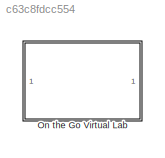
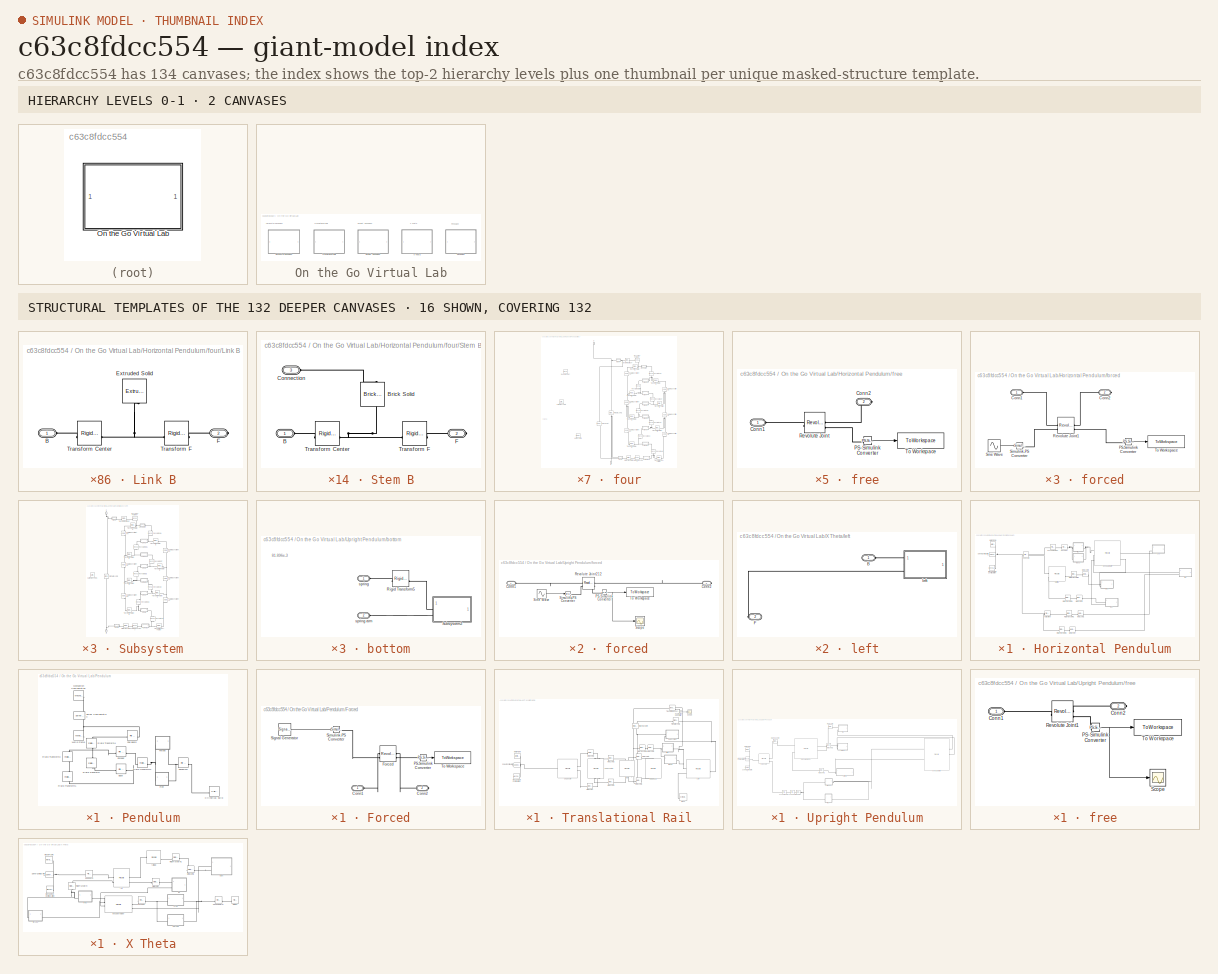
[diagram: thumbnail index - top-2 hierarchy levels (2 canvases) + 16 structural-template representatives of the remaining 132 canvases]
MODEL slx_c63c8fdcc554
KIND model
CONFIG AbsTol = auto
CONFIG EnableMultiTasking = off
CONFIG FixedStep = auto
CONFIG MaxStep = auto
CONFIG MinStep = auto
CONFIG RelTol = 1e-3
CONFIG SampleTimeConstraint = Unconstrained
CONFIG SolverName = daessc
CONFIG StartTime = 0.0
CONFIG StopTime = 10.0
BLOCK [SubSystem] On the Go Virtual Lab
  LabelModeActiveChoice = Pendulum
  Variant = on
  VariantControl = On the Go Virtual Lab
  VariantControlMode = label
BLOCK [SubSystem] On the Go Virtual Lab/Horizontal Pendulum
  VariantControl = Horizontal Pendulum
BLOCK [Reference] On the Go Virtual Lab/Horizontal Pendulum/Mechanism Configuration  REF=sm_lib/Utilities/Mechanism
Configuration
  SourceBlock = sm_lib/Utilities/Mechanism\nConfiguration
  SourceType = Mechanism\nConfiguration
BLOCK [Reference] On the Go Virtual Lab/Horizontal Pendulum/Rigid Transform1  REF=sm_lib/Frames and
Transforms/Rigid
Transform
  SourceBlock = sm_lib/Frames and\nTransforms/Rigid\nTransform
  SourceType = Rigid\nTransform
BLOCK [Reference] On the Go Virtual Lab/Horizontal Pendulum/Rigid Transform2  REF=sm_lib/Frames and
Transforms/Rigid
Transform
  SourceBlock = sm_lib/Frames and\nTransforms/Rigid\nTransform
  SourceType = Rigid\nTransform
BLOCK [Reference] On the Go Virtual Lab/Horizontal Pendulum/Rigid Transform3  REF=sm_lib/Frames and
Transforms/Rigid
Transform
  SourceBlock = sm_lib/Frames and\nTransforms/Rigid\nTransform
  SourceType = Rigid\nTransform
BLOCK [Reference] On the Go Virtual Lab/Horizontal Pendulum/Rigid Transform4  REF=sm_lib/Frames and
Transforms/Rigid
Transform
  SourceBlock = sm_lib/Frames and\nTransforms/Rigid\nTransform
  SourceType = Rigid\nTransform
BLOCK [Reference] On the Go Virtual Lab/Horizontal Pendulum/Solver Configuration  REF=nesl_utility/Solver
Configuration
  SourceBlock = nesl_utility/Solver\nConfiguration
  SourceType = Solver\nConfiguration
BLOCK [Reference] On the Go Virtual Lab/Horizontal Pendulum/Weld Joint  REF=sm_lib/Joints/Weld Joint
  SourceBlock = sm_lib/Joints/Weld Joint
  SourceType = Weld Joint
BLOCK [Reference] On the Go Virtual Lab/Horizontal Pendulum/Weld Joint1  REF=sm_lib/Joints/Weld Joint
  SourceBlock = sm_lib/Joints/Weld Joint
  SourceType = Weld Joint
BLOCK [Reference] On the Go Virtual Lab/Horizontal Pendulum/Weld Joint2  REF=sm_lib/Joints/Weld Joint
  SourceBlock = sm_lib/Joints/Weld Joint
  SourceType = Weld Joint
BLOCK [Reference] On the Go Virtual Lab/Horizontal Pendulum/Weld Joint3  REF=sm_lib/Joints/Weld Joint
  SourceBlock = sm_lib/Joints/Weld Joint
  SourceType = Weld Joint
BLOCK [Reference] On the Go Virtual Lab/Horizontal Pendulum/World Frame  REF=sm_lib/Frames and
Transforms/World Frame
  SourceBlock = sm_lib/Frames and\nTransforms/World Frame
  SourceType = World Frame
BLOCK [Reference] On the Go Virtual Lab/Horizontal Pendulum/encoder  REF=sm_lib/Body Elements/File Solid
  SourceBlock = sm_lib/Body Elements/File Solid
  SourceType = File Solid
BLOCK [Reference] On the Go Virtual Lab/Horizontal Pendulum/encoder holder  REF=sm_lib/Body Elements/File Solid
  SourceBlock = sm_lib/Body Elements/File Solid
  SourceType = File Solid
BLOCK [SubSystem] On the Go Virtual Lab/Horizontal Pendulum/forced
BLOCK [PMIOPort] On the Go Virtual Lab/Horizontal Pendulum/forced/Conn1
  Side = Left
BLOCK [PMIOPort] On the Go Virtual Lab/Horizontal Pendulum/forced/Conn2
  Port = 2
  Side = Right
BLOCK [Reference] On the Go Virtual Lab/Horizontal Pendulum/forced/PS-Simulink Converter  REF=nesl_utility/PS-Simulink
Converter
  SourceBlock = nesl_utility/PS-Simulink\nConverter
  SourceType = PS-Simulink\nConverter
BLOCK [Reference] On the Go Virtual Lab/Horizontal Pendulum/forced/Revolute Joint1  REF=sm_lib/Joints/Revolute Joint
  SourceBlock = sm_lib/Joints/Revolute Joint
  SourceType = Revolute Joint
BLOCK [Reference] On the Go Virtual Lab/Horizontal Pendulum/forced/Simulink-PS Converter  REF=nesl_utility/Simulink-PS
Converter
  SourceBlock = nesl_utility/Simulink-PS\nConverter
  SourceType = Simulink-PS\nConverter
BLOCK [Sin] On the Go Virtual Lab/Horizontal Pendulum/forced/Sine Wave
  Amplitude = amp
  Frequency = f
  SampleTime = 0
BLOCK [ToWorkspace] On the Go Virtual Lab/Horizontal Pendulum/forced/To Workspace
  FixptAsFi = on
  MaxDataPoints = inf
  SampleTime = -1
  VariableName = ang_dis
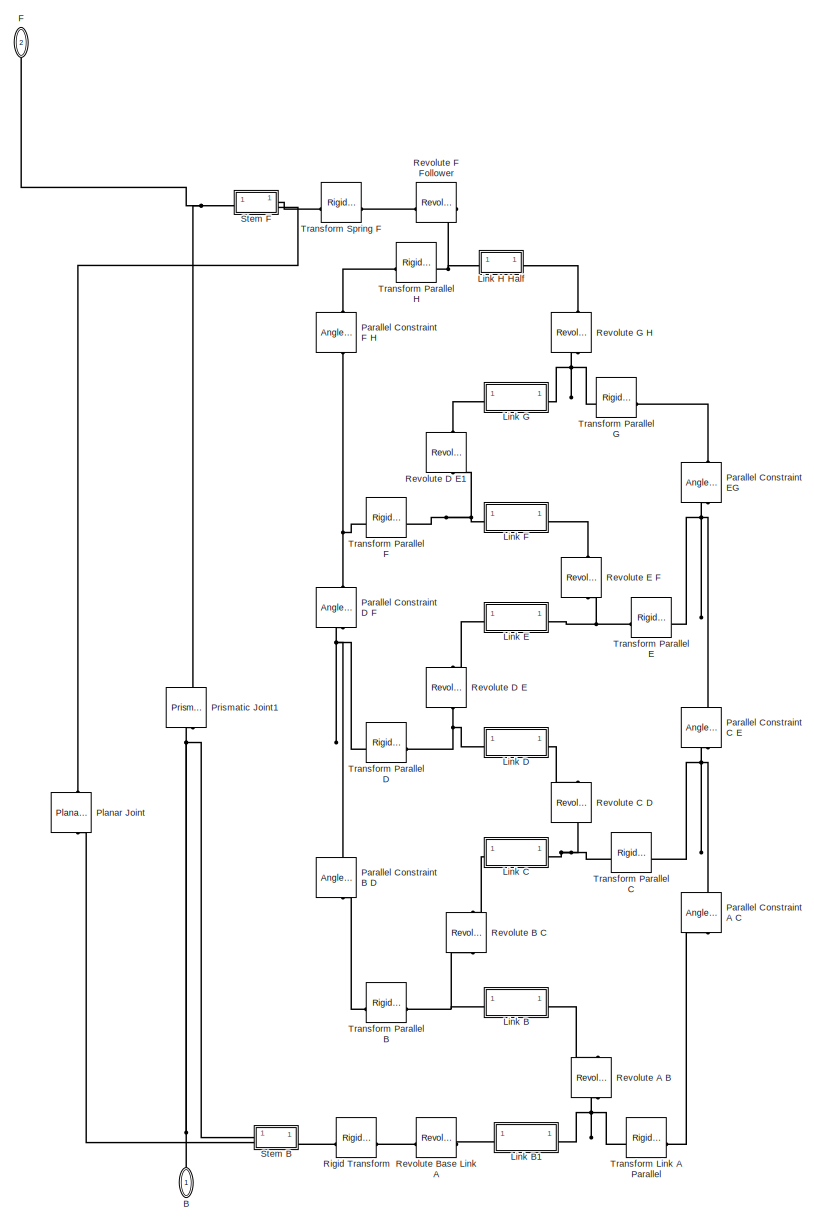
[diagram: On the Go Virtual Lab/Horizontal Pendulum/four - part 1/2, right side, full height]
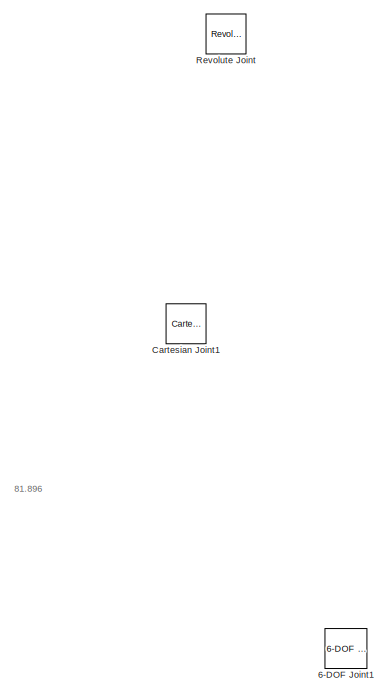
[diagram: On the Go Virtual Lab/Horizontal Pendulum/four - part 2/2, middle left region]
BLOCK [SubSystem] On the Go Virtual Lab/Horizontal Pendulum/four
BLOCK [Reference] On the Go Virtual Lab/Horizontal Pendulum/four/6-DOF Joint1  REF=sm_lib/Joints/6-DOF Joint
  NameLocation = right
  SourceBlock = sm_lib/Joints/6-DOF Joint
  SourceType = 6-DOF Joint
BLOCK [PMIOPort] On the Go Virtual Lab/Horizontal Pendulum/four/B
  NameLocation = right
  Side = Left
BLOCK [Reference] On the Go Virtual Lab/Horizontal Pendulum/four/Cartesian Joint1  REF=sm_lib/Joints/Cartesian
Joint
  Commented = on
  NameLocation = right
  SourceBlock = sm_lib/Joints/Cartesian\nJoint
  SourceType = Cartesian\nJoint
BLOCK [PMIOPort] On the Go Virtual Lab/Horizontal Pendulum/four/F
  NameLocation = left
  Port = 2
  Side = Left
BLOCK [SubSystem] On the Go Virtual Lab/Horizontal Pendulum/four/Link B
BLOCK [PMIOPort] On the Go Virtual Lab/Horizontal Pendulum/four/Link B/B
  Side = Left
BLOCK [Reference] On the Go Virtual Lab/Horizontal Pendulum/four/Link B/Extruded Solid  REF=sm_lib/Body Elements/Extruded Solid
  NameLocation = left
  SourceBlock = sm_lib/Body Elements/Extruded Solid
  SourceType = Extruded Solid
BLOCK [PMIOPort] On the Go Virtual Lab/Horizontal Pendulum/four/Link B/F
  Port = 2
  Side = Right
BLOCK [Reference] On the Go Virtual Lab/Horizontal Pendulum/four/Link B/Transform Center  REF=sm_lib/Frames and
Transforms/Rigid
Transform
  SourceBlock = sm_lib/Frames and\nTransforms/Rigid\nTransform
  SourceType = Rigid\nTransform
BLOCK [Reference] On the Go Virtual Lab/Horizontal Pendulum/four/Link B/Transform F  REF=sm_lib/Frames and
Transforms/Rigid
Transform
  SourceBlock = sm_lib/Frames and\nTransforms/Rigid\nTransform
  SourceType = Rigid\nTransform
BLOCK [SubSystem] On the Go Virtual Lab/Horizontal Pendulum/four/Link B1
BLOCK [PMIOPort] On the Go Virtual Lab/Horizontal Pendulum/four/Link B1/B
  Side = Left
BLOCK [Reference] On the Go Virtual Lab/Horizontal Pendulum/four/Link B1/Extruded Solid  REF=sm_lib/Body Elements/Extruded Solid
  NameLocation = left
  SourceBlock = sm_lib/Body Elements/Extruded Solid
  SourceType = Extruded Solid
BLOCK [PMIOPort] On the Go Virtual Lab/Horizontal Pendulum/four/Link B1/F
  Port = 2
  Side = Right
BLOCK [Reference] On the Go Virtual Lab/Horizontal Pendulum/four/Link B1/Transform Center  REF=sm_lib/Frames and
Transforms/Rigid
Transform
  SourceBlock = sm_lib/Frames and\nTransforms/Rigid\nTransform
  SourceType = Rigid\nTransform
BLOCK [Reference] On the Go Virtual Lab/Horizontal Pendulum/four/Link B1/Transform F  REF=sm_lib/Frames and
Transforms/Rigid
Transform
  SourceBlock = sm_lib/Frames and\nTransforms/Rigid\nTransform
  SourceType = Rigid\nTransform
BLOCK [SubSystem] On the Go Virtual Lab/Horizontal Pendulum/four/Link C
BLOCK [PMIOPort] On the Go Virtual Lab/Horizontal Pendulum/four/Link C/B
  Side = Left
BLOCK [Reference] On the Go Virtual Lab/Horizontal Pendulum/four/Link C/Extruded Solid  REF=sm_lib/Body Elements/Extruded Solid
  NameLocation = left
  SourceBlock = sm_lib/Body Elements/Extruded Solid
  SourceType = Extruded Solid
BLOCK [PMIOPort] On the Go Virtual Lab/Horizontal Pendulum/four/Link C/F
  Port = 2
  Side = Right
BLOCK [Reference] On the Go Virtual Lab/Horizontal Pendulum/four/Link C/Transform Center  REF=sm_lib/Frames and
Transforms/Rigid
Transform
  SourceBlock = sm_lib/Frames and\nTransforms/Rigid\nTransform
  SourceType = Rigid\nTransform
BLOCK [Reference] On the Go Virtual Lab/Horizontal Pendulum/four/Link C/Transform F  REF=sm_lib/Frames and
Transforms/Rigid
Transform
  SourceBlock = sm_lib/Frames and\nTransforms/Rigid\nTransform
  SourceType = Rigid\nTransform
BLOCK [SubSystem] On the Go Virtual Lab/Horizontal Pendulum/four/Link D
BLOCK [PMIOPort] On the Go Virtual Lab/Horizontal Pendulum/four/Link D/B
  Side = Left
BLOCK [Reference] On the Go Virtual Lab/Horizontal Pendulum/four/Link D/Extruded Solid  REF=sm_lib/Body Elements/Extruded Solid
  NameLocation = left
  SourceBlock = sm_lib/Body Elements/Extruded Solid
  SourceType = Extruded Solid
BLOCK [PMIOPort] On the Go Virtual Lab/Horizontal Pendulum/four/Link D/F
  Port = 2
  Side = Right
BLOCK [Reference] On the Go Virtual Lab/Horizontal Pendulum/four/Link D/Transform Center  REF=sm_lib/Frames and
Transforms/Rigid
Transform
  SourceBlock = sm_lib/Frames and\nTransforms/Rigid\nTransform
  SourceType = Rigid\nTransform
BLOCK [Reference] On the Go Virtual Lab/Horizontal Pendulum/four/Link D/Transform F  REF=sm_lib/Frames and
Transforms/Rigid
Transform
  SourceBlock = sm_lib/Frames and\nTransforms/Rigid\nTransform
  SourceType = Rigid\nTransform
BLOCK [SubSystem] On the Go Virtual Lab/Horizontal Pendulum/four/Link E
BLOCK [PMIOPort] On the Go Virtual Lab/Horizontal Pendulum/four/Link E/B
  Side = Left
BLOCK [Reference] On the Go Virtual Lab/Horizontal Pendulum/four/Link E/Extruded Solid  REF=sm_lib/Body Elements/Extruded Solid
  NameLocation = left
  SourceBlock = sm_lib/Body Elements/Extruded Solid
  SourceType = Extruded Solid
BLOCK [PMIOPort] On the Go Virtual Lab/Horizontal Pendulum/four/Link E/F
  Port = 2
  Side = Right
BLOCK [Reference] On the Go Virtual Lab/Horizontal Pendulum/four/Link E/Transform Center  REF=sm_lib/Frames and
Transforms/Rigid
Transform
  SourceBlock = sm_lib/Frames and\nTransforms/Rigid\nTransform
  SourceType = Rigid\nTransform
BLOCK [Reference] On the Go Virtual Lab/Horizontal Pendulum/four/Link E/Transform F  REF=sm_lib/Frames and
Transforms/Rigid
Transform
  SourceBlock = sm_lib/Frames and\nTransforms/Rigid\nTransform
  SourceType = Rigid\nTransform
BLOCK [SubSystem] On the Go Virtual Lab/Horizontal Pendulum/four/Link F
BLOCK [PMIOPort] On the Go Virtual Lab/Horizontal Pendulum/four/Link F/B
  Side = Left
BLOCK [Reference] On the Go Virtual Lab/Horizontal Pendulum/four/Link F/Extruded Solid  REF=sm_lib/Body Elements/Extruded Solid
  NameLocation = left
  SourceBlock = sm_lib/Body Elements/Extruded Solid
  SourceType = Extruded Solid
BLOCK [PMIOPort] On the Go Virtual Lab/Horizontal Pendulum/four/Link F/F
  Port = 2
  Side = Right
BLOCK [Reference] On the Go Virtual Lab/Horizontal Pendulum/four/Link F/Transform Center  REF=sm_lib/Frames and
Transforms/Rigid
Transform
  SourceBlock = sm_lib/Frames and\nTransforms/Rigid\nTransform
  SourceType = Rigid\nTransform
BLOCK [Reference] On the Go Virtual Lab/Horizontal Pendulum/four/Link F/Transform F  REF=sm_lib/Frames and
Transforms/Rigid
Transform
  SourceBlock = sm_lib/Frames and\nTransforms/Rigid\nTransform
  SourceType = Rigid\nTransform
BLOCK [SubSystem] On the Go Virtual Lab/Horizontal Pendulum/four/Link G
BLOCK [PMIOPort] On the Go Virtual Lab/Horizontal Pendulum/four/Link G/B
  Side = Left
BLOCK [Reference] On the Go Virtual Lab/Horizontal Pendulum/four/Link G/Extruded Solid  REF=sm_lib/Body Elements/Extruded Solid
  NameLocation = left
  SourceBlock = sm_lib/Body Elements/Extruded Solid
  SourceType = Extruded Solid
BLOCK [PMIOPort] On the Go Virtual Lab/Horizontal Pendulum/four/Link G/F
  Port = 2
  Side = Right
BLOCK [Reference] On the Go Virtual Lab/Horizontal Pendulum/four/Link G/Transform Center  REF=sm_lib/Frames and
Transforms/Rigid
Transform
  SourceBlock = sm_lib/Frames and\nTransforms/Rigid\nTransform
  SourceType = Rigid\nTransform
BLOCK [Reference] On the Go Virtual Lab/Horizontal Pendulum/four/Link G/Transform F  REF=sm_lib/Frames and
Transforms/Rigid
Transform
  SourceBlock = sm_lib/Frames and\nTransforms/Rigid\nTransform
  SourceType = Rigid\nTransform
BLOCK [SubSystem] On the Go Virtual Lab/Horizontal Pendulum/four/Link H Half
BLOCK [PMIOPort] On the Go Virtual Lab/Horizontal Pendulum/four/Link H Half/B
  Side = Left
BLOCK [Reference] On the Go Virtual Lab/Horizontal Pendulum/four/Link H Half/Extruded Solid  REF=sm_lib/Body Elements/Extruded Solid
  NameLocation = left
  SourceBlock = sm_lib/Body Elements/Extruded Solid
  SourceType = Extruded Solid
BLOCK [PMIOPort] On the Go Virtual Lab/Horizontal Pendulum/four/Link H Half/F
  Port = 2
  Side = Right
BLOCK [Reference] On the Go Virtual Lab/Horizontal Pendulum/four/Link H Half/Transform Center  REF=sm_lib/Frames and
Transforms/Rigid
Transform
  SourceBlock = sm_lib/Frames and\nTransforms/Rigid\nTransform
  SourceType = Rigid\nTransform
BLOCK [Reference] On the Go Virtual Lab/Horizontal Pendulum/four/Link H Half/Transform F  REF=sm_lib/Frames and
Transforms/Rigid
Transform
  SourceBlock = sm_lib/Frames and\nTransforms/Rigid\nTransform
  SourceType = Rigid\nTransform
BLOCK [Reference] On the Go Virtual Lab/Horizontal Pendulum/four/Parallel Constraint A C  REF=sm_lib/Constraints/Angle
Constraint
  NameLocation = right
  SourceBlock = sm_lib/Constraints/Angle\nConstraint
  SourceType = Angle\nConstraint
BLOCK [Reference] On the Go Virtual Lab/Horizontal Pendulum/four/Parallel Constraint B D  REF=sm_lib/Constraints/Angle
Constraint
  NameLocation = right
  SourceBlock = sm_lib/Constraints/Angle\nConstraint
  SourceType = Angle\nConstraint
BLOCK [Reference] On the Go Virtual Lab/Horizontal Pendulum/four/Parallel Constraint C E  REF=sm_lib/Constraints/Angle
Constraint
  NameLocation = right
  SourceBlock = sm_lib/Constraints/Angle\nConstraint
  SourceType = Angle\nConstraint
BLOCK [Reference] On the Go Virtual Lab/Horizontal Pendulum/four/Parallel Constraint D F  REF=sm_lib/Constraints/Angle
Constraint
  NameLocation = right
  SourceBlock = sm_lib/Constraints/Angle\nConstraint
  SourceType = Angle\nConstraint
BLOCK [Reference] On the Go Virtual Lab/Horizontal Pendulum/four/Parallel Constraint EG  REF=sm_lib/Constraints/Angle
Constraint
  NameLocation = right
  SourceBlock = sm_lib/Constraints/Angle\nConstraint
  SourceType = Angle\nConstraint
BLOCK [Reference] On the Go Virtual Lab/Horizontal Pendulum/four/Parallel Constraint F H  REF=sm_lib/Constraints/Angle
Constraint
  NameLocation = right
  SourceBlock = sm_lib/Constraints/Angle\nConstraint
  SourceType = Angle\nConstraint
BLOCK [Reference] On the Go Virtual Lab/Horizontal Pendulum/four/Planar Joint  REF=sm_lib/Joints/Planar Joint
  NameLocation = right
  SourceBlock = sm_lib/Joints/Planar Joint
  SourceType = Planar Joint
BLOCK [Reference] On the Go Virtual Lab/Horizontal Pendulum/four/Prismatic Joint1  REF=sm_lib/Joints/Prismatic
Joint
  Commented = on
  NameLocation = right
  SourceBlock = sm_lib/Joints/Prismatic\nJoint
  SourceType = Prismatic\nJoint
BLOCK [Reference] On the Go Virtual Lab/Horizontal Pendulum/four/Revolute A B  REF=sm_lib/Joints/Revolute Joint
  NameLocation = top
  SourceBlock = sm_lib/Joints/Revolute Joint
  SourceType = Revolute Joint
BLOCK [Reference] On the Go Virtual Lab/Horizontal Pendulum/four/Revolute B C  REF=sm_lib/Joints/Revolute Joint
  NameLocation = right
  SourceBlock = sm_lib/Joints/Revolute Joint
  SourceType = Revolute Joint
BLOCK [Reference] On the Go Virtual Lab/Horizontal Pendulum/four/Revolute Base Link A  REF=sm_lib/Joints/Revolute Joint
  SourceBlock = sm_lib/Joints/Revolute Joint
  SourceType = Revolute Joint
BLOCK [Reference] On the Go Virtual Lab/Horizontal Pendulum/four/Revolute C D  REF=sm_lib/Joints/Revolute Joint
  NameLocation = top
  SourceBlock = sm_lib/Joints/Revolute Joint
  SourceType = Revolute Joint
BLOCK [Reference] On the Go Virtual Lab/Horizontal Pendulum/four/Revolute D E  REF=sm_lib/Joints/Revolute Joint
  NameLocation = right
  SourceBlock = sm_lib/Joints/Revolute Joint
  SourceType = Revolute Joint
BLOCK [Reference] On the Go Virtual Lab/Horizontal Pendulum/four/Revolute D E1  REF=sm_lib/Joints/Revolute Joint
  NameLocation = right
  SourceBlock = sm_lib/Joints/Revolute Joint
  SourceType = Revolute Joint
BLOCK [Reference] On the Go Virtual Lab/Horizontal Pendulum/four/Revolute E F  REF=sm_lib/Joints/Revolute Joint
  NameLocation = top
  SourceBlock = sm_lib/Joints/Revolute Joint
  SourceType = Revolute Joint
BLOCK [Reference] On the Go Virtual Lab/Horizontal Pendulum/four/Revolute F Follower  REF=sm_lib/Joints/Revolute Joint
  NameLocation = top
  SourceBlock = sm_lib/Joints/Revolute Joint
  SourceType = Revolute Joint
BLOCK [Reference] On the Go Virtual Lab/Horizontal Pendulum/four/Revolute G H  REF=sm_lib/Joints/Revolute Joint
  NameLocation = right
  SourceBlock = sm_lib/Joints/Revolute Joint
  SourceType = Revolute Joint
BLOCK [Reference] On the Go Virtual Lab/Horizontal Pendulum/four/Revolute Joint  REF=sm_lib/Joints/Revolute Joint
  NameLocation = top
  SourceBlock = sm_lib/Joints/Revolute Joint
  SourceType = Revolute Joint
BLOCK [Reference] On the Go Virtual Lab/Horizontal Pendulum/four/Rigid Transform  REF=sm_lib/Frames and
Transforms/Rigid
Transform
  NameLocation = top
  SourceBlock = sm_lib/Frames and\nTransforms/Rigid\nTransform
  SourceType = Rigid\nTransform
BLOCK [SubSystem] On the Go Virtual Lab/Horizontal Pendulum/four/Stem B
BLOCK [PMIOPort] On the Go Virtual Lab/Horizontal Pendulum/four/Stem B/B
  Side = Left
BLOCK [Reference] On the Go Virtual Lab/Horizontal Pendulum/four/Stem B/Brick Solid  REF=sm_lib/Body Elements/Brick Solid
  NameLocation = left
  SourceBlock = sm_lib/Body Elements/Brick Solid
  SourceType = Brick Solid
BLOCK [PMIOPort] On the Go Virtual Lab/Horizontal Pendulum/four/Stem B/Connection
  Port = 3
  Side = Left
BLOCK [PMIOPort] On the Go Virtual Lab/Horizontal Pendulum/four/Stem B/F
  Port = 2
  Side = Right
BLOCK [Reference] On the Go Virtual Lab/Horizontal Pendulum/four/Stem B/Transform Center  REF=sm_lib/Frames and
Transforms/Rigid
Transform
  SourceBlock = sm_lib/Frames and\nTransforms/Rigid\nTransform
  SourceType = Rigid\nTransform
BLOCK [Reference] On the Go Virtual Lab/Horizontal Pendulum/four/Stem B/Transform F  REF=sm_lib/Frames and
Transforms/Rigid
Transform
  SourceBlock = sm_lib/Frames and\nTransforms/Rigid\nTransform
  SourceType = Rigid\nTransform
BLOCK [SubSystem] On the Go Virtual Lab/Horizontal Pendulum/four/Stem F
  NameLocation = top
BLOCK [PMIOPort] On the Go Virtual Lab/Horizontal Pendulum/four/Stem F/B
  Side = Left
BLOCK [Reference] On the Go Virtual Lab/Horizontal Pendulum/four/Stem F/Brick Solid  REF=sm_lib/Body Elements/Brick Solid
  NameLocation = left
  SourceBlock = sm_lib/Body Elements/Brick Solid
  SourceType = Brick Solid
BLOCK [PMIOPort] On the Go Virtual Lab/Horizontal Pendulum/four/Stem F/F
  Port = 2
  Side = Right
BLOCK [Reference] On the Go Virtual Lab/Horizontal Pendulum/four/Stem F/Transform Center  REF=sm_lib/Frames and
Transforms/Rigid
Transform
  SourceBlock = sm_lib/Frames and\nTransforms/Rigid\nTransform
  SourceType = Rigid\nTransform
BLOCK [Reference] On the Go Virtual Lab/Horizontal Pendulum/four/Stem F/Transform F  REF=sm_lib/Frames and
Transforms/Rigid
Transform
  SourceBlock = sm_lib/Frames and\nTransforms/Rigid\nTransform
  SourceType = Rigid\nTransform
BLOCK [PMIOPort] On the Go Virtual Lab/Horizontal Pendulum/four/Stem F/connection
  Port = 3
  Side = Left
BLOCK [Reference] On the Go Virtual Lab/Horizontal Pendulum/four/Transform Link A Parallel  REF=sm_lib/Frames and
Transforms/Rigid
Transform
  SourceBlock = sm_lib/Frames and\nTransforms/Rigid\nTransform
  SourceType = Rigid\nTransform
BLOCK [Reference] On the Go Virtual Lab/Horizontal Pendulum/four/Transform Parallel B  REF=sm_lib/Frames and
Transforms/Rigid
Transform
  NameLocation = top
  SourceBlock = sm_lib/Frames and\nTransforms/Rigid\nTransform
  SourceType = Rigid\nTransform
BLOCK [Reference] On the Go Virtual Lab/Horizontal Pendulum/four/Transform Parallel C  REF=sm_lib/Frames and
Transforms/Rigid
Transform
  SourceBlock = sm_lib/Frames and\nTransforms/Rigid\nTransform
  SourceType = Rigid\nTransform
BLOCK [Reference] On the Go Virtual Lab/Horizontal Pendulum/four/Transform Parallel D  REF=sm_lib/Frames and
Transforms/Rigid
Transform
  NameLocation = top
  SourceBlock = sm_lib/Frames and\nTransforms/Rigid\nTransform
  SourceType = Rigid\nTransform
BLOCK [Reference] On the Go Virtual Lab/Horizontal Pendulum/four/Transform Parallel E  REF=sm_lib/Frames and
Transforms/Rigid
Transform
  SourceBlock = sm_lib/Frames and\nTransforms/Rigid\nTransform
  SourceType = Rigid\nTransform
BLOCK [Reference] On the Go Virtual Lab/Horizontal Pendulum/four/Transform Parallel F  REF=sm_lib/Frames and
Transforms/Rigid
Transform
  NameLocation = top
  SourceBlock = sm_lib/Frames and\nTransforms/Rigid\nTransform
  SourceType = Rigid\nTransform
BLOCK [Reference] On the Go Virtual Lab/Horizontal Pendulum/four/Transform Parallel G  REF=sm_lib/Frames and
Transforms/Rigid
Transform
  SourceBlock = sm_lib/Frames and\nTransforms/Rigid\nTransform
  SourceType = Rigid\nTransform
BLOCK [Reference] On the Go Virtual Lab/Horizontal Pendulum/four/Transform Parallel H  REF=sm_lib/Frames and
Transforms/Rigid
Transform
  NameLocation = top
  SourceBlock = sm_lib/Frames and\nTransforms/Rigid\nTransform
  SourceType = Rigid\nTransform
BLOCK [Reference] On the Go Virtual Lab/Horizontal Pendulum/four/Transform Spring F  REF=sm_lib/Frames and
Transforms/Rigid
Transform
  NameLocation = top
  SourceBlock = sm_lib/Frames and\nTransforms/Rigid\nTransform
  SourceType = Rigid\nTransform
BLOCK [SubSystem] On the Go Virtual Lab/Horizontal Pendulum/free
  Commented = on
BLOCK [PMIOPort] On the Go Virtual Lab/Horizontal Pendulum/free/Conn1
  Side = Left
BLOCK [PMIOPort] On the Go Virtual Lab/Horizontal Pendulum/free/Conn2
  Port = 2
  Side = Right
BLOCK [Reference] On the Go Virtual Lab/Horizontal Pendulum/free/PS-Simulink Converter  REF=nesl_utility/PS-Simulink
Converter
  SourceBlock = nesl_utility/PS-Simulink\nConverter
  SourceType = PS-Simulink\nConverter
BLOCK [Reference] On the Go Virtual Lab/Horizontal Pendulum/free/Revolute Joint  REF=sm_lib/Joints/Revolute Joint
  SourceBlock = sm_lib/Joints/Revolute Joint
  SourceType = Revolute Joint
BLOCK [ToWorkspace] On the Go Virtual Lab/Horizontal Pendulum/free/To Workspace
  FixptAsFi = on
  MaxDataPoints = inf
  SampleTime = -1
  VariableName = ang_dis
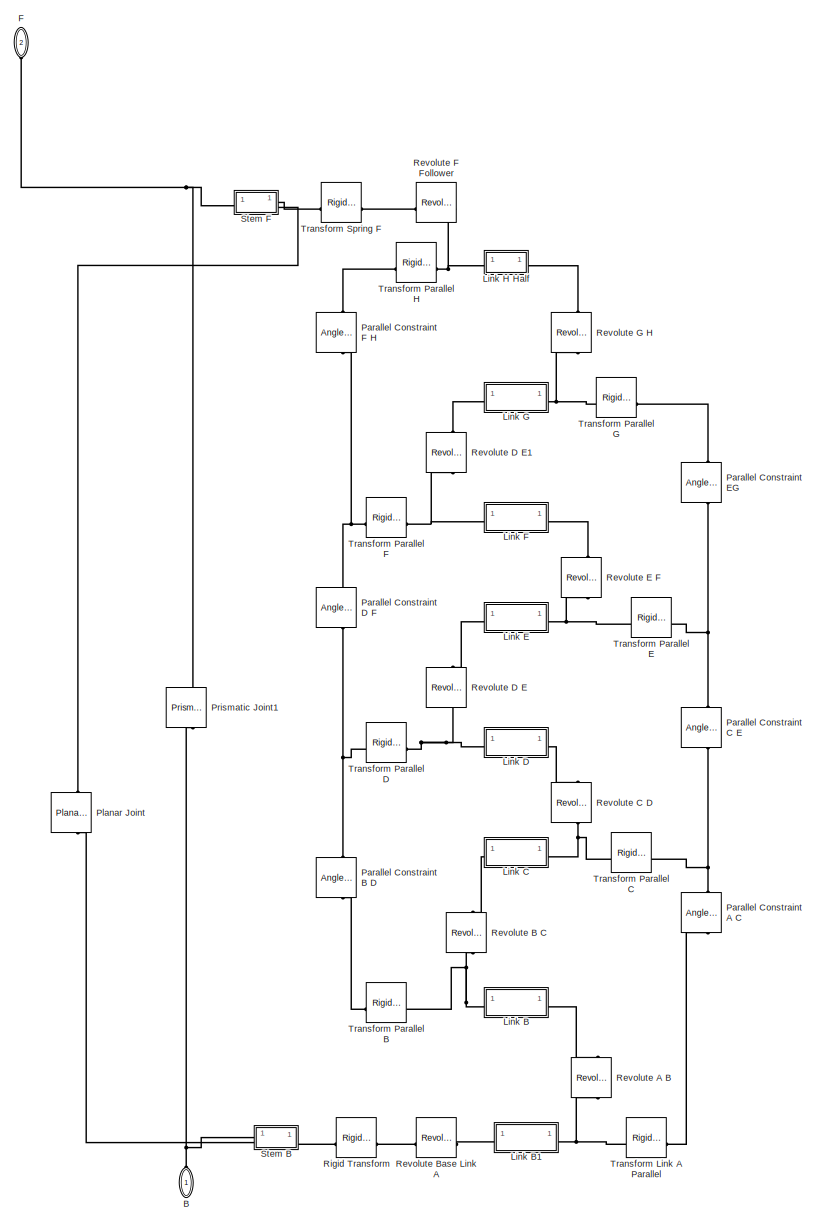
[diagram: On the Go Virtual Lab/Horizontal Pendulum/one - part 1/2, right side, full height]
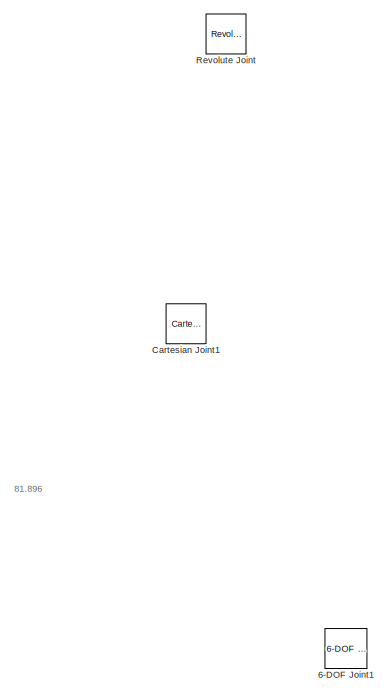
[diagram: On the Go Virtual Lab/Horizontal Pendulum/one - part 2/2, middle left region]
BLOCK [SubSystem] On the Go Virtual Lab/Horizontal Pendulum/one
BLOCK [Reference] On the Go Virtual Lab/Horizontal Pendulum/one/6-DOF Joint1  REF=sm_lib/Joints/6-DOF Joint
  NameLocation = right
  SourceBlock = sm_lib/Joints/6-DOF Joint
  SourceType = 6-DOF Joint
BLOCK [PMIOPort] On the Go Virtual Lab/Horizontal Pendulum/one/B
  NameLocation = right
  Side = Left
BLOCK [Reference] On the Go Virtual Lab/Horizontal Pendulum/one/Cartesian Joint1  REF=sm_lib/Joints/Cartesian
Joint
  Commented = on
  NameLocation = right
  SourceBlock = sm_lib/Joints/Cartesian\nJoint
  SourceType = Cartesian\nJoint
BLOCK [PMIOPort] On the Go Virtual Lab/Horizontal Pendulum/one/F
  NameLocation = left
  Port = 2
  Side = Left
BLOCK [SubSystem] On the Go Virtual Lab/Horizontal Pendulum/one/Link B
BLOCK [PMIOPort] On the Go Virtual Lab/Horizontal Pendulum/one/Link B/B
  Side = Left
BLOCK [Reference] On the Go Virtual Lab/Horizontal Pendulum/one/Link B/Extruded Solid  REF=sm_lib/Body Elements/Extruded Solid
  NameLocation = left
  SourceBlock = sm_lib/Body Elements/Extruded Solid
  SourceType = Extruded Solid
BLOCK [PMIOPort] On the Go Virtual Lab/Horizontal Pendulum/one/Link B/F
  Port = 2
  Side = Right
BLOCK [Reference] On the Go Virtual Lab/Horizontal Pendulum/one/Link B/Transform Center  REF=sm_lib/Frames and
Transforms/Rigid
Transform
  SourceBlock = sm_lib/Frames and\nTransforms/Rigid\nTransform
  SourceType = Rigid\nTransform
BLOCK [Reference] On the Go Virtual Lab/Horizontal Pendulum/one/Link B/Transform F  REF=sm_lib/Frames and
Transforms/Rigid
Transform
  SourceBlock = sm_lib/Frames and\nTransforms/Rigid\nTransform
  SourceType = Rigid\nTransform
BLOCK [SubSystem] On the Go Virtual Lab/Horizontal Pendulum/one/Link B1
BLOCK [PMIOPort] On the Go Virtual Lab/Horizontal Pendulum/one/Link B1/B
  Side = Left
BLOCK [Reference] On the Go Virtual Lab/Horizontal Pendulum/one/Link B1/Extruded Solid  REF=sm_lib/Body Elements/Extruded Solid
  NameLocation = left
  SourceBlock = sm_lib/Body Elements/Extruded Solid
  SourceType = Extruded Solid
BLOCK [PMIOPort] On the Go Virtual Lab/Horizontal Pendulum/one/Link B1/F
  Port = 2
  Side = Right
BLOCK [Reference] On the Go Virtual Lab/Horizontal Pendulum/one/Link B1/Transform Center  REF=sm_lib/Frames and
Transforms/Rigid
Transform
  SourceBlock = sm_lib/Frames and\nTransforms/Rigid\nTransform
  SourceType = Rigid\nTransform
BLOCK [Reference] On the Go Virtual Lab/Horizontal Pendulum/one/Link B1/Transform F  REF=sm_lib/Frames and
Transforms/Rigid
Transform
  SourceBlock = sm_lib/Frames and\nTransforms/Rigid\nTransform
  SourceType = Rigid\nTransform
BLOCK [SubSystem] On the Go Virtual Lab/Horizontal Pendulum/one/Link C
BLOCK [PMIOPort] On the Go Virtual Lab/Horizontal Pendulum/one/Link C/B
  Side = Left
BLOCK [Reference] On the Go Virtual Lab/Horizontal Pendulum/one/Link C/Extruded Solid  REF=sm_lib/Body Elements/Extruded Solid
  NameLocation = left
  SourceBlock = sm_lib/Body Elements/Extruded Solid
  SourceType = Extruded Solid
BLOCK [PMIOPort] On the Go Virtual Lab/Horizontal Pendulum/one/Link C/F
  Port = 2
  Side = Right
BLOCK [Reference] On the Go Virtual Lab/Horizontal Pendulum/one/Link C/Transform Center  REF=sm_lib/Frames and
Transforms/Rigid
Transform
  SourceBlock = sm_lib/Frames and\nTransforms/Rigid\nTransform
  SourceType = Rigid\nTransform
BLOCK [Reference] On the Go Virtual Lab/Horizontal Pendulum/one/Link C/Transform F  REF=sm_lib/Frames and
Transforms/Rigid
Transform
  SourceBlock = sm_lib/Frames and\nTransforms/Rigid\nTransform
  SourceType = Rigid\nTransform
BLOCK [SubSystem] On the Go Virtual Lab/Horizontal Pendulum/one/Link D
BLOCK [PMIOPort] On the Go Virtual Lab/Horizontal Pendulum/one/Link D/B
  Side = Left
BLOCK [Reference] On the Go Virtual Lab/Horizontal Pendulum/one/Link D/Extruded Solid  REF=sm_lib/Body Elements/Extruded Solid
  NameLocation = left
  SourceBlock = sm_lib/Body Elements/Extruded Solid
  SourceType = Extruded Solid
BLOCK [PMIOPort] On the Go Virtual Lab/Horizontal Pendulum/one/Link D/F
  Port = 2
  Side = Right
BLOCK [Reference] On the Go Virtual Lab/Horizontal Pendulum/one/Link D/Transform Center  REF=sm_lib/Frames and
Transforms/Rigid
Transform
  SourceBlock = sm_lib/Frames and\nTransforms/Rigid\nTransform
  SourceType = Rigid\nTransform
BLOCK [Reference] On the Go Virtual Lab/Horizontal Pendulum/one/Link D/Transform F  REF=sm_lib/Frames and
Transforms/Rigid
Transform
  SourceBlock = sm_lib/Frames and\nTransforms/Rigid\nTransform
  SourceType = Rigid\nTransform
BLOCK [SubSystem] On the Go Virtual Lab/Horizontal Pendulum/one/Link E
BLOCK [PMIOPort] On the Go Virtual Lab/Horizontal Pendulum/one/Link E/B
  Side = Left
BLOCK [Reference] On the Go Virtual Lab/Horizontal Pendulum/one/Link E/Extruded Solid  REF=sm_lib/Body Elements/Extruded Solid
  NameLocation = left
  SourceBlock = sm_lib/Body Elements/Extruded Solid
  SourceType = Extruded Solid
BLOCK [PMIOPort] On the Go Virtual Lab/Horizontal Pendulum/one/Link E/F
  Port = 2
  Side = Right
BLOCK [Reference] On the Go Virtual Lab/Horizontal Pendulum/one/Link E/Transform Center  REF=sm_lib/Frames and
Transforms/Rigid
Transform
  SourceBlock = sm_lib/Frames and\nTransforms/Rigid\nTransform
  SourceType = Rigid\nTransform
BLOCK [Reference] On the Go Virtual Lab/Horizontal Pendulum/one/Link E/Transform F  REF=sm_lib/Frames and
Transforms/Rigid
Transform
  SourceBlock = sm_lib/Frames and\nTransforms/Rigid\nTransform
  SourceType = Rigid\nTransform
BLOCK [SubSystem] On the Go Virtual Lab/Horizontal Pendulum/one/Link F
BLOCK [PMIOPort] On the Go Virtual Lab/Horizontal Pendulum/one/Link F/B
  Side = Left
BLOCK [Reference] On the Go Virtual Lab/Horizontal Pendulum/one/Link F/Extruded Solid  REF=sm_lib/Body Elements/Extruded Solid
  NameLocation = left
  SourceBlock = sm_lib/Body Elements/Extruded Solid
  SourceType = Extruded Solid
BLOCK [PMIOPort] On the Go Virtual Lab/Horizontal Pendulum/one/Link F/F
  Port = 2
  Side = Right
BLOCK [Reference] On the Go Virtual Lab/Horizontal Pendulum/one/Link F/Transform Center  REF=sm_lib/Frames and
Transforms/Rigid
Transform
  SourceBlock = sm_lib/Frames and\nTransforms/Rigid\nTransform
  SourceType = Rigid\nTransform
BLOCK [Reference] On the Go Virtual Lab/Horizontal Pendulum/one/Link F/Transform F  REF=sm_lib/Frames and
Transforms/Rigid
Transform
  SourceBlock = sm_lib/Frames and\nTransforms/Rigid\nTransform
  SourceType = Rigid\nTransform
BLOCK [SubSystem] On the Go Virtual Lab/Horizontal Pendulum/one/Link G
BLOCK [PMIOPort] On the Go Virtual Lab/Horizontal Pendulum/one/Link G/B
  Side = Left
BLOCK [Reference] On the Go Virtual Lab/Horizontal Pendulum/one/Link G/Extruded Solid  REF=sm_lib/Body Elements/Extruded Solid
  NameLocation = left
  SourceBlock = sm_lib/Body Elements/Extruded Solid
  SourceType = Extruded Solid
BLOCK [PMIOPort] On the Go Virtual Lab/Horizontal Pendulum/one/Link G/F
  Port = 2
  Side = Right
BLOCK [Reference] On the Go Virtual Lab/Horizontal Pendulum/one/Link G/Transform Center  REF=sm_lib/Frames and
Transforms/Rigid
Transform
  SourceBlock = sm_lib/Frames and\nTransforms/Rigid\nTransform
  SourceType = Rigid\nTransform
BLOCK [Reference] On the Go Virtual Lab/Horizontal Pendulum/one/Link G/Transform F  REF=sm_lib/Frames and
Transforms/Rigid
Transform
  SourceBlock = sm_lib/Frames and\nTransforms/Rigid\nTransform
  SourceType = Rigid\nTransform
BLOCK [SubSystem] On the Go Virtual Lab/Horizontal Pendulum/one/Link H Half
BLOCK [PMIOPort] On the Go Virtual Lab/Horizontal Pendulum/one/Link H Half/B
  Side = Left
BLOCK [Reference] On the Go Virtual Lab/Horizontal Pendulum/one/Link H Half/Extruded Solid  REF=sm_lib/Body Elements/Extruded Solid
  NameLocation = left
  SourceBlock = sm_lib/Body Elements/Extruded Solid
  SourceType = Extruded Solid
BLOCK [PMIOPort] On the Go Virtual Lab/Horizontal Pendulum/one/Link H Half/F
  Port = 2
  Side = Right
BLOCK [Reference] On the Go Virtual Lab/Horizontal Pendulum/one/Link H Half/Transform Center  REF=sm_lib/Frames and
Transforms/Rigid
Transform
  SourceBlock = sm_lib/Frames and\nTransforms/Rigid\nTransform
  SourceType = Rigid\nTransform
BLOCK [Reference] On the Go Virtual Lab/Horizontal Pendulum/one/Link H Half/Transform F  REF=sm_lib/Frames and
Transforms/Rigid
Transform
  SourceBlock = sm_lib/Frames and\nTransforms/Rigid\nTransform
  SourceType = Rigid\nTransform
BLOCK [Reference] On the Go Virtual Lab/Horizontal Pendulum/one/Parallel Constraint A C  REF=sm_lib/Constraints/Angle
Constraint
  NameLocation = right
  SourceBlock = sm_lib/Constraints/Angle\nConstraint
  SourceType = Angle\nConstraint
BLOCK [Reference] On the Go Virtual Lab/Horizontal Pendulum/one/Parallel Constraint B D  REF=sm_lib/Constraints/Angle
Constraint
  NameLocation = right
  SourceBlock = sm_lib/Constraints/Angle\nConstraint
  SourceType = Angle\nConstraint
BLOCK [Reference] On the Go Virtual Lab/Horizontal Pendulum/one/Parallel Constraint C E  REF=sm_lib/Constraints/Angle
Constraint
  NameLocation = right
  SourceBlock = sm_lib/Constraints/Angle\nConstraint
  SourceType = Angle\nConstraint
BLOCK [Reference] On the Go Virtual Lab/Horizontal Pendulum/one/Parallel Constraint D F  REF=sm_lib/Constraints/Angle
Constraint
  NameLocation = right
  SourceBlock = sm_lib/Constraints/Angle\nConstraint
  SourceType = Angle\nConstraint
BLOCK [Reference] On the Go Virtual Lab/Horizontal Pendulum/one/Parallel Constraint EG  REF=sm_lib/Constraints/Angle
Constraint
  NameLocation = right
  SourceBlock = sm_lib/Constraints/Angle\nConstraint
  SourceType = Angle\nConstraint
BLOCK [Reference] On the Go Virtual Lab/Horizontal Pendulum/one/Parallel Constraint F H  REF=sm_lib/Constraints/Angle
Constraint
  NameLocation = right
  SourceBlock = sm_lib/Constraints/Angle\nConstraint
  SourceType = Angle\nConstraint
BLOCK [Reference] On the Go Virtual Lab/Horizontal Pendulum/one/Planar Joint  REF=sm_lib/Joints/Planar Joint
  NameLocation = right
  SourceBlock = sm_lib/Joints/Planar Joint
  SourceType = Planar Joint
BLOCK [Reference] On the Go Virtual Lab/Horizontal Pendulum/one/Prismatic Joint1  REF=sm_lib/Joints/Prismatic
Joint
  Commented = on
  NameLocation = right
  SourceBlock = sm_lib/Joints/Prismatic\nJoint
  SourceType = Prismatic\nJoint
BLOCK [Reference] On the Go Virtual Lab/Horizontal Pendulum/one/Revolute A B  REF=sm_lib/Joints/Revolute Joint
  NameLocation = top
  SourceBlock = sm_lib/Joints/Revolute Joint
  SourceType = Revolute Joint
BLOCK [Reference] On the Go Virtual Lab/Horizontal Pendulum/one/Revolute B C  REF=sm_lib/Joints/Revolute Joint
  NameLocation = right
  SourceBlock = sm_lib/Joints/Revolute Joint
  SourceType = Revolute Joint
BLOCK [Reference] On the Go Virtual Lab/Horizontal Pendulum/one/Revolute Base Link A  REF=sm_lib/Joints/Revolute Joint
  SourceBlock = sm_lib/Joints/Revolute Joint
  SourceType = Revolute Joint
BLOCK [Reference] On the Go Virtual Lab/Horizontal Pendulum/one/Revolute C D  REF=sm_lib/Joints/Revolute Joint
  NameLocation = top
  SourceBlock = sm_lib/Joints/Revolute Joint
  SourceType = Revolute Joint
BLOCK [Reference] On the Go Virtual Lab/Horizontal Pendulum/one/Revolute D E  REF=sm_lib/Joints/Revolute Joint
  NameLocation = right
  SourceBlock = sm_lib/Joints/Revolute Joint
  SourceType = Revolute Joint
BLOCK [Reference] On the Go Virtual Lab/Horizontal Pendulum/one/Revolute D E1  REF=sm_lib/Joints/Revolute Joint
  NameLocation = right
  SourceBlock = sm_lib/Joints/Revolute Joint
  SourceType = Revolute Joint
BLOCK [Reference] On the Go Virtual Lab/Horizontal Pendulum/one/Revolute E F  REF=sm_lib/Joints/Revolute Joint
  NameLocation = top
  SourceBlock = sm_lib/Joints/Revolute Joint
  SourceType = Revolute Joint
BLOCK [Reference] On the Go Virtual Lab/Horizontal Pendulum/one/Revolute F Follower  REF=sm_lib/Joints/Revolute Joint
  NameLocation = top
  SourceBlock = sm_lib/Joints/Revolute Joint
  SourceType = Revolute Joint
BLOCK [Reference] On the Go Virtual Lab/Horizontal Pendulum/one/Revolute G H  REF=sm_lib/Joints/Revolute Joint
  NameLocation = right
  SourceBlock = sm_lib/Joints/Revolute Joint
  SourceType = Revolute Joint
BLOCK [Reference] On the Go Virtual Lab/Horizontal Pendulum/one/Revolute Joint  REF=sm_lib/Joints/Revolute Joint
  NameLocation = top
  SourceBlock = sm_lib/Joints/Revolute Joint
  SourceType = Revolute Joint
BLOCK [Reference] On the Go Virtual Lab/Horizontal Pendulum/one/Rigid Transform  REF=sm_lib/Frames and
Transforms/Rigid
Transform
  NameLocation = top
  SourceBlock = sm_lib/Frames and\nTransforms/Rigid\nTransform
  SourceType = Rigid\nTransform
BLOCK [SubSystem] On the Go Virtual Lab/Horizontal Pendulum/one/Stem B
BLOCK [PMIOPort] On the Go Virtual Lab/Horizontal Pendulum/one/Stem B/B
  Side = Left
BLOCK [Reference] On the Go Virtual Lab/Horizontal Pendulum/one/Stem B/Brick Solid  REF=sm_lib/Body Elements/Brick Solid
  NameLocation = left
  SourceBlock = sm_lib/Body Elements/Brick Solid
  SourceType = Brick Solid
BLOCK [PMIOPort] On the Go Virtual Lab/Horizontal Pendulum/one/Stem B/Connection
  Port = 3
  Side = Left
BLOCK [PMIOPort] On the Go Virtual Lab/Horizontal Pendulum/one/Stem B/F
  Port = 2
  Side = Right
BLOCK [Reference] On the Go Virtual Lab/Horizontal Pendulum/one/Stem B/Transform Center  REF=sm_lib/Frames and
Transforms/Rigid
Transform
  SourceBlock = sm_lib/Frames and\nTransforms/Rigid\nTransform
  SourceType = Rigid\nTransform
BLOCK [Reference] On the Go Virtual Lab/Horizontal Pendulum/one/Stem B/Transform F  REF=sm_lib/Frames and
Transforms/Rigid
Transform
  SourceBlock = sm_lib/Frames and\nTransforms/Rigid\nTransform
  SourceType = Rigid\nTransform
BLOCK [SubSystem] On the Go Virtual Lab/Horizontal Pendulum/one/Stem F
  NameLocation = top
BLOCK [PMIOPort] On the Go Virtual Lab/Horizontal Pendulum/one/Stem F/B
  Side = Left
BLOCK [Reference] On the Go Virtual Lab/Horizontal Pendulum/one/Stem F/Brick Solid  REF=sm_lib/Body Elements/Brick Solid
  NameLocation = left
  SourceBlock = sm_lib/Body Elements/Brick Solid
  SourceType = Brick Solid
BLOCK [PMIOPort] On the Go Virtual Lab/Horizontal Pendulum/one/Stem F/F
  Port = 2
  Side = Right
BLOCK [Reference] On the Go Virtual Lab/Horizontal Pendulum/one/Stem F/Transform Center  REF=sm_lib/Frames and
Transforms/Rigid
Transform
  SourceBlock = sm_lib/Frames and\nTransforms/Rigid\nTransform
  SourceType = Rigid\nTransform
BLOCK [Reference] On the Go Virtual Lab/Horizontal Pendulum/one/Stem F/Transform F  REF=sm_lib/Frames and
Transforms/Rigid
Transform
  SourceBlock = sm_lib/Frames and\nTransforms/Rigid\nTransform
  SourceType = Rigid\nTransform
BLOCK [PMIOPort] On the Go Virtual Lab/Horizontal Pendulum/one/Stem F/connection
  Port = 3
  Side = Left
BLOCK [Reference] On the Go Virtual Lab/Horizontal Pendulum/one/Transform Link A Parallel  REF=sm_lib/Frames and
Transforms/Rigid
Transform
  SourceBlock = sm_lib/Frames and\nTransforms/Rigid\nTransform
  SourceType = Rigid\nTransform
BLOCK [Reference] On the Go Virtual Lab/Horizontal Pendulum/one/Transform Parallel B  REF=sm_lib/Frames and
Transforms/Rigid
Transform
  NameLocation = top
  SourceBlock = sm_lib/Frames and\nTransforms/Rigid\nTransform
  SourceType = Rigid\nTransform
BLOCK [Reference] On the Go Virtual Lab/Horizontal Pendulum/one/Transform Parallel C  REF=sm_lib/Frames and
Transforms/Rigid
Transform
  SourceBlock = sm_lib/Frames and\nTransforms/Rigid\nTransform
  SourceType = Rigid\nTransform
BLOCK [Reference] On the Go Virtual Lab/Horizontal Pendulum/one/Transform Parallel D  REF=sm_lib/Frames and
Transforms/Rigid
Transform
  NameLocation = top
  SourceBlock = sm_lib/Frames and\nTransforms/Rigid\nTransform
  SourceType = Rigid\nTransform
BLOCK [Reference] On the Go Virtual Lab/Horizontal Pendulum/one/Transform Parallel E  REF=sm_lib/Frames and
Transforms/Rigid
Transform
  SourceBlock = sm_lib/Frames and\nTransforms/Rigid\nTransform
  SourceType = Rigid\nTransform
BLOCK [Reference] On the Go Virtual Lab/Horizontal Pendulum/one/Transform Parallel F  REF=sm_lib/Frames and
Transforms/Rigid
Transform
  NameLocation = top
  SourceBlock = sm_lib/Frames and\nTransforms/Rigid\nTransform
  SourceType = Rigid\nTransform
BLOCK [Reference] On the Go Virtual Lab/Horizontal Pendulum/one/Transform Parallel G  REF=sm_lib/Frames and
Transforms/Rigid
Transform
  SourceBlock = sm_lib/Frames and\nTransforms/Rigid\nTransform
  SourceType = Rigid\nTransform
BLOCK [Reference] On the Go Virtual Lab/Horizontal Pendulum/one/Transform Parallel H  REF=sm_lib/Frames and
Transforms/Rigid
Transform
  NameLocation = top
  SourceBlock = sm_lib/Frames and\nTransforms/Rigid\nTransform
  SourceType = Rigid\nTransform
BLOCK [Reference] On the Go Virtual Lab/Horizontal Pendulum/one/Transform Spring F  REF=sm_lib/Frames and
Transforms/Rigid
Transform
  NameLocation = top
  SourceBlock = sm_lib/Frames and\nTransforms/Rigid\nTransform
  SourceType = Rigid\nTransform
BLOCK [Reference] On the Go Virtual Lab/Horizontal Pendulum/peg board  REF=sm_lib/Body Elements/File Solid
  NameLocation = top
  SourceBlock = sm_lib/Body Elements/File Solid
  SourceType = File Solid
BLOCK [Reference] On the Go Virtual Lab/Horizontal Pendulum/pendulum arm  REF=sm_lib/Body Elements/File Solid
  SourceBlock = sm_lib/Body Elements/File Solid
  SourceType = File Solid
BLOCK [SubSystem] On the Go Virtual Lab/Horizontal Pendulum/three
BLOCK [Reference] On the Go Virtual Lab/Horizontal Pendulum/three/6-DOF Joint1  REF=sm_lib/Joints/6-DOF Joint
  NameLocation = right
  SourceBlock = sm_lib/Joints/6-DOF Joint
  SourceType = 6-DOF Joint
BLOCK [PMIOPort] On the Go Virtual Lab/Horizontal Pendulum/three/B
  NameLocation = right
  Side = Left
BLOCK [Reference] On the Go Virtual Lab/Horizontal Pendulum/three/Cartesian Joint1  REF=sm_lib/Joints/Cartesian
Joint
  Commented = on
  NameLocation = right
  SourceBlock = sm_lib/Joints/Cartesian\nJoint
  SourceType = Cartesian\nJoint
BLOCK [PMIOPort] On the Go Virtual Lab/Horizontal Pendulum/three/F
  NameLocation = left
  Port = 2
  Side = Left
BLOCK [SubSystem] On the Go Virtual Lab/Horizontal Pendulum/three/Link B
BLOCK [PMIOPort] On the Go Virtual Lab/Horizontal Pendulum/three/Link B/B
  Side = Left
BLOCK [Reference] On the Go Virtual Lab/Horizontal Pendulum/three/Link B/Extruded Solid  REF=sm_lib/Body Elements/Extruded Solid
  NameLocation = left
  SourceBlock = sm_lib/Body Elements/Extruded Solid
  SourceType = Extruded Solid
BLOCK [PMIOPort] On the Go Virtual Lab/Horizontal Pendulum/three/Link B/F
  Port = 2
  Side = Right
BLOCK [Reference] On the Go Virtual Lab/Horizontal Pendulum/three/Link B/Transform Center  REF=sm_lib/Frames and
Transforms/Rigid
Transform
  SourceBlock = sm_lib/Frames and\nTransforms/Rigid\nTransform
  SourceType = Rigid\nTransform
BLOCK [Reference] On the Go Virtual Lab/Horizontal Pendulum/three/Link B/Transform F  REF=sm_lib/Frames and
Transforms/Rigid
Transform
  SourceBlock = sm_lib/Frames and\nTransforms/Rigid\nTransform
  SourceType = Rigid\nTransform
BLOCK [SubSystem] On the Go Virtual Lab/Horizontal Pendulum/three/Link B1
BLOCK [PMIOPort] On the Go Virtual Lab/Horizontal Pendulum/three/Link B1/B
  Side = Left
BLOCK [Reference] On the Go Virtual Lab/Horizontal Pendulum/three/Link B1/Extruded Solid  REF=sm_lib/Body Elements/Extruded Solid
  NameLocation = left
  SourceBlock = sm_lib/Body Elements/Extruded Solid
  SourceType = Extruded Solid
BLOCK [PMIOPort] On the Go Virtual Lab/Horizontal Pendulum/three/Link B1/F
  Port = 2
  Side = Right
BLOCK [Reference] On the Go Virtual Lab/Horizontal Pendulum/three/Link B1/Transform Center  REF=sm_lib/Frames and
Transforms/Rigid
Transform
  SourceBlock = sm_lib/Frames and\nTransforms/Rigid\nTransform
  SourceType = Rigid\nTransform
BLOCK [Reference] On the Go Virtual Lab/Horizontal Pendulum/three/Link B1/Transform F  REF=sm_lib/Frames and
Transforms/Rigid
Transform
  SourceBlock = sm_lib/Frames and\nTransforms/Rigid\nTransform
  SourceType = Rigid\nTransform
BLOCK [SubSystem] On the Go Virtual Lab/Horizontal Pendulum/three/Link C
BLOCK [PMIOPort] On the Go Virtual Lab/Horizontal Pendulum/three/Link C/B
  Side = Left
BLOCK [Reference] On the Go Virtual Lab/Horizontal Pendulum/three/Link C/Extruded Solid  REF=sm_lib/Body Elements/Extruded Solid
  NameLocation = left
  SourceBlock = sm_lib/Body Elements/Extruded Solid
  SourceType = Extruded Solid
BLOCK [PMIOPort] On the Go Virtual Lab/Horizontal Pendulum/three/Link C/F
  Port = 2
  Side = Right
BLOCK [Reference] On the Go Virtual Lab/Horizontal Pendulum/three/Link C/Transform Center  REF=sm_lib/Frames and
Transforms/Rigid
Transform
  SourceBlock = sm_lib/Frames and\nTransforms/Rigid\nTransform
  SourceType = Rigid\nTransform
BLOCK [Reference] On the Go Virtual Lab/Horizontal Pendulum/three/Link C/Transform F  REF=sm_lib/Frames and
Transforms/Rigid
Transform
  SourceBlock = sm_lib/Frames and\nTransforms/Rigid\nTransform
  SourceType = Rigid\nTransform
BLOCK [SubSystem] On the Go Virtual Lab/Horizontal Pendulum/three/Link D
BLOCK [PMIOPort] On the Go Virtual Lab/Horizontal Pendulum/three/Link D/B
  Side = Left
BLOCK [Reference] On the Go Virtual Lab/Horizontal Pendulum/three/Link D/Extruded Solid  REF=sm_lib/Body Elements/Extruded Solid
  NameLocation = left
  SourceBlock = sm_lib/Body Elements/Extruded Solid
  SourceType = Extruded Solid
BLOCK [PMIOPort] On the Go Virtual Lab/Horizontal Pendulum/three/Link D/F
  Port = 2
  Side = Right
BLOCK [Reference] On the Go Virtual Lab/Horizontal Pendulum/three/Link D/Transform Center  REF=sm_lib/Frames and
Transforms/Rigid
Transform
  SourceBlock = sm_lib/Frames and\nTransforms/Rigid\nTransform
  SourceType = Rigid\nTransform
BLOCK [Reference] On the Go Virtual Lab/Horizontal Pendulum/three/Link D/Transform F  REF=sm_lib/Frames and
Transforms/Rigid
Transform
  SourceBlock = sm_lib/Frames and\nTransforms/Rigid\nTransform
  SourceType = Rigid\nTransform
BLOCK [SubSystem] On the Go Virtual Lab/Horizontal Pendulum/three/Link E
BLOCK [PMIOPort] On the Go Virtual Lab/Horizontal Pendulum/three/Link E/B
  Side = Left
BLOCK [Reference] On the Go Virtual Lab/Horizontal Pendulum/three/Link E/Extruded Solid  REF=sm_lib/Body Elements/Extruded Solid
  NameLocation = left
  SourceBlock = sm_lib/Body Elements/Extruded Solid
  SourceType = Extruded Solid
BLOCK [PMIOPort] On the Go Virtual Lab/Horizontal Pendulum/three/Link E/F
  Port = 2
  Side = Right
BLOCK [Reference] On the Go Virtual Lab/Horizontal Pendulum/three/Link E/Transform Center  REF=sm_lib/Frames and
Transforms/Rigid
Transform
  SourceBlock = sm_lib/Frames and\nTransforms/Rigid\nTransform
  SourceType = Rigid\nTransform
BLOCK [Reference] On the Go Virtual Lab/Horizontal Pendulum/three/Link E/Transform F  REF=sm_lib/Frames and
Transforms/Rigid
Transform
  SourceBlock = sm_lib/Frames and\nTransforms/Rigid\nTransform
  SourceType = Rigid\nTransform
BLOCK [SubSystem] On the Go Virtual Lab/Horizontal Pendulum/three/Link F
BLOCK [PMIOPort] On the Go Virtual Lab/Horizontal Pendulum/three/Link F/B
  Side = Left
BLOCK [Reference] On the Go Virtual Lab/Horizontal Pendulum/three/Link F/Extruded Solid  REF=sm_lib/Body Elements/Extruded Solid
  NameLocation = left
  SourceBlock = sm_lib/Body Elements/Extruded Solid
  SourceType = Extruded Solid
BLOCK [PMIOPort] On the Go Virtual Lab/Horizontal Pendulum/three/Link F/F
  Port = 2
  Side = Right
BLOCK [Reference] On the Go Virtual Lab/Horizontal Pendulum/three/Link F/Transform Center  REF=sm_lib/Frames and
Transforms/Rigid
Transform
  SourceBlock = sm_lib/Frames and\nTransforms/Rigid\nTransform
  SourceType = Rigid\nTransform
BLOCK [Reference] On the Go Virtual Lab/Horizontal Pendulum/three/Link F/Transform F  REF=sm_lib/Frames and
Transforms/Rigid
Transform
  SourceBlock = sm_lib/Frames and\nTransforms/Rigid\nTransform
  SourceType = Rigid\nTransform
BLOCK [SubSystem] On the Go Virtual Lab/Horizontal Pendulum/three/Link G
BLOCK [PMIOPort] On the Go Virtual Lab/Horizontal Pendulum/three/Link G/B
  Side = Left
BLOCK [Reference] On the Go Virtual Lab/Horizontal Pendulum/three/Link G/Extruded Solid  REF=sm_lib/Body Elements/Extruded Solid
  NameLocation = left
  SourceBlock = sm_lib/Body Elements/Extruded Solid
  SourceType = Extruded Solid
BLOCK [PMIOPort] On the Go Virtual Lab/Horizontal Pendulum/three/Link G/F
  Port = 2
  Side = Right
BLOCK [Reference] On the Go Virtual Lab/Horizontal Pendulum/three/Link G/Transform Center  REF=sm_lib/Frames and
Transforms/Rigid
Transform
  SourceBlock = sm_lib/Frames and\nTransforms/Rigid\nTransform
  SourceType = Rigid\nTransform
BLOCK [Reference] On the Go Virtual Lab/Horizontal Pendulum/three/Link G/Transform F  REF=sm_lib/Frames and
Transforms/Rigid
Transform
  SourceBlock = sm_lib/Frames and\nTransforms/Rigid\nTransform
  SourceType = Rigid\nTransform
BLOCK [SubSystem] On the Go Virtual Lab/Horizontal Pendulum/three/Link H Half
BLOCK [PMIOPort] On the Go Virtual Lab/Horizontal Pendulum/three/Link H Half/B
  Side = Left
BLOCK [Reference] On the Go Virtual Lab/Horizontal Pendulum/three/Link H Half/Extruded Solid  REF=sm_lib/Body Elements/Extruded Solid
  NameLocation = left
  SourceBlock = sm_lib/Body Elements/Extruded Solid
  SourceType = Extruded Solid
BLOCK [PMIOPort] On the Go Virtual Lab/Horizontal Pendulum/three/Link H Half/F
  Port = 2
  Side = Right
BLOCK [Reference] On the Go Virtual Lab/Horizontal Pendulum/three/Link H Half/Transform Center  REF=sm_lib/Frames and
Transforms/Rigid
Transform
  SourceBlock = sm_lib/Frames and\nTransforms/Rigid\nTransform
  SourceType = Rigid\nTransform
BLOCK [Reference] On the Go Virtual Lab/Horizontal Pendulum/three/Link H Half/Transform F  REF=sm_lib/Frames and
Transforms/Rigid
Transform
  SourceBlock = sm_lib/Frames and\nTransforms/Rigid\nTransform
  SourceType = Rigid\nTransform
BLOCK [Reference] On the Go Virtual Lab/Horizontal Pendulum/three/Parallel Constraint A C  REF=sm_lib/Constraints/Angle
Constraint
  NameLocation = right
  SourceBlock = sm_lib/Constraints/Angle\nConstraint
  SourceType = Angle\nConstraint
BLOCK [Reference] On the Go Virtual Lab/Horizontal Pendulum/three/Parallel Constraint B D  REF=sm_lib/Constraints/Angle
Constraint
  NameLocation = right
  SourceBlock = sm_lib/Constraints/Angle\nConstraint
  SourceType = Angle\nConstraint
BLOCK [Reference] On the Go Virtual Lab/Horizontal Pendulum/three/Parallel Constraint C E  REF=sm_lib/Constraints/Angle
Constraint
  NameLocation = right
  SourceBlock = sm_lib/Constraints/Angle\nConstraint
  SourceType = Angle\nConstraint
BLOCK [Reference] On the Go Virtual Lab/Horizontal Pendulum/three/Parallel Constraint D F  REF=sm_lib/Constraints/Angle
Constraint
  NameLocation = right
  SourceBlock = sm_lib/Constraints/Angle\nConstraint
  SourceType = Angle\nConstraint
BLOCK [Reference] On the Go Virtual Lab/Horizontal Pendulum/three/Parallel Constraint EG  REF=sm_lib/Constraints/Angle
Constraint
  NameLocation = right
  SourceBlock = sm_lib/Constraints/Angle\nConstraint
  SourceType = Angle\nConstraint
BLOCK [Reference] On the Go Virtual Lab/Horizontal Pendulum/three/Parallel Constraint F H  REF=sm_lib/Constraints/Angle
Constraint
  NameLocation = right
  SourceBlock = sm_lib/Constraints/Angle\nConstraint
  SourceType = Angle\nConstraint
BLOCK [Reference] On the Go Virtual Lab/Horizontal Pendulum/three/Planar Joint  REF=sm_lib/Joints/Planar Joint
  NameLocation = right
  SourceBlock = sm_lib/Joints/Planar Joint
  SourceType = Planar Joint
BLOCK [Reference] On the Go Virtual Lab/Horizontal Pendulum/three/Prismatic Joint1  REF=sm_lib/Joints/Prismatic
Joint
  Commented = on
  NameLocation = right
  SourceBlock = sm_lib/Joints/Prismatic\nJoint
  SourceType = Prismatic\nJoint
BLOCK [Reference] On the Go Virtual Lab/Horizontal Pendulum/three/Revolute A B  REF=sm_lib/Joints/Revolute Joint
  NameLocation = top
  SourceBlock = sm_lib/Joints/Revolute Joint
  SourceType = Revolute Joint
BLOCK [Reference] On the Go Virtual Lab/Horizontal Pendulum/three/Revolute B C  REF=sm_lib/Joints/Revolute Joint
  NameLocation = right
  SourceBlock = sm_lib/Joints/Revolute Joint
  SourceType = Revolute Joint
BLOCK [Reference] On the Go Virtual Lab/Horizontal Pendulum/three/Revolute Base Link A  REF=sm_lib/Joints/Revolute Joint
  SourceBlock = sm_lib/Joints/Revolute Joint
  SourceType = Revolute Joint
BLOCK [Reference] On the Go Virtual Lab/Horizontal Pendulum/three/Revolute C D  REF=sm_lib/Joints/Revolute Joint
  NameLocation = top
  SourceBlock = sm_lib/Joints/Revolute Joint
  SourceType = Revolute Joint
BLOCK [Reference] On the Go Virtual Lab/Horizontal Pendulum/three/Revolute D E  REF=sm_lib/Joints/Revolute Joint
  NameLocation = right
  SourceBlock = sm_lib/Joints/Revolute Joint
  SourceType = Revolute Joint
BLOCK [Reference] On the Go Virtual Lab/Horizontal Pendulum/three/Revolute D E1  REF=sm_lib/Joints/Revolute Joint
  NameLocation = right
  SourceBlock = sm_lib/Joints/Revolute Joint
  SourceType = Revolute Joint
BLOCK [Reference] On the Go Virtual Lab/Horizontal Pendulum/three/Revolute E F  REF=sm_lib/Joints/Revolute Joint
  NameLocation = top
  SourceBlock = sm_lib/Joints/Revolute Joint
  SourceType = Revolute Joint
BLOCK [Reference] On the Go Virtual Lab/Horizontal Pendulum/three/Revolute F Follower  REF=sm_lib/Joints/Revolute Joint
  NameLocation = top
  SourceBlock = sm_lib/Joints/Revolute Joint
  SourceType = Revolute Joint
BLOCK [Reference] On the Go Virtual Lab/Horizontal Pendulum/three/Revolute G H  REF=sm_lib/Joints/Revolute Joint
  NameLocation = right
  SourceBlock = sm_lib/Joints/Revolute Joint
  SourceType = Revolute Joint
BLOCK [Reference] On the Go Virtual Lab/Horizontal Pendulum/three/Revolute Joint  REF=sm_lib/Joints/Revolute Joint
  NameLocation = top
  SourceBlock = sm_lib/Joints/Revolute Joint
  SourceType = Revolute Joint
BLOCK [Reference] On the Go Virtual Lab/Horizontal Pendulum/three/Rigid Transform  REF=sm_lib/Frames and
Transforms/Rigid
Transform
  NameLocation = top
  SourceBlock = sm_lib/Frames and\nTransforms/Rigid\nTransform
  SourceType = Rigid\nTransform
BLOCK [SubSystem] On the Go Virtual Lab/Horizontal Pendulum/three/Stem B
BLOCK [PMIOPort] On the Go Virtual Lab/Horizontal Pendulum/three/Stem B/B
  Side = Left
BLOCK [Reference] On the Go Virtual Lab/Horizontal Pendulum/three/Stem B/Brick Solid  REF=sm_lib/Body Elements/Brick Solid
  NameLocation = left
  SourceBlock = sm_lib/Body Elements/Brick Solid
  SourceType = Brick Solid
BLOCK [PMIOPort] On the Go Virtual Lab/Horizontal Pendulum/three/Stem B/Connection
  Port = 3
  Side = Left
BLOCK [PMIOPort] On the Go Virtual Lab/Horizontal Pendulum/three/Stem B/F
  Port = 2
  Side = Right
BLOCK [Reference] On the Go Virtual Lab/Horizontal Pendulum/three/Stem B/Transform Center  REF=sm_lib/Frames and
Transforms/Rigid
Transform
  SourceBlock = sm_lib/Frames and\nTransforms/Rigid\nTransform
  SourceType = Rigid\nTransform
BLOCK [Reference] On the Go Virtual Lab/Horizontal Pendulum/three/Stem B/Transform F  REF=sm_lib/Frames and
Transforms/Rigid
Transform
  SourceBlock = sm_lib/Frames and\nTransforms/Rigid\nTransform
  SourceType = Rigid\nTransform
BLOCK [SubSystem] On the Go Virtual Lab/Horizontal Pendulum/three/Stem F
  NameLocation = top
BLOCK [PMIOPort] On the Go Virtual Lab/Horizontal Pendulum/three/Stem F/B
  Side = Left
BLOCK [Reference] On the Go Virtual Lab/Horizontal Pendulum/three/Stem F/Brick Solid  REF=sm_lib/Body Elements/Brick Solid
  NameLocation = left
  SourceBlock = sm_lib/Body Elements/Brick Solid
  SourceType = Brick Solid
BLOCK [PMIOPort] On the Go Virtual Lab/Horizontal Pendulum/three/Stem F/F
  Port = 2
  Side = Right
BLOCK [Reference] On the Go Virtual Lab/Horizontal Pendulum/three/Stem F/Transform Center  REF=sm_lib/Frames and
Transforms/Rigid
Transform
  SourceBlock = sm_lib/Frames and\nTransforms/Rigid\nTransform
  SourceType = Rigid\nTransform
BLOCK [Reference] On the Go Virtual Lab/Horizontal Pendulum/three/Stem F/Transform F  REF=sm_lib/Frames and
Transforms/Rigid
Transform
  SourceBlock = sm_lib/Frames and\nTransforms/Rigid\nTransform
  SourceType = Rigid\nTransform
BLOCK [PMIOPort] On the Go Virtual Lab/Horizontal Pendulum/three/Stem F/connection
  Port = 3
  Side = Left
BLOCK [Reference] On the Go Virtual Lab/Horizontal Pendulum/three/Transform Link A Parallel  REF=sm_lib/Frames and
Transforms/Rigid
Transform
  SourceBlock = sm_lib/Frames and\nTransforms/Rigid\nTransform
  SourceType = Rigid\nTransform
BLOCK [Reference] On the Go Virtual Lab/Horizontal Pendulum/three/Transform Parallel B  REF=sm_lib/Frames and
Transforms/Rigid
Transform
  NameLocation = top
  SourceBlock = sm_lib/Frames and\nTransforms/Rigid\nTransform
  SourceType = Rigid\nTransform
BLOCK [Reference] On the Go Virtual Lab/Horizontal Pendulum/three/Transform Parallel C  REF=sm_lib/Frames and
Transforms/Rigid
Transform
  SourceBlock = sm_lib/Frames and\nTransforms/Rigid\nTransform
  SourceType = Rigid\nTransform
BLOCK [Reference] On the Go Virtual Lab/Horizontal Pendulum/three/Transform Parallel D  REF=sm_lib/Frames and
Transforms/Rigid
Transform
  NameLocation = top
  SourceBlock = sm_lib/Frames and\nTransforms/Rigid\nTransform
  SourceType = Rigid\nTransform
BLOCK [Reference] On the Go Virtual Lab/Horizontal Pendulum/three/Transform Parallel E  REF=sm_lib/Frames and
Transforms/Rigid
Transform
  SourceBlock = sm_lib/Frames and\nTransforms/Rigid\nTransform
  SourceType = Rigid\nTransform
BLOCK [Reference] On the Go Virtual Lab/Horizontal Pendulum/three/Transform Parallel F  REF=sm_lib/Frames and
Transforms/Rigid
Transform
  NameLocation = top
  SourceBlock = sm_lib/Frames and\nTransforms/Rigid\nTransform
  SourceType = Rigid\nTransform
BLOCK [Reference] On the Go Virtual Lab/Horizontal Pendulum/three/Transform Parallel G  REF=sm_lib/Frames and
Transforms/Rigid
Transform
  SourceBlock = sm_lib/Frames and\nTransforms/Rigid\nTransform
  SourceType = Rigid\nTransform
BLOCK [Reference] On the Go Virtual Lab/Horizontal Pendulum/three/Transform Parallel H  REF=sm_lib/Frames and
Transforms/Rigid
Transform
  NameLocation = top
  SourceBlock = sm_lib/Frames and\nTransforms/Rigid\nTransform
  SourceType = Rigid\nTransform
BLOCK [Reference] On the Go Virtual Lab/Horizontal Pendulum/three/Transform Spring F  REF=sm_lib/Frames and
Transforms/Rigid
Transform
  NameLocation = top
  SourceBlock = sm_lib/Frames and\nTransforms/Rigid\nTransform
  SourceType = Rigid\nTransform
BLOCK [SubSystem] On the Go Virtual Lab/Horizontal Pendulum/two
BLOCK [Reference] On the Go Virtual Lab/Horizontal Pendulum/two/6-DOF Joint1  REF=sm_lib/Joints/6-DOF Joint
  NameLocation = right
  SourceBlock = sm_lib/Joints/6-DOF Joint
  SourceType = 6-DOF Joint
BLOCK [PMIOPort] On the Go Virtual Lab/Horizontal Pendulum/two/B
  NameLocation = right
  Side = Left
BLOCK [Reference] On the Go Virtual Lab/Horizontal Pendulum/two/Cartesian Joint1  REF=sm_lib/Joints/Cartesian
Joint
  Commented = on
  NameLocation = right
  SourceBlock = sm_lib/Joints/Cartesian\nJoint
  SourceType = Cartesian\nJoint
BLOCK [PMIOPort] On the Go Virtual Lab/Horizontal Pendulum/two/F
  NameLocation = left
  Port = 2
  Side = Left
BLOCK [SubSystem] On the Go Virtual Lab/Horizontal Pendulum/two/Link B
BLOCK [PMIOPort] On the Go Virtual Lab/Horizontal Pendulum/two/Link B/B
  Side = Left
BLOCK [Reference] On the Go Virtual Lab/Horizontal Pendulum/two/Link B/Extruded Solid  REF=sm_lib/Body Elements/Extruded Solid
  NameLocation = left
  SourceBlock = sm_lib/Body Elements/Extruded Solid
  SourceType = Extruded Solid
BLOCK [PMIOPort] On the Go Virtual Lab/Horizontal Pendulum/two/Link B/F
  Port = 2
  Side = Right
BLOCK [Reference] On the Go Virtual Lab/Horizontal Pendulum/two/Link B/Transform Center  REF=sm_lib/Frames and
Transforms/Rigid
Transform
  SourceBlock = sm_lib/Frames and\nTransforms/Rigid\nTransform
  SourceType = Rigid\nTransform
BLOCK [Reference] On the Go Virtual Lab/Horizontal Pendulum/two/Link B/Transform F  REF=sm_lib/Frames and
Transforms/Rigid
Transform
  SourceBlock = sm_lib/Frames and\nTransforms/Rigid\nTransform
  SourceType = Rigid\nTransform
BLOCK [SubSystem] On the Go Virtual Lab/Horizontal Pendulum/two/Link B1
BLOCK [PMIOPort] On the Go Virtual Lab/Horizontal Pendulum/two/Link B1/B
  Side = Left
BLOCK [Reference] On the Go Virtual Lab/Horizontal Pendulum/two/Link B1/Extruded Solid  REF=sm_lib/Body Elements/Extruded Solid
  NameLocation = left
  SourceBlock = sm_lib/Body Elements/Extruded Solid
  SourceType = Extruded Solid
BLOCK [PMIOPort] On the Go Virtual Lab/Horizontal Pendulum/two/Link B1/F
  Port = 2
  Side = Right
BLOCK [Reference] On the Go Virtual Lab/Horizontal Pendulum/two/Link B1/Transform Center  REF=sm_lib/Frames and
Transforms/Rigid
Transform
  SourceBlock = sm_lib/Frames and\nTransforms/Rigid\nTransform
  SourceType = Rigid\nTransform
BLOCK [Reference] On the Go Virtual Lab/Horizontal Pendulum/two/Link B1/Transform F  REF=sm_lib/Frames and
Transforms/Rigid
Transform
  SourceBlock = sm_lib/Frames and\nTransforms/Rigid\nTransform
  SourceType = Rigid\nTransform
BLOCK [SubSystem] On the Go Virtual Lab/Horizontal Pendulum/two/Link C
BLOCK [PMIOPort] On the Go Virtual Lab/Horizontal Pendulum/two/Link C/B
  Side = Left
BLOCK [Reference] On the Go Virtual Lab/Horizontal Pendulum/two/Link C/Extruded Solid  REF=sm_lib/Body Elements/Extruded Solid
  NameLocation = left
  SourceBlock = sm_lib/Body Elements/Extruded Solid
  SourceType = Extruded Solid
BLOCK [PMIOPort] On the Go Virtual Lab/Horizontal Pendulum/two/Link C/F
  Port = 2
  Side = Right
BLOCK [Reference] On the Go Virtual Lab/Horizontal Pendulum/two/Link C/Transform Center  REF=sm_lib/Frames and
Transforms/Rigid
Transform
  SourceBlock = sm_lib/Frames and\nTransforms/Rigid\nTransform
  SourceType = Rigid\nTransform
BLOCK [Reference] On the Go Virtual Lab/Horizontal Pendulum/two/Link C/Transform F  REF=sm_lib/Frames and
Transforms/Rigid
Transform
  SourceBlock = sm_lib/Frames and\nTransforms/Rigid\nTransform
  SourceType = Rigid\nTransform
BLOCK [SubSystem] On the Go Virtual Lab/Horizontal Pendulum/two/Link D
BLOCK [PMIOPort] On the Go Virtual Lab/Horizontal Pendulum/two/Link D/B
  Side = Left
BLOCK [Reference] On the Go Virtual Lab/Horizontal Pendulum/two/Link D/Extruded Solid  REF=sm_lib/Body Elements/Extruded Solid
  NameLocation = left
  SourceBlock = sm_lib/Body Elements/Extruded Solid
  SourceType = Extruded Solid
BLOCK [PMIOPort] On the Go Virtual Lab/Horizontal Pendulum/two/Link D/F
  Port = 2
  Side = Right
BLOCK [Reference] On the Go Virtual Lab/Horizontal Pendulum/two/Link D/Transform Center  REF=sm_lib/Frames and
Transforms/Rigid
Transform
  SourceBlock = sm_lib/Frames and\nTransforms/Rigid\nTransform
  SourceType = Rigid\nTransform
BLOCK [Reference] On the Go Virtual Lab/Horizontal Pendulum/two/Link D/Transform F  REF=sm_lib/Frames and
Transforms/Rigid
Transform
  SourceBlock = sm_lib/Frames and\nTransforms/Rigid\nTransform
  SourceType = Rigid\nTransform
BLOCK [SubSystem] On the Go Virtual Lab/Horizontal Pendulum/two/Link E
BLOCK [PMIOPort] On the Go Virtual Lab/Horizontal Pendulum/two/Link E/B
  Side = Left
BLOCK [Reference] On the Go Virtual Lab/Horizontal Pendulum/two/Link E/Extruded Solid  REF=sm_lib/Body Elements/Extruded Solid
  NameLocation = left
  SourceBlock = sm_lib/Body Elements/Extruded Solid
  SourceType = Extruded Solid
BLOCK [PMIOPort] On the Go Virtual Lab/Horizontal Pendulum/two/Link E/F
  Port = 2
  Side = Right
BLOCK [Reference] On the Go Virtual Lab/Horizontal Pendulum/two/Link E/Transform Center  REF=sm_lib/Frames and
Transforms/Rigid
Transform
  SourceBlock = sm_lib/Frames and\nTransforms/Rigid\nTransform
  SourceType = Rigid\nTransform
BLOCK [Reference] On the Go Virtual Lab/Horizontal Pendulum/two/Link E/Transform F  REF=sm_lib/Frames and
Transforms/Rigid
Transform
  SourceBlock = sm_lib/Frames and\nTransforms/Rigid\nTransform
  SourceType = Rigid\nTransform
BLOCK [SubSystem] On the Go Virtual Lab/Horizontal Pendulum/two/Link F
BLOCK [PMIOPort] On the Go Virtual Lab/Horizontal Pendulum/two/Link F/B
  Side = Left
BLOCK [Reference] On the Go Virtual Lab/Horizontal Pendulum/two/Link F/Extruded Solid  REF=sm_lib/Body Elements/Extruded Solid
  NameLocation = left
  SourceBlock = sm_lib/Body Elements/Extruded Solid
  SourceType = Extruded Solid
BLOCK [PMIOPort] On the Go Virtual Lab/Horizontal Pendulum/two/Link F/F
  Port = 2
  Side = Right
BLOCK [Reference] On the Go Virtual Lab/Horizontal Pendulum/two/Link F/Transform Center  REF=sm_lib/Frames and
Transforms/Rigid
Transform
  SourceBlock = sm_lib/Frames and\nTransforms/Rigid\nTransform
  SourceType = Rigid\nTransform
BLOCK [Reference] On the Go Virtual Lab/Horizontal Pendulum/two/Link F/Transform F  REF=sm_lib/Frames and
Transforms/Rigid
Transform
  SourceBlock = sm_lib/Frames and\nTransforms/Rigid\nTransform
  SourceType = Rigid\nTransform
BLOCK [SubSystem] On the Go Virtual Lab/Horizontal Pendulum/two/Link G
BLOCK [PMIOPort] On the Go Virtual Lab/Horizontal Pendulum/two/Link G/B
  Side = Left
BLOCK [Reference] On the Go Virtual Lab/Horizontal Pendulum/two/Link G/Extruded Solid  REF=sm_lib/Body Elements/Extruded Solid
  NameLocation = left
  SourceBlock = sm_lib/Body Elements/Extruded Solid
  SourceType = Extruded Solid
BLOCK [PMIOPort] On the Go Virtual Lab/Horizontal Pendulum/two/Link G/F
  Port = 2
  Side = Right
BLOCK [Reference] On the Go Virtual Lab/Horizontal Pendulum/two/Link G/Transform Center  REF=sm_lib/Frames and
Transforms/Rigid
Transform
  SourceBlock = sm_lib/Frames and\nTransforms/Rigid\nTransform
  SourceType = Rigid\nTransform
BLOCK [Reference] On the Go Virtual Lab/Horizontal Pendulum/two/Link G/Transform F  REF=sm_lib/Frames and
Transforms/Rigid
Transform
  SourceBlock = sm_lib/Frames and\nTransforms/Rigid\nTransform
  SourceType = Rigid\nTransform
BLOCK [SubSystem] On the Go Virtual Lab/Horizontal Pendulum/two/Link H Half
BLOCK [PMIOPort] On the Go Virtual Lab/Horizontal Pendulum/two/Link H Half/B
  Side = Left
BLOCK [Reference] On the Go Virtual Lab/Horizontal Pendulum/two/Link H Half/Extruded Solid  REF=sm_lib/Body Elements/Extruded Solid
  NameLocation = left
  SourceBlock = sm_lib/Body Elements/Extruded Solid
  SourceType = Extruded Solid
BLOCK [PMIOPort] On the Go Virtual Lab/Horizontal Pendulum/two/Link H Half/F
  Port = 2
  Side = Right
BLOCK [Reference] On the Go Virtual Lab/Horizontal Pendulum/two/Link H Half/Transform Center  REF=sm_lib/Frames and
Transforms/Rigid
Transform
  SourceBlock = sm_lib/Frames and\nTransforms/Rigid\nTransform
  SourceType = Rigid\nTransform
BLOCK [Reference] On the Go Virtual Lab/Horizontal Pendulum/two/Link H Half/Transform F  REF=sm_lib/Frames and
Transforms/Rigid
Transform
  SourceBlock = sm_lib/Frames and\nTransforms/Rigid\nTransform
  SourceType = Rigid\nTransform
BLOCK [Reference] On the Go Virtual Lab/Horizontal Pendulum/two/Parallel Constraint A C  REF=sm_lib/Constraints/Angle
Constraint
  NameLocation = right
  SourceBlock = sm_lib/Constraints/Angle\nConstraint
  SourceType = Angle\nConstraint
BLOCK [Reference] On the Go Virtual Lab/Horizontal Pendulum/two/Parallel Constraint B D  REF=sm_lib/Constraints/Angle
Constraint
  NameLocation = right
  SourceBlock = sm_lib/Constraints/Angle\nConstraint
  SourceType = Angle\nConstraint
BLOCK [Reference] On the Go Virtual Lab/Horizontal Pendulum/two/Parallel Constraint C E  REF=sm_lib/Constraints/Angle
Constraint
  NameLocation = right
  SourceBlock = sm_lib/Constraints/Angle\nConstraint
  SourceType = Angle\nConstraint
BLOCK [Reference] On the Go Virtual Lab/Horizontal Pendulum/two/Parallel Constraint D F  REF=sm_lib/Constraints/Angle
Constraint
  NameLocation = right
  SourceBlock = sm_lib/Constraints/Angle\nConstraint
  SourceType = Angle\nConstraint
BLOCK [Reference] On the Go Virtual Lab/Horizontal Pendulum/two/Parallel Constraint EG  REF=sm_lib/Constraints/Angle
Constraint
  NameLocation = right
  SourceBlock = sm_lib/Constraints/Angle\nConstraint
  SourceType = Angle\nConstraint
BLOCK [Reference] On the Go Virtual Lab/Horizontal Pendulum/two/Parallel Constraint F H  REF=sm_lib/Constraints/Angle
Constraint
  NameLocation = right
  SourceBlock = sm_lib/Constraints/Angle\nConstraint
  SourceType = Angle\nConstraint
BLOCK [Reference] On the Go Virtual Lab/Horizontal Pendulum/two/Planar Joint  REF=sm_lib/Joints/Planar Joint
  NameLocation = right
  SourceBlock = sm_lib/Joints/Planar Joint
  SourceType = Planar Joint
BLOCK [Reference] On the Go Virtual Lab/Horizontal Pendulum/two/Prismatic Joint1  REF=sm_lib/Joints/Prismatic
Joint
  Commented = on
  NameLocation = right
  SourceBlock = sm_lib/Joints/Prismatic\nJoint
  SourceType = Prismatic\nJoint
BLOCK [Reference] On the Go Virtual Lab/Horizontal Pendulum/two/Revolute A B  REF=sm_lib/Joints/Revolute Joint
  NameLocation = top
  SourceBlock = sm_lib/Joints/Revolute Joint
  SourceType = Revolute Joint
BLOCK [Reference] On the Go Virtual Lab/Horizontal Pendulum/two/Revolute B C  REF=sm_lib/Joints/Revolute Joint
  NameLocation = right
  SourceBlock = sm_lib/Joints/Revolute Joint
  SourceType = Revolute Joint
BLOCK [Reference] On the Go Virtual Lab/Horizontal Pendulum/two/Revolute Base Link A  REF=sm_lib/Joints/Revolute Joint
  SourceBlock = sm_lib/Joints/Revolute Joint
  SourceType = Revolute Joint
BLOCK [Reference] On the Go Virtual Lab/Horizontal Pendulum/two/Revolute C D  REF=sm_lib/Joints/Revolute Joint
  NameLocation = top
  SourceBlock = sm_lib/Joints/Revolute Joint
  SourceType = Revolute Joint
BLOCK [Reference] On the Go Virtual Lab/Horizontal Pendulum/two/Revolute D E  REF=sm_lib/Joints/Revolute Joint
  NameLocation = right
  SourceBlock = sm_lib/Joints/Revolute Joint
  SourceType = Revolute Joint
BLOCK [Reference] On the Go Virtual Lab/Horizontal Pendulum/two/Revolute D E1  REF=sm_lib/Joints/Revolute Joint
  NameLocation = right
  SourceBlock = sm_lib/Joints/Revolute Joint
  SourceType = Revolute Joint
BLOCK [Reference] On the Go Virtual Lab/Horizontal Pendulum/two/Revolute E F  REF=sm_lib/Joints/Revolute Joint
  NameLocation = top
  SourceBlock = sm_lib/Joints/Revolute Joint
  SourceType = Revolute Joint
BLOCK [Reference] On the Go Virtual Lab/Horizontal Pendulum/two/Revolute F Follower  REF=sm_lib/Joints/Revolute Joint
  NameLocation = top
  SourceBlock = sm_lib/Joints/Revolute Joint
  SourceType = Revolute Joint
BLOCK [Reference] On the Go Virtual Lab/Horizontal Pendulum/two/Revolute G H  REF=sm_lib/Joints/Revolute Joint
  NameLocation = right
  SourceBlock = sm_lib/Joints/Revolute Joint
  SourceType = Revolute Joint
BLOCK [Reference] On the Go Virtual Lab/Horizontal Pendulum/two/Revolute Joint  REF=sm_lib/Joints/Revolute Joint
  NameLocation = top
  SourceBlock = sm_lib/Joints/Revolute Joint
  SourceType = Revolute Joint
BLOCK [Reference] On the Go Virtual Lab/Horizontal Pendulum/two/Rigid Transform  REF=sm_lib/Frames and
Transforms/Rigid
Transform
  NameLocation = top
  SourceBlock = sm_lib/Frames and\nTransforms/Rigid\nTransform
  SourceType = Rigid\nTransform
BLOCK [SubSystem] On the Go Virtual Lab/Horizontal Pendulum/two/Stem B
BLOCK [PMIOPort] On the Go Virtual Lab/Horizontal Pendulum/two/Stem B/B
  Side = Left
BLOCK [Reference] On the Go Virtual Lab/Horizontal Pendulum/two/Stem B/Brick Solid  REF=sm_lib/Body Elements/Brick Solid
  NameLocation = left
  SourceBlock = sm_lib/Body Elements/Brick Solid
  SourceType = Brick Solid
BLOCK [PMIOPort] On the Go Virtual Lab/Horizontal Pendulum/two/Stem B/Connection
  Port = 3
  Side = Left
BLOCK [PMIOPort] On the Go Virtual Lab/Horizontal Pendulum/two/Stem B/F
  Port = 2
  Side = Right
BLOCK [Reference] On the Go Virtual Lab/Horizontal Pendulum/two/Stem B/Transform Center  REF=sm_lib/Frames and
Transforms/Rigid
Transform
  SourceBlock = sm_lib/Frames and\nTransforms/Rigid\nTransform
  SourceType = Rigid\nTransform
BLOCK [Reference] On the Go Virtual Lab/Horizontal Pendulum/two/Stem B/Transform F  REF=sm_lib/Frames and
Transforms/Rigid
Transform
  SourceBlock = sm_lib/Frames and\nTransforms/Rigid\nTransform
  SourceType = Rigid\nTransform
BLOCK [SubSystem] On the Go Virtual Lab/Horizontal Pendulum/two/Stem F
  NameLocation = top
BLOCK [PMIOPort] On the Go Virtual Lab/Horizontal Pendulum/two/Stem F/B
  Side = Left
BLOCK [Reference] On the Go Virtual Lab/Horizontal Pendulum/two/Stem F/Brick Solid  REF=sm_lib/Body Elements/Brick Solid
  NameLocation = left
  SourceBlock = sm_lib/Body Elements/Brick Solid
  SourceType = Brick Solid
BLOCK [PMIOPort] On the Go Virtual Lab/Horizontal Pendulum/two/Stem F/F
  Port = 2
  Side = Right
BLOCK [Reference] On the Go Virtual Lab/Horizontal Pendulum/two/Stem F/Transform Center  REF=sm_lib/Frames and
Transforms/Rigid
Transform
  SourceBlock = sm_lib/Frames and\nTransforms/Rigid\nTransform
  SourceType = Rigid\nTransform
BLOCK [Reference] On the Go Virtual Lab/Horizontal Pendulum/two/Stem F/Transform F  REF=sm_lib/Frames and
Transforms/Rigid
Transform
  SourceBlock = sm_lib/Frames and\nTransforms/Rigid\nTransform
  SourceType = Rigid\nTransform
BLOCK [PMIOPort] On the Go Virtual Lab/Horizontal Pendulum/two/Stem F/connection
  Port = 3
  Side = Left
BLOCK [Reference] On the Go Virtual Lab/Horizontal Pendulum/two/Transform Link A Parallel  REF=sm_lib/Frames and
Transforms/Rigid
Transform
  SourceBlock = sm_lib/Frames and\nTransforms/Rigid\nTransform
  SourceType = Rigid\nTransform
BLOCK [Reference] On the Go Virtual Lab/Horizontal Pendulum/two/Transform Parallel B  REF=sm_lib/Frames and
Transforms/Rigid
Transform
  NameLocation = top
  SourceBlock = sm_lib/Frames and\nTransforms/Rigid\nTransform
  SourceType = Rigid\nTransform
BLOCK [Reference] On the Go Virtual Lab/Horizontal Pendulum/two/Transform Parallel C  REF=sm_lib/Frames and
Transforms/Rigid
Transform
  SourceBlock = sm_lib/Frames and\nTransforms/Rigid\nTransform
  SourceType = Rigid\nTransform
BLOCK [Reference] On the Go Virtual Lab/Horizontal Pendulum/two/Transform Parallel D  REF=sm_lib/Frames and
Transforms/Rigid
Transform
  NameLocation = top
  SourceBlock = sm_lib/Frames and\nTransforms/Rigid\nTransform
  SourceType = Rigid\nTransform
BLOCK [Reference] On the Go Virtual Lab/Horizontal Pendulum/two/Transform Parallel E  REF=sm_lib/Frames and
Transforms/Rigid
Transform
  SourceBlock = sm_lib/Frames and\nTransforms/Rigid\nTransform
  SourceType = Rigid\nTransform
BLOCK [Reference] On the Go Virtual Lab/Horizontal Pendulum/two/Transform Parallel F  REF=sm_lib/Frames and
Transforms/Rigid
Transform
  NameLocation = top
  SourceBlock = sm_lib/Frames and\nTransforms/Rigid\nTransform
  SourceType = Rigid\nTransform
BLOCK [Reference] On the Go Virtual Lab/Horizontal Pendulum/two/Transform Parallel G  REF=sm_lib/Frames and
Transforms/Rigid
Transform
  SourceBlock = sm_lib/Frames and\nTransforms/Rigid\nTransform
  SourceType = Rigid\nTransform
BLOCK [Reference] On the Go Virtual Lab/Horizontal Pendulum/two/Transform Parallel H  REF=sm_lib/Frames and
Transforms/Rigid
Transform
  NameLocation = top
  SourceBlock = sm_lib/Frames and\nTransforms/Rigid\nTransform
  SourceType = Rigid\nTransform
BLOCK [Reference] On the Go Virtual Lab/Horizontal Pendulum/two/Transform Spring F  REF=sm_lib/Frames and
Transforms/Rigid
Transform
  NameLocation = top
  SourceBlock = sm_lib/Frames and\nTransforms/Rigid\nTransform
  SourceType = Rigid\nTransform
BLOCK [Reference] On the Go Virtual Lab/Horizontal Pendulum/wall bottom  REF=sm_lib/Body Elements/File Solid
  SourceBlock = sm_lib/Body Elements/File Solid
  SourceType = File Solid
BLOCK [Reference] On the Go Virtual Lab/Horizontal Pendulum/wall top  REF=sm_lib/Body Elements/File Solid
  SourceBlock = sm_lib/Body Elements/File Solid
  SourceType = File Solid
BLOCK [SubSystem] On the Go Virtual Lab/Pendulum
  VariantControl = Pendulum
BLOCK [Reference] On the Go Virtual Lab/Pendulum/Base  REF=sm_lib/Body Elements/File Solid
  SourceBlock = sm_lib/Body Elements/File Solid
  SourceType = File Solid
BLOCK [Reference] On the Go Virtual Lab/Pendulum/Cylindrical Solid  REF=sm_lib/Body Elements/Cylindrical Solid
  SourceBlock = sm_lib/Body Elements/Cylindrical Solid
  SourceType = Cylindrical Solid
BLOCK [Reference] On the Go Virtual Lab/Pendulum/Encoder  REF=sm_lib/Body Elements/File Solid
  SourceBlock = sm_lib/Body Elements/File Solid
  SourceType = File Solid
BLOCK [SubSystem] On the Go Virtual Lab/Pendulum/Forced
BLOCK [PMIOPort] On the Go Virtual Lab/Pendulum/Forced/Conn1
  Side = Left
BLOCK [PMIOPort] On the Go Virtual Lab/Pendulum/Forced/Conn2
  Port = 2
  Side = Right
BLOCK [Reference] On the Go Virtual Lab/Pendulum/Forced/Forced  REF=sm_lib/Joints/Revolute Joint
  SourceBlock = sm_lib/Joints/Revolute Joint
  SourceType = Revolute Joint
BLOCK [Reference] On the Go Virtual Lab/Pendulum/Forced/PS-Simulink Converter  REF=nesl_utility/PS-Simulink
Converter
  SourceBlock = nesl_utility/PS-Simulink\nConverter
  SourceType = PS-Simulink\nConverter
BLOCK [SignalGenerator] On the Go Virtual Lab/Pendulum/Forced/Signal Generator
  Amplitude = amp
  Frequency = freq
  Units = rad/sec
BLOCK [Reference] On the Go Virtual Lab/Pendulum/Forced/Simulink-PS Converter  REF=nesl_utility/Simulink-PS
Converter
  SourceBlock = nesl_utility/Simulink-PS\nConverter
  SourceType = Simulink-PS\nConverter
BLOCK [ToWorkspace] On the Go Virtual Lab/Pendulum/Forced/To Workspace
  FixptAsFi = on
  MaxDataPoints = inf
  SampleTime = -1
  VariableName = angle
BLOCK [SubSystem] On the Go Virtual Lab/Pendulum/Free
  Commented = on
BLOCK [PMIOPort] On the Go Virtual Lab/Pendulum/Free/Conn1
  Side = Left
BLOCK [PMIOPort] On the Go Virtual Lab/Pendulum/Free/Conn2
  Port = 2
  Side = Right
BLOCK [Reference] On the Go Virtual Lab/Pendulum/Free/Free  REF=sm_lib/Joints/Revolute Joint
  SourceBlock = sm_lib/Joints/Revolute Joint
  SourceType = Revolute Joint
BLOCK [Reference] On the Go Virtual Lab/Pendulum/Free/PS-Simulink Converter  REF=nesl_utility/PS-Simulink
Converter
  SourceBlock = nesl_utility/PS-Simulink\nConverter
  SourceType = PS-Simulink\nConverter
BLOCK [ToWorkspace] On the Go Virtual Lab/Pendulum/Free/To Workspace
  FixptAsFi = on
  MaxDataPoints = inf
  SampleTime = -1
  VariableName = angle
BLOCK [Reference] On the Go Virtual Lab/Pendulum/Mechanism Configuration  REF=sm_lib/Utilities/Mechanism
Configuration
  SourceBlock = sm_lib/Utilities/Mechanism\nConfiguration
  SourceType = Mechanism\nConfiguration
BLOCK [Reference] On the Go Virtual Lab/Pendulum/Peg Board  REF=sm_lib/Body Elements/File Solid
  SourceBlock = sm_lib/Body Elements/File Solid
  SourceType = File Solid
BLOCK [Reference] On the Go Virtual Lab/Pendulum/Pendulum  REF=sm_lib/Body Elements/File Solid
  SourceBlock = sm_lib/Body Elements/File Solid
  SourceType = File Solid
BLOCK [Reference] On the Go Virtual Lab/Pendulum/Rigid Transform  REF=sm_lib/Frames and
Transforms/Rigid
Transform
  NameLocation = right
  SourceBlock = sm_lib/Frames and\nTransforms/Rigid\nTransform
  SourceType = Rigid\nTransform
BLOCK [Reference] On the Go Virtual Lab/Pendulum/Rigid Transform1  REF=sm_lib/Frames and
Transforms/Rigid
Transform
  NameLocation = left
  SourceBlock = sm_lib/Frames and\nTransforms/Rigid\nTransform
  SourceType = Rigid\nTransform
BLOCK [Reference] On the Go Virtual Lab/Pendulum/Rigid Transform2  REF=sm_lib/Frames and
Transforms/Rigid
Transform
  SourceBlock = sm_lib/Frames and\nTransforms/Rigid\nTransform
  SourceType = Rigid\nTransform
BLOCK [Reference] On the Go Virtual Lab/Pendulum/Rigid Transform3  REF=sm_lib/Frames and
Transforms/Rigid
Transform
  NameLocation = right
  SourceBlock = sm_lib/Frames and\nTransforms/Rigid\nTransform
  SourceType = Rigid\nTransform
BLOCK [Reference] On the Go Virtual Lab/Pendulum/Rigid Transform4  REF=sm_lib/Frames and
Transforms/Rigid
Transform
  NameLocation = left
  SourceBlock = sm_lib/Frames and\nTransforms/Rigid\nTransform
  SourceType = Rigid\nTransform
BLOCK [Reference] On the Go Virtual Lab/Pendulum/Solver Configuration  REF=nesl_utility/Solver
Configuration
  SourceBlock = nesl_utility/Solver\nConfiguration
  SourceType = Solver\nConfiguration
BLOCK [Reference] On the Go Virtual Lab/Pendulum/World Frame  REF=sm_lib/Frames and
Transforms/World Frame
  SourceBlock = sm_lib/Frames and\nTransforms/World Frame
  SourceType = World Frame
BLOCK [SubSystem] On the Go Virtual Lab/Translational Rail
  VariantControl = Translational Rail
BLOCK [Reference] On the Go Virtual Lab/Translational Rail/Mechanism Configuration  REF=sm_lib/Utilities/Mechanism
Configuration
  SourceBlock = sm_lib/Utilities/Mechanism\nConfiguration
  SourceType = Mechanism\nConfiguration
BLOCK [Reference] On the Go Virtual Lab/Translational Rail/PS-Simulink Converter  REF=nesl_utility/PS-Simulink
Converter
  SourceBlock = nesl_utility/PS-Simulink\nConverter
  SourceType = PS-Simulink\nConverter
BLOCK [Reference] On the Go Virtual Lab/Translational Rail/Prismatic Joint1  REF=sm_lib/Joints/Prismatic
Joint
  Commented = on
  SourceBlock = sm_lib/Joints/Prismatic\nJoint
  SourceType = Prismatic\nJoint
BLOCK [Reference] On the Go Virtual Lab/Translational Rail/Rail  REF=sm_lib/Body Elements/File Solid
  NameLocation = left
  SourceBlock = sm_lib/Body Elements/File Solid
  SourceType = File Solid
BLOCK [Reference] On the Go Virtual Lab/Translational Rail/Rigid Transform  REF=sm_lib/Frames and
Transforms/Rigid
Transform
  Commented = on
  NameLocation = right
  SourceBlock = sm_lib/Frames and\nTransforms/Rigid\nTransform
  SourceType = Rigid\nTransform
BLOCK [Reference] On the Go Virtual Lab/Translational Rail/Rigid Transform1  REF=sm_lib/Frames and
Transforms/Rigid
Transform
  SourceBlock = sm_lib/Frames and\nTransforms/Rigid\nTransform
  SourceType = Rigid\nTransform
BLOCK [Scope] On the Go Virtual Lab/Translational Rail/Scope
  Floating = off
  NumInputPorts = 1
  ScopeSpecificationString = Simulink.scopes.TimeScopeBlockCfg('CurrentConfiguration', extmgr.ConfigurationSet(extmgr.Configuration('Core','General UI',true),extmgr.Configuration('Core','Source UI',true),extmgr.Configuration('Sources','WiredSimulink',true),extmgr.Configuration('Visuals','Time Domain',true,'SerializedDisplays',{struct('MinYLimReal','0.11033','MaxYLimReal','0.18699','YLabelReal','','MinYLimMag','0.11033','MaxYL...<+1785ch>
BLOCK [Reference] On the Go Virtual Lab/Translational Rail/Solver Configuration  REF=nesl_utility/Solver
Configuration
  SourceBlock = nesl_utility/Solver\nConfiguration
  SourceType = Solver\nConfiguration
BLOCK [SubSystem] On the Go Virtual Lab/Translational Rail/Subsystem
BLOCK [PMIOPort] On the Go Virtual Lab/Translational Rail/Subsystem/B
  NameLocation = right
  Side = Left
BLOCK [Reference] On the Go Virtual Lab/Translational Rail/Subsystem/Cartesian Joint1  REF=sm_lib/Joints/Cartesian
Joint
  Commented = on
  NameLocation = right
  SourceBlock = sm_lib/Joints/Cartesian\nJoint
  SourceType = Cartesian\nJoint
BLOCK [PMIOPort] On the Go Virtual Lab/Translational Rail/Subsystem/F
  NameLocation = left
  Port = 2
  Side = Left
BLOCK [SubSystem] On the Go Virtual Lab/Translational Rail/Subsystem/Link B
BLOCK [PMIOPort] On the Go Virtual Lab/Translational Rail/Subsystem/Link B/B
  Side = Left
BLOCK [Reference] On the Go Virtual Lab/Translational Rail/Subsystem/Link B/Extruded Solid  REF=sm_lib/Body Elements/Extruded Solid
  NameLocation = left
  SourceBlock = sm_lib/Body Elements/Extruded Solid
  SourceType = Extruded Solid
BLOCK [PMIOPort] On the Go Virtual Lab/Translational Rail/Subsystem/Link B/F
  Port = 2
  Side = Right
BLOCK [Reference] On the Go Virtual Lab/Translational Rail/Subsystem/Link B/Transform Center  REF=sm_lib/Frames and
Transforms/Rigid
Transform
  SourceBlock = sm_lib/Frames and\nTransforms/Rigid\nTransform
  SourceType = Rigid\nTransform
BLOCK [Reference] On the Go Virtual Lab/Translational Rail/Subsystem/Link B/Transform F  REF=sm_lib/Frames and
Transforms/Rigid
Transform
  SourceBlock = sm_lib/Frames and\nTransforms/Rigid\nTransform
  SourceType = Rigid\nTransform
BLOCK [SubSystem] On the Go Virtual Lab/Translational Rail/Subsystem/Link B1
BLOCK [PMIOPort] On the Go Virtual Lab/Translational Rail/Subsystem/Link B1/B
  Side = Left
BLOCK [Reference] On the Go Virtual Lab/Translational Rail/Subsystem/Link B1/Extruded Solid  REF=sm_lib/Body Elements/Extruded Solid
  NameLocation = left
  SourceBlock = sm_lib/Body Elements/Extruded Solid
  SourceType = Extruded Solid
BLOCK [PMIOPort] On the Go Virtual Lab/Translational Rail/Subsystem/Link B1/F
  Port = 2
  Side = Right
BLOCK [Reference] On the Go Virtual Lab/Translational Rail/Subsystem/Link B1/Transform Center  REF=sm_lib/Frames and
Transforms/Rigid
Transform
  SourceBlock = sm_lib/Frames and\nTransforms/Rigid\nTransform
  SourceType = Rigid\nTransform
BLOCK [Reference] On the Go Virtual Lab/Translational Rail/Subsystem/Link B1/Transform F  REF=sm_lib/Frames and
Transforms/Rigid
Transform
  SourceBlock = sm_lib/Frames and\nTransforms/Rigid\nTransform
  SourceType = Rigid\nTransform
BLOCK [SubSystem] On the Go Virtual Lab/Translational Rail/Subsystem/Link C
BLOCK [PMIOPort] On the Go Virtual Lab/Translational Rail/Subsystem/Link C/B
  Side = Left
BLOCK [Reference] On the Go Virtual Lab/Translational Rail/Subsystem/Link C/Extruded Solid  REF=sm_lib/Body Elements/Extruded Solid
  NameLocation = left
  SourceBlock = sm_lib/Body Elements/Extruded Solid
  SourceType = Extruded Solid
BLOCK [PMIOPort] On the Go Virtual Lab/Translational Rail/Subsystem/Link C/F
  Port = 2
  Side = Right
BLOCK [Reference] On the Go Virtual Lab/Translational Rail/Subsystem/Link C/Transform Center  REF=sm_lib/Frames and
Transforms/Rigid
Transform
  SourceBlock = sm_lib/Frames and\nTransforms/Rigid\nTransform
  SourceType = Rigid\nTransform
BLOCK [Reference] On the Go Virtual Lab/Translational Rail/Subsystem/Link C/Transform F  REF=sm_lib/Frames and
Transforms/Rigid
Transform
  SourceBlock = sm_lib/Frames and\nTransforms/Rigid\nTransform
  SourceType = Rigid\nTransform
BLOCK [SubSystem] On the Go Virtual Lab/Translational Rail/Subsystem/Link D
BLOCK [PMIOPort] On the Go Virtual Lab/Translational Rail/Subsystem/Link D/B
  Side = Left
BLOCK [Reference] On the Go Virtual Lab/Translational Rail/Subsystem/Link D/Extruded Solid  REF=sm_lib/Body Elements/Extruded Solid
  NameLocation = left
  SourceBlock = sm_lib/Body Elements/Extruded Solid
  SourceType = Extruded Solid
BLOCK [PMIOPort] On the Go Virtual Lab/Translational Rail/Subsystem/Link D/F
  Port = 2
  Side = Right
BLOCK [Reference] On the Go Virtual Lab/Translational Rail/Subsystem/Link D/Transform Center  REF=sm_lib/Frames and
Transforms/Rigid
Transform
  SourceBlock = sm_lib/Frames and\nTransforms/Rigid\nTransform
  SourceType = Rigid\nTransform
BLOCK [Reference] On the Go Virtual Lab/Translational Rail/Subsystem/Link D/Transform F  REF=sm_lib/Frames and
Transforms/Rigid
Transform
  SourceBlock = sm_lib/Frames and\nTransforms/Rigid\nTransform
  SourceType = Rigid\nTransform
BLOCK [SubSystem] On the Go Virtual Lab/Translational Rail/Subsystem/Link E
BLOCK [PMIOPort] On the Go Virtual Lab/Translational Rail/Subsystem/Link E/B
  Side = Left
BLOCK [Reference] On the Go Virtual Lab/Translational Rail/Subsystem/Link E/Extruded Solid  REF=sm_lib/Body Elements/Extruded Solid
  NameLocation = left
  SourceBlock = sm_lib/Body Elements/Extruded Solid
  SourceType = Extruded Solid
BLOCK [PMIOPort] On the Go Virtual Lab/Translational Rail/Subsystem/Link E/F
  Port = 2
  Side = Right
BLOCK [Reference] On the Go Virtual Lab/Translational Rail/Subsystem/Link E/Transform Center  REF=sm_lib/Frames and
Transforms/Rigid
Transform
  SourceBlock = sm_lib/Frames and\nTransforms/Rigid\nTransform
  SourceType = Rigid\nTransform
BLOCK [Reference] On the Go Virtual Lab/Translational Rail/Subsystem/Link E/Transform F  REF=sm_lib/Frames and
Transforms/Rigid
Transform
  SourceBlock = sm_lib/Frames and\nTransforms/Rigid\nTransform
  SourceType = Rigid\nTransform
BLOCK [SubSystem] On the Go Virtual Lab/Translational Rail/Subsystem/Link F
BLOCK [PMIOPort] On the Go Virtual Lab/Translational Rail/Subsystem/Link F/B
  Side = Left
BLOCK [Reference] On the Go Virtual Lab/Translational Rail/Subsystem/Link F/Extruded Solid  REF=sm_lib/Body Elements/Extruded Solid
  NameLocation = left
  SourceBlock = sm_lib/Body Elements/Extruded Solid
  SourceType = Extruded Solid
BLOCK [PMIOPort] On the Go Virtual Lab/Translational Rail/Subsystem/Link F/F
  Port = 2
  Side = Right
BLOCK [Reference] On the Go Virtual Lab/Translational Rail/Subsystem/Link F/Transform Center  REF=sm_lib/Frames and
Transforms/Rigid
Transform
  SourceBlock = sm_lib/Frames and\nTransforms/Rigid\nTransform
  SourceType = Rigid\nTransform
BLOCK [Reference] On the Go Virtual Lab/Translational Rail/Subsystem/Link F/Transform F  REF=sm_lib/Frames and
Transforms/Rigid
Transform
  SourceBlock = sm_lib/Frames and\nTransforms/Rigid\nTransform
  SourceType = Rigid\nTransform
BLOCK [SubSystem] On the Go Virtual Lab/Translational Rail/Subsystem/Link G
BLOCK [PMIOPort] On the Go Virtual Lab/Translational Rail/Subsystem/Link G/B
  Side = Left
BLOCK [Reference] On the Go Virtual Lab/Translational Rail/Subsystem/Link G/Extruded Solid  REF=sm_lib/Body Elements/Extruded Solid
  NameLocation = left
  SourceBlock = sm_lib/Body Elements/Extruded Solid
  SourceType = Extruded Solid
BLOCK [PMIOPort] On the Go Virtual Lab/Translational Rail/Subsystem/Link G/F
  Port = 2
  Side = Right
BLOCK [Reference] On the Go Virtual Lab/Translational Rail/Subsystem/Link G/Transform Center  REF=sm_lib/Frames and
Transforms/Rigid
Transform
  SourceBlock = sm_lib/Frames and\nTransforms/Rigid\nTransform
  SourceType = Rigid\nTransform
BLOCK [Reference] On the Go Virtual Lab/Translational Rail/Subsystem/Link G/Transform F  REF=sm_lib/Frames and
Transforms/Rigid
Transform
  SourceBlock = sm_lib/Frames and\nTransforms/Rigid\nTransform
  SourceType = Rigid\nTransform
BLOCK [SubSystem] On the Go Virtual Lab/Translational Rail/Subsystem/Link H Half
BLOCK [PMIOPort] On the Go Virtual Lab/Translational Rail/Subsystem/Link H Half/B
  Side = Left
BLOCK [Reference] On the Go Virtual Lab/Translational Rail/Subsystem/Link H Half/Extruded Solid  REF=sm_lib/Body Elements/Extruded Solid
  NameLocation = left
  SourceBlock = sm_lib/Body Elements/Extruded Solid
  SourceType = Extruded Solid
BLOCK [PMIOPort] On the Go Virtual Lab/Translational Rail/Subsystem/Link H Half/F
  Port = 2
  Side = Right
BLOCK [Reference] On the Go Virtual Lab/Translational Rail/Subsystem/Link H Half/Transform Center  REF=sm_lib/Frames and
Transforms/Rigid
Transform
  SourceBlock = sm_lib/Frames and\nTransforms/Rigid\nTransform
  SourceType = Rigid\nTransform
BLOCK [Reference] On the Go Virtual Lab/Translational Rail/Subsystem/Link H Half/Transform F  REF=sm_lib/Frames and
Transforms/Rigid
Transform
  SourceBlock = sm_lib/Frames and\nTransforms/Rigid\nTransform
  SourceType = Rigid\nTransform
BLOCK [Reference] On the Go Virtual Lab/Translational Rail/Subsystem/Parallel Constraint A C  REF=sm_lib/Constraints/Angle
Constraint
  NameLocation = right
  SourceBlock = sm_lib/Constraints/Angle\nConstraint
  SourceType = Angle\nConstraint
BLOCK [Reference] On the Go Virtual Lab/Translational Rail/Subsystem/Parallel Constraint B D  REF=sm_lib/Constraints/Angle
Constraint
  NameLocation = right
  SourceBlock = sm_lib/Constraints/Angle\nConstraint
  SourceType = Angle\nConstraint
BLOCK [Reference] On the Go Virtual Lab/Translational Rail/Subsystem/Parallel Constraint C E  REF=sm_lib/Constraints/Angle
Constraint
  NameLocation = right
  SourceBlock = sm_lib/Constraints/Angle\nConstraint
  SourceType = Angle\nConstraint
BLOCK [Reference] On the Go Virtual Lab/Translational Rail/Subsystem/Parallel Constraint D F  REF=sm_lib/Constraints/Angle
Constraint
  NameLocation = right
  SourceBlock = sm_lib/Constraints/Angle\nConstraint
  SourceType = Angle\nConstraint
BLOCK [Reference] On the Go Virtual Lab/Translational Rail/Subsystem/Parallel Constraint EG  REF=sm_lib/Constraints/Angle
Constraint
  NameLocation = right
  SourceBlock = sm_lib/Constraints/Angle\nConstraint
  SourceType = Angle\nConstraint
BLOCK [Reference] On the Go Virtual Lab/Translational Rail/Subsystem/Parallel Constraint F H  REF=sm_lib/Constraints/Angle
Constraint
  NameLocation = right
  SourceBlock = sm_lib/Constraints/Angle\nConstraint
  SourceType = Angle\nConstraint
BLOCK [Reference] On the Go Virtual Lab/Translational Rail/Subsystem/Prismatic Joint1  REF=sm_lib/Joints/Prismatic
Joint
  NameLocation = right
  SourceBlock = sm_lib/Joints/Prismatic\nJoint
  SourceType = Prismatic\nJoint
BLOCK [Reference] On the Go Virtual Lab/Translational Rail/Subsystem/Revolute A B  REF=sm_lib/Joints/Revolute Joint
  NameLocation = top
  SourceBlock = sm_lib/Joints/Revolute Joint
  SourceType = Revolute Joint
BLOCK [Reference] On the Go Virtual Lab/Translational Rail/Subsystem/Revolute B C  REF=sm_lib/Joints/Revolute Joint
  NameLocation = right
  SourceBlock = sm_lib/Joints/Revolute Joint
  SourceType = Revolute Joint
BLOCK [Reference] On the Go Virtual Lab/Translational Rail/Subsystem/Revolute Base Link A  REF=sm_lib/Joints/Revolute Joint
  SourceBlock = sm_lib/Joints/Revolute Joint
  SourceType = Revolute Joint
BLOCK [Reference] On the Go Virtual Lab/Translational Rail/Subsystem/Revolute C D  REF=sm_lib/Joints/Revolute Joint
  NameLocation = top
  SourceBlock = sm_lib/Joints/Revolute Joint
  SourceType = Revolute Joint
BLOCK [Reference] On the Go Virtual Lab/Translational Rail/Subsystem/Revolute D E  REF=sm_lib/Joints/Revolute Joint
  NameLocation = right
  SourceBlock = sm_lib/Joints/Revolute Joint
  SourceType = Revolute Joint
BLOCK [Reference] On the Go Virtual Lab/Translational Rail/Subsystem/Revolute D E1  REF=sm_lib/Joints/Revolute Joint
  NameLocation = right
  SourceBlock = sm_lib/Joints/Revolute Joint
  SourceType = Revolute Joint
BLOCK [Reference] On the Go Virtual Lab/Translational Rail/Subsystem/Revolute E F  REF=sm_lib/Joints/Revolute Joint
  NameLocation = top
  SourceBlock = sm_lib/Joints/Revolute Joint
  SourceType = Revolute Joint
BLOCK [Reference] On the Go Virtual Lab/Translational Rail/Subsystem/Revolute F Follower  REF=sm_lib/Joints/Revolute Joint
  NameLocation = top
  SourceBlock = sm_lib/Joints/Revolute Joint
  SourceType = Revolute Joint
BLOCK [Reference] On the Go Virtual Lab/Translational Rail/Subsystem/Revolute G H  REF=sm_lib/Joints/Revolute Joint
  NameLocation = right
  SourceBlock = sm_lib/Joints/Revolute Joint
  SourceType = Revolute Joint
BLOCK [Reference] On the Go Virtual Lab/Translational Rail/Subsystem/Rigid Transform  REF=sm_lib/Frames and
Transforms/Rigid
Transform
  NameLocation = top
  SourceBlock = sm_lib/Frames and\nTransforms/Rigid\nTransform
  SourceType = Rigid\nTransform
BLOCK [SubSystem] On the Go Virtual Lab/Translational Rail/Subsystem/Stem B
BLOCK [PMIOPort] On the Go Virtual Lab/Translational Rail/Subsystem/Stem B/B
  Side = Left
BLOCK [Reference] On the Go Virtual Lab/Translational Rail/Subsystem/Stem B/Brick Solid  REF=sm_lib/Body Elements/Brick Solid
  NameLocation = left
  SourceBlock = sm_lib/Body Elements/Brick Solid
  SourceType = Brick Solid
BLOCK [PMIOPort] On the Go Virtual Lab/Translational Rail/Subsystem/Stem B/F
  Port = 2
  Side = Right
BLOCK [Reference] On the Go Virtual Lab/Translational Rail/Subsystem/Stem B/Transform Center  REF=sm_lib/Frames and
Transforms/Rigid
Transform
  SourceBlock = sm_lib/Frames and\nTransforms/Rigid\nTransform
  SourceType = Rigid\nTransform
BLOCK [Reference] On the Go Virtual Lab/Translational Rail/Subsystem/Stem B/Transform F  REF=sm_lib/Frames and
Transforms/Rigid
Transform
  SourceBlock = sm_lib/Frames and\nTransforms/Rigid\nTransform
  SourceType = Rigid\nTransform
BLOCK [SubSystem] On the Go Virtual Lab/Translational Rail/Subsystem/Stem F
  NameLocation = top
BLOCK [PMIOPort] On the Go Virtual Lab/Translational Rail/Subsystem/Stem F/B
  Side = Left
BLOCK [Reference] On the Go Virtual Lab/Translational Rail/Subsystem/Stem F/Brick Solid  REF=sm_lib/Body Elements/Brick Solid
  NameLocation = left
  SourceBlock = sm_lib/Body Elements/Brick Solid
  SourceType = Brick Solid
BLOCK [PMIOPort] On the Go Virtual Lab/Translational Rail/Subsystem/Stem F/F
  Port = 2
  Side = Right
BLOCK [Reference] On the Go Virtual Lab/Translational Rail/Subsystem/Stem F/Transform Center  REF=sm_lib/Frames and
Transforms/Rigid
Transform
  SourceBlock = sm_lib/Frames and\nTransforms/Rigid\nTransform
  SourceType = Rigid\nTransform
BLOCK [Reference] On the Go Virtual Lab/Translational Rail/Subsystem/Stem F/Transform F  REF=sm_lib/Frames and
Transforms/Rigid
Transform
  SourceBlock = sm_lib/Frames and\nTransforms/Rigid\nTransform
  SourceType = Rigid\nTransform
BLOCK [Reference] On the Go Virtual Lab/Translational Rail/Subsystem/Transform Link A Parallel  REF=sm_lib/Frames and
Transforms/Rigid
Transform
  SourceBlock = sm_lib/Frames and\nTransforms/Rigid\nTransform
  SourceType = Rigid\nTransform
BLOCK [Reference] On the Go Virtual Lab/Translational Rail/Subsystem/Transform Parallel B  REF=sm_lib/Frames and
Transforms/Rigid
Transform
  NameLocation = top
  SourceBlock = sm_lib/Frames and\nTransforms/Rigid\nTransform
  SourceType = Rigid\nTransform
BLOCK [Reference] On the Go Virtual Lab/Translational Rail/Subsystem/Transform Parallel C  REF=sm_lib/Frames and
Transforms/Rigid
Transform
  SourceBlock = sm_lib/Frames and\nTransforms/Rigid\nTransform
  SourceType = Rigid\nTransform
BLOCK [Reference] On the Go Virtual Lab/Translational Rail/Subsystem/Transform Parallel D  REF=sm_lib/Frames and
Transforms/Rigid
Transform
  NameLocation = top
  SourceBlock = sm_lib/Frames and\nTransforms/Rigid\nTransform
  SourceType = Rigid\nTransform
BLOCK [Reference] On the Go Virtual Lab/Translational Rail/Subsystem/Transform Parallel E  REF=sm_lib/Frames and
Transforms/Rigid
Transform
  SourceBlock = sm_lib/Frames and\nTransforms/Rigid\nTransform
  SourceType = Rigid\nTransform
BLOCK [Reference] On the Go Virtual Lab/Translational Rail/Subsystem/Transform Parallel F  REF=sm_lib/Frames and
Transforms/Rigid
Transform
  NameLocation = top
  SourceBlock = sm_lib/Frames and\nTransforms/Rigid\nTransform
  SourceType = Rigid\nTransform
BLOCK [Reference] On the Go Virtual Lab/Translational Rail/Subsystem/Transform Parallel G  REF=sm_lib/Frames and
Transforms/Rigid
Transform
  SourceBlock = sm_lib/Frames and\nTransforms/Rigid\nTransform
  SourceType = Rigid\nTransform
BLOCK [Reference] On the Go Virtual Lab/Translational Rail/Subsystem/Transform Parallel H  REF=sm_lib/Frames and
Transforms/Rigid
Transform
  NameLocation = top
  SourceBlock = sm_lib/Frames and\nTransforms/Rigid\nTransform
  SourceType = Rigid\nTransform
BLOCK [Reference] On the Go Virtual Lab/Translational Rail/Subsystem/Transform Spring F  REF=sm_lib/Frames and
Transforms/Rigid
Transform
  NameLocation = top
  SourceBlock = sm_lib/Frames and\nTransforms/Rigid\nTransform
  SourceType = Rigid\nTransform
BLOCK [Reference] On the Go Virtual Lab/Translational Rail/Transform Sensor  REF=sm_lib/Frames and
Transforms/Transform
Sensor
  SourceBlock = sm_lib/Frames and\nTransforms/Transform\nSensor
  SourceType = Transform\nSensor
BLOCK [Reference] On the Go Virtual Lab/Translational Rail/Weld Joint  REF=sm_lib/Joints/Weld Joint
  SourceBlock = sm_lib/Joints/Weld Joint
  SourceType = Weld Joint
BLOCK [Reference] On the Go Virtual Lab/Translational Rail/Weld Joint1  REF=sm_lib/Joints/Weld Joint
  SourceBlock = sm_lib/Joints/Weld Joint
  SourceType = Weld Joint
BLOCK [Reference] On the Go Virtual Lab/Translational Rail/Weld Joint2  REF=sm_lib/Joints/Weld Joint
  SourceBlock = sm_lib/Joints/Weld Joint
  SourceType = Weld Joint
BLOCK [Reference] On the Go Virtual Lab/Translational Rail/Weld Joint3  REF=sm_lib/Joints/Weld Joint
  SourceBlock = sm_lib/Joints/Weld Joint
  SourceType = Weld Joint
BLOCK [Reference] On the Go Virtual Lab/Translational Rail/Weld Joint4  REF=sm_lib/Joints/Weld Joint
  SourceBlock = sm_lib/Joints/Weld Joint
  SourceType = Weld Joint
BLOCK [Reference] On the Go Virtual Lab/Translational Rail/Weld Joint5  REF=sm_lib/Joints/Weld Joint
  SourceBlock = sm_lib/Joints/Weld Joint
  SourceType = Weld Joint
BLOCK [Reference] On the Go Virtual Lab/Translational Rail/Weld Joint6  REF=sm_lib/Joints/Weld Joint
  SourceBlock = sm_lib/Joints/Weld Joint
  SourceType = Weld Joint
BLOCK [Reference] On the Go Virtual Lab/Translational Rail/World Frame  REF=sm_lib/Frames and
Transforms/World Frame
  SourceBlock = sm_lib/Frames and\nTransforms/World Frame
  SourceType = World Frame
BLOCK [Reference] On the Go Virtual Lab/Translational Rail/cart  REF=sm_lib/Body Elements/File Solid
  SourceBlock = sm_lib/Body Elements/File Solid
  SourceType = File Solid
BLOCK [SubSystem] On the Go Virtual Lab/Translational Rail/forced
BLOCK [PMIOPort] On the Go Virtual Lab/Translational Rail/forced/Conn1
  Side = Left
BLOCK [PMIOPort] On the Go Virtual Lab/Translational Rail/forced/Conn2
  Port = 2
  Side = Right
BLOCK [Reference] On the Go Virtual Lab/Translational Rail/forced/PS-Simulink Converter1  REF=nesl_utility/PS-Simulink
Converter
  SourceBlock = nesl_utility/PS-Simulink\nConverter
  SourceType = PS-Simulink\nConverter
BLOCK [Reference] On the Go Virtual Lab/Translational Rail/forced/Prismatic Joint2  REF=sm_lib/Joints/Prismatic
Joint
  SourceBlock = sm_lib/Joints/Prismatic\nJoint
  SourceType = Prismatic\nJoint
BLOCK [Reference] On the Go Virtual Lab/Translational Rail/forced/Simulink-PS Converter  REF=nesl_utility/Simulink-PS
Converter
  SourceBlock = nesl_utility/Simulink-PS\nConverter
  SourceType = Simulink-PS\nConverter
BLOCK [Sin] On the Go Virtual Lab/Translational Rail/forced/Sine Wave
  Amplitude = amp
  Frequency = f
  SampleTime = 0
BLOCK [ToWorkspace] On the Go Virtual Lab/Translational Rail/forced/To Workspace
  FixptAsFi = on
  MaxDataPoints = inf
  SampleTime = -1
  VariableName = cart_dis
BLOCK [SubSystem] On the Go Virtual Lab/Translational Rail/free
  Commented = on
BLOCK [PMIOPort] On the Go Virtual Lab/Translational Rail/free/Conn1
  Side = Right
BLOCK [PMIOPort] On the Go Virtual Lab/Translational Rail/free/Conn2
  Port = 2
  Side = Left
BLOCK [Reference] On the Go Virtual Lab/Translational Rail/free/PS-Simulink Converter1  REF=nesl_utility/PS-Simulink
Converter
  SourceBlock = nesl_utility/PS-Simulink\nConverter
  SourceType = PS-Simulink\nConverter
BLOCK [Reference] On the Go Virtual Lab/Translational Rail/free/Prismatic Joint  REF=sm_lib/Joints/Prismatic
Joint
  SourceBlock = sm_lib/Joints/Prismatic\nJoint
  SourceType = Prismatic\nJoint
BLOCK [ToWorkspace] On the Go Virtual Lab/Translational Rail/free/To Workspace
  FixptAsFi = on
  MaxDataPoints = inf
  SampleTime = -1
  VariableName = cart_dis
BLOCK [Reference] On the Go Virtual Lab/Translational Rail/mass  REF=sm_lib/Body Elements/Cylindrical Solid
  SourceBlock = sm_lib/Body Elements/Cylindrical Solid
  SourceType = Cylindrical Solid
BLOCK [Reference] On the Go Virtual Lab/Translational Rail/peg board  REF=sm_lib/Body Elements/File Solid
  NameLocation = top
  SourceBlock = sm_lib/Body Elements/File Solid
  SourceType = File Solid
BLOCK [Reference] On the Go Virtual Lab/Translational Rail/pegs center  REF=sm_lib/Body Elements/File Solid
  NameLocation = left
  SourceBlock = sm_lib/Body Elements/File Solid
  SourceType = File Solid
BLOCK [Reference] On the Go Virtual Lab/Translational Rail/pegs end  REF=sm_lib/Body Elements/File Solid
  NameLocation = left
  SourceBlock = sm_lib/Body Elements/File Solid
  SourceType = File Solid
BLOCK [SubSystem] On the Go Virtual Lab/Upright Pendulum
  VariantControl = Upright Pendulum
BLOCK [Reference] On the Go Virtual Lab/Upright Pendulum/Mechanism Configuration  REF=sm_lib/Utilities/Mechanism
Configuration
  SourceBlock = sm_lib/Utilities/Mechanism\nConfiguration
  SourceType = Mechanism\nConfiguration
BLOCK [Reference] On the Go Virtual Lab/Upright Pendulum/Rigid Transform  REF=sm_lib/Frames and
Transforms/Rigid
Transform
  SourceBlock = sm_lib/Frames and\nTransforms/Rigid\nTransform
  SourceType = Rigid\nTransform
BLOCK [Reference] On the Go Virtual Lab/Upright Pendulum/Solver Configuration  REF=nesl_utility/Solver
Configuration
  SourceBlock = nesl_utility/Solver\nConfiguration
  SourceType = Solver\nConfiguration
BLOCK [Reference] On the Go Virtual Lab/Upright Pendulum/Weld Joint  REF=sm_lib/Joints/Weld Joint
  SourceBlock = sm_lib/Joints/Weld Joint
  SourceType = Weld Joint
BLOCK [Reference] On the Go Virtual Lab/Upright Pendulum/Weld Joint1  REF=sm_lib/Joints/Weld Joint
  SourceBlock = sm_lib/Joints/Weld Joint
  SourceType = Weld Joint
BLOCK [Reference] On the Go Virtual Lab/Upright Pendulum/Weld Joint2  REF=sm_lib/Joints/Weld Joint
  SourceBlock = sm_lib/Joints/Weld Joint
  SourceType = Weld Joint
BLOCK [Reference] On the Go Virtual Lab/Upright Pendulum/Weld Joint3  REF=sm_lib/Joints/Weld Joint
  SourceBlock = sm_lib/Joints/Weld Joint
  SourceType = Weld Joint
BLOCK [Reference] On the Go Virtual Lab/Upright Pendulum/World Frame  REF=sm_lib/Frames and
Transforms/World Frame
  SourceBlock = sm_lib/Frames and\nTransforms/World Frame
  SourceType = World Frame
BLOCK [SubSystem] On the Go Virtual Lab/Upright Pendulum/bottom
BLOCK [Reference] On the Go Virtual Lab/Upright Pendulum/bottom/Rigid Transform5  REF=sm_lib/Frames and
Transforms/Rigid
Transform
  SourceBlock = sm_lib/Frames and\nTransforms/Rigid\nTransform
  SourceType = Rigid\nTransform
BLOCK [SubSystem] On the Go Virtual Lab/Upright Pendulum/bottom/Subsystem2
BLOCK [Reference] On the Go Virtual Lab/Upright Pendulum/bottom/Subsystem2/6-DOF Joint1  REF=sm_lib/Joints/6-DOF Joint
  NameLocation = right
  SourceBlock = sm_lib/Joints/6-DOF Joint
  SourceType = 6-DOF Joint
BLOCK [PMIOPort] On the Go Virtual Lab/Upright Pendulum/bottom/Subsystem2/B
  NameLocation = right
  Side = Left
BLOCK [Reference] On the Go Virtual Lab/Upright Pendulum/bottom/Subsystem2/Cartesian Joint1  REF=sm_lib/Joints/Cartesian
Joint
  Commented = on
  NameLocation = right
  SourceBlock = sm_lib/Joints/Cartesian\nJoint
  SourceType = Cartesian\nJoint
BLOCK [PMIOPort] On the Go Virtual Lab/Upright Pendulum/bottom/Subsystem2/F
  NameLocation = left
  Port = 2
  Side = Left
BLOCK [SubSystem] On the Go Virtual Lab/Upright Pendulum/bottom/Subsystem2/Link B
BLOCK [PMIOPort] On the Go Virtual Lab/Upright Pendulum/bottom/Subsystem2/Link B/B
  Side = Left
BLOCK [Reference] On the Go Virtual Lab/Upright Pendulum/bottom/Subsystem2/Link B/Extruded Solid  REF=sm_lib/Body Elements/Extruded Solid
  NameLocation = left
  SourceBlock = sm_lib/Body Elements/Extruded Solid
  SourceType = Extruded Solid
BLOCK [PMIOPort] On the Go Virtual Lab/Upright Pendulum/bottom/Subsystem2/Link B/F
  Port = 2
  Side = Right
BLOCK [Reference] On the Go Virtual Lab/Upright Pendulum/bottom/Subsystem2/Link B/Transform Center  REF=sm_lib/Frames and
Transforms/Rigid
Transform
  SourceBlock = sm_lib/Frames and\nTransforms/Rigid\nTransform
  SourceType = Rigid\nTransform
BLOCK [Reference] On the Go Virtual Lab/Upright Pendulum/bottom/Subsystem2/Link B/Transform F  REF=sm_lib/Frames and
Transforms/Rigid
Transform
  SourceBlock = sm_lib/Frames and\nTransforms/Rigid\nTransform
  SourceType = Rigid\nTransform
BLOCK [SubSystem] On the Go Virtual Lab/Upright Pendulum/bottom/Subsystem2/Link B1
BLOCK [PMIOPort] On the Go Virtual Lab/Upright Pendulum/bottom/Subsystem2/Link B1/B
  Side = Left
BLOCK [Reference] On the Go Virtual Lab/Upright Pendulum/bottom/Subsystem2/Link B1/Extruded Solid  REF=sm_lib/Body Elements/Extruded Solid
  NameLocation = left
  SourceBlock = sm_lib/Body Elements/Extruded Solid
  SourceType = Extruded Solid
BLOCK [PMIOPort] On the Go Virtual Lab/Upright Pendulum/bottom/Subsystem2/Link B1/F
  Port = 2
  Side = Right
BLOCK [Reference] On the Go Virtual Lab/Upright Pendulum/bottom/Subsystem2/Link B1/Transform Center  REF=sm_lib/Frames and
Transforms/Rigid
Transform
  SourceBlock = sm_lib/Frames and\nTransforms/Rigid\nTransform
  SourceType = Rigid\nTransform
BLOCK [Reference] On the Go Virtual Lab/Upright Pendulum/bottom/Subsystem2/Link B1/Transform F  REF=sm_lib/Frames and
Transforms/Rigid
Transform
  SourceBlock = sm_lib/Frames and\nTransforms/Rigid\nTransform
  SourceType = Rigid\nTransform
BLOCK [SubSystem] On the Go Virtual Lab/Upright Pendulum/bottom/Subsystem2/Link C
BLOCK [PMIOPort] On the Go Virtual Lab/Upright Pendulum/bottom/Subsystem2/Link C/B
  Side = Left
BLOCK [Reference] On the Go Virtual Lab/Upright Pendulum/bottom/Subsystem2/Link C/Extruded Solid  REF=sm_lib/Body Elements/Extruded Solid
  NameLocation = left
  SourceBlock = sm_lib/Body Elements/Extruded Solid
  SourceType = Extruded Solid
BLOCK [PMIOPort] On the Go Virtual Lab/Upright Pendulum/bottom/Subsystem2/Link C/F
  Port = 2
  Side = Right
BLOCK [Reference] On the Go Virtual Lab/Upright Pendulum/bottom/Subsystem2/Link C/Transform Center  REF=sm_lib/Frames and
Transforms/Rigid
Transform
  SourceBlock = sm_lib/Frames and\nTransforms/Rigid\nTransform
  SourceType = Rigid\nTransform
BLOCK [Reference] On the Go Virtual Lab/Upright Pendulum/bottom/Subsystem2/Link C/Transform F  REF=sm_lib/Frames and
Transforms/Rigid
Transform
  SourceBlock = sm_lib/Frames and\nTransforms/Rigid\nTransform
  SourceType = Rigid\nTransform
BLOCK [SubSystem] On the Go Virtual Lab/Upright Pendulum/bottom/Subsystem2/Link D
BLOCK [PMIOPort] On the Go Virtual Lab/Upright Pendulum/bottom/Subsystem2/Link D/B
  Side = Left
BLOCK [Reference] On the Go Virtual Lab/Upright Pendulum/bottom/Subsystem2/Link D/Extruded Solid  REF=sm_lib/Body Elements/Extruded Solid
  NameLocation = left
  SourceBlock = sm_lib/Body Elements/Extruded Solid
  SourceType = Extruded Solid
BLOCK [PMIOPort] On the Go Virtual Lab/Upright Pendulum/bottom/Subsystem2/Link D/F
  Port = 2
  Side = Right
BLOCK [Reference] On the Go Virtual Lab/Upright Pendulum/bottom/Subsystem2/Link D/Transform Center  REF=sm_lib/Frames and
Transforms/Rigid
Transform
  SourceBlock = sm_lib/Frames and\nTransforms/Rigid\nTransform
  SourceType = Rigid\nTransform
BLOCK [Reference] On the Go Virtual Lab/Upright Pendulum/bottom/Subsystem2/Link D/Transform F  REF=sm_lib/Frames and
Transforms/Rigid
Transform
  SourceBlock = sm_lib/Frames and\nTransforms/Rigid\nTransform
  SourceType = Rigid\nTransform
BLOCK [SubSystem] On the Go Virtual Lab/Upright Pendulum/bottom/Subsystem2/Link E
BLOCK [PMIOPort] On the Go Virtual Lab/Upright Pendulum/bottom/Subsystem2/Link E/B
  Side = Left
BLOCK [Reference] On the Go Virtual Lab/Upright Pendulum/bottom/Subsystem2/Link E/Extruded Solid  REF=sm_lib/Body Elements/Extruded Solid
  NameLocation = left
  SourceBlock = sm_lib/Body Elements/Extruded Solid
  SourceType = Extruded Solid
BLOCK [PMIOPort] On the Go Virtual Lab/Upright Pendulum/bottom/Subsystem2/Link E/F
  Port = 2
  Side = Right
BLOCK [Reference] On the Go Virtual Lab/Upright Pendulum/bottom/Subsystem2/Link E/Transform Center  REF=sm_lib/Frames and
Transforms/Rigid
Transform
  SourceBlock = sm_lib/Frames and\nTransforms/Rigid\nTransform
  SourceType = Rigid\nTransform
BLOCK [Reference] On the Go Virtual Lab/Upright Pendulum/bottom/Subsystem2/Link E/Transform F  REF=sm_lib/Frames and
Transforms/Rigid
Transform
  SourceBlock = sm_lib/Frames and\nTransforms/Rigid\nTransform
  SourceType = Rigid\nTransform
BLOCK [SubSystem] On the Go Virtual Lab/Upright Pendulum/bottom/Subsystem2/Link F
BLOCK [PMIOPort] On the Go Virtual Lab/Upright Pendulum/bottom/Subsystem2/Link F/B
  Side = Left
BLOCK [Reference] On the Go Virtual Lab/Upright Pendulum/bottom/Subsystem2/Link F/Extruded Solid  REF=sm_lib/Body Elements/Extruded Solid
  NameLocation = left
  SourceBlock = sm_lib/Body Elements/Extruded Solid
  SourceType = Extruded Solid
BLOCK [PMIOPort] On the Go Virtual Lab/Upright Pendulum/bottom/Subsystem2/Link F/F
  Port = 2
  Side = Right
BLOCK [Reference] On the Go Virtual Lab/Upright Pendulum/bottom/Subsystem2/Link F/Transform Center  REF=sm_lib/Frames and
Transforms/Rigid
Transform
  SourceBlock = sm_lib/Frames and\nTransforms/Rigid\nTransform
  SourceType = Rigid\nTransform
BLOCK [Reference] On the Go Virtual Lab/Upright Pendulum/bottom/Subsystem2/Link F/Transform F  REF=sm_lib/Frames and
Transforms/Rigid
Transform
  SourceBlock = sm_lib/Frames and\nTransforms/Rigid\nTransform
  SourceType = Rigid\nTransform
BLOCK [SubSystem] On the Go Virtual Lab/Upright Pendulum/bottom/Subsystem2/Link G
BLOCK [PMIOPort] On the Go Virtual Lab/Upright Pendulum/bottom/Subsystem2/Link G/B
  Side = Left
BLOCK [Reference] On the Go Virtual Lab/Upright Pendulum/bottom/Subsystem2/Link G/Extruded Solid  REF=sm_lib/Body Elements/Extruded Solid
  NameLocation = left
  SourceBlock = sm_lib/Body Elements/Extruded Solid
  SourceType = Extruded Solid
BLOCK [PMIOPort] On the Go Virtual Lab/Upright Pendulum/bottom/Subsystem2/Link G/F
  Port = 2
  Side = Right
BLOCK [Reference] On the Go Virtual Lab/Upright Pendulum/bottom/Subsystem2/Link G/Transform Center  REF=sm_lib/Frames and
Transforms/Rigid
Transform
  SourceBlock = sm_lib/Frames and\nTransforms/Rigid\nTransform
  SourceType = Rigid\nTransform
BLOCK [Reference] On the Go Virtual Lab/Upright Pendulum/bottom/Subsystem2/Link G/Transform F  REF=sm_lib/Frames and
Transforms/Rigid
Transform
  SourceBlock = sm_lib/Frames and\nTransforms/Rigid\nTransform
  SourceType = Rigid\nTransform
BLOCK [SubSystem] On the Go Virtual Lab/Upright Pendulum/bottom/Subsystem2/Link H Half
BLOCK [PMIOPort] On the Go Virtual Lab/Upright Pendulum/bottom/Subsystem2/Link H Half/B
  Side = Left
BLOCK [Reference] On the Go Virtual Lab/Upright Pendulum/bottom/Subsystem2/Link H Half/Extruded Solid  REF=sm_lib/Body Elements/Extruded Solid
  NameLocation = left
  SourceBlock = sm_lib/Body Elements/Extruded Solid
  SourceType = Extruded Solid
BLOCK [PMIOPort] On the Go Virtual Lab/Upright Pendulum/bottom/Subsystem2/Link H Half/F
  Port = 2
  Side = Right
BLOCK [Reference] On the Go Virtual Lab/Upright Pendulum/bottom/Subsystem2/Link H Half/Transform Center  REF=sm_lib/Frames and
Transforms/Rigid
Transform
  SourceBlock = sm_lib/Frames and\nTransforms/Rigid\nTransform
  SourceType = Rigid\nTransform
BLOCK [Reference] On the Go Virtual Lab/Upright Pendulum/bottom/Subsystem2/Link H Half/Transform F  REF=sm_lib/Frames and
Transforms/Rigid
Transform
  SourceBlock = sm_lib/Frames and\nTransforms/Rigid\nTransform
  SourceType = Rigid\nTransform
BLOCK [Reference] On the Go Virtual Lab/Upright Pendulum/bottom/Subsystem2/Parallel Constraint A C  REF=sm_lib/Constraints/Angle
Constraint
  NameLocation = right
  SourceBlock = sm_lib/Constraints/Angle\nConstraint
  SourceType = Angle\nConstraint
BLOCK [Reference] On the Go Virtual Lab/Upright Pendulum/bottom/Subsystem2/Parallel Constraint B D  REF=sm_lib/Constraints/Angle
Constraint
  NameLocation = right
  SourceBlock = sm_lib/Constraints/Angle\nConstraint
  SourceType = Angle\nConstraint
BLOCK [Reference] On the Go Virtual Lab/Upright Pendulum/bottom/Subsystem2/Parallel Constraint C E  REF=sm_lib/Constraints/Angle
Constraint
  NameLocation = right
  SourceBlock = sm_lib/Constraints/Angle\nConstraint
  SourceType = Angle\nConstraint
BLOCK [Reference] On the Go Virtual Lab/Upright Pendulum/bottom/Subsystem2/Parallel Constraint D F  REF=sm_lib/Constraints/Angle
Constraint
  NameLocation = right
  SourceBlock = sm_lib/Constraints/Angle\nConstraint
  SourceType = Angle\nConstraint
BLOCK [Reference] On the Go Virtual Lab/Upright Pendulum/bottom/Subsystem2/Parallel Constraint EG  REF=sm_lib/Constraints/Angle
Constraint
  NameLocation = right
  SourceBlock = sm_lib/Constraints/Angle\nConstraint
  SourceType = Angle\nConstraint
BLOCK [Reference] On the Go Virtual Lab/Upright Pendulum/bottom/Subsystem2/Parallel Constraint F H  REF=sm_lib/Constraints/Angle
Constraint
  NameLocation = right
  SourceBlock = sm_lib/Constraints/Angle\nConstraint
  SourceType = Angle\nConstraint
BLOCK [Reference] On the Go Virtual Lab/Upright Pendulum/bottom/Subsystem2/Planar Joint  REF=sm_lib/Joints/Planar Joint
  NameLocation = right
  SourceBlock = sm_lib/Joints/Planar Joint
  SourceType = Planar Joint
BLOCK [Reference] On the Go Virtual Lab/Upright Pendulum/bottom/Subsystem2/Prismatic Joint1  REF=sm_lib/Joints/Prismatic
Joint
  Commented = on
  NameLocation = right
  SourceBlock = sm_lib/Joints/Prismatic\nJoint
  SourceType = Prismatic\nJoint
BLOCK [Reference] On the Go Virtual Lab/Upright Pendulum/bottom/Subsystem2/Revolute A B  REF=sm_lib/Joints/Revolute Joint
  NameLocation = top
  SourceBlock = sm_lib/Joints/Revolute Joint
  SourceType = Revolute Joint
BLOCK [Reference] On the Go Virtual Lab/Upright Pendulum/bottom/Subsystem2/Revolute B C  REF=sm_lib/Joints/Revolute Joint
  NameLocation = right
  SourceBlock = sm_lib/Joints/Revolute Joint
  SourceType = Revolute Joint
BLOCK [Reference] On the Go Virtual Lab/Upright Pendulum/bottom/Subsystem2/Revolute Base Link A  REF=sm_lib/Joints/Revolute Joint
  SourceBlock = sm_lib/Joints/Revolute Joint
  SourceType = Revolute Joint
BLOCK [Reference] On the Go Virtual Lab/Upright Pendulum/bottom/Subsystem2/Revolute C D  REF=sm_lib/Joints/Revolute Joint
  NameLocation = top
  SourceBlock = sm_lib/Joints/Revolute Joint
  SourceType = Revolute Joint
BLOCK [Reference] On the Go Virtual Lab/Upright Pendulum/bottom/Subsystem2/Revolute D E  REF=sm_lib/Joints/Revolute Joint
  NameLocation = right
  SourceBlock = sm_lib/Joints/Revolute Joint
  SourceType = Revolute Joint
BLOCK [Reference] On the Go Virtual Lab/Upright Pendulum/bottom/Subsystem2/Revolute D E1  REF=sm_lib/Joints/Revolute Joint
  NameLocation = right
  SourceBlock = sm_lib/Joints/Revolute Joint
  SourceType = Revolute Joint
BLOCK [Reference] On the Go Virtual Lab/Upright Pendulum/bottom/Subsystem2/Revolute E F  REF=sm_lib/Joints/Revolute Joint
  NameLocation = top
  SourceBlock = sm_lib/Joints/Revolute Joint
  SourceType = Revolute Joint
BLOCK [Reference] On the Go Virtual Lab/Upright Pendulum/bottom/Subsystem2/Revolute F Follower  REF=sm_lib/Joints/Revolute Joint
  NameLocation = top
  SourceBlock = sm_lib/Joints/Revolute Joint
  SourceType = Revolute Joint
BLOCK [Reference] On the Go Virtual Lab/Upright Pendulum/bottom/Subsystem2/Revolute G H  REF=sm_lib/Joints/Revolute Joint
  NameLocation = right
  SourceBlock = sm_lib/Joints/Revolute Joint
  SourceType = Revolute Joint
BLOCK [Reference] On the Go Virtual Lab/Upright Pendulum/bottom/Subsystem2/Revolute Joint  REF=sm_lib/Joints/Revolute Joint
  NameLocation = top
  SourceBlock = sm_lib/Joints/Revolute Joint
  SourceType = Revolute Joint
BLOCK [Reference] On the Go Virtual Lab/Upright Pendulum/bottom/Subsystem2/Rigid Transform  REF=sm_lib/Frames and
Transforms/Rigid
Transform
  NameLocation = top
  SourceBlock = sm_lib/Frames and\nTransforms/Rigid\nTransform
  SourceType = Rigid\nTransform
BLOCK [SubSystem] On the Go Virtual Lab/Upright Pendulum/bottom/Subsystem2/Stem B
BLOCK [PMIOPort] On the Go Virtual Lab/Upright Pendulum/bottom/Subsystem2/Stem B/B
  Side = Left
BLOCK [Reference] On the Go Virtual Lab/Upright Pendulum/bottom/Subsystem2/Stem B/Brick Solid  REF=sm_lib/Body Elements/Brick Solid
  NameLocation = left
  SourceBlock = sm_lib/Body Elements/Brick Solid
  SourceType = Brick Solid
BLOCK [PMIOPort] On the Go Virtual Lab/Upright Pendulum/bottom/Subsystem2/Stem B/Connection
  Port = 3
  Side = Left
BLOCK [PMIOPort] On the Go Virtual Lab/Upright Pendulum/bottom/Subsystem2/Stem B/F
  Port = 2
  Side = Right
BLOCK [Reference] On the Go Virtual Lab/Upright Pendulum/bottom/Subsystem2/Stem B/Transform Center  REF=sm_lib/Frames and
Transforms/Rigid
Transform
  SourceBlock = sm_lib/Frames and\nTransforms/Rigid\nTransform
  SourceType = Rigid\nTransform
BLOCK [Reference] On the Go Virtual Lab/Upright Pendulum/bottom/Subsystem2/Stem B/Transform F  REF=sm_lib/Frames and
Transforms/Rigid
Transform
  SourceBlock = sm_lib/Frames and\nTransforms/Rigid\nTransform
  SourceType = Rigid\nTransform
BLOCK [SubSystem] On the Go Virtual Lab/Upright Pendulum/bottom/Subsystem2/Stem F
  NameLocation = top
BLOCK [PMIOPort] On the Go Virtual Lab/Upright Pendulum/bottom/Subsystem2/Stem F/B
  Side = Left
BLOCK [Reference] On the Go Virtual Lab/Upright Pendulum/bottom/Subsystem2/Stem F/Brick Solid  REF=sm_lib/Body Elements/Brick Solid
  NameLocation = left
  SourceBlock = sm_lib/Body Elements/Brick Solid
  SourceType = Brick Solid
BLOCK [PMIOPort] On the Go Virtual Lab/Upright Pendulum/bottom/Subsystem2/Stem F/F
  Port = 2
  Side = Right
BLOCK [Reference] On the Go Virtual Lab/Upright Pendulum/bottom/Subsystem2/Stem F/Transform Center  REF=sm_lib/Frames and
Transforms/Rigid
Transform
  SourceBlock = sm_lib/Frames and\nTransforms/Rigid\nTransform
  SourceType = Rigid\nTransform
BLOCK [Reference] On the Go Virtual Lab/Upright Pendulum/bottom/Subsystem2/Stem F/Transform F  REF=sm_lib/Frames and
Transforms/Rigid
Transform
  SourceBlock = sm_lib/Frames and\nTransforms/Rigid\nTransform
  SourceType = Rigid\nTransform
BLOCK [PMIOPort] On the Go Virtual Lab/Upright Pendulum/bottom/Subsystem2/Stem F/connection
  Port = 3
  Side = Left
BLOCK [Reference] On the Go Virtual Lab/Upright Pendulum/bottom/Subsystem2/Transform Link A Parallel  REF=sm_lib/Frames and
Transforms/Rigid
Transform
  SourceBlock = sm_lib/Frames and\nTransforms/Rigid\nTransform
  SourceType = Rigid\nTransform
BLOCK [Reference] On the Go Virtual Lab/Upright Pendulum/bottom/Subsystem2/Transform Parallel B  REF=sm_lib/Frames and
Transforms/Rigid
Transform
  NameLocation = top
  SourceBlock = sm_lib/Frames and\nTransforms/Rigid\nTransform
  SourceType = Rigid\nTransform
BLOCK [Reference] On the Go Virtual Lab/Upright Pendulum/bottom/Subsystem2/Transform Parallel C  REF=sm_lib/Frames and
Transforms/Rigid
Transform
  SourceBlock = sm_lib/Frames and\nTransforms/Rigid\nTransform
  SourceType = Rigid\nTransform
BLOCK [Reference] On the Go Virtual Lab/Upright Pendulum/bottom/Subsystem2/Transform Parallel D  REF=sm_lib/Frames and
Transforms/Rigid
Transform
  NameLocation = top
  SourceBlock = sm_lib/Frames and\nTransforms/Rigid\nTransform
  SourceType = Rigid\nTransform
BLOCK [Reference] On the Go Virtual Lab/Upright Pendulum/bottom/Subsystem2/Transform Parallel E  REF=sm_lib/Frames and
Transforms/Rigid
Transform
  SourceBlock = sm_lib/Frames and\nTransforms/Rigid\nTransform
  SourceType = Rigid\nTransform
BLOCK [Reference] On the Go Virtual Lab/Upright Pendulum/bottom/Subsystem2/Transform Parallel F  REF=sm_lib/Frames and
Transforms/Rigid
Transform
  NameLocation = top
  SourceBlock = sm_lib/Frames and\nTransforms/Rigid\nTransform
  SourceType = Rigid\nTransform
BLOCK [Reference] On the Go Virtual Lab/Upright Pendulum/bottom/Subsystem2/Transform Parallel G  REF=sm_lib/Frames and
Transforms/Rigid
Transform
  SourceBlock = sm_lib/Frames and\nTransforms/Rigid\nTransform
  SourceType = Rigid\nTransform
BLOCK [Reference] On the Go Virtual Lab/Upright Pendulum/bottom/Subsystem2/Transform Parallel H  REF=sm_lib/Frames and
Transforms/Rigid
Transform
  NameLocation = top
  SourceBlock = sm_lib/Frames and\nTransforms/Rigid\nTransform
  SourceType = Rigid\nTransform
BLOCK [Reference] On the Go Virtual Lab/Upright Pendulum/bottom/Subsystem2/Transform Spring F  REF=sm_lib/Frames and
Transforms/Rigid
Transform
  NameLocation = top
  SourceBlock = sm_lib/Frames and\nTransforms/Rigid\nTransform
  SourceType = Rigid\nTransform
BLOCK [PMIOPort] On the Go Virtual Lab/Upright Pendulum/bottom/spring
  NameLocation = top
  Side = Left
BLOCK [PMIOPort] On the Go Virtual Lab/Upright Pendulum/bottom/spring arm
  NameLocation = top
  Port = 2
  Side = Left
BLOCK [Reference] On the Go Virtual Lab/Upright Pendulum/encoder  REF=sm_lib/Body Elements/File Solid
  SourceBlock = sm_lib/Body Elements/File Solid
  SourceType = File Solid
BLOCK [Reference] On the Go Virtual Lab/Upright Pendulum/encoder holder  REF=sm_lib/Body Elements/File Solid
  SourceBlock = sm_lib/Body Elements/File Solid
  SourceType = File Solid
BLOCK [SubSystem] On the Go Virtual Lab/Upright Pendulum/forced
  Commented = on
BLOCK [PMIOPort] On the Go Virtual Lab/Upright Pendulum/forced/Conn1
  Side = Left
BLOCK [PMIOPort] On the Go Virtual Lab/Upright Pendulum/forced/Conn2
  Port = 2
  Side = Right
BLOCK [Reference] On the Go Virtual Lab/Upright Pendulum/forced/PS-Simulink Converter  REF=nesl_utility/PS-Simulink
Converter
  SourceBlock = nesl_utility/PS-Simulink\nConverter
  SourceType = PS-Simulink\nConverter
BLOCK [Reference] On the Go Virtual Lab/Upright Pendulum/forced/Revolute Joint212  REF=sm_lib/Joints/Revolute Joint
  SourceBlock = sm_lib/Joints/Revolute Joint
  SourceType = Revolute Joint
BLOCK [Scope] On the Go Virtual Lab/Upright Pendulum/forced/Scope
  Floating = off
  NumInputPorts = 1
  ScopeSpecificationString = Simulink.scopes.TimeScopeBlockCfg('CurrentConfiguration', extmgr.ConfigurationSet(extmgr.Configuration('Core','General UI',true),extmgr.Configuration('Core','Source UI',true),extmgr.Configuration('Sources','WiredSimulink',true,'DataLoggingVariableName','ScopeData1'),extmgr.Configuration('Visuals','Time Domain',true,'SerializedDisplays',{struct('MinYLimReal','-5.45244','MaxYLimReal','6.16138','YLab...<+1769ch>
BLOCK [Reference] On the Go Virtual Lab/Upright Pendulum/forced/Simulink-PS Converter  REF=nesl_utility/Simulink-PS
Converter
  SourceBlock = nesl_utility/Simulink-PS\nConverter
  SourceType = Simulink-PS\nConverter
BLOCK [Sin] On the Go Virtual Lab/Upright Pendulum/forced/Sine Wave
  Amplitude = amp
  Frequency = f
  SampleTime = 0
BLOCK [ToWorkspace] On the Go Virtual Lab/Upright Pendulum/forced/To Workspace
  FixptAsFi = on
  MaxDataPoints = inf
  SampleTime = -1
  VariableName = forced_response_displacement
BLOCK [SubSystem] On the Go Virtual Lab/Upright Pendulum/free
BLOCK [PMIOPort] On the Go Virtual Lab/Upright Pendulum/free/Conn1
  Side = Left
BLOCK [PMIOPort] On the Go Virtual Lab/Upright Pendulum/free/Conn2
  Port = 2
  Side = Right
BLOCK [Reference] On the Go Virtual Lab/Upright Pendulum/free/PS-Simulink Converter  REF=nesl_utility/PS-Simulink
Converter
  SourceBlock = nesl_utility/PS-Simulink\nConverter
  SourceType = PS-Simulink\nConverter
BLOCK [Reference] On the Go Virtual Lab/Upright Pendulum/free/Revolute Joint1  REF=sm_lib/Joints/Revolute Joint
  SourceBlock = sm_lib/Joints/Revolute Joint
  SourceType = Revolute Joint
BLOCK [Scope] On the Go Virtual Lab/Upright Pendulum/free/Scope
  Floating = off
  NumInputPorts = 1
  ScopeSpecificationString = Simulink.scopes.TimeScopeBlockCfg('CurrentConfiguration', extmgr.ConfigurationSet(extmgr.Configuration('Core','General UI',true),extmgr.Configuration('Core','Source UI',true),extmgr.Configuration('Sources','WiredSimulink',true),extmgr.Configuration('Visuals','Time Domain',true,'SerializedDisplays',{struct('MinYLimReal','-5.45244','MaxYLimReal','6.16138','YLabelReal','','MinYLimMag','0.00000','MaxY...<+1730ch>
BLOCK [ToWorkspace] On the Go Virtual Lab/Upright Pendulum/free/To Workspace
  FixptAsFi = on
  MaxDataPoints = inf
  SampleTime = -1
  VariableName = free_response_displacement
BLOCK [SubSystem] On the Go Virtual Lab/Upright Pendulum/middle
  Commented = on
BLOCK [PMIOPort] On the Go Virtual Lab/Upright Pendulum/middle/Conn1
  Side = Left
BLOCK [PMIOPort] On the Go Virtual Lab/Upright Pendulum/middle/F
  Port = 2
  Side = Left
BLOCK [Reference] On the Go Virtual Lab/Upright Pendulum/middle/Rigid Transform3  REF=sm_lib/Frames and
Transforms/Rigid
Transform
  SourceBlock = sm_lib/Frames and\nTransforms/Rigid\nTransform
  SourceType = Rigid\nTransform
BLOCK [SubSystem] On the Go Virtual Lab/Upright Pendulum/middle/Subsystem2
BLOCK [Reference] On the Go Virtual Lab/Upright Pendulum/middle/Subsystem2/6-DOF Joint1  REF=sm_lib/Joints/6-DOF Joint
  NameLocation = right
  SourceBlock = sm_lib/Joints/6-DOF Joint
  SourceType = 6-DOF Joint
BLOCK [PMIOPort] On the Go Virtual Lab/Upright Pendulum/middle/Subsystem2/B
  NameLocation = right
  Side = Left
BLOCK [Reference] On the Go Virtual Lab/Upright Pendulum/middle/Subsystem2/Cartesian Joint1  REF=sm_lib/Joints/Cartesian
Joint
  Commented = on
  NameLocation = right
  SourceBlock = sm_lib/Joints/Cartesian\nJoint
  SourceType = Cartesian\nJoint
BLOCK [PMIOPort] On the Go Virtual Lab/Upright Pendulum/middle/Subsystem2/F
  NameLocation = left
  Port = 2
  Side = Left
BLOCK [SubSystem] On the Go Virtual Lab/Upright Pendulum/middle/Subsystem2/Link B
BLOCK [PMIOPort] On the Go Virtual Lab/Upright Pendulum/middle/Subsystem2/Link B/B
  Side = Left
BLOCK [Reference] On the Go Virtual Lab/Upright Pendulum/middle/Subsystem2/Link B/Extruded Solid  REF=sm_lib/Body Elements/Extruded Solid
  NameLocation = left
  SourceBlock = sm_lib/Body Elements/Extruded Solid
  SourceType = Extruded Solid
BLOCK [PMIOPort] On the Go Virtual Lab/Upright Pendulum/middle/Subsystem2/Link B/F
  Port = 2
  Side = Right
BLOCK [Reference] On the Go Virtual Lab/Upright Pendulum/middle/Subsystem2/Link B/Transform Center  REF=sm_lib/Frames and
Transforms/Rigid
Transform
  SourceBlock = sm_lib/Frames and\nTransforms/Rigid\nTransform
  SourceType = Rigid\nTransform
BLOCK [Reference] On the Go Virtual Lab/Upright Pendulum/middle/Subsystem2/Link B/Transform F  REF=sm_lib/Frames and
Transforms/Rigid
Transform
  SourceBlock = sm_lib/Frames and\nTransforms/Rigid\nTransform
  SourceType = Rigid\nTransform
BLOCK [SubSystem] On the Go Virtual Lab/Upright Pendulum/middle/Subsystem2/Link B1
BLOCK [PMIOPort] On the Go Virtual Lab/Upright Pendulum/middle/Subsystem2/Link B1/B
  Side = Left
BLOCK [Reference] On the Go Virtual Lab/Upright Pendulum/middle/Subsystem2/Link B1/Extruded Solid  REF=sm_lib/Body Elements/Extruded Solid
  NameLocation = left
  SourceBlock = sm_lib/Body Elements/Extruded Solid
  SourceType = Extruded Solid
BLOCK [PMIOPort] On the Go Virtual Lab/Upright Pendulum/middle/Subsystem2/Link B1/F
  Port = 2
  Side = Right
BLOCK [Reference] On the Go Virtual Lab/Upright Pendulum/middle/Subsystem2/Link B1/Transform Center  REF=sm_lib/Frames and
Transforms/Rigid
Transform
  SourceBlock = sm_lib/Frames and\nTransforms/Rigid\nTransform
  SourceType = Rigid\nTransform
BLOCK [Reference] On the Go Virtual Lab/Upright Pendulum/middle/Subsystem2/Link B1/Transform F  REF=sm_lib/Frames and
Transforms/Rigid
Transform
  SourceBlock = sm_lib/Frames and\nTransforms/Rigid\nTransform
  SourceType = Rigid\nTransform
BLOCK [SubSystem] On the Go Virtual Lab/Upright Pendulum/middle/Subsystem2/Link C
BLOCK [PMIOPort] On the Go Virtual Lab/Upright Pendulum/middle/Subsystem2/Link C/B
  Side = Left
BLOCK [Reference] On the Go Virtual Lab/Upright Pendulum/middle/Subsystem2/Link C/Extruded Solid  REF=sm_lib/Body Elements/Extruded Solid
  NameLocation = left
  SourceBlock = sm_lib/Body Elements/Extruded Solid
  SourceType = Extruded Solid
BLOCK [PMIOPort] On the Go Virtual Lab/Upright Pendulum/middle/Subsystem2/Link C/F
  Port = 2
  Side = Right
BLOCK [Reference] On the Go Virtual Lab/Upright Pendulum/middle/Subsystem2/Link C/Transform Center  REF=sm_lib/Frames and
Transforms/Rigid
Transform
  SourceBlock = sm_lib/Frames and\nTransforms/Rigid\nTransform
  SourceType = Rigid\nTransform
BLOCK [Reference] On the Go Virtual Lab/Upright Pendulum/middle/Subsystem2/Link C/Transform F  REF=sm_lib/Frames and
Transforms/Rigid
Transform
  SourceBlock = sm_lib/Frames and\nTransforms/Rigid\nTransform
  SourceType = Rigid\nTransform
BLOCK [SubSystem] On the Go Virtual Lab/Upright Pendulum/middle/Subsystem2/Link D
BLOCK [PMIOPort] On the Go Virtual Lab/Upright Pendulum/middle/Subsystem2/Link D/B
  Side = Left
BLOCK [Reference] On the Go Virtual Lab/Upright Pendulum/middle/Subsystem2/Link D/Extruded Solid  REF=sm_lib/Body Elements/Extruded Solid
  NameLocation = left
  SourceBlock = sm_lib/Body Elements/Extruded Solid
  SourceType = Extruded Solid
BLOCK [PMIOPort] On the Go Virtual Lab/Upright Pendulum/middle/Subsystem2/Link D/F
  Port = 2
  Side = Right
BLOCK [Reference] On the Go Virtual Lab/Upright Pendulum/middle/Subsystem2/Link D/Transform Center  REF=sm_lib/Frames and
Transforms/Rigid
Transform
  SourceBlock = sm_lib/Frames and\nTransforms/Rigid\nTransform
  SourceType = Rigid\nTransform
BLOCK [Reference] On the Go Virtual Lab/Upright Pendulum/middle/Subsystem2/Link D/Transform F  REF=sm_lib/Frames and
Transforms/Rigid
Transform
  SourceBlock = sm_lib/Frames and\nTransforms/Rigid\nTransform
  SourceType = Rigid\nTransform
BLOCK [SubSystem] On the Go Virtual Lab/Upright Pendulum/middle/Subsystem2/Link E
BLOCK [PMIOPort] On the Go Virtual Lab/Upright Pendulum/middle/Subsystem2/Link E/B
  Side = Left
BLOCK [Reference] On the Go Virtual Lab/Upright Pendulum/middle/Subsystem2/Link E/Extruded Solid  REF=sm_lib/Body Elements/Extruded Solid
  NameLocation = left
  SourceBlock = sm_lib/Body Elements/Extruded Solid
  SourceType = Extruded Solid
BLOCK [PMIOPort] On the Go Virtual Lab/Upright Pendulum/middle/Subsystem2/Link E/F
  Port = 2
  Side = Right
BLOCK [Reference] On the Go Virtual Lab/Upright Pendulum/middle/Subsystem2/Link E/Transform Center  REF=sm_lib/Frames and
Transforms/Rigid
Transform
  SourceBlock = sm_lib/Frames and\nTransforms/Rigid\nTransform
  SourceType = Rigid\nTransform
BLOCK [Reference] On the Go Virtual Lab/Upright Pendulum/middle/Subsystem2/Link E/Transform F  REF=sm_lib/Frames and
Transforms/Rigid
Transform
  SourceBlock = sm_lib/Frames and\nTransforms/Rigid\nTransform
  SourceType = Rigid\nTransform
BLOCK [SubSystem] On the Go Virtual Lab/Upright Pendulum/middle/Subsystem2/Link F
BLOCK [PMIOPort] On the Go Virtual Lab/Upright Pendulum/middle/Subsystem2/Link F/B
  Side = Left
BLOCK [Reference] On the Go Virtual Lab/Upright Pendulum/middle/Subsystem2/Link F/Extruded Solid  REF=sm_lib/Body Elements/Extruded Solid
  NameLocation = left
  SourceBlock = sm_lib/Body Elements/Extruded Solid
  SourceType = Extruded Solid
BLOCK [PMIOPort] On the Go Virtual Lab/Upright Pendulum/middle/Subsystem2/Link F/F
  Port = 2
  Side = Right
BLOCK [Reference] On the Go Virtual Lab/Upright Pendulum/middle/Subsystem2/Link F/Transform Center  REF=sm_lib/Frames and
Transforms/Rigid
Transform
  SourceBlock = sm_lib/Frames and\nTransforms/Rigid\nTransform
  SourceType = Rigid\nTransform
BLOCK [Reference] On the Go Virtual Lab/Upright Pendulum/middle/Subsystem2/Link F/Transform F  REF=sm_lib/Frames and
Transforms/Rigid
Transform
  SourceBlock = sm_lib/Frames and\nTransforms/Rigid\nTransform
  SourceType = Rigid\nTransform
BLOCK [SubSystem] On the Go Virtual Lab/Upright Pendulum/middle/Subsystem2/Link G
BLOCK [PMIOPort] On the Go Virtual Lab/Upright Pendulum/middle/Subsystem2/Link G/B
  Side = Left
BLOCK [Reference] On the Go Virtual Lab/Upright Pendulum/middle/Subsystem2/Link G/Extruded Solid  REF=sm_lib/Body Elements/Extruded Solid
  NameLocation = left
  SourceBlock = sm_lib/Body Elements/Extruded Solid
  SourceType = Extruded Solid
BLOCK [PMIOPort] On the Go Virtual Lab/Upright Pendulum/middle/Subsystem2/Link G/F
  Port = 2
  Side = Right
BLOCK [Reference] On the Go Virtual Lab/Upright Pendulum/middle/Subsystem2/Link G/Transform Center  REF=sm_lib/Frames and
Transforms/Rigid
Transform
  SourceBlock = sm_lib/Frames and\nTransforms/Rigid\nTransform
  SourceType = Rigid\nTransform
BLOCK [Reference] On the Go Virtual Lab/Upright Pendulum/middle/Subsystem2/Link G/Transform F  REF=sm_lib/Frames and
Transforms/Rigid
Transform
  SourceBlock = sm_lib/Frames and\nTransforms/Rigid\nTransform
  SourceType = Rigid\nTransform
BLOCK [SubSystem] On the Go Virtual Lab/Upright Pendulum/middle/Subsystem2/Link H Half
BLOCK [PMIOPort] On the Go Virtual Lab/Upright Pendulum/middle/Subsystem2/Link H Half/B
  Side = Left
BLOCK [Reference] On the Go Virtual Lab/Upright Pendulum/middle/Subsystem2/Link H Half/Extruded Solid  REF=sm_lib/Body Elements/Extruded Solid
  NameLocation = left
  SourceBlock = sm_lib/Body Elements/Extruded Solid
  SourceType = Extruded Solid
BLOCK [PMIOPort] On the Go Virtual Lab/Upright Pendulum/middle/Subsystem2/Link H Half/F
  Port = 2
  Side = Right
BLOCK [Reference] On the Go Virtual Lab/Upright Pendulum/middle/Subsystem2/Link H Half/Transform Center  REF=sm_lib/Frames and
Transforms/Rigid
Transform
  SourceBlock = sm_lib/Frames and\nTransforms/Rigid\nTransform
  SourceType = Rigid\nTransform
BLOCK [Reference] On the Go Virtual Lab/Upright Pendulum/middle/Subsystem2/Link H Half/Transform F  REF=sm_lib/Frames and
Transforms/Rigid
Transform
  SourceBlock = sm_lib/Frames and\nTransforms/Rigid\nTransform
  SourceType = Rigid\nTransform
BLOCK [Reference] On the Go Virtual Lab/Upright Pendulum/middle/Subsystem2/Parallel Constraint A C  REF=sm_lib/Constraints/Angle
Constraint
  NameLocation = right
  SourceBlock = sm_lib/Constraints/Angle\nConstraint
  SourceType = Angle\nConstraint
BLOCK [Reference] On the Go Virtual Lab/Upright Pendulum/middle/Subsystem2/Parallel Constraint B D  REF=sm_lib/Constraints/Angle
Constraint
  NameLocation = right
  SourceBlock = sm_lib/Constraints/Angle\nConstraint
  SourceType = Angle\nConstraint
BLOCK [Reference] On the Go Virtual Lab/Upright Pendulum/middle/Subsystem2/Parallel Constraint C E  REF=sm_lib/Constraints/Angle
Constraint
  NameLocation = right
  SourceBlock = sm_lib/Constraints/Angle\nConstraint
  SourceType = Angle\nConstraint
BLOCK [Reference] On the Go Virtual Lab/Upright Pendulum/middle/Subsystem2/Parallel Constraint D F  REF=sm_lib/Constraints/Angle
Constraint
  NameLocation = right
  SourceBlock = sm_lib/Constraints/Angle\nConstraint
  SourceType = Angle\nConstraint
BLOCK [Reference] On the Go Virtual Lab/Upright Pendulum/middle/Subsystem2/Parallel Constraint EG  REF=sm_lib/Constraints/Angle
Constraint
  NameLocation = right
  SourceBlock = sm_lib/Constraints/Angle\nConstraint
  SourceType = Angle\nConstraint
BLOCK [Reference] On the Go Virtual Lab/Upright Pendulum/middle/Subsystem2/Parallel Constraint F H  REF=sm_lib/Constraints/Angle
Constraint
  NameLocation = right
  SourceBlock = sm_lib/Constraints/Angle\nConstraint
  SourceType = Angle\nConstraint
BLOCK [Reference] On the Go Virtual Lab/Upright Pendulum/middle/Subsystem2/Planar Joint  REF=sm_lib/Joints/Planar Joint
  NameLocation = right
  SourceBlock = sm_lib/Joints/Planar Joint
  SourceType = Planar Joint
BLOCK [Reference] On the Go Virtual Lab/Upright Pendulum/middle/Subsystem2/Prismatic Joint1  REF=sm_lib/Joints/Prismatic
Joint
  Commented = on
  NameLocation = right
  SourceBlock = sm_lib/Joints/Prismatic\nJoint
  SourceType = Prismatic\nJoint
BLOCK [Reference] On the Go Virtual Lab/Upright Pendulum/middle/Subsystem2/Revolute A B  REF=sm_lib/Joints/Revolute Joint
  NameLocation = top
  SourceBlock = sm_lib/Joints/Revolute Joint
  SourceType = Revolute Joint
BLOCK [Reference] On the Go Virtual Lab/Upright Pendulum/middle/Subsystem2/Revolute B C  REF=sm_lib/Joints/Revolute Joint
  NameLocation = right
  SourceBlock = sm_lib/Joints/Revolute Joint
  SourceType = Revolute Joint
BLOCK [Reference] On the Go Virtual Lab/Upright Pendulum/middle/Subsystem2/Revolute Base Link A  REF=sm_lib/Joints/Revolute Joint
  SourceBlock = sm_lib/Joints/Revolute Joint
  SourceType = Revolute Joint
BLOCK [Reference] On the Go Virtual Lab/Upright Pendulum/middle/Subsystem2/Revolute C D  REF=sm_lib/Joints/Revolute Joint
  NameLocation = top
  SourceBlock = sm_lib/Joints/Revolute Joint
  SourceType = Revolute Joint
BLOCK [Reference] On the Go Virtual Lab/Upright Pendulum/middle/Subsystem2/Revolute D E  REF=sm_lib/Joints/Revolute Joint
  NameLocation = right
  SourceBlock = sm_lib/Joints/Revolute Joint
  SourceType = Revolute Joint
BLOCK [Reference] On the Go Virtual Lab/Upright Pendulum/middle/Subsystem2/Revolute D E1  REF=sm_lib/Joints/Revolute Joint
  NameLocation = right
  SourceBlock = sm_lib/Joints/Revolute Joint
  SourceType = Revolute Joint
BLOCK [Reference] On the Go Virtual Lab/Upright Pendulum/middle/Subsystem2/Revolute E F  REF=sm_lib/Joints/Revolute Joint
  NameLocation = top
  SourceBlock = sm_lib/Joints/Revolute Joint
  SourceType = Revolute Joint
BLOCK [Reference] On the Go Virtual Lab/Upright Pendulum/middle/Subsystem2/Revolute F Follower  REF=sm_lib/Joints/Revolute Joint
  NameLocation = top
  SourceBlock = sm_lib/Joints/Revolute Joint
  SourceType = Revolute Joint
BLOCK [Reference] On the Go Virtual Lab/Upright Pendulum/middle/Subsystem2/Revolute G H  REF=sm_lib/Joints/Revolute Joint
  NameLocation = right
  SourceBlock = sm_lib/Joints/Revolute Joint
  SourceType = Revolute Joint
BLOCK [Reference] On the Go Virtual Lab/Upright Pendulum/middle/Subsystem2/Revolute Joint  REF=sm_lib/Joints/Revolute Joint
  NameLocation = top
  SourceBlock = sm_lib/Joints/Revolute Joint
  SourceType = Revolute Joint
BLOCK [Reference] On the Go Virtual Lab/Upright Pendulum/middle/Subsystem2/Rigid Transform  REF=sm_lib/Frames and
Transforms/Rigid
Transform
  NameLocation = top
  SourceBlock = sm_lib/Frames and\nTransforms/Rigid\nTransform
  SourceType = Rigid\nTransform
BLOCK [SubSystem] On the Go Virtual Lab/Upright Pendulum/middle/Subsystem2/Stem B
BLOCK [PMIOPort] On the Go Virtual Lab/Upright Pendulum/middle/Subsystem2/Stem B/B
  Side = Left
BLOCK [Reference] On the Go Virtual Lab/Upright Pendulum/middle/Subsystem2/Stem B/Brick Solid  REF=sm_lib/Body Elements/Brick Solid
  NameLocation = left
  SourceBlock = sm_lib/Body Elements/Brick Solid
  SourceType = Brick Solid
BLOCK [PMIOPort] On the Go Virtual Lab/Upright Pendulum/middle/Subsystem2/Stem B/Connection
  Port = 3
  Side = Left
BLOCK [PMIOPort] On the Go Virtual Lab/Upright Pendulum/middle/Subsystem2/Stem B/F
  Port = 2
  Side = Right
BLOCK [Reference] On the Go Virtual Lab/Upright Pendulum/middle/Subsystem2/Stem B/Transform Center  REF=sm_lib/Frames and
Transforms/Rigid
Transform
  SourceBlock = sm_lib/Frames and\nTransforms/Rigid\nTransform
  SourceType = Rigid\nTransform
BLOCK [Reference] On the Go Virtual Lab/Upright Pendulum/middle/Subsystem2/Stem B/Transform F  REF=sm_lib/Frames and
Transforms/Rigid
Transform
  SourceBlock = sm_lib/Frames and\nTransforms/Rigid\nTransform
  SourceType = Rigid\nTransform
BLOCK [SubSystem] On the Go Virtual Lab/Upright Pendulum/middle/Subsystem2/Stem F
  NameLocation = top
BLOCK [PMIOPort] On the Go Virtual Lab/Upright Pendulum/middle/Subsystem2/Stem F/B
  Side = Left
BLOCK [Reference] On the Go Virtual Lab/Upright Pendulum/middle/Subsystem2/Stem F/Brick Solid  REF=sm_lib/Body Elements/Brick Solid
  NameLocation = left
  SourceBlock = sm_lib/Body Elements/Brick Solid
  SourceType = Brick Solid
BLOCK [PMIOPort] On the Go Virtual Lab/Upright Pendulum/middle/Subsystem2/Stem F/F
  Port = 2
  Side = Right
BLOCK [Reference] On the Go Virtual Lab/Upright Pendulum/middle/Subsystem2/Stem F/Transform Center  REF=sm_lib/Frames and
Transforms/Rigid
Transform
  SourceBlock = sm_lib/Frames and\nTransforms/Rigid\nTransform
  SourceType = Rigid\nTransform
BLOCK [Reference] On the Go Virtual Lab/Upright Pendulum/middle/Subsystem2/Stem F/Transform F  REF=sm_lib/Frames and
Transforms/Rigid
Transform
  SourceBlock = sm_lib/Frames and\nTransforms/Rigid\nTransform
  SourceType = Rigid\nTransform
BLOCK [PMIOPort] On the Go Virtual Lab/Upright Pendulum/middle/Subsystem2/Stem F/connection
  Port = 3
  Side = Left
BLOCK [Reference] On the Go Virtual Lab/Upright Pendulum/middle/Subsystem2/Transform Link A Parallel  REF=sm_lib/Frames and
Transforms/Rigid
Transform
  SourceBlock = sm_lib/Frames and\nTransforms/Rigid\nTransform
  SourceType = Rigid\nTransform
BLOCK [Reference] On the Go Virtual Lab/Upright Pendulum/middle/Subsystem2/Transform Parallel B  REF=sm_lib/Frames and
Transforms/Rigid
Transform
  NameLocation = top
  SourceBlock = sm_lib/Frames and\nTransforms/Rigid\nTransform
  SourceType = Rigid\nTransform
BLOCK [Reference] On the Go Virtual Lab/Upright Pendulum/middle/Subsystem2/Transform Parallel C  REF=sm_lib/Frames and
Transforms/Rigid
Transform
  SourceBlock = sm_lib/Frames and\nTransforms/Rigid\nTransform
  SourceType = Rigid\nTransform
BLOCK [Reference] On the Go Virtual Lab/Upright Pendulum/middle/Subsystem2/Transform Parallel D  REF=sm_lib/Frames and
Transforms/Rigid
Transform
  NameLocation = top
  SourceBlock = sm_lib/Frames and\nTransforms/Rigid\nTransform
  SourceType = Rigid\nTransform
BLOCK [Reference] On the Go Virtual Lab/Upright Pendulum/middle/Subsystem2/Transform Parallel E  REF=sm_lib/Frames and
Transforms/Rigid
Transform
  SourceBlock = sm_lib/Frames and\nTransforms/Rigid\nTransform
  SourceType = Rigid\nTransform
BLOCK [Reference] On the Go Virtual Lab/Upright Pendulum/middle/Subsystem2/Transform Parallel F  REF=sm_lib/Frames and
Transforms/Rigid
Transform
  NameLocation = top
  SourceBlock = sm_lib/Frames and\nTransforms/Rigid\nTransform
  SourceType = Rigid\nTransform
BLOCK [Reference] On the Go Virtual Lab/Upright Pendulum/middle/Subsystem2/Transform Parallel G  REF=sm_lib/Frames and
Transforms/Rigid
Transform
  SourceBlock = sm_lib/Frames and\nTransforms/Rigid\nTransform
  SourceType = Rigid\nTransform
BLOCK [Reference] On the Go Virtual Lab/Upright Pendulum/middle/Subsystem2/Transform Parallel H  REF=sm_lib/Frames and
Transforms/Rigid
Transform
  NameLocation = top
  SourceBlock = sm_lib/Frames and\nTransforms/Rigid\nTransform
  SourceType = Rigid\nTransform
BLOCK [Reference] On the Go Virtual Lab/Upright Pendulum/middle/Subsystem2/Transform Spring F  REF=sm_lib/Frames and
Transforms/Rigid
Transform
  NameLocation = top
  SourceBlock = sm_lib/Frames and\nTransforms/Rigid\nTransform
  SourceType = Rigid\nTransform
BLOCK [Reference] On the Go Virtual Lab/Upright Pendulum/peg board  REF=sm_lib/Body Elements/File Solid
  NameLocation = top
  SourceBlock = sm_lib/Body Elements/File Solid
  SourceType = File Solid
BLOCK [Reference] On the Go Virtual Lab/Upright Pendulum/pendulum arm  REF=sm_lib/Body Elements/File Solid
  SourceBlock = sm_lib/Body Elements/File Solid
  SourceType = File Solid
BLOCK [Reference] On the Go Virtual Lab/Upright Pendulum/pendulum body  REF=sm_lib/Body Elements/File Solid
  SourceBlock = sm_lib/Body Elements/File Solid
  SourceType = File Solid
BLOCK [SubSystem] On the Go Virtual Lab/Upright Pendulum/top
BLOCK [PMIOPort] On the Go Virtual Lab/Upright Pendulum/top/Conn2
  Side = Left
BLOCK [PMIOPort] On the Go Virtual Lab/Upright Pendulum/top/F
  NameLocation = top
  Port = 2
  Side = Left
BLOCK [Reference] On the Go Virtual Lab/Upright Pendulum/top/Rigid Transform1  REF=sm_lib/Frames and
Transforms/Rigid
Transform
  SourceBlock = sm_lib/Frames and\nTransforms/Rigid\nTransform
  SourceType = Rigid\nTransform
BLOCK [SubSystem] On the Go Virtual Lab/Upright Pendulum/top/Subsystem2
BLOCK [Reference] On the Go Virtual Lab/Upright Pendulum/top/Subsystem2/6-DOF Joint1  REF=sm_lib/Joints/6-DOF Joint
  NameLocation = right
  SourceBlock = sm_lib/Joints/6-DOF Joint
  SourceType = 6-DOF Joint
BLOCK [PMIOPort] On the Go Virtual Lab/Upright Pendulum/top/Subsystem2/B
  NameLocation = right
  Side = Left
BLOCK [Reference] On the Go Virtual Lab/Upright Pendulum/top/Subsystem2/Cartesian Joint1  REF=sm_lib/Joints/Cartesian
Joint
  Commented = on
  NameLocation = right
  SourceBlock = sm_lib/Joints/Cartesian\nJoint
  SourceType = Cartesian\nJoint
BLOCK [PMIOPort] On the Go Virtual Lab/Upright Pendulum/top/Subsystem2/F
  NameLocation = left
  Port = 2
  Side = Left
BLOCK [SubSystem] On the Go Virtual Lab/Upright Pendulum/top/Subsystem2/Link B
BLOCK [PMIOPort] On the Go Virtual Lab/Upright Pendulum/top/Subsystem2/Link B/B
  Side = Left
BLOCK [Reference] On the Go Virtual Lab/Upright Pendulum/top/Subsystem2/Link B/Extruded Solid  REF=sm_lib/Body Elements/Extruded Solid
  NameLocation = left
  SourceBlock = sm_lib/Body Elements/Extruded Solid
  SourceType = Extruded Solid
BLOCK [PMIOPort] On the Go Virtual Lab/Upright Pendulum/top/Subsystem2/Link B/F
  Port = 2
  Side = Right
BLOCK [Reference] On the Go Virtual Lab/Upright Pendulum/top/Subsystem2/Link B/Transform Center  REF=sm_lib/Frames and
Transforms/Rigid
Transform
  SourceBlock = sm_lib/Frames and\nTransforms/Rigid\nTransform
  SourceType = Rigid\nTransform
BLOCK [Reference] On the Go Virtual Lab/Upright Pendulum/top/Subsystem2/Link B/Transform F  REF=sm_lib/Frames and
Transforms/Rigid
Transform
  SourceBlock = sm_lib/Frames and\nTransforms/Rigid\nTransform
  SourceType = Rigid\nTransform
BLOCK [SubSystem] On the Go Virtual Lab/Upright Pendulum/top/Subsystem2/Link B1
BLOCK [PMIOPort] On the Go Virtual Lab/Upright Pendulum/top/Subsystem2/Link B1/B
  Side = Left
BLOCK [Reference] On the Go Virtual Lab/Upright Pendulum/top/Subsystem2/Link B1/Extruded Solid  REF=sm_lib/Body Elements/Extruded Solid
  NameLocation = left
  SourceBlock = sm_lib/Body Elements/Extruded Solid
  SourceType = Extruded Solid
BLOCK [PMIOPort] On the Go Virtual Lab/Upright Pendulum/top/Subsystem2/Link B1/F
  Port = 2
  Side = Right
BLOCK [Reference] On the Go Virtual Lab/Upright Pendulum/top/Subsystem2/Link B1/Transform Center  REF=sm_lib/Frames and
Transforms/Rigid
Transform
  SourceBlock = sm_lib/Frames and\nTransforms/Rigid\nTransform
  SourceType = Rigid\nTransform
BLOCK [Reference] On the Go Virtual Lab/Upright Pendulum/top/Subsystem2/Link B1/Transform F  REF=sm_lib/Frames and
Transforms/Rigid
Transform
  SourceBlock = sm_lib/Frames and\nTransforms/Rigid\nTransform
  SourceType = Rigid\nTransform
BLOCK [SubSystem] On the Go Virtual Lab/Upright Pendulum/top/Subsystem2/Link C
BLOCK [PMIOPort] On the Go Virtual Lab/Upright Pendulum/top/Subsystem2/Link C/B
  Side = Left
BLOCK [Reference] On the Go Virtual Lab/Upright Pendulum/top/Subsystem2/Link C/Extruded Solid  REF=sm_lib/Body Elements/Extruded Solid
  NameLocation = left
  SourceBlock = sm_lib/Body Elements/Extruded Solid
  SourceType = Extruded Solid
BLOCK [PMIOPort] On the Go Virtual Lab/Upright Pendulum/top/Subsystem2/Link C/F
  Port = 2
  Side = Right
BLOCK [Reference] On the Go Virtual Lab/Upright Pendulum/top/Subsystem2/Link C/Transform Center  REF=sm_lib/Frames and
Transforms/Rigid
Transform
  SourceBlock = sm_lib/Frames and\nTransforms/Rigid\nTransform
  SourceType = Rigid\nTransform
BLOCK [Reference] On the Go Virtual Lab/Upright Pendulum/top/Subsystem2/Link C/Transform F  REF=sm_lib/Frames and
Transforms/Rigid
Transform
  SourceBlock = sm_lib/Frames and\nTransforms/Rigid\nTransform
  SourceType = Rigid\nTransform
BLOCK [SubSystem] On the Go Virtual Lab/Upright Pendulum/top/Subsystem2/Link D
BLOCK [PMIOPort] On the Go Virtual Lab/Upright Pendulum/top/Subsystem2/Link D/B
  Side = Left
BLOCK [Reference] On the Go Virtual Lab/Upright Pendulum/top/Subsystem2/Link D/Extruded Solid  REF=sm_lib/Body Elements/Extruded Solid
  NameLocation = left
  SourceBlock = sm_lib/Body Elements/Extruded Solid
  SourceType = Extruded Solid
BLOCK [PMIOPort] On the Go Virtual Lab/Upright Pendulum/top/Subsystem2/Link D/F
  Port = 2
  Side = Right
BLOCK [Reference] On the Go Virtual Lab/Upright Pendulum/top/Subsystem2/Link D/Transform Center  REF=sm_lib/Frames and
Transforms/Rigid
Transform
  SourceBlock = sm_lib/Frames and\nTransforms/Rigid\nTransform
  SourceType = Rigid\nTransform
BLOCK [Reference] On the Go Virtual Lab/Upright Pendulum/top/Subsystem2/Link D/Transform F  REF=sm_lib/Frames and
Transforms/Rigid
Transform
  SourceBlock = sm_lib/Frames and\nTransforms/Rigid\nTransform
  SourceType = Rigid\nTransform
BLOCK [SubSystem] On the Go Virtual Lab/Upright Pendulum/top/Subsystem2/Link E
BLOCK [PMIOPort] On the Go Virtual Lab/Upright Pendulum/top/Subsystem2/Link E/B
  Side = Left
BLOCK [Reference] On the Go Virtual Lab/Upright Pendulum/top/Subsystem2/Link E/Extruded Solid  REF=sm_lib/Body Elements/Extruded Solid
  NameLocation = left
  SourceBlock = sm_lib/Body Elements/Extruded Solid
  SourceType = Extruded Solid
BLOCK [PMIOPort] On the Go Virtual Lab/Upright Pendulum/top/Subsystem2/Link E/F
  Port = 2
  Side = Right
BLOCK [Reference] On the Go Virtual Lab/Upright Pendulum/top/Subsystem2/Link E/Transform Center  REF=sm_lib/Frames and
Transforms/Rigid
Transform
  SourceBlock = sm_lib/Frames and\nTransforms/Rigid\nTransform
  SourceType = Rigid\nTransform
BLOCK [Reference] On the Go Virtual Lab/Upright Pendulum/top/Subsystem2/Link E/Transform F  REF=sm_lib/Frames and
Transforms/Rigid
Transform
  SourceBlock = sm_lib/Frames and\nTransforms/Rigid\nTransform
  SourceType = Rigid\nTransform
BLOCK [SubSystem] On the Go Virtual Lab/Upright Pendulum/top/Subsystem2/Link F
BLOCK [PMIOPort] On the Go Virtual Lab/Upright Pendulum/top/Subsystem2/Link F/B
  Side = Left
BLOCK [Reference] On the Go Virtual Lab/Upright Pendulum/top/Subsystem2/Link F/Extruded Solid  REF=sm_lib/Body Elements/Extruded Solid
  NameLocation = left
  SourceBlock = sm_lib/Body Elements/Extruded Solid
  SourceType = Extruded Solid
BLOCK [PMIOPort] On the Go Virtual Lab/Upright Pendulum/top/Subsystem2/Link F/F
  Port = 2
  Side = Right
BLOCK [Reference] On the Go Virtual Lab/Upright Pendulum/top/Subsystem2/Link F/Transform Center  REF=sm_lib/Frames and
Transforms/Rigid
Transform
  SourceBlock = sm_lib/Frames and\nTransforms/Rigid\nTransform
  SourceType = Rigid\nTransform
BLOCK [Reference] On the Go Virtual Lab/Upright Pendulum/top/Subsystem2/Link F/Transform F  REF=sm_lib/Frames and
Transforms/Rigid
Transform
  SourceBlock = sm_lib/Frames and\nTransforms/Rigid\nTransform
  SourceType = Rigid\nTransform
BLOCK [SubSystem] On the Go Virtual Lab/Upright Pendulum/top/Subsystem2/Link G
BLOCK [PMIOPort] On the Go Virtual Lab/Upright Pendulum/top/Subsystem2/Link G/B
  Side = Left
BLOCK [Reference] On the Go Virtual Lab/Upright Pendulum/top/Subsystem2/Link G/Extruded Solid  REF=sm_lib/Body Elements/Extruded Solid
  NameLocation = left
  SourceBlock = sm_lib/Body Elements/Extruded Solid
  SourceType = Extruded Solid
BLOCK [PMIOPort] On the Go Virtual Lab/Upright Pendulum/top/Subsystem2/Link G/F
  Port = 2
  Side = Right
BLOCK [Reference] On the Go Virtual Lab/Upright Pendulum/top/Subsystem2/Link G/Transform Center  REF=sm_lib/Frames and
Transforms/Rigid
Transform
  SourceBlock = sm_lib/Frames and\nTransforms/Rigid\nTransform
  SourceType = Rigid\nTransform
BLOCK [Reference] On the Go Virtual Lab/Upright Pendulum/top/Subsystem2/Link G/Transform F  REF=sm_lib/Frames and
Transforms/Rigid
Transform
  SourceBlock = sm_lib/Frames and\nTransforms/Rigid\nTransform
  SourceType = Rigid\nTransform
BLOCK [SubSystem] On the Go Virtual Lab/Upright Pendulum/top/Subsystem2/Link H Half
BLOCK [PMIOPort] On the Go Virtual Lab/Upright Pendulum/top/Subsystem2/Link H Half/B
  Side = Left
BLOCK [Reference] On the Go Virtual Lab/Upright Pendulum/top/Subsystem2/Link H Half/Extruded Solid  REF=sm_lib/Body Elements/Extruded Solid
  NameLocation = left
  SourceBlock = sm_lib/Body Elements/Extruded Solid
  SourceType = Extruded Solid
BLOCK [PMIOPort] On the Go Virtual Lab/Upright Pendulum/top/Subsystem2/Link H Half/F
  Port = 2
  Side = Right
BLOCK [Reference] On the Go Virtual Lab/Upright Pendulum/top/Subsystem2/Link H Half/Transform Center  REF=sm_lib/Frames and
Transforms/Rigid
Transform
  SourceBlock = sm_lib/Frames and\nTransforms/Rigid\nTransform
  SourceType = Rigid\nTransform
BLOCK [Reference] On the Go Virtual Lab/Upright Pendulum/top/Subsystem2/Link H Half/Transform F  REF=sm_lib/Frames and
Transforms/Rigid
Transform
  SourceBlock = sm_lib/Frames and\nTransforms/Rigid\nTransform
  SourceType = Rigid\nTransform
BLOCK [Reference] On the Go Virtual Lab/Upright Pendulum/top/Subsystem2/Parallel Constraint A C  REF=sm_lib/Constraints/Angle
Constraint
  NameLocation = right
  SourceBlock = sm_lib/Constraints/Angle\nConstraint
  SourceType = Angle\nConstraint
BLOCK [Reference] On the Go Virtual Lab/Upright Pendulum/top/Subsystem2/Parallel Constraint B D  REF=sm_lib/Constraints/Angle
Constraint
  NameLocation = right
  SourceBlock = sm_lib/Constraints/Angle\nConstraint
  SourceType = Angle\nConstraint
BLOCK [Reference] On the Go Virtual Lab/Upright Pendulum/top/Subsystem2/Parallel Constraint C E  REF=sm_lib/Constraints/Angle
Constraint
  NameLocation = right
  SourceBlock = sm_lib/Constraints/Angle\nConstraint
  SourceType = Angle\nConstraint
BLOCK [Reference] On the Go Virtual Lab/Upright Pendulum/top/Subsystem2/Parallel Constraint D F  REF=sm_lib/Constraints/Angle
Constraint
  NameLocation = right
  SourceBlock = sm_lib/Constraints/Angle\nConstraint
  SourceType = Angle\nConstraint
BLOCK [Reference] On the Go Virtual Lab/Upright Pendulum/top/Subsystem2/Parallel Constraint EG  REF=sm_lib/Constraints/Angle
Constraint
  NameLocation = right
  SourceBlock = sm_lib/Constraints/Angle\nConstraint
  SourceType = Angle\nConstraint
BLOCK [Reference] On the Go Virtual Lab/Upright Pendulum/top/Subsystem2/Parallel Constraint F H  REF=sm_lib/Constraints/Angle
Constraint
  NameLocation = right
  SourceBlock = sm_lib/Constraints/Angle\nConstraint
  SourceType = Angle\nConstraint
BLOCK [Reference] On the Go Virtual Lab/Upright Pendulum/top/Subsystem2/Planar Joint  REF=sm_lib/Joints/Planar Joint
  NameLocation = right
  SourceBlock = sm_lib/Joints/Planar Joint
  SourceType = Planar Joint
BLOCK [Reference] On the Go Virtual Lab/Upright Pendulum/top/Subsystem2/Prismatic Joint1  REF=sm_lib/Joints/Prismatic
Joint
  Commented = on
  NameLocation = right
  SourceBlock = sm_lib/Joints/Prismatic\nJoint
  SourceType = Prismatic\nJoint
BLOCK [Reference] On the Go Virtual Lab/Upright Pendulum/top/Subsystem2/Revolute A B  REF=sm_lib/Joints/Revolute Joint
  NameLocation = top
  SourceBlock = sm_lib/Joints/Revolute Joint
  SourceType = Revolute Joint
BLOCK [Reference] On the Go Virtual Lab/Upright Pendulum/top/Subsystem2/Revolute B C  REF=sm_lib/Joints/Revolute Joint
  NameLocation = right
  SourceBlock = sm_lib/Joints/Revolute Joint
  SourceType = Revolute Joint
BLOCK [Reference] On the Go Virtual Lab/Upright Pendulum/top/Subsystem2/Revolute Base Link A  REF=sm_lib/Joints/Revolute Joint
  SourceBlock = sm_lib/Joints/Revolute Joint
  SourceType = Revolute Joint
BLOCK [Reference] On the Go Virtual Lab/Upright Pendulum/top/Subsystem2/Revolute C D  REF=sm_lib/Joints/Revolute Joint
  NameLocation = top
  SourceBlock = sm_lib/Joints/Revolute Joint
  SourceType = Revolute Joint
BLOCK [Reference] On the Go Virtual Lab/Upright Pendulum/top/Subsystem2/Revolute D E  REF=sm_lib/Joints/Revolute Joint
  NameLocation = right
  SourceBlock = sm_lib/Joints/Revolute Joint
  SourceType = Revolute Joint
BLOCK [Reference] On the Go Virtual Lab/Upright Pendulum/top/Subsystem2/Revolute D E1  REF=sm_lib/Joints/Revolute Joint
  NameLocation = right
  SourceBlock = sm_lib/Joints/Revolute Joint
  SourceType = Revolute Joint
BLOCK [Reference] On the Go Virtual Lab/Upright Pendulum/top/Subsystem2/Revolute E F  REF=sm_lib/Joints/Revolute Joint
  NameLocation = top
  SourceBlock = sm_lib/Joints/Revolute Joint
  SourceType = Revolute Joint
BLOCK [Reference] On the Go Virtual Lab/Upright Pendulum/top/Subsystem2/Revolute F Follower  REF=sm_lib/Joints/Revolute Joint
  NameLocation = top
  SourceBlock = sm_lib/Joints/Revolute Joint
  SourceType = Revolute Joint
BLOCK [Reference] On the Go Virtual Lab/Upright Pendulum/top/Subsystem2/Revolute G H  REF=sm_lib/Joints/Revolute Joint
  NameLocation = right
  SourceBlock = sm_lib/Joints/Revolute Joint
  SourceType = Revolute Joint
BLOCK [Reference] On the Go Virtual Lab/Upright Pendulum/top/Subsystem2/Revolute Joint  REF=sm_lib/Joints/Revolute Joint
  NameLocation = top
  SourceBlock = sm_lib/Joints/Revolute Joint
  SourceType = Revolute Joint
BLOCK [Reference] On the Go Virtual Lab/Upright Pendulum/top/Subsystem2/Rigid Transform  REF=sm_lib/Frames and
Transforms/Rigid
Transform
  NameLocation = top
  SourceBlock = sm_lib/Frames and\nTransforms/Rigid\nTransform
  SourceType = Rigid\nTransform
BLOCK [SubSystem] On the Go Virtual Lab/Upright Pendulum/top/Subsystem2/Stem B
BLOCK [PMIOPort] On the Go Virtual Lab/Upright Pendulum/top/Subsystem2/Stem B/B
  Side = Left
BLOCK [Reference] On the Go Virtual Lab/Upright Pendulum/top/Subsystem2/Stem B/Brick Solid  REF=sm_lib/Body Elements/Brick Solid
  NameLocation = left
  SourceBlock = sm_lib/Body Elements/Brick Solid
  SourceType = Brick Solid
BLOCK [PMIOPort] On the Go Virtual Lab/Upright Pendulum/top/Subsystem2/Stem B/Connection
  Port = 3
  Side = Left
BLOCK [PMIOPort] On the Go Virtual Lab/Upright Pendulum/top/Subsystem2/Stem B/F
  Port = 2
  Side = Right
BLOCK [Reference] On the Go Virtual Lab/Upright Pendulum/top/Subsystem2/Stem B/Transform Center  REF=sm_lib/Frames and
Transforms/Rigid
Transform
  SourceBlock = sm_lib/Frames and\nTransforms/Rigid\nTransform
  SourceType = Rigid\nTransform
BLOCK [Reference] On the Go Virtual Lab/Upright Pendulum/top/Subsystem2/Stem B/Transform F  REF=sm_lib/Frames and
Transforms/Rigid
Transform
  SourceBlock = sm_lib/Frames and\nTransforms/Rigid\nTransform
  SourceType = Rigid\nTransform
BLOCK [SubSystem] On the Go Virtual Lab/Upright Pendulum/top/Subsystem2/Stem F
  NameLocation = top
BLOCK [PMIOPort] On the Go Virtual Lab/Upright Pendulum/top/Subsystem2/Stem F/B
  Side = Left
BLOCK [Reference] On the Go Virtual Lab/Upright Pendulum/top/Subsystem2/Stem F/Brick Solid  REF=sm_lib/Body Elements/Brick Solid
  NameLocation = left
  SourceBlock = sm_lib/Body Elements/Brick Solid
  SourceType = Brick Solid
BLOCK [PMIOPort] On the Go Virtual Lab/Upright Pendulum/top/Subsystem2/Stem F/F
  Port = 2
  Side = Right
BLOCK [Reference] On the Go Virtual Lab/Upright Pendulum/top/Subsystem2/Stem F/Transform Center  REF=sm_lib/Frames and
Transforms/Rigid
Transform
  SourceBlock = sm_lib/Frames and\nTransforms/Rigid\nTransform
  SourceType = Rigid\nTransform
BLOCK [Reference] On the Go Virtual Lab/Upright Pendulum/top/Subsystem2/Stem F/Transform F  REF=sm_lib/Frames and
Transforms/Rigid
Transform
  SourceBlock = sm_lib/Frames and\nTransforms/Rigid\nTransform
  SourceType = Rigid\nTransform
BLOCK [PMIOPort] On the Go Virtual Lab/Upright Pendulum/top/Subsystem2/Stem F/connection
  Port = 3
  Side = Left
BLOCK [Reference] On the Go Virtual Lab/Upright Pendulum/top/Subsystem2/Transform Link A Parallel  REF=sm_lib/Frames and
Transforms/Rigid
Transform
  SourceBlock = sm_lib/Frames and\nTransforms/Rigid\nTransform
  SourceType = Rigid\nTransform
BLOCK [Reference] On the Go Virtual Lab/Upright Pendulum/top/Subsystem2/Transform Parallel B  REF=sm_lib/Frames and
Transforms/Rigid
Transform
  NameLocation = top
  SourceBlock = sm_lib/Frames and\nTransforms/Rigid\nTransform
  SourceType = Rigid\nTransform
BLOCK [Reference] On the Go Virtual Lab/Upright Pendulum/top/Subsystem2/Transform Parallel C  REF=sm_lib/Frames and
Transforms/Rigid
Transform
  SourceBlock = sm_lib/Frames and\nTransforms/Rigid\nTransform
  SourceType = Rigid\nTransform
BLOCK [Reference] On the Go Virtual Lab/Upright Pendulum/top/Subsystem2/Transform Parallel D  REF=sm_lib/Frames and
Transforms/Rigid
Transform
  NameLocation = top
  SourceBlock = sm_lib/Frames and\nTransforms/Rigid\nTransform
  SourceType = Rigid\nTransform
BLOCK [Reference] On the Go Virtual Lab/Upright Pendulum/top/Subsystem2/Transform Parallel E  REF=sm_lib/Frames and
Transforms/Rigid
Transform
  SourceBlock = sm_lib/Frames and\nTransforms/Rigid\nTransform
  SourceType = Rigid\nTransform
BLOCK [Reference] On the Go Virtual Lab/Upright Pendulum/top/Subsystem2/Transform Parallel F  REF=sm_lib/Frames and
Transforms/Rigid
Transform
  NameLocation = top
  SourceBlock = sm_lib/Frames and\nTransforms/Rigid\nTransform
  SourceType = Rigid\nTransform
BLOCK [Reference] On the Go Virtual Lab/Upright Pendulum/top/Subsystem2/Transform Parallel G  REF=sm_lib/Frames and
Transforms/Rigid
Transform
  SourceBlock = sm_lib/Frames and\nTransforms/Rigid\nTransform
  SourceType = Rigid\nTransform
BLOCK [Reference] On the Go Virtual Lab/Upright Pendulum/top/Subsystem2/Transform Parallel H  REF=sm_lib/Frames and
Transforms/Rigid
Transform
  NameLocation = top
  SourceBlock = sm_lib/Frames and\nTransforms/Rigid\nTransform
  SourceType = Rigid\nTransform
BLOCK [Reference] On the Go Virtual Lab/Upright Pendulum/top/Subsystem2/Transform Spring F  REF=sm_lib/Frames and
Transforms/Rigid
Transform
  NameLocation = top
  SourceBlock = sm_lib/Frames and\nTransforms/Rigid\nTransform
  SourceType = Rigid\nTransform
BLOCK [SubSystem] On the Go Virtual Lab/X Theta
  VariantControl = X Theta
BLOCK [SubSystem] On the Go Virtual Lab/X Theta/Forced
  Commented = on
BLOCK [PMIOPort] On the Go Virtual Lab/X Theta/Forced/Conn1
  Side = Left
BLOCK [PMIOPort] On the Go Virtual Lab/X Theta/Forced/Conn2
  Port = 2
  Side = Right
BLOCK [Reference] On the Go Virtual Lab/X Theta/Forced/PS-Simulink Converter  REF=nesl_utility/PS-Simulink
Converter
  SourceBlock = nesl_utility/PS-Simulink\nConverter
  SourceType = PS-Simulink\nConverter
BLOCK [Reference] On the Go Virtual Lab/X Theta/Forced/Revolute Joint  REF=sm_lib/Joints/Revolute Joint
  SourceBlock = sm_lib/Joints/Revolute Joint
  SourceType = Revolute Joint
BLOCK [Scope] On the Go Virtual Lab/X Theta/Forced/Scope
  Floating = off
  NumInputPorts = 1
  ScopeSpecificationString = Simulink.scopes.TimeScopeBlockCfg('CurrentConfiguration', extmgr.ConfigurationSet(extmgr.Configuration('Core','General UI',true),extmgr.Configuration('Core','Source UI',true),extmgr.Configuration('Sources','WiredSimulink',true),extmgr.Configuration('Visuals','Time Domain',true,'SerializedDisplays',{struct('MinYLimReal','-37.49575','MaxYLimReal','37.49841','YLabelReal','','MinYLimMag','0.00000','Ma...<+1424ch>
BLOCK [Reference] On the Go Virtual Lab/X Theta/Forced/Simulink-PS Converter  REF=nesl_utility/Simulink-PS
Converter
  SourceBlock = nesl_utility/Simulink-PS\nConverter
  SourceType = Simulink-PS\nConverter
BLOCK [Sin] On the Go Virtual Lab/X Theta/Forced/Sine Wave
  Amplitude = amp
  Frequency = f
  SampleTime = 0
BLOCK [ToWorkspace] On the Go Virtual Lab/X Theta/Forced/To Workspace
  FixptAsFi = on
  MaxDataPoints = inf
  SampleTime = -1
  VariableName = angle_dis
BLOCK [SubSystem] On the Go Virtual Lab/X Theta/Free
BLOCK [PMIOPort] On the Go Virtual Lab/X Theta/Free/Conn1
  Side = Left
BLOCK [PMIOPort] On the Go Virtual Lab/X Theta/Free/Conn2
  Port = 2
  Side = Right
BLOCK [Reference] On the Go Virtual Lab/X Theta/Free/PS-Simulink Converter  REF=nesl_utility/PS-Simulink
Converter
  SourceBlock = nesl_utility/PS-Simulink\nConverter
  SourceType = PS-Simulink\nConverter
BLOCK [Reference] On the Go Virtual Lab/X Theta/Free/Revolute Joint  REF=sm_lib/Joints/Revolute Joint
  SourceBlock = sm_lib/Joints/Revolute Joint
  SourceType = Revolute Joint
BLOCK [ToWorkspace] On the Go Virtual Lab/X Theta/Free/To Workspace
  FixptAsFi = on
  MaxDataPoints = inf
  SampleTime = -1
  VariableName = angle_dis
BLOCK [Reference] On the Go Virtual Lab/X Theta/Mechanism Configuration  REF=sm_lib/Utilities/Mechanism
Configuration
  SourceBlock = sm_lib/Utilities/Mechanism\nConfiguration
  SourceType = Mechanism\nConfiguration
BLOCK [Reference] On the Go Virtual Lab/X Theta/Rigid Transform  REF=sm_lib/Frames and
Transforms/Rigid
Transform
  NameLocation = left
  SourceBlock = sm_lib/Frames and\nTransforms/Rigid\nTransform
  SourceType = Rigid\nTransform
BLOCK [Reference] On the Go Virtual Lab/X Theta/Rigid Transform1  REF=sm_lib/Frames and
Transforms/Rigid
Transform
  SourceBlock = sm_lib/Frames and\nTransforms/Rigid\nTransform
  SourceType = Rigid\nTransform
BLOCK [Reference] On the Go Virtual Lab/X Theta/Solver Configuration  REF=nesl_utility/Solver
Configuration
  SourceBlock = nesl_utility/Solver\nConfiguration
  SourceType = Solver\nConfiguration
BLOCK [Reference] On the Go Virtual Lab/X Theta/Weld Joint  REF=sm_lib/Joints/Weld Joint
  SourceBlock = sm_lib/Joints/Weld Joint
  SourceType = Weld Joint
BLOCK [Reference] On the Go Virtual Lab/X Theta/Weld Joint1  REF=sm_lib/Joints/Weld Joint
  SourceBlock = sm_lib/Joints/Weld Joint
  SourceType = Weld Joint
BLOCK [Reference] On the Go Virtual Lab/X Theta/World Frame  REF=sm_lib/Frames and
Transforms/World Frame
  SourceBlock = sm_lib/Frames and\nTransforms/World Frame
  SourceType = World Frame
BLOCK [Reference] On the Go Virtual Lab/X Theta/encoder  REF=sm_lib/Body Elements/File Solid
  SourceBlock = sm_lib/Body Elements/File Solid
  SourceType = File Solid
BLOCK [Reference] On the Go Virtual Lab/X Theta/encoder holder  REF=sm_lib/Body Elements/File Solid
  SourceBlock = sm_lib/Body Elements/File Solid
  SourceType = File Solid
BLOCK [SubSystem] On the Go Virtual Lab/X Theta/forced
  Commented = on
BLOCK [PMIOPort] On the Go Virtual Lab/X Theta/forced/Conn1
  Side = Left
BLOCK [PMIOPort] On the Go Virtual Lab/X Theta/forced/Conn2
  Port = 2
  Side = Right
BLOCK [Reference] On the Go Virtual Lab/X Theta/forced/PS-Simulink Converter1  REF=nesl_utility/PS-Simulink
Converter
  NameLocation = top
  SourceBlock = nesl_utility/PS-Simulink\nConverter
  SourceType = PS-Simulink\nConverter
BLOCK [Reference] On the Go Virtual Lab/X Theta/forced/Prismatic Joint2  REF=sm_lib/Joints/Prismatic
Joint
  SourceBlock = sm_lib/Joints/Prismatic\nJoint
  SourceType = Prismatic\nJoint
BLOCK [Reference] On the Go Virtual Lab/X Theta/forced/Simulink-PS Converter  REF=nesl_utility/Simulink-PS
Converter
  SourceBlock = nesl_utility/Simulink-PS\nConverter
  SourceType = Simulink-PS\nConverter
BLOCK [Sin] On the Go Virtual Lab/X Theta/forced/Sine Wave
  Amplitude = amp
  Frequency = f
  SampleTime = 0
BLOCK [ToWorkspace] On the Go Virtual Lab/X Theta/forced/To Workspace1
  FixptAsFi = on
  MaxDataPoints = inf
  NameLocation = top
  SampleTime = -1
  VariableName = cart_dis
BLOCK [SubSystem] On the Go Virtual Lab/X Theta/free
BLOCK [PMIOPort] On the Go Virtual Lab/X Theta/free/Conn1
  Side = Left
BLOCK [PMIOPort] On the Go Virtual Lab/X Theta/free/Conn2
  Port = 2
  Side = Right
BLOCK [Reference] On the Go Virtual Lab/X Theta/free/PS-Simulink Converter  REF=nesl_utility/PS-Simulink
Converter
  NameLocation = top
  SourceBlock = nesl_utility/PS-Simulink\nConverter
  SourceType = PS-Simulink\nConverter
BLOCK [Reference] On the Go Virtual Lab/X Theta/free/Prismatic Joint1  REF=sm_lib/Joints/Prismatic
Joint
  SourceBlock = sm_lib/Joints/Prismatic\nJoint
  SourceType = Prismatic\nJoint
BLOCK [ToWorkspace] On the Go Virtual Lab/X Theta/free/To Workspace
  FixptAsFi = on
  MaxDataPoints = inf
  NameLocation = top
  SampleTime = -1
  VariableName = cart_dis
BLOCK [SubSystem] On the Go Virtual Lab/X Theta/left
BLOCK [PMIOPort] On the Go Virtual Lab/X Theta/left/B
  Side = Left
BLOCK [PMIOPort] On the Go Virtual Lab/X Theta/left/F
  Port = 2
  Side = Left
BLOCK [SubSystem] On the Go Virtual Lab/X Theta/left/left
BLOCK [PMIOPort] On the Go Virtual Lab/X Theta/left/left/B
  NameLocation = right
  Side = Left
BLOCK [Reference] On the Go Virtual Lab/X Theta/left/left/Cartesian Joint1  REF=sm_lib/Joints/Cartesian
Joint
  Commented = on
  NameLocation = right
  SourceBlock = sm_lib/Joints/Cartesian\nJoint
  SourceType = Cartesian\nJoint
BLOCK [PMIOPort] On the Go Virtual Lab/X Theta/left/left/F
  NameLocation = left
  Port = 2
  Side = Left
BLOCK [SubSystem] On the Go Virtual Lab/X Theta/left/left/Link B
BLOCK [PMIOPort] On the Go Virtual Lab/X Theta/left/left/Link B/B
  Side = Left
BLOCK [Reference] On the Go Virtual Lab/X Theta/left/left/Link B/Extruded Solid  REF=sm_lib/Body Elements/Extruded Solid
  NameLocation = left
  SourceBlock = sm_lib/Body Elements/Extruded Solid
  SourceType = Extruded Solid
BLOCK [PMIOPort] On the Go Virtual Lab/X Theta/left/left/Link B/F
  Port = 2
  Side = Right
BLOCK [Reference] On the Go Virtual Lab/X Theta/left/left/Link B/Transform Center  REF=sm_lib/Frames and
Transforms/Rigid
Transform
  SourceBlock = sm_lib/Frames and\nTransforms/Rigid\nTransform
  SourceType = Rigid\nTransform
BLOCK [Reference] On the Go Virtual Lab/X Theta/left/left/Link B/Transform F  REF=sm_lib/Frames and
Transforms/Rigid
Transform
  SourceBlock = sm_lib/Frames and\nTransforms/Rigid\nTransform
  SourceType = Rigid\nTransform
BLOCK [SubSystem] On the Go Virtual Lab/X Theta/left/left/Link B1
BLOCK [PMIOPort] On the Go Virtual Lab/X Theta/left/left/Link B1/B
  Side = Left
BLOCK [Reference] On the Go Virtual Lab/X Theta/left/left/Link B1/Extruded Solid  REF=sm_lib/Body Elements/Extruded Solid
  NameLocation = left
  SourceBlock = sm_lib/Body Elements/Extruded Solid
  SourceType = Extruded Solid
BLOCK [PMIOPort] On the Go Virtual Lab/X Theta/left/left/Link B1/F
  Port = 2
  Side = Right
BLOCK [Reference] On the Go Virtual Lab/X Theta/left/left/Link B1/Transform Center  REF=sm_lib/Frames and
Transforms/Rigid
Transform
  SourceBlock = sm_lib/Frames and\nTransforms/Rigid\nTransform
  SourceType = Rigid\nTransform
BLOCK [Reference] On the Go Virtual Lab/X Theta/left/left/Link B1/Transform F  REF=sm_lib/Frames and
Transforms/Rigid
Transform
  SourceBlock = sm_lib/Frames and\nTransforms/Rigid\nTransform
  SourceType = Rigid\nTransform
BLOCK [SubSystem] On the Go Virtual Lab/X Theta/left/left/Link C
BLOCK [PMIOPort] On the Go Virtual Lab/X Theta/left/left/Link C/B
  Side = Left
BLOCK [Reference] On the Go Virtual Lab/X Theta/left/left/Link C/Extruded Solid  REF=sm_lib/Body Elements/Extruded Solid
  NameLocation = left
  SourceBlock = sm_lib/Body Elements/Extruded Solid
  SourceType = Extruded Solid
BLOCK [PMIOPort] On the Go Virtual Lab/X Theta/left/left/Link C/F
  Port = 2
  Side = Right
BLOCK [Reference] On the Go Virtual Lab/X Theta/left/left/Link C/Transform Center  REF=sm_lib/Frames and
Transforms/Rigid
Transform
  SourceBlock = sm_lib/Frames and\nTransforms/Rigid\nTransform
  SourceType = Rigid\nTransform
BLOCK [Reference] On the Go Virtual Lab/X Theta/left/left/Link C/Transform F  REF=sm_lib/Frames and
Transforms/Rigid
Transform
  SourceBlock = sm_lib/Frames and\nTransforms/Rigid\nTransform
  SourceType = Rigid\nTransform
BLOCK [SubSystem] On the Go Virtual Lab/X Theta/left/left/Link D
BLOCK [PMIOPort] On the Go Virtual Lab/X Theta/left/left/Link D/B
  Side = Left
BLOCK [Reference] On the Go Virtual Lab/X Theta/left/left/Link D/Extruded Solid  REF=sm_lib/Body Elements/Extruded Solid
  NameLocation = left
  SourceBlock = sm_lib/Body Elements/Extruded Solid
  SourceType = Extruded Solid
BLOCK [PMIOPort] On the Go Virtual Lab/X Theta/left/left/Link D/F
  Port = 2
  Side = Right
BLOCK [Reference] On the Go Virtual Lab/X Theta/left/left/Link D/Transform Center  REF=sm_lib/Frames and
Transforms/Rigid
Transform
  SourceBlock = sm_lib/Frames and\nTransforms/Rigid\nTransform
  SourceType = Rigid\nTransform
BLOCK [Reference] On the Go Virtual Lab/X Theta/left/left/Link D/Transform F  REF=sm_lib/Frames and
Transforms/Rigid
Transform
  SourceBlock = sm_lib/Frames and\nTransforms/Rigid\nTransform
  SourceType = Rigid\nTransform
BLOCK [SubSystem] On the Go Virtual Lab/X Theta/left/left/Link E
BLOCK [PMIOPort] On the Go Virtual Lab/X Theta/left/left/Link E/B
  Side = Left
BLOCK [Reference] On the Go Virtual Lab/X Theta/left/left/Link E/Extruded Solid  REF=sm_lib/Body Elements/Extruded Solid
  NameLocation = left
  SourceBlock = sm_lib/Body Elements/Extruded Solid
  SourceType = Extruded Solid
BLOCK [PMIOPort] On the Go Virtual Lab/X Theta/left/left/Link E/F
  Port = 2
  Side = Right
BLOCK [Reference] On the Go Virtual Lab/X Theta/left/left/Link E/Transform Center  REF=sm_lib/Frames and
Transforms/Rigid
Transform
  SourceBlock = sm_lib/Frames and\nTransforms/Rigid\nTransform
  SourceType = Rigid\nTransform
BLOCK [Reference] On the Go Virtual Lab/X Theta/left/left/Link E/Transform F  REF=sm_lib/Frames and
Transforms/Rigid
Transform
  SourceBlock = sm_lib/Frames and\nTransforms/Rigid\nTransform
  SourceType = Rigid\nTransform
BLOCK [SubSystem] On the Go Virtual Lab/X Theta/left/left/Link F
BLOCK [PMIOPort] On the Go Virtual Lab/X Theta/left/left/Link F/B
  Side = Left
BLOCK [Reference] On the Go Virtual Lab/X Theta/left/left/Link F/Extruded Solid  REF=sm_lib/Body Elements/Extruded Solid
  NameLocation = left
  SourceBlock = sm_lib/Body Elements/Extruded Solid
  SourceType = Extruded Solid
BLOCK [PMIOPort] On the Go Virtual Lab/X Theta/left/left/Link F/F
  Port = 2
  Side = Right
BLOCK [Reference] On the Go Virtual Lab/X Theta/left/left/Link F/Transform Center  REF=sm_lib/Frames and
Transforms/Rigid
Transform
  SourceBlock = sm_lib/Frames and\nTransforms/Rigid\nTransform
  SourceType = Rigid\nTransform
BLOCK [Reference] On the Go Virtual Lab/X Theta/left/left/Link F/Transform F  REF=sm_lib/Frames and
Transforms/Rigid
Transform
  SourceBlock = sm_lib/Frames and\nTransforms/Rigid\nTransform
  SourceType = Rigid\nTransform
BLOCK [SubSystem] On the Go Virtual Lab/X Theta/left/left/Link G
BLOCK [PMIOPort] On the Go Virtual Lab/X Theta/left/left/Link G/B
  Side = Left
BLOCK [Reference] On the Go Virtual Lab/X Theta/left/left/Link G/Extruded Solid  REF=sm_lib/Body Elements/Extruded Solid
  NameLocation = left
  SourceBlock = sm_lib/Body Elements/Extruded Solid
  SourceType = Extruded Solid
BLOCK [PMIOPort] On the Go Virtual Lab/X Theta/left/left/Link G/F
  Port = 2
  Side = Right
BLOCK [Reference] On the Go Virtual Lab/X Theta/left/left/Link G/Transform Center  REF=sm_lib/Frames and
Transforms/Rigid
Transform
  SourceBlock = sm_lib/Frames and\nTransforms/Rigid\nTransform
  SourceType = Rigid\nTransform
BLOCK [Reference] On the Go Virtual Lab/X Theta/left/left/Link G/Transform F  REF=sm_lib/Frames and
Transforms/Rigid
Transform
  SourceBlock = sm_lib/Frames and\nTransforms/Rigid\nTransform
  SourceType = Rigid\nTransform
BLOCK [SubSystem] On the Go Virtual Lab/X Theta/left/left/Link H Half
BLOCK [PMIOPort] On the Go Virtual Lab/X Theta/left/left/Link H Half/B
  Side = Left
BLOCK [Reference] On the Go Virtual Lab/X Theta/left/left/Link H Half/Extruded Solid  REF=sm_lib/Body Elements/Extruded Solid
  NameLocation = left
  SourceBlock = sm_lib/Body Elements/Extruded Solid
  SourceType = Extruded Solid
BLOCK [PMIOPort] On the Go Virtual Lab/X Theta/left/left/Link H Half/F
  Port = 2
  Side = Right
BLOCK [Reference] On the Go Virtual Lab/X Theta/left/left/Link H Half/Transform Center  REF=sm_lib/Frames and
Transforms/Rigid
Transform
  SourceBlock = sm_lib/Frames and\nTransforms/Rigid\nTransform
  SourceType = Rigid\nTransform
BLOCK [Reference] On the Go Virtual Lab/X Theta/left/left/Link H Half/Transform F  REF=sm_lib/Frames and
Transforms/Rigid
Transform
  SourceBlock = sm_lib/Frames and\nTransforms/Rigid\nTransform
  SourceType = Rigid\nTransform
BLOCK [Reference] On the Go Virtual Lab/X Theta/left/left/Parallel Constraint A C  REF=sm_lib/Constraints/Angle
Constraint
  NameLocation = right
  SourceBlock = sm_lib/Constraints/Angle\nConstraint
  SourceType = Angle\nConstraint
BLOCK [Reference] On the Go Virtual Lab/X Theta/left/left/Parallel Constraint B D  REF=sm_lib/Constraints/Angle
Constraint
  NameLocation = right
  SourceBlock = sm_lib/Constraints/Angle\nConstraint
  SourceType = Angle\nConstraint
BLOCK [Reference] On the Go Virtual Lab/X Theta/left/left/Parallel Constraint C E  REF=sm_lib/Constraints/Angle
Constraint
  NameLocation = right
  SourceBlock = sm_lib/Constraints/Angle\nConstraint
  SourceType = Angle\nConstraint
BLOCK [Reference] On the Go Virtual Lab/X Theta/left/left/Parallel Constraint D F  REF=sm_lib/Constraints/Angle
Constraint
  NameLocation = right
  SourceBlock = sm_lib/Constraints/Angle\nConstraint
  SourceType = Angle\nConstraint
BLOCK [Reference] On the Go Virtual Lab/X Theta/left/left/Parallel Constraint EG  REF=sm_lib/Constraints/Angle
Constraint
  NameLocation = right
  SourceBlock = sm_lib/Constraints/Angle\nConstraint
  SourceType = Angle\nConstraint
BLOCK [Reference] On the Go Virtual Lab/X Theta/left/left/Parallel Constraint F H  REF=sm_lib/Constraints/Angle
Constraint
  NameLocation = right
  SourceBlock = sm_lib/Constraints/Angle\nConstraint
  SourceType = Angle\nConstraint
BLOCK [Reference] On the Go Virtual Lab/X Theta/left/left/Prismatic Joint1  REF=sm_lib/Joints/Prismatic
Joint
  NameLocation = right
  SourceBlock = sm_lib/Joints/Prismatic\nJoint
  SourceType = Prismatic\nJoint
BLOCK [Reference] On the Go Virtual Lab/X Theta/left/left/Revolute A B  REF=sm_lib/Joints/Revolute Joint
  NameLocation = top
  SourceBlock = sm_lib/Joints/Revolute Joint
  SourceType = Revolute Joint
BLOCK [Reference] On the Go Virtual Lab/X Theta/left/left/Revolute B C  REF=sm_lib/Joints/Revolute Joint
  NameLocation = right
  SourceBlock = sm_lib/Joints/Revolute Joint
  SourceType = Revolute Joint
BLOCK [Reference] On the Go Virtual Lab/X Theta/left/left/Revolute Base Link A  REF=sm_lib/Joints/Revolute Joint
  SourceBlock = sm_lib/Joints/Revolute Joint
  SourceType = Revolute Joint
BLOCK [Reference] On the Go Virtual Lab/X Theta/left/left/Revolute C D  REF=sm_lib/Joints/Revolute Joint
  NameLocation = top
  SourceBlock = sm_lib/Joints/Revolute Joint
  SourceType = Revolute Joint
BLOCK [Reference] On the Go Virtual Lab/X Theta/left/left/Revolute D E  REF=sm_lib/Joints/Revolute Joint
  NameLocation = right
  SourceBlock = sm_lib/Joints/Revolute Joint
  SourceType = Revolute Joint
BLOCK [Reference] On the Go Virtual Lab/X Theta/left/left/Revolute D E1  REF=sm_lib/Joints/Revolute Joint
  NameLocation = right
  SourceBlock = sm_lib/Joints/Revolute Joint
  SourceType = Revolute Joint
BLOCK [Reference] On the Go Virtual Lab/X Theta/left/left/Revolute E F  REF=sm_lib/Joints/Revolute Joint
  NameLocation = top
  SourceBlock = sm_lib/Joints/Revolute Joint
  SourceType = Revolute Joint
BLOCK [Reference] On the Go Virtual Lab/X Theta/left/left/Revolute F Follower  REF=sm_lib/Joints/Revolute Joint
  NameLocation = top
  SourceBlock = sm_lib/Joints/Revolute Joint
  SourceType = Revolute Joint
BLOCK [Reference] On the Go Virtual Lab/X Theta/left/left/Revolute G H  REF=sm_lib/Joints/Revolute Joint
  NameLocation = right
  SourceBlock = sm_lib/Joints/Revolute Joint
  SourceType = Revolute Joint
BLOCK [Reference] On the Go Virtual Lab/X Theta/left/left/Rigid Transform  REF=sm_lib/Frames and
Transforms/Rigid
Transform
  NameLocation = top
  SourceBlock = sm_lib/Frames and\nTransforms/Rigid\nTransform
  SourceType = Rigid\nTransform
BLOCK [SubSystem] On the Go Virtual Lab/X Theta/left/left/Stem B
BLOCK [PMIOPort] On the Go Virtual Lab/X Theta/left/left/Stem B/B
  Side = Left
BLOCK [Reference] On the Go Virtual Lab/X Theta/left/left/Stem B/Brick Solid  REF=sm_lib/Body Elements/Brick Solid
  NameLocation = left
  SourceBlock = sm_lib/Body Elements/Brick Solid
  SourceType = Brick Solid
BLOCK [PMIOPort] On the Go Virtual Lab/X Theta/left/left/Stem B/F
  Port = 2
  Side = Right
BLOCK [Reference] On the Go Virtual Lab/X Theta/left/left/Stem B/Transform Center  REF=sm_lib/Frames and
Transforms/Rigid
Transform
  SourceBlock = sm_lib/Frames and\nTransforms/Rigid\nTransform
  SourceType = Rigid\nTransform
BLOCK [Reference] On the Go Virtual Lab/X Theta/left/left/Stem B/Transform F  REF=sm_lib/Frames and
Transforms/Rigid
Transform
  SourceBlock = sm_lib/Frames and\nTransforms/Rigid\nTransform
  SourceType = Rigid\nTransform
BLOCK [SubSystem] On the Go Virtual Lab/X Theta/left/left/Stem F
  NameLocation = top
BLOCK [PMIOPort] On the Go Virtual Lab/X Theta/left/left/Stem F/B
  Side = Left
BLOCK [Reference] On the Go Virtual Lab/X Theta/left/left/Stem F/Brick Solid  REF=sm_lib/Body Elements/Brick Solid
  NameLocation = left
  SourceBlock = sm_lib/Body Elements/Brick Solid
  SourceType = Brick Solid
BLOCK [PMIOPort] On the Go Virtual Lab/X Theta/left/left/Stem F/F
  Port = 2
  Side = Right
BLOCK [Reference] On the Go Virtual Lab/X Theta/left/left/Stem F/Transform Center  REF=sm_lib/Frames and
Transforms/Rigid
Transform
  SourceBlock = sm_lib/Frames and\nTransforms/Rigid\nTransform
  SourceType = Rigid\nTransform
BLOCK [Reference] On the Go Virtual Lab/X Theta/left/left/Stem F/Transform F  REF=sm_lib/Frames and
Transforms/Rigid
Transform
  SourceBlock = sm_lib/Frames and\nTransforms/Rigid\nTransform
  SourceType = Rigid\nTransform
BLOCK [Reference] On the Go Virtual Lab/X Theta/left/left/Transform Link A Parallel  REF=sm_lib/Frames and
Transforms/Rigid
Transform
  SourceBlock = sm_lib/Frames and\nTransforms/Rigid\nTransform
  SourceType = Rigid\nTransform
BLOCK [Reference] On the Go Virtual Lab/X Theta/left/left/Transform Parallel B  REF=sm_lib/Frames and
Transforms/Rigid
Transform
  NameLocation = top
  SourceBlock = sm_lib/Frames and\nTransforms/Rigid\nTransform
  SourceType = Rigid\nTransform
BLOCK [Reference] On the Go Virtual Lab/X Theta/left/left/Transform Parallel C  REF=sm_lib/Frames and
Transforms/Rigid
Transform
  SourceBlock = sm_lib/Frames and\nTransforms/Rigid\nTransform
  SourceType = Rigid\nTransform
BLOCK [Reference] On the Go Virtual Lab/X Theta/left/left/Transform Parallel D  REF=sm_lib/Frames and
Transforms/Rigid
Transform
  NameLocation = top
  SourceBlock = sm_lib/Frames and\nTransforms/Rigid\nTransform
  SourceType = Rigid\nTransform
BLOCK [Reference] On the Go Virtual Lab/X Theta/left/left/Transform Parallel E  REF=sm_lib/Frames and
Transforms/Rigid
Transform
  SourceBlock = sm_lib/Frames and\nTransforms/Rigid\nTransform
  SourceType = Rigid\nTransform
BLOCK [Reference] On the Go Virtual Lab/X Theta/left/left/Transform Parallel F  REF=sm_lib/Frames and
Transforms/Rigid
Transform
  NameLocation = top
  SourceBlock = sm_lib/Frames and\nTransforms/Rigid\nTransform
  SourceType = Rigid\nTransform
BLOCK [Reference] On the Go Virtual Lab/X Theta/left/left/Transform Parallel G  REF=sm_lib/Frames and
Transforms/Rigid
Transform
  SourceBlock = sm_lib/Frames and\nTransforms/Rigid\nTransform
  SourceType = Rigid\nTransform
BLOCK [Reference] On the Go Virtual Lab/X Theta/left/left/Transform Parallel H  REF=sm_lib/Frames and
Transforms/Rigid
Transform
  NameLocation = top
  SourceBlock = sm_lib/Frames and\nTransforms/Rigid\nTransform
  SourceType = Rigid\nTransform
BLOCK [Reference] On the Go Virtual Lab/X Theta/left/left/Transform Spring F  REF=sm_lib/Frames and
Transforms/Rigid
Transform
  NameLocation = top
  SourceBlock = sm_lib/Frames and\nTransforms/Rigid\nTransform
  SourceType = Rigid\nTransform
BLOCK [Reference] On the Go Virtual Lab/X Theta/ped board  REF=sm_lib/Body Elements/File Solid
  NameLocation = top
  SourceBlock = sm_lib/Body Elements/File Solid
  SourceType = File Solid
BLOCK [Reference] On the Go Virtual Lab/X Theta/pendulum arm  REF=sm_lib/Body Elements/File Solid
  SourceBlock = sm_lib/Body Elements/File Solid
  SourceType = File Solid
BLOCK [Reference] On the Go Virtual Lab/X Theta/rail  REF=sm_lib/Body Elements/File Solid
  SourceBlock = sm_lib/Body Elements/File Solid
  SourceType = File Solid
BLOCK [Reference] On the Go Virtual Lab/X Theta/rail wall  REF=sm_lib/Body Elements/File Solid
  SourceBlock = sm_lib/Body Elements/File Solid
  SourceType = File Solid
BLOCK [SubSystem] On the Go Virtual Lab/X Theta/right
  Commented = on
BLOCK [PMIOPort] On the Go Virtual Lab/X Theta/right/B
  Side = Left
BLOCK [PMIOPort] On the Go Virtual Lab/X Theta/right/F
  Port = 2
  Side = Left
BLOCK [SubSystem] On the Go Virtual Lab/X Theta/right/right
BLOCK [PMIOPort] On the Go Virtual Lab/X Theta/right/right/B
  NameLocation = right
  Side = Left
BLOCK [Reference] On the Go Virtual Lab/X Theta/right/right/Cartesian Joint1  REF=sm_lib/Joints/Cartesian
Joint
  Commented = on
  NameLocation = right
  SourceBlock = sm_lib/Joints/Cartesian\nJoint
  SourceType = Cartesian\nJoint
BLOCK [PMIOPort] On the Go Virtual Lab/X Theta/right/right/F
  NameLocation = left
  Port = 2
  Side = Left
BLOCK [SubSystem] On the Go Virtual Lab/X Theta/right/right/Link B
BLOCK [PMIOPort] On the Go Virtual Lab/X Theta/right/right/Link B/B
  Side = Left
BLOCK [Reference] On the Go Virtual Lab/X Theta/right/right/Link B/Extruded Solid  REF=sm_lib/Body Elements/Extruded Solid
  NameLocation = left
  SourceBlock = sm_lib/Body Elements/Extruded Solid
  SourceType = Extruded Solid
BLOCK [PMIOPort] On the Go Virtual Lab/X Theta/right/right/Link B/F
  Port = 2
  Side = Right
BLOCK [Reference] On the Go Virtual Lab/X Theta/right/right/Link B/Transform Center  REF=sm_lib/Frames and
Transforms/Rigid
Transform
  SourceBlock = sm_lib/Frames and\nTransforms/Rigid\nTransform
  SourceType = Rigid\nTransform
BLOCK [Reference] On the Go Virtual Lab/X Theta/right/right/Link B/Transform F  REF=sm_lib/Frames and
Transforms/Rigid
Transform
  SourceBlock = sm_lib/Frames and\nTransforms/Rigid\nTransform
  SourceType = Rigid\nTransform
BLOCK [SubSystem] On the Go Virtual Lab/X Theta/right/right/Link B1
BLOCK [PMIOPort] On the Go Virtual Lab/X Theta/right/right/Link B1/B
  Side = Left
BLOCK [Reference] On the Go Virtual Lab/X Theta/right/right/Link B1/Extruded Solid  REF=sm_lib/Body Elements/Extruded Solid
  NameLocation = left
  SourceBlock = sm_lib/Body Elements/Extruded Solid
  SourceType = Extruded Solid
BLOCK [PMIOPort] On the Go Virtual Lab/X Theta/right/right/Link B1/F
  Port = 2
  Side = Right
BLOCK [Reference] On the Go Virtual Lab/X Theta/right/right/Link B1/Transform Center  REF=sm_lib/Frames and
Transforms/Rigid
Transform
  SourceBlock = sm_lib/Frames and\nTransforms/Rigid\nTransform
  SourceType = Rigid\nTransform
BLOCK [Reference] On the Go Virtual Lab/X Theta/right/right/Link B1/Transform F  REF=sm_lib/Frames and
Transforms/Rigid
Transform
  SourceBlock = sm_lib/Frames and\nTransforms/Rigid\nTransform
  SourceType = Rigid\nTransform
BLOCK [SubSystem] On the Go Virtual Lab/X Theta/right/right/Link C
BLOCK [PMIOPort] On the Go Virtual Lab/X Theta/right/right/Link C/B
  Side = Left
BLOCK [Reference] On the Go Virtual Lab/X Theta/right/right/Link C/Extruded Solid  REF=sm_lib/Body Elements/Extruded Solid
  NameLocation = left
  SourceBlock = sm_lib/Body Elements/Extruded Solid
  SourceType = Extruded Solid
BLOCK [PMIOPort] On the Go Virtual Lab/X Theta/right/right/Link C/F
  Port = 2
  Side = Right
BLOCK [Reference] On the Go Virtual Lab/X Theta/right/right/Link C/Transform Center  REF=sm_lib/Frames and
Transforms/Rigid
Transform
  SourceBlock = sm_lib/Frames and\nTransforms/Rigid\nTransform
  SourceType = Rigid\nTransform
BLOCK [Reference] On the Go Virtual Lab/X Theta/right/right/Link C/Transform F  REF=sm_lib/Frames and
Transforms/Rigid
Transform
  SourceBlock = sm_lib/Frames and\nTransforms/Rigid\nTransform
  SourceType = Rigid\nTransform
BLOCK [SubSystem] On the Go Virtual Lab/X Theta/right/right/Link D
BLOCK [PMIOPort] On the Go Virtual Lab/X Theta/right/right/Link D/B
  Side = Left
BLOCK [Reference] On the Go Virtual Lab/X Theta/right/right/Link D/Extruded Solid  REF=sm_lib/Body Elements/Extruded Solid
  NameLocation = left
  SourceBlock = sm_lib/Body Elements/Extruded Solid
  SourceType = Extruded Solid
BLOCK [PMIOPort] On the Go Virtual Lab/X Theta/right/right/Link D/F
  Port = 2
  Side = Right
BLOCK [Reference] On the Go Virtual Lab/X Theta/right/right/Link D/Transform Center  REF=sm_lib/Frames and
Transforms/Rigid
Transform
  SourceBlock = sm_lib/Frames and\nTransforms/Rigid\nTransform
  SourceType = Rigid\nTransform
BLOCK [Reference] On the Go Virtual Lab/X Theta/right/right/Link D/Transform F  REF=sm_lib/Frames and
Transforms/Rigid
Transform
  SourceBlock = sm_lib/Frames and\nTransforms/Rigid\nTransform
  SourceType = Rigid\nTransform
BLOCK [SubSystem] On the Go Virtual Lab/X Theta/right/right/Link E
BLOCK [PMIOPort] On the Go Virtual Lab/X Theta/right/right/Link E/B
  Side = Left
BLOCK [Reference] On the Go Virtual Lab/X Theta/right/right/Link E/Extruded Solid  REF=sm_lib/Body Elements/Extruded Solid
  NameLocation = left
  SourceBlock = sm_lib/Body Elements/Extruded Solid
  SourceType = Extruded Solid
BLOCK [PMIOPort] On the Go Virtual Lab/X Theta/right/right/Link E/F
  Port = 2
  Side = Right
BLOCK [Reference] On the Go Virtual Lab/X Theta/right/right/Link E/Transform Center  REF=sm_lib/Frames and
Transforms/Rigid
Transform
  SourceBlock = sm_lib/Frames and\nTransforms/Rigid\nTransform
  SourceType = Rigid\nTransform
BLOCK [Reference] On the Go Virtual Lab/X Theta/right/right/Link E/Transform F  REF=sm_lib/Frames and
Transforms/Rigid
Transform
  SourceBlock = sm_lib/Frames and\nTransforms/Rigid\nTransform
  SourceType = Rigid\nTransform
BLOCK [SubSystem] On the Go Virtual Lab/X Theta/right/right/Link F
BLOCK [PMIOPort] On the Go Virtual Lab/X Theta/right/right/Link F/B
  Side = Left
BLOCK [Reference] On the Go Virtual Lab/X Theta/right/right/Link F/Extruded Solid  REF=sm_lib/Body Elements/Extruded Solid
  NameLocation = left
  SourceBlock = sm_lib/Body Elements/Extruded Solid
  SourceType = Extruded Solid
BLOCK [PMIOPort] On the Go Virtual Lab/X Theta/right/right/Link F/F
  Port = 2
  Side = Right
BLOCK [Reference] On the Go Virtual Lab/X Theta/right/right/Link F/Transform Center  REF=sm_lib/Frames and
Transforms/Rigid
Transform
  SourceBlock = sm_lib/Frames and\nTransforms/Rigid\nTransform
  SourceType = Rigid\nTransform
BLOCK [Reference] On the Go Virtual Lab/X Theta/right/right/Link F/Transform F  REF=sm_lib/Frames and
Transforms/Rigid
Transform
  SourceBlock = sm_lib/Frames and\nTransforms/Rigid\nTransform
  SourceType = Rigid\nTransform
BLOCK [SubSystem] On the Go Virtual Lab/X Theta/right/right/Link G
BLOCK [PMIOPort] On the Go Virtual Lab/X Theta/right/right/Link G/B
  Side = Left
BLOCK [Reference] On the Go Virtual Lab/X Theta/right/right/Link G/Extruded Solid  REF=sm_lib/Body Elements/Extruded Solid
  NameLocation = left
  SourceBlock = sm_lib/Body Elements/Extruded Solid
  SourceType = Extruded Solid
BLOCK [PMIOPort] On the Go Virtual Lab/X Theta/right/right/Link G/F
  Port = 2
  Side = Right
BLOCK [Reference] On the Go Virtual Lab/X Theta/right/right/Link G/Transform Center  REF=sm_lib/Frames and
Transforms/Rigid
Transform
  SourceBlock = sm_lib/Frames and\nTransforms/Rigid\nTransform
  SourceType = Rigid\nTransform
BLOCK [Reference] On the Go Virtual Lab/X Theta/right/right/Link G/Transform F  REF=sm_lib/Frames and
Transforms/Rigid
Transform
  SourceBlock = sm_lib/Frames and\nTransforms/Rigid\nTransform
  SourceType = Rigid\nTransform
BLOCK [SubSystem] On the Go Virtual Lab/X Theta/right/right/Link H Half
BLOCK [PMIOPort] On the Go Virtual Lab/X Theta/right/right/Link H Half/B
  Side = Left
BLOCK [Reference] On the Go Virtual Lab/X Theta/right/right/Link H Half/Extruded Solid  REF=sm_lib/Body Elements/Extruded Solid
  NameLocation = left
  SourceBlock = sm_lib/Body Elements/Extruded Solid
  SourceType = Extruded Solid
BLOCK [PMIOPort] On the Go Virtual Lab/X Theta/right/right/Link H Half/F
  Port = 2
  Side = Right
BLOCK [Reference] On the Go Virtual Lab/X Theta/right/right/Link H Half/Transform Center  REF=sm_lib/Frames and
Transforms/Rigid
Transform
  SourceBlock = sm_lib/Frames and\nTransforms/Rigid\nTransform
  SourceType = Rigid\nTransform
BLOCK [Reference] On the Go Virtual Lab/X Theta/right/right/Link H Half/Transform F  REF=sm_lib/Frames and
Transforms/Rigid
Transform
  SourceBlock = sm_lib/Frames and\nTransforms/Rigid\nTransform
  SourceType = Rigid\nTransform
BLOCK [Reference] On the Go Virtual Lab/X Theta/right/right/Parallel Constraint A C  REF=sm_lib/Constraints/Angle
Constraint
  NameLocation = right
  SourceBlock = sm_lib/Constraints/Angle\nConstraint
  SourceType = Angle\nConstraint
BLOCK [Reference] On the Go Virtual Lab/X Theta/right/right/Parallel Constraint B D  REF=sm_lib/Constraints/Angle
Constraint
  NameLocation = right
  SourceBlock = sm_lib/Constraints/Angle\nConstraint
  SourceType = Angle\nConstraint
BLOCK [Reference] On the Go Virtual Lab/X Theta/right/right/Parallel Constraint C E  REF=sm_lib/Constraints/Angle
Constraint
  NameLocation = right
  SourceBlock = sm_lib/Constraints/Angle\nConstraint
  SourceType = Angle\nConstraint
BLOCK [Reference] On the Go Virtual Lab/X Theta/right/right/Parallel Constraint D F  REF=sm_lib/Constraints/Angle
Constraint
  NameLocation = right
  SourceBlock = sm_lib/Constraints/Angle\nConstraint
  SourceType = Angle\nConstraint
BLOCK [Reference] On the Go Virtual Lab/X Theta/right/right/Parallel Constraint EG  REF=sm_lib/Constraints/Angle
Constraint
  NameLocation = right
  SourceBlock = sm_lib/Constraints/Angle\nConstraint
  SourceType = Angle\nConstraint
BLOCK [Reference] On the Go Virtual Lab/X Theta/right/right/Parallel Constraint F H  REF=sm_lib/Constraints/Angle
Constraint
  NameLocation = right
  SourceBlock = sm_lib/Constraints/Angle\nConstraint
  SourceType = Angle\nConstraint
BLOCK [Reference] On the Go Virtual Lab/X Theta/right/right/Prismatic Joint1  REF=sm_lib/Joints/Prismatic
Joint
  NameLocation = right
  SourceBlock = sm_lib/Joints/Prismatic\nJoint
  SourceType = Prismatic\nJoint
BLOCK [Reference] On the Go Virtual Lab/X Theta/right/right/Revolute A B  REF=sm_lib/Joints/Revolute Joint
  NameLocation = top
  SourceBlock = sm_lib/Joints/Revolute Joint
  SourceType = Revolute Joint
BLOCK [Reference] On the Go Virtual Lab/X Theta/right/right/Revolute B C  REF=sm_lib/Joints/Revolute Joint
  NameLocation = right
  SourceBlock = sm_lib/Joints/Revolute Joint
  SourceType = Revolute Joint
BLOCK [Reference] On the Go Virtual Lab/X Theta/right/right/Revolute Base Link A  REF=sm_lib/Joints/Revolute Joint
  SourceBlock = sm_lib/Joints/Revolute Joint
  SourceType = Revolute Joint
BLOCK [Reference] On the Go Virtual Lab/X Theta/right/right/Revolute C D  REF=sm_lib/Joints/Revolute Joint
  NameLocation = top
  SourceBlock = sm_lib/Joints/Revolute Joint
  SourceType = Revolute Joint
BLOCK [Reference] On the Go Virtual Lab/X Theta/right/right/Revolute D E  REF=sm_lib/Joints/Revolute Joint
  NameLocation = right
  SourceBlock = sm_lib/Joints/Revolute Joint
  SourceType = Revolute Joint
BLOCK [Reference] On the Go Virtual Lab/X Theta/right/right/Revolute D E1  REF=sm_lib/Joints/Revolute Joint
  NameLocation = right
  SourceBlock = sm_lib/Joints/Revolute Joint
  SourceType = Revolute Joint
BLOCK [Reference] On the Go Virtual Lab/X Theta/right/right/Revolute E F  REF=sm_lib/Joints/Revolute Joint
  NameLocation = top
  SourceBlock = sm_lib/Joints/Revolute Joint
  SourceType = Revolute Joint
BLOCK [Reference] On the Go Virtual Lab/X Theta/right/right/Revolute F Follower  REF=sm_lib/Joints/Revolute Joint
  NameLocation = top
  SourceBlock = sm_lib/Joints/Revolute Joint
  SourceType = Revolute Joint
BLOCK [Reference] On the Go Virtual Lab/X Theta/right/right/Revolute G H  REF=sm_lib/Joints/Revolute Joint
  NameLocation = right
  SourceBlock = sm_lib/Joints/Revolute Joint
  SourceType = Revolute Joint
BLOCK [Reference] On the Go Virtual Lab/X Theta/right/right/Rigid Transform  REF=sm_lib/Frames and
Transforms/Rigid
Transform
  NameLocation = top
  SourceBlock = sm_lib/Frames and\nTransforms/Rigid\nTransform
  SourceType = Rigid\nTransform
BLOCK [SubSystem] On the Go Virtual Lab/X Theta/right/right/Stem B
BLOCK [PMIOPort] On the Go Virtual Lab/X Theta/right/right/Stem B/B
  Side = Left
BLOCK [Reference] On the Go Virtual Lab/X Theta/right/right/Stem B/Brick Solid  REF=sm_lib/Body Elements/Brick Solid
  NameLocation = left
  SourceBlock = sm_lib/Body Elements/Brick Solid
  SourceType = Brick Solid
BLOCK [PMIOPort] On the Go Virtual Lab/X Theta/right/right/Stem B/F
  Port = 2
  Side = Right
BLOCK [Reference] On the Go Virtual Lab/X Theta/right/right/Stem B/Transform Center  REF=sm_lib/Frames and
Transforms/Rigid
Transform
  SourceBlock = sm_lib/Frames and\nTransforms/Rigid\nTransform
  SourceType = Rigid\nTransform
BLOCK [Reference] On the Go Virtual Lab/X Theta/right/right/Stem B/Transform F  REF=sm_lib/Frames and
Transforms/Rigid
Transform
  SourceBlock = sm_lib/Frames and\nTransforms/Rigid\nTransform
  SourceType = Rigid\nTransform
BLOCK [SubSystem] On the Go Virtual Lab/X Theta/right/right/Stem F
  NameLocation = top
BLOCK [PMIOPort] On the Go Virtual Lab/X Theta/right/right/Stem F/B
  Side = Left
BLOCK [Reference] On the Go Virtual Lab/X Theta/right/right/Stem F/Brick Solid  REF=sm_lib/Body Elements/Brick Solid
  NameLocation = left
  SourceBlock = sm_lib/Body Elements/Brick Solid
  SourceType = Brick Solid
BLOCK [PMIOPort] On the Go Virtual Lab/X Theta/right/right/Stem F/F
  Port = 2
  Side = Right
BLOCK [Reference] On the Go Virtual Lab/X Theta/right/right/Stem F/Transform Center  REF=sm_lib/Frames and
Transforms/Rigid
Transform
  SourceBlock = sm_lib/Frames and\nTransforms/Rigid\nTransform
  SourceType = Rigid\nTransform
BLOCK [Reference] On the Go Virtual Lab/X Theta/right/right/Stem F/Transform F  REF=sm_lib/Frames and
Transforms/Rigid
Transform
  SourceBlock = sm_lib/Frames and\nTransforms/Rigid\nTransform
  SourceType = Rigid\nTransform
BLOCK [Reference] On the Go Virtual Lab/X Theta/right/right/Transform Link A Parallel  REF=sm_lib/Frames and
Transforms/Rigid
Transform
  SourceBlock = sm_lib/Frames and\nTransforms/Rigid\nTransform
  SourceType = Rigid\nTransform
BLOCK [Reference] On the Go Virtual Lab/X Theta/right/right/Transform Parallel B  REF=sm_lib/Frames and
Transforms/Rigid
Transform
  NameLocation = top
  SourceBlock = sm_lib/Frames and\nTransforms/Rigid\nTransform
  SourceType = Rigid\nTransform
BLOCK [Reference] On the Go Virtual Lab/X Theta/right/right/Transform Parallel C  REF=sm_lib/Frames and
Transforms/Rigid
Transform
  SourceBlock = sm_lib/Frames and\nTransforms/Rigid\nTransform
  SourceType = Rigid\nTransform
BLOCK [Reference] On the Go Virtual Lab/X Theta/right/right/Transform Parallel D  REF=sm_lib/Frames and
Transforms/Rigid
Transform
  NameLocation = top
  SourceBlock = sm_lib/Frames and\nTransforms/Rigid\nTransform
  SourceType = Rigid\nTransform
BLOCK [Reference] On the Go Virtual Lab/X Theta/right/right/Transform Parallel E  REF=sm_lib/Frames and
Transforms/Rigid
Transform
  SourceBlock = sm_lib/Frames and\nTransforms/Rigid\nTransform
  SourceType = Rigid\nTransform
BLOCK [Reference] On the Go Virtual Lab/X Theta/right/right/Transform Parallel F  REF=sm_lib/Frames and
Transforms/Rigid
Transform
  NameLocation = top
  SourceBlock = sm_lib/Frames and\nTransforms/Rigid\nTransform
  SourceType = Rigid\nTransform
BLOCK [Reference] On the Go Virtual Lab/X Theta/right/right/Transform Parallel G  REF=sm_lib/Frames and
Transforms/Rigid
Transform
  SourceBlock = sm_lib/Frames and\nTransforms/Rigid\nTransform
  SourceType = Rigid\nTransform
BLOCK [Reference] On the Go Virtual Lab/X Theta/right/right/Transform Parallel H  REF=sm_lib/Frames and
Transforms/Rigid
Transform
  NameLocation = top
  SourceBlock = sm_lib/Frames and\nTransforms/Rigid\nTransform
  SourceType = Rigid\nTransform
BLOCK [Reference] On the Go Virtual Lab/X Theta/right/right/Transform Spring F  REF=sm_lib/Frames and
Transforms/Rigid
Transform
  NameLocation = top
  SourceBlock = sm_lib/Frames and\nTransforms/Rigid\nTransform
  SourceType = Rigid\nTransform
BLOCK [Reference] On the Go Virtual Lab/X Theta/weight  REF=sm_lib/Body Elements/File Solid
  SourceBlock = sm_lib/Body Elements/File Solid
  SourceType = File Solid
ANNOTATION On the Go Virtual Lab: Horizontal Pendulum
ANNOTATION On the Go Virtual Lab: Pendulum
ANNOTATION On the Go Virtual Lab: Translational Rail
ANNOTATION On the Go Virtual Lab: Upright Pendulum
ANNOTATION On the Go Virtual Lab: X Theta
ANNOTATION On the Go Virtual Lab/Horizontal Pendulum/four: 81.896
ANNOTATION On the Go Virtual Lab/Horizontal Pendulum/one: 81.896
ANNOTATION On the Go Virtual Lab/Horizontal Pendulum/three: 81.896
ANNOTATION On the Go Virtual Lab/Horizontal Pendulum/two: 81.896
ANNOTATION On the Go Virtual Lab/Upright Pendulum/bottom: 81.896e-3
ANNOTATION On the Go Virtual Lab/Upright Pendulum/bottom/Subsystem2: 81.896
ANNOTATION On the Go Virtual Lab/Upright Pendulum/middle/Subsystem2: 81.896
ANNOTATION On the Go Virtual Lab/Upright Pendulum/top/Subsystem2: 81.896
LINE On the Go Virtual Lab/Horizontal Pendulum/forced/PS-Simulink Converter:1 -> On the Go Virtual Lab/Horizontal Pendulum/forced/To Workspace:1
LINE On the Go Virtual Lab/Horizontal Pendulum/forced/Sine Wave:1 -> On the Go Virtual Lab/Horizontal Pendulum/forced/Simulink-PS Converter:1
LINE On the Go Virtual Lab/Horizontal Pendulum/free/PS-Simulink Converter:1 -> On the Go Virtual Lab/Horizontal Pendulum/free/To Workspace:1
LINE On the Go Virtual Lab/Pendulum/Forced/PS-Simulink Converter:1 -> On the Go Virtual Lab/Pendulum/Forced/To Workspace:1
LINE On the Go Virtual Lab/Pendulum/Forced/Signal Generator:1 -> On the Go Virtual Lab/Pendulum/Forced/Simulink-PS Converter:1
LINE On the Go Virtual Lab/Pendulum/Free/PS-Simulink Converter:1 -> On the Go Virtual Lab/Pendulum/Free/To Workspace:1
LINE On the Go Virtual Lab/Translational Rail/PS-Simulink Converter:1 -> On the Go Virtual Lab/Translational Rail/Scope:1
LINE On the Go Virtual Lab/Translational Rail/forced/PS-Simulink Converter1:1 -> On the Go Virtual Lab/Translational Rail/forced/To Workspace:1
LINE On the Go Virtual Lab/Translational Rail/forced/Sine Wave:1 -> On the Go Virtual Lab/Translational Rail/forced/Simulink-PS Converter:1
LINE On the Go Virtual Lab/Translational Rail/free/PS-Simulink Converter1:1 -> On the Go Virtual Lab/Translational Rail/free/To Workspace:1
NET On the Go Virtual Lab/Upright Pendulum/forced/PS-Simulink Converter:1 -> On the Go Virtual Lab/Upright Pendulum/forced/Scope:1, On the Go Virtual Lab/Upright Pendulum/forced/To Workspace:1
LINE On the Go Virtual Lab/Upright Pendulum/forced/Sine Wave:1 -> On the Go Virtual Lab/Upright Pendulum/forced/Simulink-PS Converter:1
NET On the Go Virtual Lab/Upright Pendulum/free/PS-Simulink Converter:1 -> On the Go Virtual Lab/Upright Pendulum/free/Scope:1, On the Go Virtual Lab/Upright Pendulum/free/To Workspace:1
LINE On the Go Virtual Lab/X Theta/Forced/PS-Simulink Converter:1 -> On the Go Virtual Lab/X Theta/Forced/To Workspace:1
NET On the Go Virtual Lab/X Theta/Forced/Sine Wave:1 -> On the Go Virtual Lab/X Theta/Forced/Scope:1, On the Go Virtual Lab/X Theta/Forced/Simulink-PS Converter:1
LINE On the Go Virtual Lab/X Theta/Free/PS-Simulink Converter:1 -> On the Go Virtual Lab/X Theta/Free/To Workspace:1
LINE On the Go Virtual Lab/X Theta/forced/PS-Simulink Converter1:1 -> On the Go Virtual Lab/X Theta/forced/To Workspace1:1
LINE On the Go Virtual Lab/X Theta/forced/Sine Wave:1 -> On the Go Virtual Lab/X Theta/forced/Simulink-PS Converter:1
LINE On the Go Virtual Lab/X Theta/free/PS-Simulink Converter:1 -> On the Go Virtual Lab/X Theta/free/To Workspace:1
PNET net1: On the Go Virtual Lab/Horizontal Pendulum/Mechanism Configuration:RConn1 -- On the Go Virtual Lab/Horizontal Pendulum/Solver Configuration:RConn1 -- On the Go Virtual Lab/Horizontal Pendulum/World Frame:RConn1 -- On the Go Virtual Lab/Horizontal Pendulum/peg board:RConn1
PLINE On the Go Virtual Lab/Horizontal Pendulum/Rigid Transform1:LConn1 -- On the Go Virtual Lab/Horizontal Pendulum/wall bottom:RConn1
PLINE On the Go Virtual Lab/Horizontal Pendulum/Rigid Transform1:RConn1 -- On the Go Virtual Lab/Horizontal Pendulum/Weld Joint1:LConn1
PLINE On the Go Virtual Lab/Horizontal Pendulum/Rigid Transform2:LConn1 -- On the Go Virtual Lab/Horizontal Pendulum/wall bottom:LConn2
PLINE On the Go Virtual Lab/Horizontal Pendulum/Rigid Transform2:RConn1 -- On the Go Virtual Lab/Horizontal Pendulum/Weld Joint:LConn1
PLINE On the Go Virtual Lab/Horizontal Pendulum/Rigid Transform3:LConn1 -- On the Go Virtual Lab/Horizontal Pendulum/wall top:RConn1
PLINE On the Go Virtual Lab/Horizontal Pendulum/Rigid Transform3:RConn1 -- On the Go Virtual Lab/Horizontal Pendulum/Weld Joint2:LConn1
PLINE On the Go Virtual Lab/Horizontal Pendulum/Rigid Transform4:LConn1 -- On the Go Virtual Lab/Horizontal Pendulum/wall top:LConn2
PLINE On the Go Virtual Lab/Horizontal Pendulum/Rigid Transform4:RConn1 -- On the Go Virtual Lab/Horizontal Pendulum/Weld Joint3:LConn1
PLINE On the Go Virtual Lab/Horizontal Pendulum/Weld Joint1:RConn1 -- On the Go Virtual Lab/Horizontal Pendulum/one:LConn2
PLINE On the Go Virtual Lab/Horizontal Pendulum/Weld Joint2:RConn1 -- On the Go Virtual Lab/Horizontal Pendulum/three:LConn1
PLINE On the Go Virtual Lab/Horizontal Pendulum/Weld Joint3:RConn1 -- On the Go Virtual Lab/Horizontal Pendulum/four:LConn1
PLINE On the Go Virtual Lab/Horizontal Pendulum/Weld Joint:RConn1 -- On the Go Virtual Lab/Horizontal Pendulum/two:LConn2
PLINE On the Go Virtual Lab/Horizontal Pendulum/encoder holder:LConn1 -- On the Go Virtual Lab/Horizontal Pendulum/peg board:LConn1
PLINE On the Go Virtual Lab/Horizontal Pendulum/encoder holder:RConn1 -- On the Go Virtual Lab/Horizontal Pendulum/encoder:LConn1
PNET net2: On the Go Virtual Lab/Horizontal Pendulum/encoder:RConn1 -- On the Go Virtual Lab/Horizontal Pendulum/forced:LConn1 -- On the Go Virtual Lab/Horizontal Pendulum/free:LConn1
PLINE On the Go Virtual Lab/Horizontal Pendulum/forced/Conn1:RConn1 -- On the Go Virtual Lab/Horizontal Pendulum/forced/Revolute Joint1:LConn1
PLINE On the Go Virtual Lab/Horizontal Pendulum/forced/Conn2:RConn1 -- On the Go Virtual Lab/Horizontal Pendulum/forced/Revolute Joint1:RConn1
PLINE On the Go Virtual Lab/Horizontal Pendulum/forced/PS-Simulink Converter:LConn1 -- On the Go Virtual Lab/Horizontal Pendulum/forced/Revolute Joint1:RConn2
PLINE On the Go Virtual Lab/Horizontal Pendulum/forced/Revolute Joint1:LConn2 -- On the Go Virtual Lab/Horizontal Pendulum/forced/Simulink-PS Converter:RConn1
PNET net3: On the Go Virtual Lab/Horizontal Pendulum/forced:RConn1 -- On the Go Virtual Lab/Horizontal Pendulum/free:RConn1 -- On the Go Virtual Lab/Horizontal Pendulum/pendulum arm:LConn1
PNET net4: On the Go Virtual Lab/Horizontal Pendulum/four/B:RConn1 -- On the Go Virtual Lab/Horizontal Pendulum/four/Prismatic Joint1:LConn1 -- On the Go Virtual Lab/Horizontal Pendulum/four/Stem B:LConn1
PNET net5: On the Go Virtual Lab/Horizontal Pendulum/four/F:RConn1 -- On the Go Virtual Lab/Horizontal Pendulum/four/Prismatic Joint1:RConn1 -- On the Go Virtual Lab/Horizontal Pendulum/four/Stem F:RConn1
PLINE On the Go Virtual Lab/Horizontal Pendulum/four/Link B/B:RConn1 -- On the Go Virtual Lab/Horizontal Pendulum/four/Link B/Transform Center:LConn1
PNET net6: On the Go Virtual Lab/Horizontal Pendulum/four/Link B/Extruded Solid:RConn1 -- On the Go Virtual Lab/Horizontal Pendulum/four/Link B/Transform Center:RConn1 -- On the Go Virtual Lab/Horizontal Pendulum/four/Link B/Transform F:LConn1
PLINE On the Go Virtual Lab/Horizontal Pendulum/four/Link B/F:RConn1 -- On the Go Virtual Lab/Horizontal Pendulum/four/Link B/Transform F:RConn1
PLINE On the Go Virtual Lab/Horizontal Pendulum/four/Link B1/B:RConn1 -- On the Go Virtual Lab/Horizontal Pendulum/four/Link B1/Transform Center:LConn1
PNET net7: On the Go Virtual Lab/Horizontal Pendulum/four/Link B1/Extruded Solid:RConn1 -- On the Go Virtual Lab/Horizontal Pendulum/four/Link B1/Transform Center:RConn1 -- On the Go Virtual Lab/Horizontal Pendulum/four/Link B1/Transform F:LConn1
PLINE On the Go Virtual Lab/Horizontal Pendulum/four/Link B1/F:RConn1 -- On the Go Virtual Lab/Horizontal Pendulum/four/Link B1/Transform F:RConn1
PLINE On the Go Virtual Lab/Horizontal Pendulum/four/Link B1:LConn1 -- On the Go Virtual Lab/Horizontal Pendulum/four/Revolute Base Link A:RConn1
PNET net8: On the Go Virtual Lab/Horizontal Pendulum/four/Link B1:RConn1 -- On the Go Virtual Lab/Horizontal Pendulum/four/Revolute A B:LConn1 -- On the Go Virtual Lab/Horizontal Pendulum/four/Transform Link A Parallel:LConn1
PNET net9: On the Go Virtual Lab/Horizontal Pendulum/four/Link B:LConn1 -- On the Go Virtual Lab/Horizontal Pendulum/four/Revolute B C:LConn1 -- On the Go Virtual Lab/Horizontal Pendulum/four/Transform Parallel B:LConn1
PLINE On the Go Virtual Lab/Horizontal Pendulum/four/Link B:RConn1 -- On the Go Virtual Lab/Horizontal Pendulum/four/Revolute A B:RConn1
PLINE On the Go Virtual Lab/Horizontal Pendulum/four/Link C/B:RConn1 -- On the Go Virtual Lab/Horizontal Pendulum/four/Link C/Transform Center:LConn1
PNET net10: On the Go Virtual Lab/Horizontal Pendulum/four/Link C/Extruded Solid:RConn1 -- On the Go Virtual Lab/Horizontal Pendulum/four/Link C/Transform Center:RConn1 -- On the Go Virtual Lab/Horizontal Pendulum/four/Link C/Transform F:LConn1
PLINE On the Go Virtual Lab/Horizontal Pendulum/four/Link C/F:RConn1 -- On the Go Virtual Lab/Horizontal Pendulum/four/Link C/Transform F:RConn1
PLINE On the Go Virtual Lab/Horizontal Pendulum/four/Link C:LConn1 -- On the Go Virtual Lab/Horizontal Pendulum/four/Revolute B C:RConn1
PNET net11: On the Go Virtual Lab/Horizontal Pendulum/four/Link C:RConn1 -- On the Go Virtual Lab/Horizontal Pendulum/four/Revolute C D:LConn1 -- On the Go Virtual Lab/Horizontal Pendulum/four/Transform Parallel C:LConn1
PLINE On the Go Virtual Lab/Horizontal Pendulum/four/Link D/B:RConn1 -- On the Go Virtual Lab/Horizontal Pendulum/four/Link D/Transform Center:LConn1
PNET net12: On the Go Virtual Lab/Horizontal Pendulum/four/Link D/Extruded Solid:RConn1 -- On the Go Virtual Lab/Horizontal Pendulum/four/Link D/Transform Center:RConn1 -- On the Go Virtual Lab/Horizontal Pendulum/four/Link D/Transform F:LConn1
PLINE On the Go Virtual Lab/Horizontal Pendulum/four/Link D/F:RConn1 -- On the Go Virtual Lab/Horizontal Pendulum/four/Link D/Transform F:RConn1
PNET net13: On the Go Virtual Lab/Horizontal Pendulum/four/Link D:LConn1 -- On the Go Virtual Lab/Horizontal Pendulum/four/Revolute D E:LConn1 -- On the Go Virtual Lab/Horizontal Pendulum/four/Transform Parallel D:LConn1
PLINE On the Go Virtual Lab/Horizontal Pendulum/four/Link D:RConn1 -- On the Go Virtual Lab/Horizontal Pendulum/four/Revolute C D:RConn1
PLINE On the Go Virtual Lab/Horizontal Pendulum/four/Link E/B:RConn1 -- On the Go Virtual Lab/Horizontal Pendulum/four/Link E/Transform Center:LConn1
PNET net14: On the Go Virtual Lab/Horizontal Pendulum/four/Link E/Extruded Solid:RConn1 -- On the Go Virtual Lab/Horizontal Pendulum/four/Link E/Transform Center:RConn1 -- On the Go Virtual Lab/Horizontal Pendulum/four/Link E/Transform F:LConn1
PLINE On the Go Virtual Lab/Horizontal Pendulum/four/Link E/F:RConn1 -- On the Go Virtual Lab/Horizontal Pendulum/four/Link E/Transform F:RConn1
PLINE On the Go Virtual Lab/Horizontal Pendulum/four/Link E:LConn1 -- On the Go Virtual Lab/Horizontal Pendulum/four/Revolute D E:RConn1
PNET net15: On the Go Virtual Lab/Horizontal Pendulum/four/Link E:RConn1 -- On the Go Virtual Lab/Horizontal Pendulum/four/Revolute E F:LConn1 -- On the Go Virtual Lab/Horizontal Pendulum/four/Transform Parallel E:LConn1
PLINE On the Go Virtual Lab/Horizontal Pendulum/four/Link F/B:RConn1 -- On the Go Virtual Lab/Horizontal Pendulum/four/Link F/Transform Center:LConn1
PNET net16: On the Go Virtual Lab/Horizontal Pendulum/four/Link F/Extruded Solid:RConn1 -- On the Go Virtual Lab/Horizontal Pendulum/four/Link F/Transform Center:RConn1 -- On the Go Virtual Lab/Horizontal Pendulum/four/Link F/Transform F:LConn1
PLINE On the Go Virtual Lab/Horizontal Pendulum/four/Link F/F:RConn1 -- On the Go Virtual Lab/Horizontal Pendulum/four/Link F/Transform F:RConn1
PNET net17: On the Go Virtual Lab/Horizontal Pendulum/four/Link F:LConn1 -- On the Go Virtual Lab/Horizontal Pendulum/four/Revolute D E1:LConn1 -- On the Go Virtual Lab/Horizontal Pendulum/four/Transform Parallel F:LConn1
PLINE On the Go Virtual Lab/Horizontal Pendulum/four/Link F:RConn1 -- On the Go Virtual Lab/Horizontal Pendulum/four/Revolute E F:RConn1
PLINE On the Go Virtual Lab/Horizontal Pendulum/four/Link G/B:RConn1 -- On the Go Virtual Lab/Horizontal Pendulum/four/Link G/Transform Center:LConn1
PNET net18: On the Go Virtual Lab/Horizontal Pendulum/four/Link G/Extruded Solid:RConn1 -- On the Go Virtual Lab/Horizontal Pendulum/four/Link G/Transform Center:RConn1 -- On the Go Virtual Lab/Horizontal Pendulum/four/Link G/Transform F:LConn1
PLINE On the Go Virtual Lab/Horizontal Pendulum/four/Link G/F:RConn1 -- On the Go Virtual Lab/Horizontal Pendulum/four/Link G/Transform F:RConn1
PLINE On the Go Virtual Lab/Horizontal Pendulum/four/Link G:LConn1 -- On the Go Virtual Lab/Horizontal Pendulum/four/Revolute D E1:RConn1
PNET net19: On the Go Virtual Lab/Horizontal Pendulum/four/Link G:RConn1 -- On the Go Virtual Lab/Horizontal Pendulum/four/Revolute G H:LConn1 -- On the Go Virtual Lab/Horizontal Pendulum/four/Transform Parallel G:LConn1
PLINE On the Go Virtual Lab/Horizontal Pendulum/four/Link H Half/B:RConn1 -- On the Go Virtual Lab/Horizontal Pendulum/four/Link H Half/Transform Center:LConn1
PNET net20: On the Go Virtual Lab/Horizontal Pendulum/four/Link H Half/Extruded Solid:RConn1 -- On the Go Virtual Lab/Horizontal Pendulum/four/Link H Half/Transform Center:RConn1 -- On the Go Virtual Lab/Horizontal Pendulum/four/Link H Half/Transform F:LConn1
PLINE On the Go Virtual Lab/Horizontal Pendulum/four/Link H Half/F:RConn1 -- On the Go Virtual Lab/Horizontal Pendulum/four/Link H Half/Transform F:RConn1
PNET net21: On the Go Virtual Lab/Horizontal Pendulum/four/Link H Half:LConn1 -- On the Go Virtual Lab/Horizontal Pendulum/four/Revolute F Follower:LConn1 -- On the Go Virtual Lab/Horizontal Pendulum/four/Transform Parallel H:LConn1
PLINE On the Go Virtual Lab/Horizontal Pendulum/four/Link H Half:RConn1 -- On the Go Virtual Lab/Horizontal Pendulum/four/Revolute G H:RConn1
PLINE On the Go Virtual Lab/Horizontal Pendulum/four/Parallel Constraint A C:LConn1 -- On the Go Virtual Lab/Horizontal Pendulum/four/Transform Link A Parallel:RConn1
PNET net22: On the Go Virtual Lab/Horizontal Pendulum/four/Parallel Constraint A C:RConn1 -- On the Go Virtual Lab/Horizontal Pendulum/four/Parallel Constraint C E:LConn1 -- On the Go Virtual Lab/Horizontal Pendulum/four/Transform Parallel C:RConn1
PLINE On the Go Virtual Lab/Horizontal Pendulum/four/Parallel Constraint B D:LConn1 -- On the Go Virtual Lab/Horizontal Pendulum/four/Transform Parallel B:RConn1
PNET net23: On the Go Virtual Lab/Horizontal Pendulum/four/Parallel Constraint B D:RConn1 -- On the Go Virtual Lab/Horizontal Pendulum/four/Parallel Constraint D F:LConn1 -- On the Go Virtual Lab/Horizontal Pendulum/four/Transform Parallel D:RConn1
PNET net24: On the Go Virtual Lab/Horizontal Pendulum/four/Parallel Constraint C E:RConn1 -- On the Go Virtual Lab/Horizontal Pendulum/four/Parallel Constraint EG:LConn1 -- On the Go Virtual Lab/Horizontal Pendulum/four/Transform Parallel E:RConn1
PNET net25: On the Go Virtual Lab/Horizontal Pendulum/four/Parallel Constraint D F:RConn1 -- On the Go Virtual Lab/Horizontal Pendulum/four/Parallel Constraint F H:LConn1 -- On the Go Virtual Lab/Horizontal Pendulum/four/Transform Parallel F:RConn1
PLINE On the Go Virtual Lab/Horizontal Pendulum/four/Parallel Constraint EG:RConn1 -- On the Go Virtual Lab/Horizontal Pendulum/four/Transform Parallel G:RConn1
PLINE On the Go Virtual Lab/Horizontal Pendulum/four/Parallel Constraint F H:RConn1 -- On the Go Virtual Lab/Horizontal Pendulum/four/Transform Parallel H:RConn1
PLINE On the Go Virtual Lab/Horizontal Pendulum/four/Planar Joint:LConn1 -- On the Go Virtual Lab/Horizontal Pendulum/four/Stem B:LConn2
PLINE On the Go Virtual Lab/Horizontal Pendulum/four/Planar Joint:RConn1 -- On the Go Virtual Lab/Horizontal Pendulum/four/Stem F:LConn2
PLINE On the Go Virtual Lab/Horizontal Pendulum/four/Revolute Base Link A:LConn1 -- On the Go Virtual Lab/Horizontal Pendulum/four/Rigid Transform:LConn1
PLINE On the Go Virtual Lab/Horizontal Pendulum/four/Revolute F Follower:RConn1 -- On the Go Virtual Lab/Horizontal Pendulum/four/Transform Spring F:LConn1
PLINE On the Go Virtual Lab/Horizontal Pendulum/four/Rigid Transform:RConn1 -- On the Go Virtual Lab/Horizontal Pendulum/four/Stem B:RConn1
PLINE On the Go Virtual Lab/Horizontal Pendulum/four/Stem B/B:RConn1 -- On the Go Virtual Lab/Horizontal Pendulum/four/Stem B/Transform Center:LConn1
PLINE On the Go Virtual Lab/Horizontal Pendulum/four/Stem B/Brick Solid:LConn1 -- On the Go Virtual Lab/Horizontal Pendulum/four/Stem B/Connection:RConn1
PNET net26: On the Go Virtual Lab/Horizontal Pendulum/four/Stem B/Brick Solid:RConn1 -- On the Go Virtual Lab/Horizontal Pendulum/four/Stem B/Transform Center:RConn1 -- On the Go Virtual Lab/Horizontal Pendulum/four/Stem B/Transform F:LConn1
PLINE On the Go Virtual Lab/Horizontal Pendulum/four/Stem B/F:RConn1 -- On the Go Virtual Lab/Horizontal Pendulum/four/Stem B/Transform F:RConn1
PLINE On the Go Virtual Lab/Horizontal Pendulum/four/Stem F/B:RConn1 -- On the Go Virtual Lab/Horizontal Pendulum/four/Stem F/Transform Center:LConn1
PLINE On the Go Virtual Lab/Horizontal Pendulum/four/Stem F/Brick Solid:LConn1 -- On the Go Virtual Lab/Horizontal Pendulum/four/Stem F/connection:RConn1
PNET net27: On the Go Virtual Lab/Horizontal Pendulum/four/Stem F/Brick Solid:RConn1 -- On the Go Virtual Lab/Horizontal Pendulum/four/Stem F/Transform Center:RConn1 -- On the Go Virtual Lab/Horizontal Pendulum/four/Stem F/Transform F:LConn1
PLINE On the Go Virtual Lab/Horizontal Pendulum/four/Stem F/F:RConn1 -- On the Go Virtual Lab/Horizontal Pendulum/four/Stem F/Transform F:RConn1
PLINE On the Go Virtual Lab/Horizontal Pendulum/four/Stem F:LConn1 -- On the Go Virtual Lab/Horizontal Pendulum/four/Transform Spring F:RConn1
PLINE On the Go Virtual Lab/Horizontal Pendulum/four:LConn2 -- On the Go Virtual Lab/Horizontal Pendulum/pendulum arm:LConn3
PLINE On the Go Virtual Lab/Horizontal Pendulum/free/Conn1:RConn1 -- On the Go Virtual Lab/Horizontal Pendulum/free/Revolute Joint:LConn1
PLINE On the Go Virtual Lab/Horizontal Pendulum/free/Conn2:RConn1 -- On the Go Virtual Lab/Horizontal Pendulum/free/Revolute Joint:RConn1
PLINE On the Go Virtual Lab/Horizontal Pendulum/free/PS-Simulink Converter:LConn1 -- On the Go Virtual Lab/Horizontal Pendulum/free/Revolute Joint:RConn2
PNET net28: On the Go Virtual Lab/Horizontal Pendulum/one/B:RConn1 -- On the Go Virtual Lab/Horizontal Pendulum/one/Prismatic Joint1:LConn1 -- On the Go Virtual Lab/Horizontal Pendulum/one/Stem B:LConn1
PNET net29: On the Go Virtual Lab/Horizontal Pendulum/one/F:RConn1 -- On the Go Virtual Lab/Horizontal Pendulum/one/Prismatic Joint1:RConn1 -- On the Go Virtual Lab/Horizontal Pendulum/one/Stem F:RConn1
PLINE On the Go Virtual Lab/Horizontal Pendulum/one/Link B/B:RConn1 -- On the Go Virtual Lab/Horizontal Pendulum/one/Link B/Transform Center:LConn1
PNET net30: On the Go Virtual Lab/Horizontal Pendulum/one/Link B/Extruded Solid:RConn1 -- On the Go Virtual Lab/Horizontal Pendulum/one/Link B/Transform Center:RConn1 -- On the Go Virtual Lab/Horizontal Pendulum/one/Link B/Transform F:LConn1
PLINE On the Go Virtual Lab/Horizontal Pendulum/one/Link B/F:RConn1 -- On the Go Virtual Lab/Horizontal Pendulum/one/Link B/Transform F:RConn1
PLINE On the Go Virtual Lab/Horizontal Pendulum/one/Link B1/B:RConn1 -- On the Go Virtual Lab/Horizontal Pendulum/one/Link B1/Transform Center:LConn1
PNET net31: On the Go Virtual Lab/Horizontal Pendulum/one/Link B1/Extruded Solid:RConn1 -- On the Go Virtual Lab/Horizontal Pendulum/one/Link B1/Transform Center:RConn1 -- On the Go Virtual Lab/Horizontal Pendulum/one/Link B1/Transform F:LConn1
PLINE On the Go Virtual Lab/Horizontal Pendulum/one/Link B1/F:RConn1 -- On the Go Virtual Lab/Horizontal Pendulum/one/Link B1/Transform F:RConn1
PLINE On the Go Virtual Lab/Horizontal Pendulum/one/Link B1:LConn1 -- On the Go Virtual Lab/Horizontal Pendulum/one/Revolute Base Link A:RConn1
PNET net32: On the Go Virtual Lab/Horizontal Pendulum/one/Link B1:RConn1 -- On the Go Virtual Lab/Horizontal Pendulum/one/Revolute A B:LConn1 -- On the Go Virtual Lab/Horizontal Pendulum/one/Transform Link A Parallel:LConn1
PNET net33: On the Go Virtual Lab/Horizontal Pendulum/one/Link B:LConn1 -- On the Go Virtual Lab/Horizontal Pendulum/one/Revolute B C:LConn1 -- On the Go Virtual Lab/Horizontal Pendulum/one/Transform Parallel B:LConn1
PLINE On the Go Virtual Lab/Horizontal Pendulum/one/Link B:RConn1 -- On the Go Virtual Lab/Horizontal Pendulum/one/Revolute A B:RConn1
PLINE On the Go Virtual Lab/Horizontal Pendulum/one/Link C/B:RConn1 -- On the Go Virtual Lab/Horizontal Pendulum/one/Link C/Transform Center:LConn1
PNET net34: On the Go Virtual Lab/Horizontal Pendulum/one/Link C/Extruded Solid:RConn1 -- On the Go Virtual Lab/Horizontal Pendulum/one/Link C/Transform Center:RConn1 -- On the Go Virtual Lab/Horizontal Pendulum/one/Link C/Transform F:LConn1
PLINE On the Go Virtual Lab/Horizontal Pendulum/one/Link C/F:RConn1 -- On the Go Virtual Lab/Horizontal Pendulum/one/Link C/Transform F:RConn1
PLINE On the Go Virtual Lab/Horizontal Pendulum/one/Link C:LConn1 -- On the Go Virtual Lab/Horizontal Pendulum/one/Revolute B C:RConn1
PNET net35: On the Go Virtual Lab/Horizontal Pendulum/one/Link C:RConn1 -- On the Go Virtual Lab/Horizontal Pendulum/one/Revolute C D:LConn1 -- On the Go Virtual Lab/Horizontal Pendulum/one/Transform Parallel C:LConn1
PLINE On the Go Virtual Lab/Horizontal Pendulum/one/Link D/B:RConn1 -- On the Go Virtual Lab/Horizontal Pendulum/one/Link D/Transform Center:LConn1
PNET net36: On the Go Virtual Lab/Horizontal Pendulum/one/Link D/Extruded Solid:RConn1 -- On the Go Virtual Lab/Horizontal Pendulum/one/Link D/Transform Center:RConn1 -- On the Go Virtual Lab/Horizontal Pendulum/one/Link D/Transform F:LConn1
PLINE On the Go Virtual Lab/Horizontal Pendulum/one/Link D/F:RConn1 -- On the Go Virtual Lab/Horizontal Pendulum/one/Link D/Transform F:RConn1
PNET net37: On the Go Virtual Lab/Horizontal Pendulum/one/Link D:LConn1 -- On the Go Virtual Lab/Horizontal Pendulum/one/Revolute D E:LConn1 -- On the Go Virtual Lab/Horizontal Pendulum/one/Transform Parallel D:LConn1
PLINE On the Go Virtual Lab/Horizontal Pendulum/one/Link D:RConn1 -- On the Go Virtual Lab/Horizontal Pendulum/one/Revolute C D:RConn1
PLINE On the Go Virtual Lab/Horizontal Pendulum/one/Link E/B:RConn1 -- On the Go Virtual Lab/Horizontal Pendulum/one/Link E/Transform Center:LConn1
PNET net38: On the Go Virtual Lab/Horizontal Pendulum/one/Link E/Extruded Solid:RConn1 -- On the Go Virtual Lab/Horizontal Pendulum/one/Link E/Transform Center:RConn1 -- On the Go Virtual Lab/Horizontal Pendulum/one/Link E/Transform F:LConn1
PLINE On the Go Virtual Lab/Horizontal Pendulum/one/Link E/F:RConn1 -- On the Go Virtual Lab/Horizontal Pendulum/one/Link E/Transform F:RConn1
PLINE On the Go Virtual Lab/Horizontal Pendulum/one/Link E:LConn1 -- On the Go Virtual Lab/Horizontal Pendulum/one/Revolute D E:RConn1
PNET net39: On the Go Virtual Lab/Horizontal Pendulum/one/Link E:RConn1 -- On the Go Virtual Lab/Horizontal Pendulum/one/Revolute E F:LConn1 -- On the Go Virtual Lab/Horizontal Pendulum/one/Transform Parallel E:LConn1
PLINE On the Go Virtual Lab/Horizontal Pendulum/one/Link F/B:RConn1 -- On the Go Virtual Lab/Horizontal Pendulum/one/Link F/Transform Center:LConn1
PNET net40: On the Go Virtual Lab/Horizontal Pendulum/one/Link F/Extruded Solid:RConn1 -- On the Go Virtual Lab/Horizontal Pendulum/one/Link F/Transform Center:RConn1 -- On the Go Virtual Lab/Horizontal Pendulum/one/Link F/Transform F:LConn1
PLINE On the Go Virtual Lab/Horizontal Pendulum/one/Link F/F:RConn1 -- On the Go Virtual Lab/Horizontal Pendulum/one/Link F/Transform F:RConn1
PNET net41: On the Go Virtual Lab/Horizontal Pendulum/one/Link F:LConn1 -- On the Go Virtual Lab/Horizontal Pendulum/one/Revolute D E1:LConn1 -- On the Go Virtual Lab/Horizontal Pendulum/one/Transform Parallel F:LConn1
PLINE On the Go Virtual Lab/Horizontal Pendulum/one/Link F:RConn1 -- On the Go Virtual Lab/Horizontal Pendulum/one/Revolute E F:RConn1
PLINE On the Go Virtual Lab/Horizontal Pendulum/one/Link G/B:RConn1 -- On the Go Virtual Lab/Horizontal Pendulum/one/Link G/Transform Center:LConn1
PNET net42: On the Go Virtual Lab/Horizontal Pendulum/one/Link G/Extruded Solid:RConn1 -- On the Go Virtual Lab/Horizontal Pendulum/one/Link G/Transform Center:RConn1 -- On the Go Virtual Lab/Horizontal Pendulum/one/Link G/Transform F:LConn1
PLINE On the Go Virtual Lab/Horizontal Pendulum/one/Link G/F:RConn1 -- On the Go Virtual Lab/Horizontal Pendulum/one/Link G/Transform F:RConn1
PLINE On the Go Virtual Lab/Horizontal Pendulum/one/Link G:LConn1 -- On the Go Virtual Lab/Horizontal Pendulum/one/Revolute D E1:RConn1
PNET net43: On the Go Virtual Lab/Horizontal Pendulum/one/Link G:RConn1 -- On the Go Virtual Lab/Horizontal Pendulum/one/Revolute G H:LConn1 -- On the Go Virtual Lab/Horizontal Pendulum/one/Transform Parallel G:LConn1
PLINE On the Go Virtual Lab/Horizontal Pendulum/one/Link H Half/B:RConn1 -- On the Go Virtual Lab/Horizontal Pendulum/one/Link H Half/Transform Center:LConn1
PNET net44: On the Go Virtual Lab/Horizontal Pendulum/one/Link H Half/Extruded Solid:RConn1 -- On the Go Virtual Lab/Horizontal Pendulum/one/Link H Half/Transform Center:RConn1 -- On the Go Virtual Lab/Horizontal Pendulum/one/Link H Half/Transform F:LConn1
PLINE On the Go Virtual Lab/Horizontal Pendulum/one/Link H Half/F:RConn1 -- On the Go Virtual Lab/Horizontal Pendulum/one/Link H Half/Transform F:RConn1
PNET net45: On the Go Virtual Lab/Horizontal Pendulum/one/Link H Half:LConn1 -- On the Go Virtual Lab/Horizontal Pendulum/one/Revolute F Follower:LConn1 -- On the Go Virtual Lab/Horizontal Pendulum/one/Transform Parallel H:LConn1
PLINE On the Go Virtual Lab/Horizontal Pendulum/one/Link H Half:RConn1 -- On the Go Virtual Lab/Horizontal Pendulum/one/Revolute G H:RConn1
PLINE On the Go Virtual Lab/Horizontal Pendulum/one/Parallel Constraint A C:LConn1 -- On the Go Virtual Lab/Horizontal Pendulum/one/Transform Link A Parallel:RConn1
PNET net46: On the Go Virtual Lab/Horizontal Pendulum/one/Parallel Constraint A C:RConn1 -- On the Go Virtual Lab/Horizontal Pendulum/one/Parallel Constraint C E:LConn1 -- On the Go Virtual Lab/Horizontal Pendulum/one/Transform Parallel C:RConn1
PLINE On the Go Virtual Lab/Horizontal Pendulum/one/Parallel Constraint B D:LConn1 -- On the Go Virtual Lab/Horizontal Pendulum/one/Transform Parallel B:RConn1
PNET net47: On the Go Virtual Lab/Horizontal Pendulum/one/Parallel Constraint B D:RConn1 -- On the Go Virtual Lab/Horizontal Pendulum/one/Parallel Constraint D F:LConn1 -- On the Go Virtual Lab/Horizontal Pendulum/one/Transform Parallel D:RConn1
PNET net48: On the Go Virtual Lab/Horizontal Pendulum/one/Parallel Constraint C E:RConn1 -- On the Go Virtual Lab/Horizontal Pendulum/one/Parallel Constraint EG:LConn1 -- On the Go Virtual Lab/Horizontal Pendulum/one/Transform Parallel E:RConn1
PNET net49: On the Go Virtual Lab/Horizontal Pendulum/one/Parallel Constraint D F:RConn1 -- On the Go Virtual Lab/Horizontal Pendulum/one/Parallel Constraint F H:LConn1 -- On the Go Virtual Lab/Horizontal Pendulum/one/Transform Parallel F:RConn1
PLINE On the Go Virtual Lab/Horizontal Pendulum/one/Parallel Constraint EG:RConn1 -- On the Go Virtual Lab/Horizontal Pendulum/one/Transform Parallel G:RConn1
PLINE On the Go Virtual Lab/Horizontal Pendulum/one/Parallel Constraint F H:RConn1 -- On the Go Virtual Lab/Horizontal Pendulum/one/Transform Parallel H:RConn1
PLINE On the Go Virtual Lab/Horizontal Pendulum/one/Planar Joint:LConn1 -- On the Go Virtual Lab/Horizontal Pendulum/one/Stem B:LConn2
PLINE On the Go Virtual Lab/Horizontal Pendulum/one/Planar Joint:RConn1 -- On the Go Virtual Lab/Horizontal Pendulum/one/Stem F:LConn2
PLINE On the Go Virtual Lab/Horizontal Pendulum/one/Revolute Base Link A:LConn1 -- On the Go Virtual Lab/Horizontal Pendulum/one/Rigid Transform:LConn1
PLINE On the Go Virtual Lab/Horizontal Pendulum/one/Revolute F Follower:RConn1 -- On the Go Virtual Lab/Horizontal Pendulum/one/Transform Spring F:LConn1
PLINE On the Go Virtual Lab/Horizontal Pendulum/one/Rigid Transform:RConn1 -- On the Go Virtual Lab/Horizontal Pendulum/one/Stem B:RConn1
PLINE On the Go Virtual Lab/Horizontal Pendulum/one/Stem B/B:RConn1 -- On the Go Virtual Lab/Horizontal Pendulum/one/Stem B/Transform Center:LConn1
PLINE On the Go Virtual Lab/Horizontal Pendulum/one/Stem B/Brick Solid:LConn1 -- On the Go Virtual Lab/Horizontal Pendulum/one/Stem B/Connection:RConn1
PNET net50: On the Go Virtual Lab/Horizontal Pendulum/one/Stem B/Brick Solid:RConn1 -- On the Go Virtual Lab/Horizontal Pendulum/one/Stem B/Transform Center:RConn1 -- On the Go Virtual Lab/Horizontal Pendulum/one/Stem B/Transform F:LConn1
PLINE On the Go Virtual Lab/Horizontal Pendulum/one/Stem B/F:RConn1 -- On the Go Virtual Lab/Horizontal Pendulum/one/Stem B/Transform F:RConn1
PLINE On the Go Virtual Lab/Horizontal Pendulum/one/Stem F/B:RConn1 -- On the Go Virtual Lab/Horizontal Pendulum/one/Stem F/Transform Center:LConn1
PLINE On the Go Virtual Lab/Horizontal Pendulum/one/Stem F/Brick Solid:LConn1 -- On the Go Virtual Lab/Horizontal Pendulum/one/Stem F/connection:RConn1
PNET net51: On the Go Virtual Lab/Horizontal Pendulum/one/Stem F/Brick Solid:RConn1 -- On the Go Virtual Lab/Horizontal Pendulum/one/Stem F/Transform Center:RConn1 -- On the Go Virtual Lab/Horizontal Pendulum/one/Stem F/Transform F:LConn1
PLINE On the Go Virtual Lab/Horizontal Pendulum/one/Stem F/F:RConn1 -- On the Go Virtual Lab/Horizontal Pendulum/one/Stem F/Transform F:RConn1
PLINE On the Go Virtual Lab/Horizontal Pendulum/one/Stem F:LConn1 -- On the Go Virtual Lab/Horizontal Pendulum/one/Transform Spring F:RConn1
PLINE On the Go Virtual Lab/Horizontal Pendulum/one:LConn1 -- On the Go Virtual Lab/Horizontal Pendulum/pendulum arm:RConn1
PLINE On the Go Virtual Lab/Horizontal Pendulum/peg board:LConn2 -- On the Go Virtual Lab/Horizontal Pendulum/wall top:LConn1
PLINE On the Go Virtual Lab/Horizontal Pendulum/peg board:RConn2 -- On the Go Virtual Lab/Horizontal Pendulum/wall bottom:LConn1
PLINE On the Go Virtual Lab/Horizontal Pendulum/pendulum arm:LConn2 -- On the Go Virtual Lab/Horizontal Pendulum/two:LConn1
PLINE On the Go Virtual Lab/Horizontal Pendulum/pendulum arm:RConn2 -- On the Go Virtual Lab/Horizontal Pendulum/three:LConn2
PNET net52: On the Go Virtual Lab/Horizontal Pendulum/three/B:RConn1 -- On the Go Virtual Lab/Horizontal Pendulum/three/Prismatic Joint1:LConn1 -- On the Go Virtual Lab/Horizontal Pendulum/three/Stem B:LConn1
PNET net53: On the Go Virtual Lab/Horizontal Pendulum/three/F:RConn1 -- On the Go Virtual Lab/Horizontal Pendulum/three/Prismatic Joint1:RConn1 -- On the Go Virtual Lab/Horizontal Pendulum/three/Stem F:RConn1
PLINE On the Go Virtual Lab/Horizontal Pendulum/three/Link B/B:RConn1 -- On the Go Virtual Lab/Horizontal Pendulum/three/Link B/Transform Center:LConn1
PNET net54: On the Go Virtual Lab/Horizontal Pendulum/three/Link B/Extruded Solid:RConn1 -- On the Go Virtual Lab/Horizontal Pendulum/three/Link B/Transform Center:RConn1 -- On the Go Virtual Lab/Horizontal Pendulum/three/Link B/Transform F:LConn1
PLINE On the Go Virtual Lab/Horizontal Pendulum/three/Link B/F:RConn1 -- On the Go Virtual Lab/Horizontal Pendulum/three/Link B/Transform F:RConn1
PLINE On the Go Virtual Lab/Horizontal Pendulum/three/Link B1/B:RConn1 -- On the Go Virtual Lab/Horizontal Pendulum/three/Link B1/Transform Center:LConn1
PNET net55: On the Go Virtual Lab/Horizontal Pendulum/three/Link B1/Extruded Solid:RConn1 -- On the Go Virtual Lab/Horizontal Pendulum/three/Link B1/Transform Center:RConn1 -- On the Go Virtual Lab/Horizontal Pendulum/three/Link B1/Transform F:LConn1
PLINE On the Go Virtual Lab/Horizontal Pendulum/three/Link B1/F:RConn1 -- On the Go Virtual Lab/Horizontal Pendulum/three/Link B1/Transform F:RConn1
PLINE On the Go Virtual Lab/Horizontal Pendulum/three/Link B1:LConn1 -- On the Go Virtual Lab/Horizontal Pendulum/three/Revolute Base Link A:RConn1
PNET net56: On the Go Virtual Lab/Horizontal Pendulum/three/Link B1:RConn1 -- On the Go Virtual Lab/Horizontal Pendulum/three/Revolute A B:LConn1 -- On the Go Virtual Lab/Horizontal Pendulum/three/Transform Link A Parallel:LConn1
PNET net57: On the Go Virtual Lab/Horizontal Pendulum/three/Link B:LConn1 -- On the Go Virtual Lab/Horizontal Pendulum/three/Revolute B C:LConn1 -- On the Go Virtual Lab/Horizontal Pendulum/three/Transform Parallel B:LConn1
PLINE On the Go Virtual Lab/Horizontal Pendulum/three/Link B:RConn1 -- On the Go Virtual Lab/Horizontal Pendulum/three/Revolute A B:RConn1
PLINE On the Go Virtual Lab/Horizontal Pendulum/three/Link C/B:RConn1 -- On the Go Virtual Lab/Horizontal Pendulum/three/Link C/Transform Center:LConn1
PNET net58: On the Go Virtual Lab/Horizontal Pendulum/three/Link C/Extruded Solid:RConn1 -- On the Go Virtual Lab/Horizontal Pendulum/three/Link C/Transform Center:RConn1 -- On the Go Virtual Lab/Horizontal Pendulum/three/Link C/Transform F:LConn1
PLINE On the Go Virtual Lab/Horizontal Pendulum/three/Link C/F:RConn1 -- On the Go Virtual Lab/Horizontal Pendulum/three/Link C/Transform F:RConn1
PLINE On the Go Virtual Lab/Horizontal Pendulum/three/Link C:LConn1 -- On the Go Virtual Lab/Horizontal Pendulum/three/Revolute B C:RConn1
PNET net59: On the Go Virtual Lab/Horizontal Pendulum/three/Link C:RConn1 -- On the Go Virtual Lab/Horizontal Pendulum/three/Revolute C D:LConn1 -- On the Go Virtual Lab/Horizontal Pendulum/three/Transform Parallel C:LConn1
PLINE On the Go Virtual Lab/Horizontal Pendulum/three/Link D/B:RConn1 -- On the Go Virtual Lab/Horizontal Pendulum/three/Link D/Transform Center:LConn1
PNET net60: On the Go Virtual Lab/Horizontal Pendulum/three/Link D/Extruded Solid:RConn1 -- On the Go Virtual Lab/Horizontal Pendulum/three/Link D/Transform Center:RConn1 -- On the Go Virtual Lab/Horizontal Pendulum/three/Link D/Transform F:LConn1
PLINE On the Go Virtual Lab/Horizontal Pendulum/three/Link D/F:RConn1 -- On the Go Virtual Lab/Horizontal Pendulum/three/Link D/Transform F:RConn1
PNET net61: On the Go Virtual Lab/Horizontal Pendulum/three/Link D:LConn1 -- On the Go Virtual Lab/Horizontal Pendulum/three/Revolute D E:LConn1 -- On the Go Virtual Lab/Horizontal Pendulum/three/Transform Parallel D:LConn1
PLINE On the Go Virtual Lab/Horizontal Pendulum/three/Link D:RConn1 -- On the Go Virtual Lab/Horizontal Pendulum/three/Revolute C D:RConn1
PLINE On the Go Virtual Lab/Horizontal Pendulum/three/Link E/B:RConn1 -- On the Go Virtual Lab/Horizontal Pendulum/three/Link E/Transform Center:LConn1
PNET net62: On the Go Virtual Lab/Horizontal Pendulum/three/Link E/Extruded Solid:RConn1 -- On the Go Virtual Lab/Horizontal Pendulum/three/Link E/Transform Center:RConn1 -- On the Go Virtual Lab/Horizontal Pendulum/three/Link E/Transform F:LConn1
PLINE On the Go Virtual Lab/Horizontal Pendulum/three/Link E/F:RConn1 -- On the Go Virtual Lab/Horizontal Pendulum/three/Link E/Transform F:RConn1
PLINE On the Go Virtual Lab/Horizontal Pendulum/three/Link E:LConn1 -- On the Go Virtual Lab/Horizontal Pendulum/three/Revolute D E:RConn1
PNET net63: On the Go Virtual Lab/Horizontal Pendulum/three/Link E:RConn1 -- On the Go Virtual Lab/Horizontal Pendulum/three/Revolute E F:LConn1 -- On the Go Virtual Lab/Horizontal Pendulum/three/Transform Parallel E:LConn1
PLINE On the Go Virtual Lab/Horizontal Pendulum/three/Link F/B:RConn1 -- On the Go Virtual Lab/Horizontal Pendulum/three/Link F/Transform Center:LConn1
PNET net64: On the Go Virtual Lab/Horizontal Pendulum/three/Link F/Extruded Solid:RConn1 -- On the Go Virtual Lab/Horizontal Pendulum/three/Link F/Transform Center:RConn1 -- On the Go Virtual Lab/Horizontal Pendulum/three/Link F/Transform F:LConn1
PLINE On the Go Virtual Lab/Horizontal Pendulum/three/Link F/F:RConn1 -- On the Go Virtual Lab/Horizontal Pendulum/three/Link F/Transform F:RConn1
PNET net65: On the Go Virtual Lab/Horizontal Pendulum/three/Link F:LConn1 -- On the Go Virtual Lab/Horizontal Pendulum/three/Revolute D E1:LConn1 -- On the Go Virtual Lab/Horizontal Pendulum/three/Transform Parallel F:LConn1
PLINE On the Go Virtual Lab/Horizontal Pendulum/three/Link F:RConn1 -- On the Go Virtual Lab/Horizontal Pendulum/three/Revolute E F:RConn1
PLINE On the Go Virtual Lab/Horizontal Pendulum/three/Link G/B:RConn1 -- On the Go Virtual Lab/Horizontal Pendulum/three/Link G/Transform Center:LConn1
PNET net66: On the Go Virtual Lab/Horizontal Pendulum/three/Link G/Extruded Solid:RConn1 -- On the Go Virtual Lab/Horizontal Pendulum/three/Link G/Transform Center:RConn1 -- On the Go Virtual Lab/Horizontal Pendulum/three/Link G/Transform F:LConn1
PLINE On the Go Virtual Lab/Horizontal Pendulum/three/Link G/F:RConn1 -- On the Go Virtual Lab/Horizontal Pendulum/three/Link G/Transform F:RConn1
PLINE On the Go Virtual Lab/Horizontal Pendulum/three/Link G:LConn1 -- On the Go Virtual Lab/Horizontal Pendulum/three/Revolute D E1:RConn1
PNET net67: On the Go Virtual Lab/Horizontal Pendulum/three/Link G:RConn1 -- On the Go Virtual Lab/Horizontal Pendulum/three/Revolute G H:LConn1 -- On the Go Virtual Lab/Horizontal Pendulum/three/Transform Parallel G:LConn1
PLINE On the Go Virtual Lab/Horizontal Pendulum/three/Link H Half/B:RConn1 -- On the Go Virtual Lab/Horizontal Pendulum/three/Link H Half/Transform Center:LConn1
PNET net68: On the Go Virtual Lab/Horizontal Pendulum/three/Link H Half/Extruded Solid:RConn1 -- On the Go Virtual Lab/Horizontal Pendulum/three/Link H Half/Transform Center:RConn1 -- On the Go Virtual Lab/Horizontal Pendulum/three/Link H Half/Transform F:LConn1
PLINE On the Go Virtual Lab/Horizontal Pendulum/three/Link H Half/F:RConn1 -- On the Go Virtual Lab/Horizontal Pendulum/three/Link H Half/Transform F:RConn1
PNET net69: On the Go Virtual Lab/Horizontal Pendulum/three/Link H Half:LConn1 -- On the Go Virtual Lab/Horizontal Pendulum/three/Revolute F Follower:LConn1 -- On the Go Virtual Lab/Horizontal Pendulum/three/Transform Parallel H:LConn1
PLINE On the Go Virtual Lab/Horizontal Pendulum/three/Link H Half:RConn1 -- On the Go Virtual Lab/Horizontal Pendulum/three/Revolute G H:RConn1
PLINE On the Go Virtual Lab/Horizontal Pendulum/three/Parallel Constraint A C:LConn1 -- On the Go Virtual Lab/Horizontal Pendulum/three/Transform Link A Parallel:RConn1
PNET net70: On the Go Virtual Lab/Horizontal Pendulum/three/Parallel Constraint A C:RConn1 -- On the Go Virtual Lab/Horizontal Pendulum/three/Parallel Constraint C E:LConn1 -- On the Go Virtual Lab/Horizontal Pendulum/three/Transform Parallel C:RConn1
PLINE On the Go Virtual Lab/Horizontal Pendulum/three/Parallel Constraint B D:LConn1 -- On the Go Virtual Lab/Horizontal Pendulum/three/Transform Parallel B:RConn1
PNET net71: On the Go Virtual Lab/Horizontal Pendulum/three/Parallel Constraint B D:RConn1 -- On the Go Virtual Lab/Horizontal Pendulum/three/Parallel Constraint D F:LConn1 -- On the Go Virtual Lab/Horizontal Pendulum/three/Transform Parallel D:RConn1
PNET net72: On the Go Virtual Lab/Horizontal Pendulum/three/Parallel Constraint C E:RConn1 -- On the Go Virtual Lab/Horizontal Pendulum/three/Parallel Constraint EG:LConn1 -- On the Go Virtual Lab/Horizontal Pendulum/three/Transform Parallel E:RConn1
PNET net73: On the Go Virtual Lab/Horizontal Pendulum/three/Parallel Constraint D F:RConn1 -- On the Go Virtual Lab/Horizontal Pendulum/three/Parallel Constraint F H:LConn1 -- On the Go Virtual Lab/Horizontal Pendulum/three/Transform Parallel F:RConn1
PLINE On the Go Virtual Lab/Horizontal Pendulum/three/Parallel Constraint EG:RConn1 -- On the Go Virtual Lab/Horizontal Pendulum/three/Transform Parallel G:RConn1
PLINE On the Go Virtual Lab/Horizontal Pendulum/three/Parallel Constraint F H:RConn1 -- On the Go Virtual Lab/Horizontal Pendulum/three/Transform Parallel H:RConn1
PLINE On the Go Virtual Lab/Horizontal Pendulum/three/Planar Joint:LConn1 -- On the Go Virtual Lab/Horizontal Pendulum/three/Stem B:LConn2
PLINE On the Go Virtual Lab/Horizontal Pendulum/three/Planar Joint:RConn1 -- On the Go Virtual Lab/Horizontal Pendulum/three/Stem F:LConn2
PLINE On the Go Virtual Lab/Horizontal Pendulum/three/Revolute Base Link A:LConn1 -- On the Go Virtual Lab/Horizontal Pendulum/three/Rigid Transform:LConn1
PLINE On the Go Virtual Lab/Horizontal Pendulum/three/Revolute F Follower:RConn1 -- On the Go Virtual Lab/Horizontal Pendulum/three/Transform Spring F:LConn1
PLINE On the Go Virtual Lab/Horizontal Pendulum/three/Rigid Transform:RConn1 -- On the Go Virtual Lab/Horizontal Pendulum/three/Stem B:RConn1
PLINE On the Go Virtual Lab/Horizontal Pendulum/three/Stem B/B:RConn1 -- On the Go Virtual Lab/Horizontal Pendulum/three/Stem B/Transform Center:LConn1
PLINE On the Go Virtual Lab/Horizontal Pendulum/three/Stem B/Brick Solid:LConn1 -- On the Go Virtual Lab/Horizontal Pendulum/three/Stem B/Connection:RConn1
PNET net74: On the Go Virtual Lab/Horizontal Pendulum/three/Stem B/Brick Solid:RConn1 -- On the Go Virtual Lab/Horizontal Pendulum/three/Stem B/Transform Center:RConn1 -- On the Go Virtual Lab/Horizontal Pendulum/three/Stem B/Transform F:LConn1
PLINE On the Go Virtual Lab/Horizontal Pendulum/three/Stem B/F:RConn1 -- On the Go Virtual Lab/Horizontal Pendulum/three/Stem B/Transform F:RConn1
PLINE On the Go Virtual Lab/Horizontal Pendulum/three/Stem F/B:RConn1 -- On the Go Virtual Lab/Horizontal Pendulum/three/Stem F/Transform Center:LConn1
PLINE On the Go Virtual Lab/Horizontal Pendulum/three/Stem F/Brick Solid:LConn1 -- On the Go Virtual Lab/Horizontal Pendulum/three/Stem F/connection:RConn1
PNET net75: On the Go Virtual Lab/Horizontal Pendulum/three/Stem F/Brick Solid:RConn1 -- On the Go Virtual Lab/Horizontal Pendulum/three/Stem F/Transform Center:RConn1 -- On the Go Virtual Lab/Horizontal Pendulum/three/Stem F/Transform F:LConn1
PLINE On the Go Virtual Lab/Horizontal Pendulum/three/Stem F/F:RConn1 -- On the Go Virtual Lab/Horizontal Pendulum/three/Stem F/Transform F:RConn1
PLINE On the Go Virtual Lab/Horizontal Pendulum/three/Stem F:LConn1 -- On the Go Virtual Lab/Horizontal Pendulum/three/Transform Spring F:RConn1
PNET net76: On the Go Virtual Lab/Horizontal Pendulum/two/B:RConn1 -- On the Go Virtual Lab/Horizontal Pendulum/two/Prismatic Joint1:LConn1 -- On the Go Virtual Lab/Horizontal Pendulum/two/Stem B:LConn1
PNET net77: On the Go Virtual Lab/Horizontal Pendulum/two/F:RConn1 -- On the Go Virtual Lab/Horizontal Pendulum/two/Prismatic Joint1:RConn1 -- On the Go Virtual Lab/Horizontal Pendulum/two/Stem F:RConn1
PLINE On the Go Virtual Lab/Horizontal Pendulum/two/Link B/B:RConn1 -- On the Go Virtual Lab/Horizontal Pendulum/two/Link B/Transform Center:LConn1
PNET net78: On the Go Virtual Lab/Horizontal Pendulum/two/Link B/Extruded Solid:RConn1 -- On the Go Virtual Lab/Horizontal Pendulum/two/Link B/Transform Center:RConn1 -- On the Go Virtual Lab/Horizontal Pendulum/two/Link B/Transform F:LConn1
PLINE On the Go Virtual Lab/Horizontal Pendulum/two/Link B/F:RConn1 -- On the Go Virtual Lab/Horizontal Pendulum/two/Link B/Transform F:RConn1
PLINE On the Go Virtual Lab/Horizontal Pendulum/two/Link B1/B:RConn1 -- On the Go Virtual Lab/Horizontal Pendulum/two/Link B1/Transform Center:LConn1
PNET net79: On the Go Virtual Lab/Horizontal Pendulum/two/Link B1/Extruded Solid:RConn1 -- On the Go Virtual Lab/Horizontal Pendulum/two/Link B1/Transform Center:RConn1 -- On the Go Virtual Lab/Horizontal Pendulum/two/Link B1/Transform F:LConn1
PLINE On the Go Virtual Lab/Horizontal Pendulum/two/Link B1/F:RConn1 -- On the Go Virtual Lab/Horizontal Pendulum/two/Link B1/Transform F:RConn1
PLINE On the Go Virtual Lab/Horizontal Pendulum/two/Link B1:LConn1 -- On the Go Virtual Lab/Horizontal Pendulum/two/Revolute Base Link A:RConn1
PNET net80: On the Go Virtual Lab/Horizontal Pendulum/two/Link B1:RConn1 -- On the Go Virtual Lab/Horizontal Pendulum/two/Revolute A B:LConn1 -- On the Go Virtual Lab/Horizontal Pendulum/two/Transform Link A Parallel:LConn1
PNET net81: On the Go Virtual Lab/Horizontal Pendulum/two/Link B:LConn1 -- On the Go Virtual Lab/Horizontal Pendulum/two/Revolute B C:LConn1 -- On the Go Virtual Lab/Horizontal Pendulum/two/Transform Parallel B:LConn1
PLINE On the Go Virtual Lab/Horizontal Pendulum/two/Link B:RConn1 -- On the Go Virtual Lab/Horizontal Pendulum/two/Revolute A B:RConn1
PLINE On the Go Virtual Lab/Horizontal Pendulum/two/Link C/B:RConn1 -- On the Go Virtual Lab/Horizontal Pendulum/two/Link C/Transform Center:LConn1
PNET net82: On the Go Virtual Lab/Horizontal Pendulum/two/Link C/Extruded Solid:RConn1 -- On the Go Virtual Lab/Horizontal Pendulum/two/Link C/Transform Center:RConn1 -- On the Go Virtual Lab/Horizontal Pendulum/two/Link C/Transform F:LConn1
PLINE On the Go Virtual Lab/Horizontal Pendulum/two/Link C/F:RConn1 -- On the Go Virtual Lab/Horizontal Pendulum/two/Link C/Transform F:RConn1
PLINE On the Go Virtual Lab/Horizontal Pendulum/two/Link C:LConn1 -- On the Go Virtual Lab/Horizontal Pendulum/two/Revolute B C:RConn1
PNET net83: On the Go Virtual Lab/Horizontal Pendulum/two/Link C:RConn1 -- On the Go Virtual Lab/Horizontal Pendulum/two/Revolute C D:LConn1 -- On the Go Virtual Lab/Horizontal Pendulum/two/Transform Parallel C:LConn1
PLINE On the Go Virtual Lab/Horizontal Pendulum/two/Link D/B:RConn1 -- On the Go Virtual Lab/Horizontal Pendulum/two/Link D/Transform Center:LConn1
PNET net84: On the Go Virtual Lab/Horizontal Pendulum/two/Link D/Extruded Solid:RConn1 -- On the Go Virtual Lab/Horizontal Pendulum/two/Link D/Transform Center:RConn1 -- On the Go Virtual Lab/Horizontal Pendulum/two/Link D/Transform F:LConn1
PLINE On the Go Virtual Lab/Horizontal Pendulum/two/Link D/F:RConn1 -- On the Go Virtual Lab/Horizontal Pendulum/two/Link D/Transform F:RConn1
PNET net85: On the Go Virtual Lab/Horizontal Pendulum/two/Link D:LConn1 -- On the Go Virtual Lab/Horizontal Pendulum/two/Revolute D E:LConn1 -- On the Go Virtual Lab/Horizontal Pendulum/two/Transform Parallel D:LConn1
PLINE On the Go Virtual Lab/Horizontal Pendulum/two/Link D:RConn1 -- On the Go Virtual Lab/Horizontal Pendulum/two/Revolute C D:RConn1
PLINE On the Go Virtual Lab/Horizontal Pendulum/two/Link E/B:RConn1 -- On the Go Virtual Lab/Horizontal Pendulum/two/Link E/Transform Center:LConn1
PNET net86: On the Go Virtual Lab/Horizontal Pendulum/two/Link E/Extruded Solid:RConn1 -- On the Go Virtual Lab/Horizontal Pendulum/two/Link E/Transform Center:RConn1 -- On the Go Virtual Lab/Horizontal Pendulum/two/Link E/Transform F:LConn1
PLINE On the Go Virtual Lab/Horizontal Pendulum/two/Link E/F:RConn1 -- On the Go Virtual Lab/Horizontal Pendulum/two/Link E/Transform F:RConn1
PLINE On the Go Virtual Lab/Horizontal Pendulum/two/Link E:LConn1 -- On the Go Virtual Lab/Horizontal Pendulum/two/Revolute D E:RConn1
PNET net87: On the Go Virtual Lab/Horizontal Pendulum/two/Link E:RConn1 -- On the Go Virtual Lab/Horizontal Pendulum/two/Revolute E F:LConn1 -- On the Go Virtual Lab/Horizontal Pendulum/two/Transform Parallel E:LConn1
PLINE On the Go Virtual Lab/Horizontal Pendulum/two/Link F/B:RConn1 -- On the Go Virtual Lab/Horizontal Pendulum/two/Link F/Transform Center:LConn1
PNET net88: On the Go Virtual Lab/Horizontal Pendulum/two/Link F/Extruded Solid:RConn1 -- On the Go Virtual Lab/Horizontal Pendulum/two/Link F/Transform Center:RConn1 -- On the Go Virtual Lab/Horizontal Pendulum/two/Link F/Transform F:LConn1
PLINE On the Go Virtual Lab/Horizontal Pendulum/two/Link F/F:RConn1 -- On the Go Virtual Lab/Horizontal Pendulum/two/Link F/Transform F:RConn1
PNET net89: On the Go Virtual Lab/Horizontal Pendulum/two/Link F:LConn1 -- On the Go Virtual Lab/Horizontal Pendulum/two/Revolute D E1:LConn1 -- On the Go Virtual Lab/Horizontal Pendulum/two/Transform Parallel F:LConn1
PLINE On the Go Virtual Lab/Horizontal Pendulum/two/Link F:RConn1 -- On the Go Virtual Lab/Horizontal Pendulum/two/Revolute E F:RConn1
PLINE On the Go Virtual Lab/Horizontal Pendulum/two/Link G/B:RConn1 -- On the Go Virtual Lab/Horizontal Pendulum/two/Link G/Transform Center:LConn1
PNET net90: On the Go Virtual Lab/Horizontal Pendulum/two/Link G/Extruded Solid:RConn1 -- On the Go Virtual Lab/Horizontal Pendulum/two/Link G/Transform Center:RConn1 -- On the Go Virtual Lab/Horizontal Pendulum/two/Link G/Transform F:LConn1
PLINE On the Go Virtual Lab/Horizontal Pendulum/two/Link G/F:RConn1 -- On the Go Virtual Lab/Horizontal Pendulum/two/Link G/Transform F:RConn1
PLINE On the Go Virtual Lab/Horizontal Pendulum/two/Link G:LConn1 -- On the Go Virtual Lab/Horizontal Pendulum/two/Revolute D E1:RConn1
PNET net91: On the Go Virtual Lab/Horizontal Pendulum/two/Link G:RConn1 -- On the Go Virtual Lab/Horizontal Pendulum/two/Revolute G H:LConn1 -- On the Go Virtual Lab/Horizontal Pendulum/two/Transform Parallel G:LConn1
PLINE On the Go Virtual Lab/Horizontal Pendulum/two/Link H Half/B:RConn1 -- On the Go Virtual Lab/Horizontal Pendulum/two/Link H Half/Transform Center:LConn1
PNET net92: On the Go Virtual Lab/Horizontal Pendulum/two/Link H Half/Extruded Solid:RConn1 -- On the Go Virtual Lab/Horizontal Pendulum/two/Link H Half/Transform Center:RConn1 -- On the Go Virtual Lab/Horizontal Pendulum/two/Link H Half/Transform F:LConn1
PLINE On the Go Virtual Lab/Horizontal Pendulum/two/Link H Half/F:RConn1 -- On the Go Virtual Lab/Horizontal Pendulum/two/Link H Half/Transform F:RConn1
PNET net93: On the Go Virtual Lab/Horizontal Pendulum/two/Link H Half:LConn1 -- On the Go Virtual Lab/Horizontal Pendulum/two/Revolute F Follower:LConn1 -- On the Go Virtual Lab/Horizontal Pendulum/two/Transform Parallel H:LConn1
PLINE On the Go Virtual Lab/Horizontal Pendulum/two/Link H Half:RConn1 -- On the Go Virtual Lab/Horizontal Pendulum/two/Revolute G H:RConn1
PLINE On the Go Virtual Lab/Horizontal Pendulum/two/Parallel Constraint A C:LConn1 -- On the Go Virtual Lab/Horizontal Pendulum/two/Transform Link A Parallel:RConn1
PNET net94: On the Go Virtual Lab/Horizontal Pendulum/two/Parallel Constraint A C:RConn1 -- On the Go Virtual Lab/Horizontal Pendulum/two/Parallel Constraint C E:LConn1 -- On the Go Virtual Lab/Horizontal Pendulum/two/Transform Parallel C:RConn1
PLINE On the Go Virtual Lab/Horizontal Pendulum/two/Parallel Constraint B D:LConn1 -- On the Go Virtual Lab/Horizontal Pendulum/two/Transform Parallel B:RConn1
PNET net95: On the Go Virtual Lab/Horizontal Pendulum/two/Parallel Constraint B D:RConn1 -- On the Go Virtual Lab/Horizontal Pendulum/two/Parallel Constraint D F:LConn1 -- On the Go Virtual Lab/Horizontal Pendulum/two/Transform Parallel D:RConn1
PNET net96: On the Go Virtual Lab/Horizontal Pendulum/two/Parallel Constraint C E:RConn1 -- On the Go Virtual Lab/Horizontal Pendulum/two/Parallel Constraint EG:LConn1 -- On the Go Virtual Lab/Horizontal Pendulum/two/Transform Parallel E:RConn1
PNET net97: On the Go Virtual Lab/Horizontal Pendulum/two/Parallel Constraint D F:RConn1 -- On the Go Virtual Lab/Horizontal Pendulum/two/Parallel Constraint F H:LConn1 -- On the Go Virtual Lab/Horizontal Pendulum/two/Transform Parallel F:RConn1
PLINE On the Go Virtual Lab/Horizontal Pendulum/two/Parallel Constraint EG:RConn1 -- On the Go Virtual Lab/Horizontal Pendulum/two/Transform Parallel G:RConn1
PLINE On the Go Virtual Lab/Horizontal Pendulum/two/Parallel Constraint F H:RConn1 -- On the Go Virtual Lab/Horizontal Pendulum/two/Transform Parallel H:RConn1
PLINE On the Go Virtual Lab/Horizontal Pendulum/two/Planar Joint:LConn1 -- On the Go Virtual Lab/Horizontal Pendulum/two/Stem B:LConn2
PLINE On the Go Virtual Lab/Horizontal Pendulum/two/Planar Joint:RConn1 -- On the Go Virtual Lab/Horizontal Pendulum/two/Stem F:LConn2
PLINE On the Go Virtual Lab/Horizontal Pendulum/two/Revolute Base Link A:LConn1 -- On the Go Virtual Lab/Horizontal Pendulum/two/Rigid Transform:LConn1
PLINE On the Go Virtual Lab/Horizontal Pendulum/two/Revolute F Follower:RConn1 -- On the Go Virtual Lab/Horizontal Pendulum/two/Transform Spring F:LConn1
PLINE On the Go Virtual Lab/Horizontal Pendulum/two/Rigid Transform:RConn1 -- On the Go Virtual Lab/Horizontal Pendulum/two/Stem B:RConn1
PLINE On the Go Virtual Lab/Horizontal Pendulum/two/Stem B/B:RConn1 -- On the Go Virtual Lab/Horizontal Pendulum/two/Stem B/Transform Center:LConn1
PLINE On the Go Virtual Lab/Horizontal Pendulum/two/Stem B/Brick Solid:LConn1 -- On the Go Virtual Lab/Horizontal Pendulum/two/Stem B/Connection:RConn1
PNET net98: On the Go Virtual Lab/Horizontal Pendulum/two/Stem B/Brick Solid:RConn1 -- On the Go Virtual Lab/Horizontal Pendulum/two/Stem B/Transform Center:RConn1 -- On the Go Virtual Lab/Horizontal Pendulum/two/Stem B/Transform F:LConn1
PLINE On the Go Virtual Lab/Horizontal Pendulum/two/Stem B/F:RConn1 -- On the Go Virtual Lab/Horizontal Pendulum/two/Stem B/Transform F:RConn1
PLINE On the Go Virtual Lab/Horizontal Pendulum/two/Stem F/B:RConn1 -- On the Go Virtual Lab/Horizontal Pendulum/two/Stem F/Transform Center:LConn1
PLINE On the Go Virtual Lab/Horizontal Pendulum/two/Stem F/Brick Solid:LConn1 -- On the Go Virtual Lab/Horizontal Pendulum/two/Stem F/connection:RConn1
PNET net99: On the Go Virtual Lab/Horizontal Pendulum/two/Stem F/Brick Solid:RConn1 -- On the Go Virtual Lab/Horizontal Pendulum/two/Stem F/Transform Center:RConn1 -- On the Go Virtual Lab/Horizontal Pendulum/two/Stem F/Transform F:LConn1
PLINE On the Go Virtual Lab/Horizontal Pendulum/two/Stem F/F:RConn1 -- On the Go Virtual Lab/Horizontal Pendulum/two/Stem F/Transform F:RConn1
PLINE On the Go Virtual Lab/Horizontal Pendulum/two/Stem F:LConn1 -- On the Go Virtual Lab/Horizontal Pendulum/two/Transform Spring F:RConn1
PLINE On the Go Virtual Lab/Pendulum/Base:LConn1 -- On the Go Virtual Lab/Pendulum/Rigid Transform:LConn1
PLINE On the Go Virtual Lab/Pendulum/Base:RConn1 -- On the Go Virtual Lab/Pendulum/Rigid Transform1:RConn1
PLINE On the Go Virtual Lab/Pendulum/Cylindrical Solid:LConn1 -- On the Go Virtual Lab/Pendulum/Pendulum:RConn1
PLINE On the Go Virtual Lab/Pendulum/Encoder:LConn1 -- On the Go Virtual Lab/Pendulum/Rigid Transform3:RConn1
PLINE On the Go Virtual Lab/Pendulum/Encoder:RConn1 -- On the Go Virtual Lab/Pendulum/Rigid Transform2:LConn1
PLINE On the Go Virtual Lab/Pendulum/Forced/Conn1:RConn1 -- On the Go Virtual Lab/Pendulum/Forced/Forced:LConn1
PLINE On the Go Virtual Lab/Pendulum/Forced/Conn2:RConn1 -- On the Go Virtual Lab/Pendulum/Forced/Forced:RConn1
PLINE On the Go Virtual Lab/Pendulum/Forced/Forced:LConn2 -- On the Go Virtual Lab/Pendulum/Forced/Simulink-PS Converter:RConn1
PLINE On the Go Virtual Lab/Pendulum/Forced/Forced:RConn2 -- On the Go Virtual Lab/Pendulum/Forced/PS-Simulink Converter:LConn1
PNET net100: On the Go Virtual Lab/Pendulum/Forced:LConn1 -- On the Go Virtual Lab/Pendulum/Free:LConn1 -- On the Go Virtual Lab/Pendulum/Rigid Transform2:RConn1
PNET net101: On the Go Virtual Lab/Pendulum/Forced:RConn1 -- On the Go Virtual Lab/Pendulum/Free:RConn1 -- On the Go Virtual Lab/Pendulum/Pendulum:LConn1
PLINE On the Go Virtual Lab/Pendulum/Free/Conn1:RConn1 -- On the Go Virtual Lab/Pendulum/Free/Free:LConn1
PLINE On the Go Virtual Lab/Pendulum/Free/Conn2:RConn1 -- On the Go Virtual Lab/Pendulum/Free/Free:RConn1
PLINE On the Go Virtual Lab/Pendulum/Free/Free:RConn2 -- On the Go Virtual Lab/Pendulum/Free/PS-Simulink Converter:LConn1
PNET net102: On the Go Virtual Lab/Pendulum/Mechanism Configuration:RConn1 -- On the Go Virtual Lab/Pendulum/Peg Board:RConn1 -- On the Go Virtual Lab/Pendulum/Solver Configuration:RConn1 -- On the Go Virtual Lab/Pendulum/World Frame:RConn1
PLINE On the Go Virtual Lab/Pendulum/Peg Board:LConn1 -- On the Go Virtual Lab/Pendulum/Rigid Transform4:LConn1
PLINE On the Go Virtual Lab/Pendulum/Rigid Transform1:LConn1 -- On the Go Virtual Lab/Pendulum/Rigid Transform3:LConn1
PLINE On the Go Virtual Lab/Pendulum/Rigid Transform4:RConn1 -- On the Go Virtual Lab/Pendulum/Rigid Transform:RConn1
PNET net103: On the Go Virtual Lab/Translational Rail/Mechanism Configuration:RConn1 -- On the Go Virtual Lab/Translational Rail/Solver Configuration:RConn1 -- On the Go Virtual Lab/Translational Rail/World Frame:RConn1 -- On the Go Virtual Lab/Translational Rail/peg board:RConn1
PLINE On the Go Virtual Lab/Translational Rail/PS-Simulink Converter:LConn1 -- On the Go Virtual Lab/Translational Rail/Transform Sensor:RConn2
PLINE On the Go Virtual Lab/Translational Rail/Prismatic Joint1:LConn1 -- On the Go Virtual Lab/Translational Rail/Rigid Transform:RConn1
PNET net104: On the Go Virtual Lab/Translational Rail/Prismatic Joint1:RConn1 -- On the Go Virtual Lab/Translational Rail/Subsystem:LConn2 -- On the Go Virtual Lab/Translational Rail/cart:RConn1
PLINE On the Go Virtual Lab/Translational Rail/Rail:LConn1 -- On the Go Virtual Lab/Translational Rail/Weld Joint2:RConn1
PLINE On the Go Virtual Lab/Translational Rail/Rail:LConn2 -- On the Go Virtual Lab/Translational Rail/Weld Joint4:LConn1
PNET net105: On the Go Virtual Lab/Translational Rail/Rail:LConn3 -- On the Go Virtual Lab/Translational Rail/Rigid Transform1:LConn1 -- On the Go Virtual Lab/Translational Rail/Transform Sensor:LConn1
PLINE On the Go Virtual Lab/Translational Rail/Rail:RConn1 -- On the Go Virtual Lab/Translational Rail/Weld Joint3:RConn1
PLINE On the Go Virtual Lab/Translational Rail/Rail:RConn2 -- On the Go Virtual Lab/Translational Rail/Weld Joint5:LConn1
PNET net106: On the Go Virtual Lab/Translational Rail/Rail:RConn3 -- On the Go Virtual Lab/Translational Rail/Rigid Transform:LConn1 -- On the Go Virtual Lab/Translational Rail/Subsystem:LConn1
PLINE On the Go Virtual Lab/Translational Rail/Rigid Transform1:RConn1 -- On the Go Virtual Lab/Translational Rail/Weld Joint6:LConn1
PNET net107: On the Go Virtual Lab/Translational Rail/Subsystem/B:RConn1 -- On the Go Virtual Lab/Translational Rail/Subsystem/Prismatic Joint1:LConn1 -- On the Go Virtual Lab/Translational Rail/Subsystem/Stem B:LConn1
PNET net108: On the Go Virtual Lab/Translational Rail/Subsystem/F:RConn1 -- On the Go Virtual Lab/Translational Rail/Subsystem/Prismatic Joint1:RConn1 -- On the Go Virtual Lab/Translational Rail/Subsystem/Stem F:RConn1
PLINE On the Go Virtual Lab/Translational Rail/Subsystem/Link B/B:RConn1 -- On the Go Virtual Lab/Translational Rail/Subsystem/Link B/Transform Center:LConn1
PNET net109: On the Go Virtual Lab/Translational Rail/Subsystem/Link B/Extruded Solid:RConn1 -- On the Go Virtual Lab/Translational Rail/Subsystem/Link B/Transform Center:RConn1 -- On the Go Virtual Lab/Translational Rail/Subsystem/Link B/Transform F:LConn1
PLINE On the Go Virtual Lab/Translational Rail/Subsystem/Link B/F:RConn1 -- On the Go Virtual Lab/Translational Rail/Subsystem/Link B/Transform F:RConn1
PLINE On the Go Virtual Lab/Translational Rail/Subsystem/Link B1/B:RConn1 -- On the Go Virtual Lab/Translational Rail/Subsystem/Link B1/Transform Center:LConn1
PNET net110: On the Go Virtual Lab/Translational Rail/Subsystem/Link B1/Extruded Solid:RConn1 -- On the Go Virtual Lab/Translational Rail/Subsystem/Link B1/Transform Center:RConn1 -- On the Go Virtual Lab/Translational Rail/Subsystem/Link B1/Transform F:LConn1
PLINE On the Go Virtual Lab/Translational Rail/Subsystem/Link B1/F:RConn1 -- On the Go Virtual Lab/Translational Rail/Subsystem/Link B1/Transform F:RConn1
PLINE On the Go Virtual Lab/Translational Rail/Subsystem/Link B1:LConn1 -- On the Go Virtual Lab/Translational Rail/Subsystem/Revolute Base Link A:RConn1
PNET net111: On the Go Virtual Lab/Translational Rail/Subsystem/Link B1:RConn1 -- On the Go Virtual Lab/Translational Rail/Subsystem/Revolute A B:LConn1 -- On the Go Virtual Lab/Translational Rail/Subsystem/Transform Link A Parallel:LConn1
PNET net112: On the Go Virtual Lab/Translational Rail/Subsystem/Link B:LConn1 -- On the Go Virtual Lab/Translational Rail/Subsystem/Revolute B C:LConn1 -- On the Go Virtual Lab/Translational Rail/Subsystem/Transform Parallel B:LConn1
PLINE On the Go Virtual Lab/Translational Rail/Subsystem/Link B:RConn1 -- On the Go Virtual Lab/Translational Rail/Subsystem/Revolute A B:RConn1
PLINE On the Go Virtual Lab/Translational Rail/Subsystem/Link C/B:RConn1 -- On the Go Virtual Lab/Translational Rail/Subsystem/Link C/Transform Center:LConn1
PNET net113: On the Go Virtual Lab/Translational Rail/Subsystem/Link C/Extruded Solid:RConn1 -- On the Go Virtual Lab/Translational Rail/Subsystem/Link C/Transform Center:RConn1 -- On the Go Virtual Lab/Translational Rail/Subsystem/Link C/Transform F:LConn1
PLINE On the Go Virtual Lab/Translational Rail/Subsystem/Link C/F:RConn1 -- On the Go Virtual Lab/Translational Rail/Subsystem/Link C/Transform F:RConn1
PLINE On the Go Virtual Lab/Translational Rail/Subsystem/Link C:LConn1 -- On the Go Virtual Lab/Translational Rail/Subsystem/Revolute B C:RConn1
PNET net114: On the Go Virtual Lab/Translational Rail/Subsystem/Link C:RConn1 -- On the Go Virtual Lab/Translational Rail/Subsystem/Revolute C D:LConn1 -- On the Go Virtual Lab/Translational Rail/Subsystem/Transform Parallel C:LConn1
PLINE On the Go Virtual Lab/Translational Rail/Subsystem/Link D/B:RConn1 -- On the Go Virtual Lab/Translational Rail/Subsystem/Link D/Transform Center:LConn1
PNET net115: On the Go Virtual Lab/Translational Rail/Subsystem/Link D/Extruded Solid:RConn1 -- On the Go Virtual Lab/Translational Rail/Subsystem/Link D/Transform Center:RConn1 -- On the Go Virtual Lab/Translational Rail/Subsystem/Link D/Transform F:LConn1
PLINE On the Go Virtual Lab/Translational Rail/Subsystem/Link D/F:RConn1 -- On the Go Virtual Lab/Translational Rail/Subsystem/Link D/Transform F:RConn1
PNET net116: On the Go Virtual Lab/Translational Rail/Subsystem/Link D:LConn1 -- On the Go Virtual Lab/Translational Rail/Subsystem/Revolute D E:LConn1 -- On the Go Virtual Lab/Translational Rail/Subsystem/Transform Parallel D:LConn1
PLINE On the Go Virtual Lab/Translational Rail/Subsystem/Link D:RConn1 -- On the Go Virtual Lab/Translational Rail/Subsystem/Revolute C D:RConn1
PLINE On the Go Virtual Lab/Translational Rail/Subsystem/Link E/B:RConn1 -- On the Go Virtual Lab/Translational Rail/Subsystem/Link E/Transform Center:LConn1
PNET net117: On the Go Virtual Lab/Translational Rail/Subsystem/Link E/Extruded Solid:RConn1 -- On the Go Virtual Lab/Translational Rail/Subsystem/Link E/Transform Center:RConn1 -- On the Go Virtual Lab/Translational Rail/Subsystem/Link E/Transform F:LConn1
PLINE On the Go Virtual Lab/Translational Rail/Subsystem/Link E/F:RConn1 -- On the Go Virtual Lab/Translational Rail/Subsystem/Link E/Transform F:RConn1
PLINE On the Go Virtual Lab/Translational Rail/Subsystem/Link E:LConn1 -- On the Go Virtual Lab/Translational Rail/Subsystem/Revolute D E:RConn1
PNET net118: On the Go Virtual Lab/Translational Rail/Subsystem/Link E:RConn1 -- On the Go Virtual Lab/Translational Rail/Subsystem/Revolute E F:LConn1 -- On the Go Virtual Lab/Translational Rail/Subsystem/Transform Parallel E:LConn1
PLINE On the Go Virtual Lab/Translational Rail/Subsystem/Link F/B:RConn1 -- On the Go Virtual Lab/Translational Rail/Subsystem/Link F/Transform Center:LConn1
PNET net119: On the Go Virtual Lab/Translational Rail/Subsystem/Link F/Extruded Solid:RConn1 -- On the Go Virtual Lab/Translational Rail/Subsystem/Link F/Transform Center:RConn1 -- On the Go Virtual Lab/Translational Rail/Subsystem/Link F/Transform F:LConn1
PLINE On the Go Virtual Lab/Translational Rail/Subsystem/Link F/F:RConn1 -- On the Go Virtual Lab/Translational Rail/Subsystem/Link F/Transform F:RConn1
PNET net120: On the Go Virtual Lab/Translational Rail/Subsystem/Link F:LConn1 -- On the Go Virtual Lab/Translational Rail/Subsystem/Revolute D E1:LConn1 -- On the Go Virtual Lab/Translational Rail/Subsystem/Transform Parallel F:LConn1
PLINE On the Go Virtual Lab/Translational Rail/Subsystem/Link F:RConn1 -- On the Go Virtual Lab/Translational Rail/Subsystem/Revolute E F:RConn1
PLINE On the Go Virtual Lab/Translational Rail/Subsystem/Link G/B:RConn1 -- On the Go Virtual Lab/Translational Rail/Subsystem/Link G/Transform Center:LConn1
PNET net121: On the Go Virtual Lab/Translational Rail/Subsystem/Link G/Extruded Solid:RConn1 -- On the Go Virtual Lab/Translational Rail/Subsystem/Link G/Transform Center:RConn1 -- On the Go Virtual Lab/Translational Rail/Subsystem/Link G/Transform F:LConn1
PLINE On the Go Virtual Lab/Translational Rail/Subsystem/Link G/F:RConn1 -- On the Go Virtual Lab/Translational Rail/Subsystem/Link G/Transform F:RConn1
PLINE On the Go Virtual Lab/Translational Rail/Subsystem/Link G:LConn1 -- On the Go Virtual Lab/Translational Rail/Subsystem/Revolute D E1:RConn1
PNET net122: On the Go Virtual Lab/Translational Rail/Subsystem/Link G:RConn1 -- On the Go Virtual Lab/Translational Rail/Subsystem/Revolute G H:LConn1 -- On the Go Virtual Lab/Translational Rail/Subsystem/Transform Parallel G:LConn1
PLINE On the Go Virtual Lab/Translational Rail/Subsystem/Link H Half/B:RConn1 -- On the Go Virtual Lab/Translational Rail/Subsystem/Link H Half/Transform Center:LConn1
PNET net123: On the Go Virtual Lab/Translational Rail/Subsystem/Link H Half/Extruded Solid:RConn1 -- On the Go Virtual Lab/Translational Rail/Subsystem/Link H Half/Transform Center:RConn1 -- On the Go Virtual Lab/Translational Rail/Subsystem/Link H Half/Transform F:LConn1
PLINE On the Go Virtual Lab/Translational Rail/Subsystem/Link H Half/F:RConn1 -- On the Go Virtual Lab/Translational Rail/Subsystem/Link H Half/Transform F:RConn1
PNET net124: On the Go Virtual Lab/Translational Rail/Subsystem/Link H Half:LConn1 -- On the Go Virtual Lab/Translational Rail/Subsystem/Revolute F Follower:LConn1 -- On the Go Virtual Lab/Translational Rail/Subsystem/Transform Parallel H:LConn1
PLINE On the Go Virtual Lab/Translational Rail/Subsystem/Link H Half:RConn1 -- On the Go Virtual Lab/Translational Rail/Subsystem/Revolute G H:RConn1
PLINE On the Go Virtual Lab/Translational Rail/Subsystem/Parallel Constraint A C:LConn1 -- On the Go Virtual Lab/Translational Rail/Subsystem/Transform Link A Parallel:RConn1
PNET net125: On the Go Virtual Lab/Translational Rail/Subsystem/Parallel Constraint A C:RConn1 -- On the Go Virtual Lab/Translational Rail/Subsystem/Parallel Constraint C E:LConn1 -- On the Go Virtual Lab/Translational Rail/Subsystem/Transform Parallel C:RConn1
PLINE On the Go Virtual Lab/Translational Rail/Subsystem/Parallel Constraint B D:LConn1 -- On the Go Virtual Lab/Translational Rail/Subsystem/Transform Parallel B:RConn1
PNET net126: On the Go Virtual Lab/Translational Rail/Subsystem/Parallel Constraint B D:RConn1 -- On the Go Virtual Lab/Translational Rail/Subsystem/Parallel Constraint D F:LConn1 -- On the Go Virtual Lab/Translational Rail/Subsystem/Transform Parallel D:RConn1
PNET net127: On the Go Virtual Lab/Translational Rail/Subsystem/Parallel Constraint C E:RConn1 -- On the Go Virtual Lab/Translational Rail/Subsystem/Parallel Constraint EG:LConn1 -- On the Go Virtual Lab/Translational Rail/Subsystem/Transform Parallel E:RConn1
PNET net128: On the Go Virtual Lab/Translational Rail/Subsystem/Parallel Constraint D F:RConn1 -- On the Go Virtual Lab/Translational Rail/Subsystem/Parallel Constraint F H:LConn1 -- On the Go Virtual Lab/Translational Rail/Subsystem/Transform Parallel F:RConn1
PLINE On the Go Virtual Lab/Translational Rail/Subsystem/Parallel Constraint EG:RConn1 -- On the Go Virtual Lab/Translational Rail/Subsystem/Transform Parallel G:RConn1
PLINE On the Go Virtual Lab/Translational Rail/Subsystem/Parallel Constraint F H:RConn1 -- On the Go Virtual Lab/Translational Rail/Subsystem/Transform Parallel H:RConn1
PLINE On the Go Virtual Lab/Translational Rail/Subsystem/Revolute Base Link A:LConn1 -- On the Go Virtual Lab/Translational Rail/Subsystem/Rigid Transform:LConn1
PLINE On the Go Virtual Lab/Translational Rail/Subsystem/Revolute F Follower:RConn1 -- On the Go Virtual Lab/Translational Rail/Subsystem/Transform Spring F:LConn1
PLINE On the Go Virtual Lab/Translational Rail/Subsystem/Rigid Transform:RConn1 -- On the Go Virtual Lab/Translational Rail/Subsystem/Stem B:RConn1
PLINE On the Go Virtual Lab/Translational Rail/Subsystem/Stem B/B:RConn1 -- On the Go Virtual Lab/Translational Rail/Subsystem/Stem B/Transform Center:LConn1
PNET net129: On the Go Virtual Lab/Translational Rail/Subsystem/Stem B/Brick Solid:RConn1 -- On the Go Virtual Lab/Translational Rail/Subsystem/Stem B/Transform Center:RConn1 -- On the Go Virtual Lab/Translational Rail/Subsystem/Stem B/Transform F:LConn1
PLINE On the Go Virtual Lab/Translational Rail/Subsystem/Stem B/F:RConn1 -- On the Go Virtual Lab/Translational Rail/Subsystem/Stem B/Transform F:RConn1
PLINE On the Go Virtual Lab/Translational Rail/Subsystem/Stem F/B:RConn1 -- On the Go Virtual Lab/Translational Rail/Subsystem/Stem F/Transform Center:LConn1
PNET net130: On the Go Virtual Lab/Translational Rail/Subsystem/Stem F/Brick Solid:RConn1 -- On the Go Virtual Lab/Translational Rail/Subsystem/Stem F/Transform Center:RConn1 -- On the Go Virtual Lab/Translational Rail/Subsystem/Stem F/Transform F:LConn1
PLINE On the Go Virtual Lab/Translational Rail/Subsystem/Stem F/F:RConn1 -- On the Go Virtual Lab/Translational Rail/Subsystem/Stem F/Transform F:RConn1
PLINE On the Go Virtual Lab/Translational Rail/Subsystem/Stem F:LConn1 -- On the Go Virtual Lab/Translational Rail/Subsystem/Transform Spring F:RConn1
PNET net131: On the Go Virtual Lab/Translational Rail/Transform Sensor:RConn1 -- On the Go Virtual Lab/Translational Rail/cart:LConn1 -- On the Go Virtual Lab/Translational Rail/forced:RConn1 -- On the Go Virtual Lab/Translational Rail/free:RConn1
PLINE On the Go Virtual Lab/Translational Rail/Weld Joint1:LConn1 -- On the Go Virtual Lab/Translational Rail/peg board:LConn1
PLINE On the Go Virtual Lab/Translational Rail/Weld Joint1:RConn1 -- On the Go Virtual Lab/Translational Rail/pegs center:LConn2
PLINE On the Go Virtual Lab/Translational Rail/Weld Joint2:LConn1 -- On the Go Virtual Lab/Translational Rail/pegs center:LConn1
PLINE On the Go Virtual Lab/Translational Rail/Weld Joint3:LConn1 -- On the Go Virtual Lab/Translational Rail/pegs center:RConn1
PLINE On the Go Virtual Lab/Translational Rail/Weld Joint4:RConn1 -- On the Go Virtual Lab/Translational Rail/pegs end:LConn1
PLINE On the Go Virtual Lab/Translational Rail/Weld Joint5:RConn1 -- On the Go Virtual Lab/Translational Rail/pegs end:RConn1
PNET net132: On the Go Virtual Lab/Translational Rail/Weld Joint6:RConn1 -- On the Go Virtual Lab/Translational Rail/forced:LConn1 -- On the Go Virtual Lab/Translational Rail/free:LConn1
PLINE On the Go Virtual Lab/Translational Rail/Weld Joint:LConn1 -- On the Go Virtual Lab/Translational Rail/peg board:LConn2
PLINE On the Go Virtual Lab/Translational Rail/Weld Joint:RConn1 -- On the Go Virtual Lab/Translational Rail/pegs center:RConn2
PLINE On the Go Virtual Lab/Translational Rail/cart:LConn2 -- On the Go Virtual Lab/Translational Rail/mass:LConn1
PLINE On the Go Virtual Lab/Translational Rail/forced/Conn1:RConn1 -- On the Go Virtual Lab/Translational Rail/forced/Prismatic Joint2:LConn1
PLINE On the Go Virtual Lab/Translational Rail/forced/Conn2:RConn1 -- On the Go Virtual Lab/Translational Rail/forced/Prismatic Joint2:RConn1
PLINE On the Go Virtual Lab/Translational Rail/forced/PS-Simulink Converter1:LConn1 -- On the Go Virtual Lab/Translational Rail/forced/Prismatic Joint2:RConn2
PLINE On the Go Virtual Lab/Translational Rail/forced/Prismatic Joint2:LConn2 -- On the Go Virtual Lab/Translational Rail/forced/Simulink-PS Converter:RConn1
PLINE On the Go Virtual Lab/Translational Rail/free/Conn1:RConn1 -- On the Go Virtual Lab/Translational Rail/free/Prismatic Joint:RConn1
PLINE On the Go Virtual Lab/Translational Rail/free/Conn2:RConn1 -- On the Go Virtual Lab/Translational Rail/free/Prismatic Joint:LConn1
PLINE On the Go Virtual Lab/Translational Rail/free/PS-Simulink Converter1:LConn1 -- On the Go Virtual Lab/Translational Rail/free/Prismatic Joint:RConn2
PNET net133: On the Go Virtual Lab/Upright Pendulum/Mechanism Configuration:RConn1 -- On the Go Virtual Lab/Upright Pendulum/Solver Configuration:RConn1 -- On the Go Virtual Lab/Upright Pendulum/World Frame:RConn1 -- On the Go Virtual Lab/Upright Pendulum/peg board:RConn1
PLINE On the Go Virtual Lab/Upright Pendulum/Rigid Transform:LConn1 -- On the Go Virtual Lab/Upright Pendulum/peg board:LConn1
PLINE On the Go Virtual Lab/Upright Pendulum/Rigid Transform:RConn1 -- On the Go Virtual Lab/Upright Pendulum/pendulum body:LConn1
PLINE On the Go Virtual Lab/Upright Pendulum/Weld Joint1:LConn1 -- On the Go Virtual Lab/Upright Pendulum/pendulum body:LConn3
PLINE On the Go Virtual Lab/Upright Pendulum/Weld Joint1:RConn1 -- On the Go Virtual Lab/Upright Pendulum/bottom:LConn1
PLINE On the Go Virtual Lab/Upright Pendulum/Weld Joint2:LConn1 -- On the Go Virtual Lab/Upright Pendulum/pendulum body:RConn2
PLINE On the Go Virtual Lab/Upright Pendulum/Weld Joint2:RConn1 -- On the Go Virtual Lab/Upright Pendulum/middle:LConn1
PLINE On the Go Virtual Lab/Upright Pendulum/Weld Joint3:LConn1 -- On the Go Virtual Lab/Upright Pendulum/pendulum body:RConn1
PLINE On the Go Virtual Lab/Upright Pendulum/Weld Joint3:RConn1 -- On the Go Virtual Lab/Upright Pendulum/top:LConn1
PLINE On the Go Virtual Lab/Upright Pendulum/Weld Joint:LConn1 -- On the Go Virtual Lab/Upright Pendulum/encoder:RConn1
PNET net134: On the Go Virtual Lab/Upright Pendulum/Weld Joint:RConn1 -- On the Go Virtual Lab/Upright Pendulum/forced:LConn1 -- On the Go Virtual Lab/Upright Pendulum/free:LConn1
PLINE On the Go Virtual Lab/Upright Pendulum/bottom/Rigid Transform5:LConn1 -- On the Go Virtual Lab/Upright Pendulum/bottom/spring:RConn1
PLINE On the Go Virtual Lab/Upright Pendulum/bottom/Rigid Transform5:RConn1 -- On the Go Virtual Lab/Upright Pendulum/bottom/Subsystem2:LConn1
PNET net135: On the Go Virtual Lab/Upright Pendulum/bottom/Subsystem2/B:RConn1 -- On the Go Virtual Lab/Upright Pendulum/bottom/Subsystem2/Prismatic Joint1:LConn1 -- On the Go Virtual Lab/Upright Pendulum/bottom/Subsystem2/Stem B:LConn1
PNET net136: On the Go Virtual Lab/Upright Pendulum/bottom/Subsystem2/F:RConn1 -- On the Go Virtual Lab/Upright Pendulum/bottom/Subsystem2/Prismatic Joint1:RConn1 -- On the Go Virtual Lab/Upright Pendulum/bottom/Subsystem2/Stem F:RConn1
PLINE On the Go Virtual Lab/Upright Pendulum/bottom/Subsystem2/Link B/B:RConn1 -- On the Go Virtual Lab/Upright Pendulum/bottom/Subsystem2/Link B/Transform Center:LConn1
PNET net137: On the Go Virtual Lab/Upright Pendulum/bottom/Subsystem2/Link B/Extruded Solid:RConn1 -- On the Go Virtual Lab/Upright Pendulum/bottom/Subsystem2/Link B/Transform Center:RConn1 -- On the Go Virtual Lab/Upright Pendulum/bottom/Subsystem2/Link B/Transform F:LConn1
PLINE On the Go Virtual Lab/Upright Pendulum/bottom/Subsystem2/Link B/F:RConn1 -- On the Go Virtual Lab/Upright Pendulum/bottom/Subsystem2/Link B/Transform F:RConn1
PLINE On the Go Virtual Lab/Upright Pendulum/bottom/Subsystem2/Link B1/B:RConn1 -- On the Go Virtual Lab/Upright Pendulum/bottom/Subsystem2/Link B1/Transform Center:LConn1
PNET net138: On the Go Virtual Lab/Upright Pendulum/bottom/Subsystem2/Link B1/Extruded Solid:RConn1 -- On the Go Virtual Lab/Upright Pendulum/bottom/Subsystem2/Link B1/Transform Center:RConn1 -- On the Go Virtual Lab/Upright Pendulum/bottom/Subsystem2/Link B1/Transform F:LConn1
PLINE On the Go Virtual Lab/Upright Pendulum/bottom/Subsystem2/Link B1/F:RConn1 -- On the Go Virtual Lab/Upright Pendulum/bottom/Subsystem2/Link B1/Transform F:RConn1
PLINE On the Go Virtual Lab/Upright Pendulum/bottom/Subsystem2/Link B1:LConn1 -- On the Go Virtual Lab/Upright Pendulum/bottom/Subsystem2/Revolute Base Link A:RConn1
PNET net139: On the Go Virtual Lab/Upright Pendulum/bottom/Subsystem2/Link B1:RConn1 -- On the Go Virtual Lab/Upright Pendulum/bottom/Subsystem2/Revolute A B:LConn1 -- On the Go Virtual Lab/Upright Pendulum/bottom/Subsystem2/Transform Link A Parallel:LConn1
PNET net140: On the Go Virtual Lab/Upright Pendulum/bottom/Subsystem2/Link B:LConn1 -- On the Go Virtual Lab/Upright Pendulum/bottom/Subsystem2/Revolute B C:LConn1 -- On the Go Virtual Lab/Upright Pendulum/bottom/Subsystem2/Transform Parallel B:LConn1
PLINE On the Go Virtual Lab/Upright Pendulum/bottom/Subsystem2/Link B:RConn1 -- On the Go Virtual Lab/Upright Pendulum/bottom/Subsystem2/Revolute A B:RConn1
PLINE On the Go Virtual Lab/Upright Pendulum/bottom/Subsystem2/Link C/B:RConn1 -- On the Go Virtual Lab/Upright Pendulum/bottom/Subsystem2/Link C/Transform Center:LConn1
PNET net141: On the Go Virtual Lab/Upright Pendulum/bottom/Subsystem2/Link C/Extruded Solid:RConn1 -- On the Go Virtual Lab/Upright Pendulum/bottom/Subsystem2/Link C/Transform Center:RConn1 -- On the Go Virtual Lab/Upright Pendulum/bottom/Subsystem2/Link C/Transform F:LConn1
PLINE On the Go Virtual Lab/Upright Pendulum/bottom/Subsystem2/Link C/F:RConn1 -- On the Go Virtual Lab/Upright Pendulum/bottom/Subsystem2/Link C/Transform F:RConn1
PLINE On the Go Virtual Lab/Upright Pendulum/bottom/Subsystem2/Link C:LConn1 -- On the Go Virtual Lab/Upright Pendulum/bottom/Subsystem2/Revolute B C:RConn1
PNET net142: On the Go Virtual Lab/Upright Pendulum/bottom/Subsystem2/Link C:RConn1 -- On the Go Virtual Lab/Upright Pendulum/bottom/Subsystem2/Revolute C D:LConn1 -- On the Go Virtual Lab/Upright Pendulum/bottom/Subsystem2/Transform Parallel C:LConn1
PLINE On the Go Virtual Lab/Upright Pendulum/bottom/Subsystem2/Link D/B:RConn1 -- On the Go Virtual Lab/Upright Pendulum/bottom/Subsystem2/Link D/Transform Center:LConn1
PNET net143: On the Go Virtual Lab/Upright Pendulum/bottom/Subsystem2/Link D/Extruded Solid:RConn1 -- On the Go Virtual Lab/Upright Pendulum/bottom/Subsystem2/Link D/Transform Center:RConn1 -- On the Go Virtual Lab/Upright Pendulum/bottom/Subsystem2/Link D/Transform F:LConn1
PLINE On the Go Virtual Lab/Upright Pendulum/bottom/Subsystem2/Link D/F:RConn1 -- On the Go Virtual Lab/Upright Pendulum/bottom/Subsystem2/Link D/Transform F:RConn1
PNET net144: On the Go Virtual Lab/Upright Pendulum/bottom/Subsystem2/Link D:LConn1 -- On the Go Virtual Lab/Upright Pendulum/bottom/Subsystem2/Revolute D E:LConn1 -- On the Go Virtual Lab/Upright Pendulum/bottom/Subsystem2/Transform Parallel D:LConn1
PLINE On the Go Virtual Lab/Upright Pendulum/bottom/Subsystem2/Link D:RConn1 -- On the Go Virtual Lab/Upright Pendulum/bottom/Subsystem2/Revolute C D:RConn1
PLINE On the Go Virtual Lab/Upright Pendulum/bottom/Subsystem2/Link E/B:RConn1 -- On the Go Virtual Lab/Upright Pendulum/bottom/Subsystem2/Link E/Transform Center:LConn1
PNET net145: On the Go Virtual Lab/Upright Pendulum/bottom/Subsystem2/Link E/Extruded Solid:RConn1 -- On the Go Virtual Lab/Upright Pendulum/bottom/Subsystem2/Link E/Transform Center:RConn1 -- On the Go Virtual Lab/Upright Pendulum/bottom/Subsystem2/Link E/Transform F:LConn1
PLINE On the Go Virtual Lab/Upright Pendulum/bottom/Subsystem2/Link E/F:RConn1 -- On the Go Virtual Lab/Upright Pendulum/bottom/Subsystem2/Link E/Transform F:RConn1
PLINE On the Go Virtual Lab/Upright Pendulum/bottom/Subsystem2/Link E:LConn1 -- On the Go Virtual Lab/Upright Pendulum/bottom/Subsystem2/Revolute D E:RConn1
PNET net146: On the Go Virtual Lab/Upright Pendulum/bottom/Subsystem2/Link E:RConn1 -- On the Go Virtual Lab/Upright Pendulum/bottom/Subsystem2/Revolute E F:LConn1 -- On the Go Virtual Lab/Upright Pendulum/bottom/Subsystem2/Transform Parallel E:LConn1
PLINE On the Go Virtual Lab/Upright Pendulum/bottom/Subsystem2/Link F/B:RConn1 -- On the Go Virtual Lab/Upright Pendulum/bottom/Subsystem2/Link F/Transform Center:LConn1
PNET net147: On the Go Virtual Lab/Upright Pendulum/bottom/Subsystem2/Link F/Extruded Solid:RConn1 -- On the Go Virtual Lab/Upright Pendulum/bottom/Subsystem2/Link F/Transform Center:RConn1 -- On the Go Virtual Lab/Upright Pendulum/bottom/Subsystem2/Link F/Transform F:LConn1
PLINE On the Go Virtual Lab/Upright Pendulum/bottom/Subsystem2/Link F/F:RConn1 -- On the Go Virtual Lab/Upright Pendulum/bottom/Subsystem2/Link F/Transform F:RConn1
PNET net148: On the Go Virtual Lab/Upright Pendulum/bottom/Subsystem2/Link F:LConn1 -- On the Go Virtual Lab/Upright Pendulum/bottom/Subsystem2/Revolute D E1:LConn1 -- On the Go Virtual Lab/Upright Pendulum/bottom/Subsystem2/Transform Parallel F:LConn1
PLINE On the Go Virtual Lab/Upright Pendulum/bottom/Subsystem2/Link F:RConn1 -- On the Go Virtual Lab/Upright Pendulum/bottom/Subsystem2/Revolute E F:RConn1
PLINE On the Go Virtual Lab/Upright Pendulum/bottom/Subsystem2/Link G/B:RConn1 -- On the Go Virtual Lab/Upright Pendulum/bottom/Subsystem2/Link G/Transform Center:LConn1
PNET net149: On the Go Virtual Lab/Upright Pendulum/bottom/Subsystem2/Link G/Extruded Solid:RConn1 -- On the Go Virtual Lab/Upright Pendulum/bottom/Subsystem2/Link G/Transform Center:RConn1 -- On the Go Virtual Lab/Upright Pendulum/bottom/Subsystem2/Link G/Transform F:LConn1
PLINE On the Go Virtual Lab/Upright Pendulum/bottom/Subsystem2/Link G/F:RConn1 -- On the Go Virtual Lab/Upright Pendulum/bottom/Subsystem2/Link G/Transform F:RConn1
PLINE On the Go Virtual Lab/Upright Pendulum/bottom/Subsystem2/Link G:LConn1 -- On the Go Virtual Lab/Upright Pendulum/bottom/Subsystem2/Revolute D E1:RConn1
PNET net150: On the Go Virtual Lab/Upright Pendulum/bottom/Subsystem2/Link G:RConn1 -- On the Go Virtual Lab/Upright Pendulum/bottom/Subsystem2/Revolute G H:LConn1 -- On the Go Virtual Lab/Upright Pendulum/bottom/Subsystem2/Transform Parallel G:LConn1
PLINE On the Go Virtual Lab/Upright Pendulum/bottom/Subsystem2/Link H Half/B:RConn1 -- On the Go Virtual Lab/Upright Pendulum/bottom/Subsystem2/Link H Half/Transform Center:LConn1
PNET net151: On the Go Virtual Lab/Upright Pendulum/bottom/Subsystem2/Link H Half/Extruded Solid:RConn1 -- On the Go Virtual Lab/Upright Pendulum/bottom/Subsystem2/Link H Half/Transform Center:RConn1 -- On the Go Virtual Lab/Upright Pendulum/bottom/Subsystem2/Link H Half/Transform F:LConn1
PLINE On the Go Virtual Lab/Upright Pendulum/bottom/Subsystem2/Link H Half/F:RConn1 -- On the Go Virtual Lab/Upright Pendulum/bottom/Subsystem2/Link H Half/Transform F:RConn1
PNET net152: On the Go Virtual Lab/Upright Pendulum/bottom/Subsystem2/Link H Half:LConn1 -- On the Go Virtual Lab/Upright Pendulum/bottom/Subsystem2/Revolute F Follower:LConn1 -- On the Go Virtual Lab/Upright Pendulum/bottom/Subsystem2/Transform Parallel H:LConn1
PLINE On the Go Virtual Lab/Upright Pendulum/bottom/Subsystem2/Link H Half:RConn1 -- On the Go Virtual Lab/Upright Pendulum/bottom/Subsystem2/Revolute G H:RConn1
PLINE On the Go Virtual Lab/Upright Pendulum/bottom/Subsystem2/Parallel Constraint A C:LConn1 -- On the Go Virtual Lab/Upright Pendulum/bottom/Subsystem2/Transform Link A Parallel:RConn1
PNET net153: On the Go Virtual Lab/Upright Pendulum/bottom/Subsystem2/Parallel Constraint A C:RConn1 -- On the Go Virtual Lab/Upright Pendulum/bottom/Subsystem2/Parallel Constraint C E:LConn1 -- On the Go Virtual Lab/Upright Pendulum/bottom/Subsystem2/Transform Parallel C:RConn1
PLINE On the Go Virtual Lab/Upright Pendulum/bottom/Subsystem2/Parallel Constraint B D:LConn1 -- On the Go Virtual Lab/Upright Pendulum/bottom/Subsystem2/Transform Parallel B:RConn1
PNET net154: On the Go Virtual Lab/Upright Pendulum/bottom/Subsystem2/Parallel Constraint B D:RConn1 -- On the Go Virtual Lab/Upright Pendulum/bottom/Subsystem2/Parallel Constraint D F:LConn1 -- On the Go Virtual Lab/Upright Pendulum/bottom/Subsystem2/Transform Parallel D:RConn1
PNET net155: On the Go Virtual Lab/Upright Pendulum/bottom/Subsystem2/Parallel Constraint C E:RConn1 -- On the Go Virtual Lab/Upright Pendulum/bottom/Subsystem2/Parallel Constraint EG:LConn1 -- On the Go Virtual Lab/Upright Pendulum/bottom/Subsystem2/Transform Parallel E:RConn1
PNET net156: On the Go Virtual Lab/Upright Pendulum/bottom/Subsystem2/Parallel Constraint D F:RConn1 -- On the Go Virtual Lab/Upright Pendulum/bottom/Subsystem2/Parallel Constraint F H:LConn1 -- On the Go Virtual Lab/Upright Pendulum/bottom/Subsystem2/Transform Parallel F:RConn1
PLINE On the Go Virtual Lab/Upright Pendulum/bottom/Subsystem2/Parallel Constraint EG:RConn1 -- On the Go Virtual Lab/Upright Pendulum/bottom/Subsystem2/Transform Parallel G:RConn1
PLINE On the Go Virtual Lab/Upright Pendulum/bottom/Subsystem2/Parallel Constraint F H:RConn1 -- On the Go Virtual Lab/Upright Pendulum/bottom/Subsystem2/Transform Parallel H:RConn1
PLINE On the Go Virtual Lab/Upright Pendulum/bottom/Subsystem2/Planar Joint:LConn1 -- On the Go Virtual Lab/Upright Pendulum/bottom/Subsystem2/Stem B:LConn2
PLINE On the Go Virtual Lab/Upright Pendulum/bottom/Subsystem2/Planar Joint:RConn1 -- On the Go Virtual Lab/Upright Pendulum/bottom/Subsystem2/Stem F:LConn2
PLINE On the Go Virtual Lab/Upright Pendulum/bottom/Subsystem2/Revolute Base Link A:LConn1 -- On the Go Virtual Lab/Upright Pendulum/bottom/Subsystem2/Rigid Transform:LConn1
PLINE On the Go Virtual Lab/Upright Pendulum/bottom/Subsystem2/Revolute F Follower:RConn1 -- On the Go Virtual Lab/Upright Pendulum/bottom/Subsystem2/Transform Spring F:LConn1
PLINE On the Go Virtual Lab/Upright Pendulum/bottom/Subsystem2/Rigid Transform:RConn1 -- On the Go Virtual Lab/Upright Pendulum/bottom/Subsystem2/Stem B:RConn1
PLINE On the Go Virtual Lab/Upright Pendulum/bottom/Subsystem2/Stem B/B:RConn1 -- On the Go Virtual Lab/Upright Pendulum/bottom/Subsystem2/Stem B/Transform Center:LConn1
PLINE On the Go Virtual Lab/Upright Pendulum/bottom/Subsystem2/Stem B/Brick Solid:LConn1 -- On the Go Virtual Lab/Upright Pendulum/bottom/Subsystem2/Stem B/Connection:RConn1
PNET net157: On the Go Virtual Lab/Upright Pendulum/bottom/Subsystem2/Stem B/Brick Solid:RConn1 -- On the Go Virtual Lab/Upright Pendulum/bottom/Subsystem2/Stem B/Transform Center:RConn1 -- On the Go Virtual Lab/Upright Pendulum/bottom/Subsystem2/Stem B/Transform F:LConn1
PLINE On the Go Virtual Lab/Upright Pendulum/bottom/Subsystem2/Stem B/F:RConn1 -- On the Go Virtual Lab/Upright Pendulum/bottom/Subsystem2/Stem B/Transform F:RConn1
PLINE On the Go Virtual Lab/Upright Pendulum/bottom/Subsystem2/Stem F/B:RConn1 -- On the Go Virtual Lab/Upright Pendulum/bottom/Subsystem2/Stem F/Transform Center:LConn1
PLINE On the Go Virtual Lab/Upright Pendulum/bottom/Subsystem2/Stem F/Brick Solid:LConn1 -- On the Go Virtual Lab/Upright Pendulum/bottom/Subsystem2/Stem F/connection:RConn1
PNET net158: On the Go Virtual Lab/Upright Pendulum/bottom/Subsystem2/Stem F/Brick Solid:RConn1 -- On the Go Virtual Lab/Upright Pendulum/bottom/Subsystem2/Stem F/Transform Center:RConn1 -- On the Go Virtual Lab/Upright Pendulum/bottom/Subsystem2/Stem F/Transform F:LConn1
PLINE On the Go Virtual Lab/Upright Pendulum/bottom/Subsystem2/Stem F/F:RConn1 -- On the Go Virtual Lab/Upright Pendulum/bottom/Subsystem2/Stem F/Transform F:RConn1
PLINE On the Go Virtual Lab/Upright Pendulum/bottom/Subsystem2/Stem F:LConn1 -- On the Go Virtual Lab/Upright Pendulum/bottom/Subsystem2/Transform Spring F:RConn1
PLINE On the Go Virtual Lab/Upright Pendulum/bottom/Subsystem2:LConn2 -- On the Go Virtual Lab/Upright Pendulum/bottom/spring arm:RConn1
PLINE On the Go Virtual Lab/Upright Pendulum/bottom:LConn2 -- On the Go Virtual Lab/Upright Pendulum/pendulum arm:LConn3
PLINE On the Go Virtual Lab/Upright Pendulum/encoder holder:LConn1 -- On the Go Virtual Lab/Upright Pendulum/peg board:LConn2
PLINE On the Go Virtual Lab/Upright Pendulum/encoder holder:RConn1 -- On the Go Virtual Lab/Upright Pendulum/encoder:LConn1
PLINE On the Go Virtual Lab/Upright Pendulum/forced/Conn1:RConn1 -- On the Go Virtual Lab/Upright Pendulum/forced/Revolute Joint212:LConn1
PLINE On the Go Virtual Lab/Upright Pendulum/forced/Conn2:RConn1 -- On the Go Virtual Lab/Upright Pendulum/forced/Revolute Joint212:RConn1
PLINE On the Go Virtual Lab/Upright Pendulum/forced/PS-Simulink Converter:LConn1 -- On the Go Virtual Lab/Upright Pendulum/forced/Revolute Joint212:RConn2
PLINE On the Go Virtual Lab/Upright Pendulum/forced/Revolute Joint212:LConn2 -- On the Go Virtual Lab/Upright Pendulum/forced/Simulink-PS Converter:RConn1
PNET net159: On the Go Virtual Lab/Upright Pendulum/forced:RConn1 -- On the Go Virtual Lab/Upright Pendulum/free:RConn1 -- On the Go Virtual Lab/Upright Pendulum/pendulum arm:LConn1
PLINE On the Go Virtual Lab/Upright Pendulum/free/Conn1:RConn1 -- On the Go Virtual Lab/Upright Pendulum/free/Revolute Joint1:LConn1
PLINE On the Go Virtual Lab/Upright Pendulum/free/Conn2:RConn1 -- On the Go Virtual Lab/Upright Pendulum/free/Revolute Joint1:RConn1
PLINE On the Go Virtual Lab/Upright Pendulum/free/PS-Simulink Converter:LConn1 -- On the Go Virtual Lab/Upright Pendulum/free/Revolute Joint1:RConn2
PLINE On the Go Virtual Lab/Upright Pendulum/middle/Conn1:RConn1 -- On the Go Virtual Lab/Upright Pendulum/middle/Rigid Transform3:LConn1
PLINE On the Go Virtual Lab/Upright Pendulum/middle/F:RConn1 -- On the Go Virtual Lab/Upright Pendulum/middle/Subsystem2:LConn2
PLINE On the Go Virtual Lab/Upright Pendulum/middle/Rigid Transform3:RConn1 -- On the Go Virtual Lab/Upright Pendulum/middle/Subsystem2:LConn1
PNET net160: On the Go Virtual Lab/Upright Pendulum/middle/Subsystem2/B:RConn1 -- On the Go Virtual Lab/Upright Pendulum/middle/Subsystem2/Prismatic Joint1:LConn1 -- On the Go Virtual Lab/Upright Pendulum/middle/Subsystem2/Stem B:LConn1
PNET net161: On the Go Virtual Lab/Upright Pendulum/middle/Subsystem2/F:RConn1 -- On the Go Virtual Lab/Upright Pendulum/middle/Subsystem2/Prismatic Joint1:RConn1 -- On the Go Virtual Lab/Upright Pendulum/middle/Subsystem2/Stem F:RConn1
PLINE On the Go Virtual Lab/Upright Pendulum/middle/Subsystem2/Link B/B:RConn1 -- On the Go Virtual Lab/Upright Pendulum/middle/Subsystem2/Link B/Transform Center:LConn1
PNET net162: On the Go Virtual Lab/Upright Pendulum/middle/Subsystem2/Link B/Extruded Solid:RConn1 -- On the Go Virtual Lab/Upright Pendulum/middle/Subsystem2/Link B/Transform Center:RConn1 -- On the Go Virtual Lab/Upright Pendulum/middle/Subsystem2/Link B/Transform F:LConn1
PLINE On the Go Virtual Lab/Upright Pendulum/middle/Subsystem2/Link B/F:RConn1 -- On the Go Virtual Lab/Upright Pendulum/middle/Subsystem2/Link B/Transform F:RConn1
PLINE On the Go Virtual Lab/Upright Pendulum/middle/Subsystem2/Link B1/B:RConn1 -- On the Go Virtual Lab/Upright Pendulum/middle/Subsystem2/Link B1/Transform Center:LConn1
PNET net163: On the Go Virtual Lab/Upright Pendulum/middle/Subsystem2/Link B1/Extruded Solid:RConn1 -- On the Go Virtual Lab/Upright Pendulum/middle/Subsystem2/Link B1/Transform Center:RConn1 -- On the Go Virtual Lab/Upright Pendulum/middle/Subsystem2/Link B1/Transform F:LConn1
PLINE On the Go Virtual Lab/Upright Pendulum/middle/Subsystem2/Link B1/F:RConn1 -- On the Go Virtual Lab/Upright Pendulum/middle/Subsystem2/Link B1/Transform F:RConn1
PLINE On the Go Virtual Lab/Upright Pendulum/middle/Subsystem2/Link B1:LConn1 -- On the Go Virtual Lab/Upright Pendulum/middle/Subsystem2/Revolute Base Link A:RConn1
PNET net164: On the Go Virtual Lab/Upright Pendulum/middle/Subsystem2/Link B1:RConn1 -- On the Go Virtual Lab/Upright Pendulum/middle/Subsystem2/Revolute A B:LConn1 -- On the Go Virtual Lab/Upright Pendulum/middle/Subsystem2/Transform Link A Parallel:LConn1
PNET net165: On the Go Virtual Lab/Upright Pendulum/middle/Subsystem2/Link B:LConn1 -- On the Go Virtual Lab/Upright Pendulum/middle/Subsystem2/Revolute B C:LConn1 -- On the Go Virtual Lab/Upright Pendulum/middle/Subsystem2/Transform Parallel B:LConn1
PLINE On the Go Virtual Lab/Upright Pendulum/middle/Subsystem2/Link B:RConn1 -- On the Go Virtual Lab/Upright Pendulum/middle/Subsystem2/Revolute A B:RConn1
PLINE On the Go Virtual Lab/Upright Pendulum/middle/Subsystem2/Link C/B:RConn1 -- On the Go Virtual Lab/Upright Pendulum/middle/Subsystem2/Link C/Transform Center:LConn1
PNET net166: On the Go Virtual Lab/Upright Pendulum/middle/Subsystem2/Link C/Extruded Solid:RConn1 -- On the Go Virtual Lab/Upright Pendulum/middle/Subsystem2/Link C/Transform Center:RConn1 -- On the Go Virtual Lab/Upright Pendulum/middle/Subsystem2/Link C/Transform F:LConn1
PLINE On the Go Virtual Lab/Upright Pendulum/middle/Subsystem2/Link C/F:RConn1 -- On the Go Virtual Lab/Upright Pendulum/middle/Subsystem2/Link C/Transform F:RConn1
PLINE On the Go Virtual Lab/Upright Pendulum/middle/Subsystem2/Link C:LConn1 -- On the Go Virtual Lab/Upright Pendulum/middle/Subsystem2/Revolute B C:RConn1
PNET net167: On the Go Virtual Lab/Upright Pendulum/middle/Subsystem2/Link C:RConn1 -- On the Go Virtual Lab/Upright Pendulum/middle/Subsystem2/Revolute C D:LConn1 -- On the Go Virtual Lab/Upright Pendulum/middle/Subsystem2/Transform Parallel C:LConn1
PLINE On the Go Virtual Lab/Upright Pendulum/middle/Subsystem2/Link D/B:RConn1 -- On the Go Virtual Lab/Upright Pendulum/middle/Subsystem2/Link D/Transform Center:LConn1
PNET net168: On the Go Virtual Lab/Upright Pendulum/middle/Subsystem2/Link D/Extruded Solid:RConn1 -- On the Go Virtual Lab/Upright Pendulum/middle/Subsystem2/Link D/Transform Center:RConn1 -- On the Go Virtual Lab/Upright Pendulum/middle/Subsystem2/Link D/Transform F:LConn1
PLINE On the Go Virtual Lab/Upright Pendulum/middle/Subsystem2/Link D/F:RConn1 -- On the Go Virtual Lab/Upright Pendulum/middle/Subsystem2/Link D/Transform F:RConn1
PNET net169: On the Go Virtual Lab/Upright Pendulum/middle/Subsystem2/Link D:LConn1 -- On the Go Virtual Lab/Upright Pendulum/middle/Subsystem2/Revolute D E:LConn1 -- On the Go Virtual Lab/Upright Pendulum/middle/Subsystem2/Transform Parallel D:LConn1
PLINE On the Go Virtual Lab/Upright Pendulum/middle/Subsystem2/Link D:RConn1 -- On the Go Virtual Lab/Upright Pendulum/middle/Subsystem2/Revolute C D:RConn1
PLINE On the Go Virtual Lab/Upright Pendulum/middle/Subsystem2/Link E/B:RConn1 -- On the Go Virtual Lab/Upright Pendulum/middle/Subsystem2/Link E/Transform Center:LConn1
PNET net170: On the Go Virtual Lab/Upright Pendulum/middle/Subsystem2/Link E/Extruded Solid:RConn1 -- On the Go Virtual Lab/Upright Pendulum/middle/Subsystem2/Link E/Transform Center:RConn1 -- On the Go Virtual Lab/Upright Pendulum/middle/Subsystem2/Link E/Transform F:LConn1
PLINE On the Go Virtual Lab/Upright Pendulum/middle/Subsystem2/Link E/F:RConn1 -- On the Go Virtual Lab/Upright Pendulum/middle/Subsystem2/Link E/Transform F:RConn1
PLINE On the Go Virtual Lab/Upright Pendulum/middle/Subsystem2/Link E:LConn1 -- On the Go Virtual Lab/Upright Pendulum/middle/Subsystem2/Revolute D E:RConn1
PNET net171: On the Go Virtual Lab/Upright Pendulum/middle/Subsystem2/Link E:RConn1 -- On the Go Virtual Lab/Upright Pendulum/middle/Subsystem2/Revolute E F:LConn1 -- On the Go Virtual Lab/Upright Pendulum/middle/Subsystem2/Transform Parallel E:LConn1
PLINE On the Go Virtual Lab/Upright Pendulum/middle/Subsystem2/Link F/B:RConn1 -- On the Go Virtual Lab/Upright Pendulum/middle/Subsystem2/Link F/Transform Center:LConn1
PNET net172: On the Go Virtual Lab/Upright Pendulum/middle/Subsystem2/Link F/Extruded Solid:RConn1 -- On the Go Virtual Lab/Upright Pendulum/middle/Subsystem2/Link F/Transform Center:RConn1 -- On the Go Virtual Lab/Upright Pendulum/middle/Subsystem2/Link F/Transform F:LConn1
PLINE On the Go Virtual Lab/Upright Pendulum/middle/Subsystem2/Link F/F:RConn1 -- On the Go Virtual Lab/Upright Pendulum/middle/Subsystem2/Link F/Transform F:RConn1
PNET net173: On the Go Virtual Lab/Upright Pendulum/middle/Subsystem2/Link F:LConn1 -- On the Go Virtual Lab/Upright Pendulum/middle/Subsystem2/Revolute D E1:LConn1 -- On the Go Virtual Lab/Upright Pendulum/middle/Subsystem2/Transform Parallel F:LConn1
PLINE On the Go Virtual Lab/Upright Pendulum/middle/Subsystem2/Link F:RConn1 -- On the Go Virtual Lab/Upright Pendulum/middle/Subsystem2/Revolute E F:RConn1
PLINE On the Go Virtual Lab/Upright Pendulum/middle/Subsystem2/Link G/B:RConn1 -- On the Go Virtual Lab/Upright Pendulum/middle/Subsystem2/Link G/Transform Center:LConn1
PNET net174: On the Go Virtual Lab/Upright Pendulum/middle/Subsystem2/Link G/Extruded Solid:RConn1 -- On the Go Virtual Lab/Upright Pendulum/middle/Subsystem2/Link G/Transform Center:RConn1 -- On the Go Virtual Lab/Upright Pendulum/middle/Subsystem2/Link G/Transform F:LConn1
PLINE On the Go Virtual Lab/Upright Pendulum/middle/Subsystem2/Link G/F:RConn1 -- On the Go Virtual Lab/Upright Pendulum/middle/Subsystem2/Link G/Transform F:RConn1
PLINE On the Go Virtual Lab/Upright Pendulum/middle/Subsystem2/Link G:LConn1 -- On the Go Virtual Lab/Upright Pendulum/middle/Subsystem2/Revolute D E1:RConn1
PNET net175: On the Go Virtual Lab/Upright Pendulum/middle/Subsystem2/Link G:RConn1 -- On the Go Virtual Lab/Upright Pendulum/middle/Subsystem2/Revolute G H:LConn1 -- On the Go Virtual Lab/Upright Pendulum/middle/Subsystem2/Transform Parallel G:LConn1
PLINE On the Go Virtual Lab/Upright Pendulum/middle/Subsystem2/Link H Half/B:RConn1 -- On the Go Virtual Lab/Upright Pendulum/middle/Subsystem2/Link H Half/Transform Center:LConn1
PNET net176: On the Go Virtual Lab/Upright Pendulum/middle/Subsystem2/Link H Half/Extruded Solid:RConn1 -- On the Go Virtual Lab/Upright Pendulum/middle/Subsystem2/Link H Half/Transform Center:RConn1 -- On the Go Virtual Lab/Upright Pendulum/middle/Subsystem2/Link H Half/Transform F:LConn1
PLINE On the Go Virtual Lab/Upright Pendulum/middle/Subsystem2/Link H Half/F:RConn1 -- On the Go Virtual Lab/Upright Pendulum/middle/Subsystem2/Link H Half/Transform F:RConn1
PNET net177: On the Go Virtual Lab/Upright Pendulum/middle/Subsystem2/Link H Half:LConn1 -- On the Go Virtual Lab/Upright Pendulum/middle/Subsystem2/Revolute F Follower:LConn1 -- On the Go Virtual Lab/Upright Pendulum/middle/Subsystem2/Transform Parallel H:LConn1
PLINE On the Go Virtual Lab/Upright Pendulum/middle/Subsystem2/Link H Half:RConn1 -- On the Go Virtual Lab/Upright Pendulum/middle/Subsystem2/Revolute G H:RConn1
PLINE On the Go Virtual Lab/Upright Pendulum/middle/Subsystem2/Parallel Constraint A C:LConn1 -- On the Go Virtual Lab/Upright Pendulum/middle/Subsystem2/Transform Link A Parallel:RConn1
PNET net178: On the Go Virtual Lab/Upright Pendulum/middle/Subsystem2/Parallel Constraint A C:RConn1 -- On the Go Virtual Lab/Upright Pendulum/middle/Subsystem2/Parallel Constraint C E:LConn1 -- On the Go Virtual Lab/Upright Pendulum/middle/Subsystem2/Transform Parallel C:RConn1
PLINE On the Go Virtual Lab/Upright Pendulum/middle/Subsystem2/Parallel Constraint B D:LConn1 -- On the Go Virtual Lab/Upright Pendulum/middle/Subsystem2/Transform Parallel B:RConn1
PNET net179: On the Go Virtual Lab/Upright Pendulum/middle/Subsystem2/Parallel Constraint B D:RConn1 -- On the Go Virtual Lab/Upright Pendulum/middle/Subsystem2/Parallel Constraint D F:LConn1 -- On the Go Virtual Lab/Upright Pendulum/middle/Subsystem2/Transform Parallel D:RConn1
PNET net180: On the Go Virtual Lab/Upright Pendulum/middle/Subsystem2/Parallel Constraint C E:RConn1 -- On the Go Virtual Lab/Upright Pendulum/middle/Subsystem2/Parallel Constraint EG:LConn1 -- On the Go Virtual Lab/Upright Pendulum/middle/Subsystem2/Transform Parallel E:RConn1
PNET net181: On the Go Virtual Lab/Upright Pendulum/middle/Subsystem2/Parallel Constraint D F:RConn1 -- On the Go Virtual Lab/Upright Pendulum/middle/Subsystem2/Parallel Constraint F H:LConn1 -- On the Go Virtual Lab/Upright Pendulum/middle/Subsystem2/Transform Parallel F:RConn1
PLINE On the Go Virtual Lab/Upright Pendulum/middle/Subsystem2/Parallel Constraint EG:RConn1 -- On the Go Virtual Lab/Upright Pendulum/middle/Subsystem2/Transform Parallel G:RConn1
PLINE On the Go Virtual Lab/Upright Pendulum/middle/Subsystem2/Parallel Constraint F H:RConn1 -- On the Go Virtual Lab/Upright Pendulum/middle/Subsystem2/Transform Parallel H:RConn1
PLINE On the Go Virtual Lab/Upright Pendulum/middle/Subsystem2/Planar Joint:LConn1 -- On the Go Virtual Lab/Upright Pendulum/middle/Subsystem2/Stem B:LConn2
PLINE On the Go Virtual Lab/Upright Pendulum/middle/Subsystem2/Planar Joint:RConn1 -- On the Go Virtual Lab/Upright Pendulum/middle/Subsystem2/Stem F:LConn2
PLINE On the Go Virtual Lab/Upright Pendulum/middle/Subsystem2/Revolute Base Link A:LConn1 -- On the Go Virtual Lab/Upright Pendulum/middle/Subsystem2/Rigid Transform:LConn1
PLINE On the Go Virtual Lab/Upright Pendulum/middle/Subsystem2/Revolute F Follower:RConn1 -- On the Go Virtual Lab/Upright Pendulum/middle/Subsystem2/Transform Spring F:LConn1
PLINE On the Go Virtual Lab/Upright Pendulum/middle/Subsystem2/Rigid Transform:RConn1 -- On the Go Virtual Lab/Upright Pendulum/middle/Subsystem2/Stem B:RConn1
PLINE On the Go Virtual Lab/Upright Pendulum/middle/Subsystem2/Stem B/B:RConn1 -- On the Go Virtual Lab/Upright Pendulum/middle/Subsystem2/Stem B/Transform Center:LConn1
PLINE On the Go Virtual Lab/Upright Pendulum/middle/Subsystem2/Stem B/Brick Solid:LConn1 -- On the Go Virtual Lab/Upright Pendulum/middle/Subsystem2/Stem B/Connection:RConn1
PNET net182: On the Go Virtual Lab/Upright Pendulum/middle/Subsystem2/Stem B/Brick Solid:RConn1 -- On the Go Virtual Lab/Upright Pendulum/middle/Subsystem2/Stem B/Transform Center:RConn1 -- On the Go Virtual Lab/Upright Pendulum/middle/Subsystem2/Stem B/Transform F:LConn1
PLINE On the Go Virtual Lab/Upright Pendulum/middle/Subsystem2/Stem B/F:RConn1 -- On the Go Virtual Lab/Upright Pendulum/middle/Subsystem2/Stem B/Transform F:RConn1
PLINE On the Go Virtual Lab/Upright Pendulum/middle/Subsystem2/Stem F/B:RConn1 -- On the Go Virtual Lab/Upright Pendulum/middle/Subsystem2/Stem F/Transform Center:LConn1
PLINE On the Go Virtual Lab/Upright Pendulum/middle/Subsystem2/Stem F/Brick Solid:LConn1 -- On the Go Virtual Lab/Upright Pendulum/middle/Subsystem2/Stem F/connection:RConn1
PNET net183: On the Go Virtual Lab/Upright Pendulum/middle/Subsystem2/Stem F/Brick Solid:RConn1 -- On the Go Virtual Lab/Upright Pendulum/middle/Subsystem2/Stem F/Transform Center:RConn1 -- On the Go Virtual Lab/Upright Pendulum/middle/Subsystem2/Stem F/Transform F:LConn1
PLINE On the Go Virtual Lab/Upright Pendulum/middle/Subsystem2/Stem F/F:RConn1 -- On the Go Virtual Lab/Upright Pendulum/middle/Subsystem2/Stem F/Transform F:RConn1
PLINE On the Go Virtual Lab/Upright Pendulum/middle/Subsystem2/Stem F:LConn1 -- On the Go Virtual Lab/Upright Pendulum/middle/Subsystem2/Transform Spring F:RConn1
PLINE On the Go Virtual Lab/Upright Pendulum/middle:LConn2 -- On the Go Virtual Lab/Upright Pendulum/pendulum arm:RConn2
PLINE On the Go Virtual Lab/Upright Pendulum/pendulum arm:RConn1 -- On the Go Virtual Lab/Upright Pendulum/top:LConn2
PLINE On the Go Virtual Lab/Upright Pendulum/top/Conn2:RConn1 -- On the Go Virtual Lab/Upright Pendulum/top/Rigid Transform1:LConn1
PLINE On the Go Virtual Lab/Upright Pendulum/top/F:RConn1 -- On the Go Virtual Lab/Upright Pendulum/top/Subsystem2:LConn2
PLINE On the Go Virtual Lab/Upright Pendulum/top/Rigid Transform1:RConn1 -- On the Go Virtual Lab/Upright Pendulum/top/Subsystem2:LConn1
PNET net184: On the Go Virtual Lab/Upright Pendulum/top/Subsystem2/B:RConn1 -- On the Go Virtual Lab/Upright Pendulum/top/Subsystem2/Prismatic Joint1:LConn1 -- On the Go Virtual Lab/Upright Pendulum/top/Subsystem2/Stem B:LConn1
PNET net185: On the Go Virtual Lab/Upright Pendulum/top/Subsystem2/F:RConn1 -- On the Go Virtual Lab/Upright Pendulum/top/Subsystem2/Prismatic Joint1:RConn1 -- On the Go Virtual Lab/Upright Pendulum/top/Subsystem2/Stem F:RConn1
PLINE On the Go Virtual Lab/Upright Pendulum/top/Subsystem2/Link B/B:RConn1 -- On the Go Virtual Lab/Upright Pendulum/top/Subsystem2/Link B/Transform Center:LConn1
PNET net186: On the Go Virtual Lab/Upright Pendulum/top/Subsystem2/Link B/Extruded Solid:RConn1 -- On the Go Virtual Lab/Upright Pendulum/top/Subsystem2/Link B/Transform Center:RConn1 -- On the Go Virtual Lab/Upright Pendulum/top/Subsystem2/Link B/Transform F:LConn1
PLINE On the Go Virtual Lab/Upright Pendulum/top/Subsystem2/Link B/F:RConn1 -- On the Go Virtual Lab/Upright Pendulum/top/Subsystem2/Link B/Transform F:RConn1
PLINE On the Go Virtual Lab/Upright Pendulum/top/Subsystem2/Link B1/B:RConn1 -- On the Go Virtual Lab/Upright Pendulum/top/Subsystem2/Link B1/Transform Center:LConn1
PNET net187: On the Go Virtual Lab/Upright Pendulum/top/Subsystem2/Link B1/Extruded Solid:RConn1 -- On the Go Virtual Lab/Upright Pendulum/top/Subsystem2/Link B1/Transform Center:RConn1 -- On the Go Virtual Lab/Upright Pendulum/top/Subsystem2/Link B1/Transform F:LConn1
PLINE On the Go Virtual Lab/Upright Pendulum/top/Subsystem2/Link B1/F:RConn1 -- On the Go Virtual Lab/Upright Pendulum/top/Subsystem2/Link B1/Transform F:RConn1
PLINE On the Go Virtual Lab/Upright Pendulum/top/Subsystem2/Link B1:LConn1 -- On the Go Virtual Lab/Upright Pendulum/top/Subsystem2/Revolute Base Link A:RConn1
PNET net188: On the Go Virtual Lab/Upright Pendulum/top/Subsystem2/Link B1:RConn1 -- On the Go Virtual Lab/Upright Pendulum/top/Subsystem2/Revolute A B:LConn1 -- On the Go Virtual Lab/Upright Pendulum/top/Subsystem2/Transform Link A Parallel:LConn1
PNET net189: On the Go Virtual Lab/Upright Pendulum/top/Subsystem2/Link B:LConn1 -- On the Go Virtual Lab/Upright Pendulum/top/Subsystem2/Revolute B C:LConn1 -- On the Go Virtual Lab/Upright Pendulum/top/Subsystem2/Transform Parallel B:LConn1
PLINE On the Go Virtual Lab/Upright Pendulum/top/Subsystem2/Link B:RConn1 -- On the Go Virtual Lab/Upright Pendulum/top/Subsystem2/Revolute A B:RConn1
PLINE On the Go Virtual Lab/Upright Pendulum/top/Subsystem2/Link C/B:RConn1 -- On the Go Virtual Lab/Upright Pendulum/top/Subsystem2/Link C/Transform Center:LConn1
PNET net190: On the Go Virtual Lab/Upright Pendulum/top/Subsystem2/Link C/Extruded Solid:RConn1 -- On the Go Virtual Lab/Upright Pendulum/top/Subsystem2/Link C/Transform Center:RConn1 -- On the Go Virtual Lab/Upright Pendulum/top/Subsystem2/Link C/Transform F:LConn1
PLINE On the Go Virtual Lab/Upright Pendulum/top/Subsystem2/Link C/F:RConn1 -- On the Go Virtual Lab/Upright Pendulum/top/Subsystem2/Link C/Transform F:RConn1
PLINE On the Go Virtual Lab/Upright Pendulum/top/Subsystem2/Link C:LConn1 -- On the Go Virtual Lab/Upright Pendulum/top/Subsystem2/Revolute B C:RConn1
PNET net191: On the Go Virtual Lab/Upright Pendulum/top/Subsystem2/Link C:RConn1 -- On the Go Virtual Lab/Upright Pendulum/top/Subsystem2/Revolute C D:LConn1 -- On the Go Virtual Lab/Upright Pendulum/top/Subsystem2/Transform Parallel C:LConn1
PLINE On the Go Virtual Lab/Upright Pendulum/top/Subsystem2/Link D/B:RConn1 -- On the Go Virtual Lab/Upright Pendulum/top/Subsystem2/Link D/Transform Center:LConn1
PNET net192: On the Go Virtual Lab/Upright Pendulum/top/Subsystem2/Link D/Extruded Solid:RConn1 -- On the Go Virtual Lab/Upright Pendulum/top/Subsystem2/Link D/Transform Center:RConn1 -- On the Go Virtual Lab/Upright Pendulum/top/Subsystem2/Link D/Transform F:LConn1
PLINE On the Go Virtual Lab/Upright Pendulum/top/Subsystem2/Link D/F:RConn1 -- On the Go Virtual Lab/Upright Pendulum/top/Subsystem2/Link D/Transform F:RConn1
PNET net193: On the Go Virtual Lab/Upright Pendulum/top/Subsystem2/Link D:LConn1 -- On the Go Virtual Lab/Upright Pendulum/top/Subsystem2/Revolute D E:LConn1 -- On the Go Virtual Lab/Upright Pendulum/top/Subsystem2/Transform Parallel D:LConn1
PLINE On the Go Virtual Lab/Upright Pendulum/top/Subsystem2/Link D:RConn1 -- On the Go Virtual Lab/Upright Pendulum/top/Subsystem2/Revolute C D:RConn1
PLINE On the Go Virtual Lab/Upright Pendulum/top/Subsystem2/Link E/B:RConn1 -- On the Go Virtual Lab/Upright Pendulum/top/Subsystem2/Link E/Transform Center:LConn1
PNET net194: On the Go Virtual Lab/Upright Pendulum/top/Subsystem2/Link E/Extruded Solid:RConn1 -- On the Go Virtual Lab/Upright Pendulum/top/Subsystem2/Link E/Transform Center:RConn1 -- On the Go Virtual Lab/Upright Pendulum/top/Subsystem2/Link E/Transform F:LConn1
PLINE On the Go Virtual Lab/Upright Pendulum/top/Subsystem2/Link E/F:RConn1 -- On the Go Virtual Lab/Upright Pendulum/top/Subsystem2/Link E/Transform F:RConn1
PLINE On the Go Virtual Lab/Upright Pendulum/top/Subsystem2/Link E:LConn1 -- On the Go Virtual Lab/Upright Pendulum/top/Subsystem2/Revolute D E:RConn1
PNET net195: On the Go Virtual Lab/Upright Pendulum/top/Subsystem2/Link E:RConn1 -- On the Go Virtual Lab/Upright Pendulum/top/Subsystem2/Revolute E F:LConn1 -- On the Go Virtual Lab/Upright Pendulum/top/Subsystem2/Transform Parallel E:LConn1
PLINE On the Go Virtual Lab/Upright Pendulum/top/Subsystem2/Link F/B:RConn1 -- On the Go Virtual Lab/Upright Pendulum/top/Subsystem2/Link F/Transform Center:LConn1
PNET net196: On the Go Virtual Lab/Upright Pendulum/top/Subsystem2/Link F/Extruded Solid:RConn1 -- On the Go Virtual Lab/Upright Pendulum/top/Subsystem2/Link F/Transform Center:RConn1 -- On the Go Virtual Lab/Upright Pendulum/top/Subsystem2/Link F/Transform F:LConn1
PLINE On the Go Virtual Lab/Upright Pendulum/top/Subsystem2/Link F/F:RConn1 -- On the Go Virtual Lab/Upright Pendulum/top/Subsystem2/Link F/Transform F:RConn1
PNET net197: On the Go Virtual Lab/Upright Pendulum/top/Subsystem2/Link F:LConn1 -- On the Go Virtual Lab/Upright Pendulum/top/Subsystem2/Revolute D E1:LConn1 -- On the Go Virtual Lab/Upright Pendulum/top/Subsystem2/Transform Parallel F:LConn1
PLINE On the Go Virtual Lab/Upright Pendulum/top/Subsystem2/Link F:RConn1 -- On the Go Virtual Lab/Upright Pendulum/top/Subsystem2/Revolute E F:RConn1
PLINE On the Go Virtual Lab/Upright Pendulum/top/Subsystem2/Link G/B:RConn1 -- On the Go Virtual Lab/Upright Pendulum/top/Subsystem2/Link G/Transform Center:LConn1
PNET net198: On the Go Virtual Lab/Upright Pendulum/top/Subsystem2/Link G/Extruded Solid:RConn1 -- On the Go Virtual Lab/Upright Pendulum/top/Subsystem2/Link G/Transform Center:RConn1 -- On the Go Virtual Lab/Upright Pendulum/top/Subsystem2/Link G/Transform F:LConn1
PLINE On the Go Virtual Lab/Upright Pendulum/top/Subsystem2/Link G/F:RConn1 -- On the Go Virtual Lab/Upright Pendulum/top/Subsystem2/Link G/Transform F:RConn1
PLINE On the Go Virtual Lab/Upright Pendulum/top/Subsystem2/Link G:LConn1 -- On the Go Virtual Lab/Upright Pendulum/top/Subsystem2/Revolute D E1:RConn1
PNET net199: On the Go Virtual Lab/Upright Pendulum/top/Subsystem2/Link G:RConn1 -- On the Go Virtual Lab/Upright Pendulum/top/Subsystem2/Revolute G H:LConn1 -- On the Go Virtual Lab/Upright Pendulum/top/Subsystem2/Transform Parallel G:LConn1
PLINE On the Go Virtual Lab/Upright Pendulum/top/Subsystem2/Link H Half/B:RConn1 -- On the Go Virtual Lab/Upright Pendulum/top/Subsystem2/Link H Half/Transform Center:LConn1
PNET net200: On the Go Virtual Lab/Upright Pendulum/top/Subsystem2/Link H Half/Extruded Solid:RConn1 -- On the Go Virtual Lab/Upright Pendulum/top/Subsystem2/Link H Half/Transform Center:RConn1 -- On the Go Virtual Lab/Upright Pendulum/top/Subsystem2/Link H Half/Transform F:LConn1
PLINE On the Go Virtual Lab/Upright Pendulum/top/Subsystem2/Link H Half/F:RConn1 -- On the Go Virtual Lab/Upright Pendulum/top/Subsystem2/Link H Half/Transform F:RConn1
PNET net201: On the Go Virtual Lab/Upright Pendulum/top/Subsystem2/Link H Half:LConn1 -- On the Go Virtual Lab/Upright Pendulum/top/Subsystem2/Revolute F Follower:LConn1 -- On the Go Virtual Lab/Upright Pendulum/top/Subsystem2/Transform Parallel H:LConn1
PLINE On the Go Virtual Lab/Upright Pendulum/top/Subsystem2/Link H Half:RConn1 -- On the Go Virtual Lab/Upright Pendulum/top/Subsystem2/Revolute G H:RConn1
PLINE On the Go Virtual Lab/Upright Pendulum/top/Subsystem2/Parallel Constraint A C:LConn1 -- On the Go Virtual Lab/Upright Pendulum/top/Subsystem2/Transform Link A Parallel:RConn1
PNET net202: On the Go Virtual Lab/Upright Pendulum/top/Subsystem2/Parallel Constraint A C:RConn1 -- On the Go Virtual Lab/Upright Pendulum/top/Subsystem2/Parallel Constraint C E:LConn1 -- On the Go Virtual Lab/Upright Pendulum/top/Subsystem2/Transform Parallel C:RConn1
PLINE On the Go Virtual Lab/Upright Pendulum/top/Subsystem2/Parallel Constraint B D:LConn1 -- On the Go Virtual Lab/Upright Pendulum/top/Subsystem2/Transform Parallel B:RConn1
PNET net203: On the Go Virtual Lab/Upright Pendulum/top/Subsystem2/Parallel Constraint B D:RConn1 -- On the Go Virtual Lab/Upright Pendulum/top/Subsystem2/Parallel Constraint D F:LConn1 -- On the Go Virtual Lab/Upright Pendulum/top/Subsystem2/Transform Parallel D:RConn1
PNET net204: On the Go Virtual Lab/Upright Pendulum/top/Subsystem2/Parallel Constraint C E:RConn1 -- On the Go Virtual Lab/Upright Pendulum/top/Subsystem2/Parallel Constraint EG:LConn1 -- On the Go Virtual Lab/Upright Pendulum/top/Subsystem2/Transform Parallel E:RConn1
PNET net205: On the Go Virtual Lab/Upright Pendulum/top/Subsystem2/Parallel Constraint D F:RConn1 -- On the Go Virtual Lab/Upright Pendulum/top/Subsystem2/Parallel Constraint F H:LConn1 -- On the Go Virtual Lab/Upright Pendulum/top/Subsystem2/Transform Parallel F:RConn1
PLINE On the Go Virtual Lab/Upright Pendulum/top/Subsystem2/Parallel Constraint EG:RConn1 -- On the Go Virtual Lab/Upright Pendulum/top/Subsystem2/Transform Parallel G:RConn1
PLINE On the Go Virtual Lab/Upright Pendulum/top/Subsystem2/Parallel Constraint F H:RConn1 -- On the Go Virtual Lab/Upright Pendulum/top/Subsystem2/Transform Parallel H:RConn1
PLINE On the Go Virtual Lab/Upright Pendulum/top/Subsystem2/Planar Joint:LConn1 -- On the Go Virtual Lab/Upright Pendulum/top/Subsystem2/Stem B:LConn2
PLINE On the Go Virtual Lab/Upright Pendulum/top/Subsystem2/Planar Joint:RConn1 -- On the Go Virtual Lab/Upright Pendulum/top/Subsystem2/Stem F:LConn2
PLINE On the Go Virtual Lab/Upright Pendulum/top/Subsystem2/Revolute Base Link A:LConn1 -- On the Go Virtual Lab/Upright Pendulum/top/Subsystem2/Rigid Transform:LConn1
PLINE On the Go Virtual Lab/Upright Pendulum/top/Subsystem2/Revolute F Follower:RConn1 -- On the Go Virtual Lab/Upright Pendulum/top/Subsystem2/Transform Spring F:LConn1
PLINE On the Go Virtual Lab/Upright Pendulum/top/Subsystem2/Rigid Transform:RConn1 -- On the Go Virtual Lab/Upright Pendulum/top/Subsystem2/Stem B:RConn1
PLINE On the Go Virtual Lab/Upright Pendulum/top/Subsystem2/Stem B/B:RConn1 -- On the Go Virtual Lab/Upright Pendulum/top/Subsystem2/Stem B/Transform Center:LConn1
PLINE On the Go Virtual Lab/Upright Pendulum/top/Subsystem2/Stem B/Brick Solid:LConn1 -- On the Go Virtual Lab/Upright Pendulum/top/Subsystem2/Stem B/Connection:RConn1
PNET net206: On the Go Virtual Lab/Upright Pendulum/top/Subsystem2/Stem B/Brick Solid:RConn1 -- On the Go Virtual Lab/Upright Pendulum/top/Subsystem2/Stem B/Transform Center:RConn1 -- On the Go Virtual Lab/Upright Pendulum/top/Subsystem2/Stem B/Transform F:LConn1
PLINE On the Go Virtual Lab/Upright Pendulum/top/Subsystem2/Stem B/F:RConn1 -- On the Go Virtual Lab/Upright Pendulum/top/Subsystem2/Stem B/Transform F:RConn1
PLINE On the Go Virtual Lab/Upright Pendulum/top/Subsystem2/Stem F/B:RConn1 -- On the Go Virtual Lab/Upright Pendulum/top/Subsystem2/Stem F/Transform Center:LConn1
PLINE On the Go Virtual Lab/Upright Pendulum/top/Subsystem2/Stem F/Brick Solid:LConn1 -- On the Go Virtual Lab/Upright Pendulum/top/Subsystem2/Stem F/connection:RConn1
PNET net207: On the Go Virtual Lab/Upright Pendulum/top/Subsystem2/Stem F/Brick Solid:RConn1 -- On the Go Virtual Lab/Upright Pendulum/top/Subsystem2/Stem F/Transform Center:RConn1 -- On the Go Virtual Lab/Upright Pendulum/top/Subsystem2/Stem F/Transform F:LConn1
PLINE On the Go Virtual Lab/Upright Pendulum/top/Subsystem2/Stem F/F:RConn1 -- On the Go Virtual Lab/Upright Pendulum/top/Subsystem2/Stem F/Transform F:RConn1
PLINE On the Go Virtual Lab/Upright Pendulum/top/Subsystem2/Stem F:LConn1 -- On the Go Virtual Lab/Upright Pendulum/top/Subsystem2/Transform Spring F:RConn1
PLINE On the Go Virtual Lab/X Theta/Forced/Conn1:RConn1 -- On the Go Virtual Lab/X Theta/Forced/Revolute Joint:LConn1
PLINE On the Go Virtual Lab/X Theta/Forced/Conn2:RConn1 -- On the Go Virtual Lab/X Theta/Forced/Revolute Joint:RConn1
PLINE On the Go Virtual Lab/X Theta/Forced/PS-Simulink Converter:LConn1 -- On the Go Virtual Lab/X Theta/Forced/Revolute Joint:RConn2
PLINE On the Go Virtual Lab/X Theta/Forced/Revolute Joint:LConn2 -- On the Go Virtual Lab/X Theta/Forced/Simulink-PS Converter:RConn1
PNET net208: On the Go Virtual Lab/X Theta/Forced:LConn1 -- On the Go Virtual Lab/X Theta/Free:LConn1 -- On the Go Virtual Lab/X Theta/encoder:RConn1
PNET net209: On the Go Virtual Lab/X Theta/Forced:RConn1 -- On the Go Virtual Lab/X Theta/Free:RConn1 -- On the Go Virtual Lab/X Theta/pendulum arm:LConn1
PLINE On the Go Virtual Lab/X Theta/Free/Conn1:RConn1 -- On the Go Virtual Lab/X Theta/Free/Revolute Joint:LConn1
PLINE On the Go Virtual Lab/X Theta/Free/Conn2:RConn1 -- On the Go Virtual Lab/X Theta/Free/Revolute Joint:RConn1
PLINE On the Go Virtual Lab/X Theta/Free/PS-Simulink Converter:LConn1 -- On the Go Virtual Lab/X Theta/Free/Revolute Joint:RConn2
PNET net210: On the Go Virtual Lab/X Theta/Mechanism Configuration:RConn1 -- On the Go Virtual Lab/X Theta/Solver Configuration:RConn1 -- On the Go Virtual Lab/X Theta/World Frame:RConn1 -- On the Go Virtual Lab/X Theta/ped board:RConn1
PLINE On the Go Virtual Lab/X Theta/Rigid Transform1:LConn1 -- On the Go Virtual Lab/X Theta/rail wall:RConn1
PLINE On the Go Virtual Lab/X Theta/Rigid Transform1:RConn1 -- On the Go Virtual Lab/X Theta/Weld Joint1:LConn1
PLINE On the Go Virtual Lab/X Theta/Rigid Transform:LConn1 -- On the Go Virtual Lab/X Theta/rail:LConn2
PNET net211: On the Go Virtual Lab/X Theta/Rigid Transform:RConn1 -- On the Go Virtual Lab/X Theta/forced:LConn1 -- On the Go Virtual Lab/X Theta/free:LConn1
PLINE On the Go Virtual Lab/X Theta/Weld Joint1:RConn1 -- On the Go Virtual Lab/X Theta/right:LConn2
PLINE On the Go Virtual Lab/X Theta/Weld Joint:LConn1 -- On the Go Virtual Lab/X Theta/rail:RConn2
PLINE On the Go Virtual Lab/X Theta/Weld Joint:RConn1 -- On the Go Virtual Lab/X Theta/left:LConn1
PNET net212: On the Go Virtual Lab/X Theta/encoder holder:LConn1 -- On the Go Virtual Lab/X Theta/forced:RConn1 -- On the Go Virtual Lab/X Theta/free:RConn1
PLINE On the Go Virtual Lab/X Theta/encoder holder:LConn2 -- On the Go Virtual Lab/X Theta/left:LConn2
PLINE On the Go Virtual Lab/X Theta/encoder holder:RConn1 -- On the Go Virtual Lab/X Theta/encoder:LConn1
PLINE On the Go Virtual Lab/X Theta/encoder holder:RConn2 -- On the Go Virtual Lab/X Theta/right:LConn1
PLINE On the Go Virtual Lab/X Theta/forced/Conn1:RConn1 -- On the Go Virtual Lab/X Theta/forced/Prismatic Joint2:LConn1
PLINE On the Go Virtual Lab/X Theta/forced/Conn2:RConn1 -- On the Go Virtual Lab/X Theta/forced/Prismatic Joint2:RConn1
PLINE On the Go Virtual Lab/X Theta/forced/PS-Simulink Converter1:LConn1 -- On the Go Virtual Lab/X Theta/forced/Prismatic Joint2:RConn2
PLINE On the Go Virtual Lab/X Theta/forced/Prismatic Joint2:LConn2 -- On the Go Virtual Lab/X Theta/forced/Simulink-PS Converter:RConn1
PLINE On the Go Virtual Lab/X Theta/free/Conn1:RConn1 -- On the Go Virtual Lab/X Theta/free/Prismatic Joint1:LConn1
PLINE On the Go Virtual Lab/X Theta/free/Conn2:RConn1 -- On the Go Virtual Lab/X Theta/free/Prismatic Joint1:RConn1
PLINE On the Go Virtual Lab/X Theta/free/PS-Simulink Converter:LConn1 -- On the Go Virtual Lab/X Theta/free/Prismatic Joint1:RConn2
PLINE On the Go Virtual Lab/X Theta/left/B:RConn1 -- On the Go Virtual Lab/X Theta/left/left:LConn1
PLINE On the Go Virtual Lab/X Theta/left/F:RConn1 -- On the Go Virtual Lab/X Theta/left/left:LConn2
PNET net213: On the Go Virtual Lab/X Theta/left/left/B:RConn1 -- On the Go Virtual Lab/X Theta/left/left/Prismatic Joint1:LConn1 -- On the Go Virtual Lab/X Theta/left/left/Stem B:LConn1
PNET net214: On the Go Virtual Lab/X Theta/left/left/F:RConn1 -- On the Go Virtual Lab/X Theta/left/left/Prismatic Joint1:RConn1 -- On the Go Virtual Lab/X Theta/left/left/Stem F:RConn1
PLINE On the Go Virtual Lab/X Theta/left/left/Link B/B:RConn1 -- On the Go Virtual Lab/X Theta/left/left/Link B/Transform Center:LConn1
PNET net215: On the Go Virtual Lab/X Theta/left/left/Link B/Extruded Solid:RConn1 -- On the Go Virtual Lab/X Theta/left/left/Link B/Transform Center:RConn1 -- On the Go Virtual Lab/X Theta/left/left/Link B/Transform F:LConn1
PLINE On the Go Virtual Lab/X Theta/left/left/Link B/F:RConn1 -- On the Go Virtual Lab/X Theta/left/left/Link B/Transform F:RConn1
PLINE On the Go Virtual Lab/X Theta/left/left/Link B1/B:RConn1 -- On the Go Virtual Lab/X Theta/left/left/Link B1/Transform Center:LConn1
PNET net216: On the Go Virtual Lab/X Theta/left/left/Link B1/Extruded Solid:RConn1 -- On the Go Virtual Lab/X Theta/left/left/Link B1/Transform Center:RConn1 -- On the Go Virtual Lab/X Theta/left/left/Link B1/Transform F:LConn1
PLINE On the Go Virtual Lab/X Theta/left/left/Link B1/F:RConn1 -- On the Go Virtual Lab/X Theta/left/left/Link B1/Transform F:RConn1
PLINE On the Go Virtual Lab/X Theta/left/left/Link B1:LConn1 -- On the Go Virtual Lab/X Theta/left/left/Revolute Base Link A:RConn1
PNET net217: On the Go Virtual Lab/X Theta/left/left/Link B1:RConn1 -- On the Go Virtual Lab/X Theta/left/left/Revolute A B:LConn1 -- On the Go Virtual Lab/X Theta/left/left/Transform Link A Parallel:LConn1
PNET net218: On the Go Virtual Lab/X Theta/left/left/Link B:LConn1 -- On the Go Virtual Lab/X Theta/left/left/Revolute B C:LConn1 -- On the Go Virtual Lab/X Theta/left/left/Transform Parallel B:LConn1
PLINE On the Go Virtual Lab/X Theta/left/left/Link B:RConn1 -- On the Go Virtual Lab/X Theta/left/left/Revolute A B:RConn1
PLINE On the Go Virtual Lab/X Theta/left/left/Link C/B:RConn1 -- On the Go Virtual Lab/X Theta/left/left/Link C/Transform Center:LConn1
PNET net219: On the Go Virtual Lab/X Theta/left/left/Link C/Extruded Solid:RConn1 -- On the Go Virtual Lab/X Theta/left/left/Link C/Transform Center:RConn1 -- On the Go Virtual Lab/X Theta/left/left/Link C/Transform F:LConn1
PLINE On the Go Virtual Lab/X Theta/left/left/Link C/F:RConn1 -- On the Go Virtual Lab/X Theta/left/left/Link C/Transform F:RConn1
PLINE On the Go Virtual Lab/X Theta/left/left/Link C:LConn1 -- On the Go Virtual Lab/X Theta/left/left/Revolute B C:RConn1
PNET net220: On the Go Virtual Lab/X Theta/left/left/Link C:RConn1 -- On the Go Virtual Lab/X Theta/left/left/Revolute C D:LConn1 -- On the Go Virtual Lab/X Theta/left/left/Transform Parallel C:LConn1
PLINE On the Go Virtual Lab/X Theta/left/left/Link D/B:RConn1 -- On the Go Virtual Lab/X Theta/left/left/Link D/Transform Center:LConn1
PNET net221: On the Go Virtual Lab/X Theta/left/left/Link D/Extruded Solid:RConn1 -- On the Go Virtual Lab/X Theta/left/left/Link D/Transform Center:RConn1 -- On the Go Virtual Lab/X Theta/left/left/Link D/Transform F:LConn1
PLINE On the Go Virtual Lab/X Theta/left/left/Link D/F:RConn1 -- On the Go Virtual Lab/X Theta/left/left/Link D/Transform F:RConn1
PNET net222: On the Go Virtual Lab/X Theta/left/left/Link D:LConn1 -- On the Go Virtual Lab/X Theta/left/left/Revolute D E:LConn1 -- On the Go Virtual Lab/X Theta/left/left/Transform Parallel D:LConn1
PLINE On the Go Virtual Lab/X Theta/left/left/Link D:RConn1 -- On the Go Virtual Lab/X Theta/left/left/Revolute C D:RConn1
PLINE On the Go Virtual Lab/X Theta/left/left/Link E/B:RConn1 -- On the Go Virtual Lab/X Theta/left/left/Link E/Transform Center:LConn1
PNET net223: On the Go Virtual Lab/X Theta/left/left/Link E/Extruded Solid:RConn1 -- On the Go Virtual Lab/X Theta/left/left/Link E/Transform Center:RConn1 -- On the Go Virtual Lab/X Theta/left/left/Link E/Transform F:LConn1
PLINE On the Go Virtual Lab/X Theta/left/left/Link E/F:RConn1 -- On the Go Virtual Lab/X Theta/left/left/Link E/Transform F:RConn1
PLINE On the Go Virtual Lab/X Theta/left/left/Link E:LConn1 -- On the Go Virtual Lab/X Theta/left/left/Revolute D E:RConn1
PNET net224: On the Go Virtual Lab/X Theta/left/left/Link E:RConn1 -- On the Go Virtual Lab/X Theta/left/left/Revolute E F:LConn1 -- On the Go Virtual Lab/X Theta/left/left/Transform Parallel E:LConn1
PLINE On the Go Virtual Lab/X Theta/left/left/Link F/B:RConn1 -- On the Go Virtual Lab/X Theta/left/left/Link F/Transform Center:LConn1
PNET net225: On the Go Virtual Lab/X Theta/left/left/Link F/Extruded Solid:RConn1 -- On the Go Virtual Lab/X Theta/left/left/Link F/Transform Center:RConn1 -- On the Go Virtual Lab/X Theta/left/left/Link F/Transform F:LConn1
PLINE On the Go Virtual Lab/X Theta/left/left/Link F/F:RConn1 -- On the Go Virtual Lab/X Theta/left/left/Link F/Transform F:RConn1
PNET net226: On the Go Virtual Lab/X Theta/left/left/Link F:LConn1 -- On the Go Virtual Lab/X Theta/left/left/Revolute D E1:LConn1 -- On the Go Virtual Lab/X Theta/left/left/Transform Parallel F:LConn1
PLINE On the Go Virtual Lab/X Theta/left/left/Link F:RConn1 -- On the Go Virtual Lab/X Theta/left/left/Revolute E F:RConn1
PLINE On the Go Virtual Lab/X Theta/left/left/Link G/B:RConn1 -- On the Go Virtual Lab/X Theta/left/left/Link G/Transform Center:LConn1
PNET net227: On the Go Virtual Lab/X Theta/left/left/Link G/Extruded Solid:RConn1 -- On the Go Virtual Lab/X Theta/left/left/Link G/Transform Center:RConn1 -- On the Go Virtual Lab/X Theta/left/left/Link G/Transform F:LConn1
PLINE On the Go Virtual Lab/X Theta/left/left/Link G/F:RConn1 -- On the Go Virtual Lab/X Theta/left/left/Link G/Transform F:RConn1
PLINE On the Go Virtual Lab/X Theta/left/left/Link G:LConn1 -- On the Go Virtual Lab/X Theta/left/left/Revolute D E1:RConn1
PNET net228: On the Go Virtual Lab/X Theta/left/left/Link G:RConn1 -- On the Go Virtual Lab/X Theta/left/left/Revolute G H:LConn1 -- On the Go Virtual Lab/X Theta/left/left/Transform Parallel G:LConn1
PLINE On the Go Virtual Lab/X Theta/left/left/Link H Half/B:RConn1 -- On the Go Virtual Lab/X Theta/left/left/Link H Half/Transform Center:LConn1
PNET net229: On the Go Virtual Lab/X Theta/left/left/Link H Half/Extruded Solid:RConn1 -- On the Go Virtual Lab/X Theta/left/left/Link H Half/Transform Center:RConn1 -- On the Go Virtual Lab/X Theta/left/left/Link H Half/Transform F:LConn1
PLINE On the Go Virtual Lab/X Theta/left/left/Link H Half/F:RConn1 -- On the Go Virtual Lab/X Theta/left/left/Link H Half/Transform F:RConn1
PNET net230: On the Go Virtual Lab/X Theta/left/left/Link H Half:LConn1 -- On the Go Virtual Lab/X Theta/left/left/Revolute F Follower:LConn1 -- On the Go Virtual Lab/X Theta/left/left/Transform Parallel H:LConn1
PLINE On the Go Virtual Lab/X Theta/left/left/Link H Half:RConn1 -- On the Go Virtual Lab/X Theta/left/left/Revolute G H:RConn1
PLINE On the Go Virtual Lab/X Theta/left/left/Parallel Constraint A C:LConn1 -- On the Go Virtual Lab/X Theta/left/left/Transform Link A Parallel:RConn1
PNET net231: On the Go Virtual Lab/X Theta/left/left/Parallel Constraint A C:RConn1 -- On the Go Virtual Lab/X Theta/left/left/Parallel Constraint C E:LConn1 -- On the Go Virtual Lab/X Theta/left/left/Transform Parallel C:RConn1
PLINE On the Go Virtual Lab/X Theta/left/left/Parallel Constraint B D:LConn1 -- On the Go Virtual Lab/X Theta/left/left/Transform Parallel B:RConn1
PNET net232: On the Go Virtual Lab/X Theta/left/left/Parallel Constraint B D:RConn1 -- On the Go Virtual Lab/X Theta/left/left/Parallel Constraint D F:LConn1 -- On the Go Virtual Lab/X Theta/left/left/Transform Parallel D:RConn1
PNET net233: On the Go Virtual Lab/X Theta/left/left/Parallel Constraint C E:RConn1 -- On the Go Virtual Lab/X Theta/left/left/Parallel Constraint EG:LConn1 -- On the Go Virtual Lab/X Theta/left/left/Transform Parallel E:RConn1
PNET net234: On the Go Virtual Lab/X Theta/left/left/Parallel Constraint D F:RConn1 -- On the Go Virtual Lab/X Theta/left/left/Parallel Constraint F H:LConn1 -- On the Go Virtual Lab/X Theta/left/left/Transform Parallel F:RConn1
PLINE On the Go Virtual Lab/X Theta/left/left/Parallel Constraint EG:RConn1 -- On the Go Virtual Lab/X Theta/left/left/Transform Parallel G:RConn1
PLINE On the Go Virtual Lab/X Theta/left/left/Parallel Constraint F H:RConn1 -- On the Go Virtual Lab/X Theta/left/left/Transform Parallel H:RConn1
PLINE On the Go Virtual Lab/X Theta/left/left/Revolute Base Link A:LConn1 -- On the Go Virtual Lab/X Theta/left/left/Rigid Transform:LConn1
PLINE On the Go Virtual Lab/X Theta/left/left/Revolute F Follower:RConn1 -- On the Go Virtual Lab/X Theta/left/left/Transform Spring F:LConn1
PLINE On the Go Virtual Lab/X Theta/left/left/Rigid Transform:RConn1 -- On the Go Virtual Lab/X Theta/left/left/Stem B:RConn1
PLINE On the Go Virtual Lab/X Theta/left/left/Stem B/B:RConn1 -- On the Go Virtual Lab/X Theta/left/left/Stem B/Transform Center:LConn1
PNET net235: On the Go Virtual Lab/X Theta/left/left/Stem B/Brick Solid:RConn1 -- On the Go Virtual Lab/X Theta/left/left/Stem B/Transform Center:RConn1 -- On the Go Virtual Lab/X Theta/left/left/Stem B/Transform F:LConn1
PLINE On the Go Virtual Lab/X Theta/left/left/Stem B/F:RConn1 -- On the Go Virtual Lab/X Theta/left/left/Stem B/Transform F:RConn1
PLINE On the Go Virtual Lab/X Theta/left/left/Stem F/B:RConn1 -- On the Go Virtual Lab/X Theta/left/left/Stem F/Transform Center:LConn1
PNET net236: On the Go Virtual Lab/X Theta/left/left/Stem F/Brick Solid:RConn1 -- On the Go Virtual Lab/X Theta/left/left/Stem F/Transform Center:RConn1 -- On the Go Virtual Lab/X Theta/left/left/Stem F/Transform F:LConn1
PLINE On the Go Virtual Lab/X Theta/left/left/Stem F/F:RConn1 -- On the Go Virtual Lab/X Theta/left/left/Stem F/Transform F:RConn1
PLINE On the Go Virtual Lab/X Theta/left/left/Stem F:LConn1 -- On the Go Virtual Lab/X Theta/left/left/Transform Spring F:RConn1
PLINE On the Go Virtual Lab/X Theta/ped board:LConn1 -- On the Go Virtual Lab/X Theta/rail:LConn1
PLINE On the Go Virtual Lab/X Theta/pendulum arm:RConn1 -- On the Go Virtual Lab/X Theta/weight:LConn1
PLINE On the Go Virtual Lab/X Theta/rail wall:LConn1 -- On the Go Virtual Lab/X Theta/rail:RConn1
PLINE On the Go Virtual Lab/X Theta/right/B:RConn1 -- On the Go Virtual Lab/X Theta/right/right:LConn1
PLINE On the Go Virtual Lab/X Theta/right/F:RConn1 -- On the Go Virtual Lab/X Theta/right/right:LConn2
PNET net237: On the Go Virtual Lab/X Theta/right/right/B:RConn1 -- On the Go Virtual Lab/X Theta/right/right/Prismatic Joint1:LConn1 -- On the Go Virtual Lab/X Theta/right/right/Stem B:LConn1
PNET net238: On the Go Virtual Lab/X Theta/right/right/F:RConn1 -- On the Go Virtual Lab/X Theta/right/right/Prismatic Joint1:RConn1 -- On the Go Virtual Lab/X Theta/right/right/Stem F:RConn1
PLINE On the Go Virtual Lab/X Theta/right/right/Link B/B:RConn1 -- On the Go Virtual Lab/X Theta/right/right/Link B/Transform Center:LConn1
PNET net239: On the Go Virtual Lab/X Theta/right/right/Link B/Extruded Solid:RConn1 -- On the Go Virtual Lab/X Theta/right/right/Link B/Transform Center:RConn1 -- On the Go Virtual Lab/X Theta/right/right/Link B/Transform F:LConn1
PLINE On the Go Virtual Lab/X Theta/right/right/Link B/F:RConn1 -- On the Go Virtual Lab/X Theta/right/right/Link B/Transform F:RConn1
PLINE On the Go Virtual Lab/X Theta/right/right/Link B1/B:RConn1 -- On the Go Virtual Lab/X Theta/right/right/Link B1/Transform Center:LConn1
PNET net240: On the Go Virtual Lab/X Theta/right/right/Link B1/Extruded Solid:RConn1 -- On the Go Virtual Lab/X Theta/right/right/Link B1/Transform Center:RConn1 -- On the Go Virtual Lab/X Theta/right/right/Link B1/Transform F:LConn1
PLINE On the Go Virtual Lab/X Theta/right/right/Link B1/F:RConn1 -- On the Go Virtual Lab/X Theta/right/right/Link B1/Transform F:RConn1
PLINE On the Go Virtual Lab/X Theta/right/right/Link B1:LConn1 -- On the Go Virtual Lab/X Theta/right/right/Revolute Base Link A:RConn1
PNET net241: On the Go Virtual Lab/X Theta/right/right/Link B1:RConn1 -- On the Go Virtual Lab/X Theta/right/right/Revolute A B:LConn1 -- On the Go Virtual Lab/X Theta/right/right/Transform Link A Parallel:LConn1
PNET net242: On the Go Virtual Lab/X Theta/right/right/Link B:LConn1 -- On the Go Virtual Lab/X Theta/right/right/Revolute B C:LConn1 -- On the Go Virtual Lab/X Theta/right/right/Transform Parallel B:LConn1
PLINE On the Go Virtual Lab/X Theta/right/right/Link B:RConn1 -- On the Go Virtual Lab/X Theta/right/right/Revolute A B:RConn1
PLINE On the Go Virtual Lab/X Theta/right/right/Link C/B:RConn1 -- On the Go Virtual Lab/X Theta/right/right/Link C/Transform Center:LConn1
PNET net243: On the Go Virtual Lab/X Theta/right/right/Link C/Extruded Solid:RConn1 -- On the Go Virtual Lab/X Theta/right/right/Link C/Transform Center:RConn1 -- On the Go Virtual Lab/X Theta/right/right/Link C/Transform F:LConn1
PLINE On the Go Virtual Lab/X Theta/right/right/Link C/F:RConn1 -- On the Go Virtual Lab/X Theta/right/right/Link C/Transform F:RConn1
PLINE On the Go Virtual Lab/X Theta/right/right/Link C:LConn1 -- On the Go Virtual Lab/X Theta/right/right/Revolute B C:RConn1
PNET net244: On the Go Virtual Lab/X Theta/right/right/Link C:RConn1 -- On the Go Virtual Lab/X Theta/right/right/Revolute C D:LConn1 -- On the Go Virtual Lab/X Theta/right/right/Transform Parallel C:LConn1
PLINE On the Go Virtual Lab/X Theta/right/right/Link D/B:RConn1 -- On the Go Virtual Lab/X Theta/right/right/Link D/Transform Center:LConn1
PNET net245: On the Go Virtual Lab/X Theta/right/right/Link D/Extruded Solid:RConn1 -- On the Go Virtual Lab/X Theta/right/right/Link D/Transform Center:RConn1 -- On the Go Virtual Lab/X Theta/right/right/Link D/Transform F:LConn1
PLINE On the Go Virtual Lab/X Theta/right/right/Link D/F:RConn1 -- On the Go Virtual Lab/X Theta/right/right/Link D/Transform F:RConn1
PNET net246: On the Go Virtual Lab/X Theta/right/right/Link D:LConn1 -- On the Go Virtual Lab/X Theta/right/right/Revolute D E:LConn1 -- On the Go Virtual Lab/X Theta/right/right/Transform Parallel D:LConn1
PLINE On the Go Virtual Lab/X Theta/right/right/Link D:RConn1 -- On the Go Virtual Lab/X Theta/right/right/Revolute C D:RConn1
PLINE On the Go Virtual Lab/X Theta/right/right/Link E/B:RConn1 -- On the Go Virtual Lab/X Theta/right/right/Link E/Transform Center:LConn1
PNET net247: On the Go Virtual Lab/X Theta/right/right/Link E/Extruded Solid:RConn1 -- On the Go Virtual Lab/X Theta/right/right/Link E/Transform Center:RConn1 -- On the Go Virtual Lab/X Theta/right/right/Link E/Transform F:LConn1
PLINE On the Go Virtual Lab/X Theta/right/right/Link E/F:RConn1 -- On the Go Virtual Lab/X Theta/right/right/Link E/Transform F:RConn1
PLINE On the Go Virtual Lab/X Theta/right/right/Link E:LConn1 -- On the Go Virtual Lab/X Theta/right/right/Revolute D E:RConn1
PNET net248: On the Go Virtual Lab/X Theta/right/right/Link E:RConn1 -- On the Go Virtual Lab/X Theta/right/right/Revolute E F:LConn1 -- On the Go Virtual Lab/X Theta/right/right/Transform Parallel E:LConn1
PLINE On the Go Virtual Lab/X Theta/right/right/Link F/B:RConn1 -- On the Go Virtual Lab/X Theta/right/right/Link F/Transform Center:LConn1
PNET net249: On the Go Virtual Lab/X Theta/right/right/Link F/Extruded Solid:RConn1 -- On the Go Virtual Lab/X Theta/right/right/Link F/Transform Center:RConn1 -- On the Go Virtual Lab/X Theta/right/right/Link F/Transform F:LConn1
PLINE On the Go Virtual Lab/X Theta/right/right/Link F/F:RConn1 -- On the Go Virtual Lab/X Theta/right/right/Link F/Transform F:RConn1
PNET net250: On the Go Virtual Lab/X Theta/right/right/Link F:LConn1 -- On the Go Virtual Lab/X Theta/right/right/Revolute D E1:LConn1 -- On the Go Virtual Lab/X Theta/right/right/Transform Parallel F:LConn1
PLINE On the Go Virtual Lab/X Theta/right/right/Link F:RConn1 -- On the Go Virtual Lab/X Theta/right/right/Revolute E F:RConn1
PLINE On the Go Virtual Lab/X Theta/right/right/Link G/B:RConn1 -- On the Go Virtual Lab/X Theta/right/right/Link G/Transform Center:LConn1
PNET net251: On the Go Virtual Lab/X Theta/right/right/Link G/Extruded Solid:RConn1 -- On the Go Virtual Lab/X Theta/right/right/Link G/Transform Center:RConn1 -- On the Go Virtual Lab/X Theta/right/right/Link G/Transform F:LConn1
PLINE On the Go Virtual Lab/X Theta/right/right/Link G/F:RConn1 -- On the Go Virtual Lab/X Theta/right/right/Link G/Transform F:RConn1
PLINE On the Go Virtual Lab/X Theta/right/right/Link G:LConn1 -- On the Go Virtual Lab/X Theta/right/right/Revolute D E1:RConn1
PNET net252: On the Go Virtual Lab/X Theta/right/right/Link G:RConn1 -- On the Go Virtual Lab/X Theta/right/right/Revolute G H:LConn1 -- On the Go Virtual Lab/X Theta/right/right/Transform Parallel G:LConn1
PLINE On the Go Virtual Lab/X Theta/right/right/Link H Half/B:RConn1 -- On the Go Virtual Lab/X Theta/right/right/Link H Half/Transform Center:LConn1
PNET net253: On the Go Virtual Lab/X Theta/right/right/Link H Half/Extruded Solid:RConn1 -- On the Go Virtual Lab/X Theta/right/right/Link H Half/Transform Center:RConn1 -- On the Go Virtual Lab/X Theta/right/right/Link H Half/Transform F:LConn1
PLINE On the Go Virtual Lab/X Theta/right/right/Link H Half/F:RConn1 -- On the Go Virtual Lab/X Theta/right/right/Link H Half/Transform F:RConn1
PNET net254: On the Go Virtual Lab/X Theta/right/right/Link H Half:LConn1 -- On the Go Virtual Lab/X Theta/right/right/Revolute F Follower:LConn1 -- On the Go Virtual Lab/X Theta/right/right/Transform Parallel H:LConn1
PLINE On the Go Virtual Lab/X Theta/right/right/Link H Half:RConn1 -- On the Go Virtual Lab/X Theta/right/right/Revolute G H:RConn1
PLINE On the Go Virtual Lab/X Theta/right/right/Parallel Constraint A C:LConn1 -- On the Go Virtual Lab/X Theta/right/right/Transform Link A Parallel:RConn1
PNET net255: On the Go Virtual Lab/X Theta/right/right/Parallel Constraint A C:RConn1 -- On the Go Virtual Lab/X Theta/right/right/Parallel Constraint C E:LConn1 -- On the Go Virtual Lab/X Theta/right/right/Transform Parallel C:RConn1
PLINE On the Go Virtual Lab/X Theta/right/right/Parallel Constraint B D:LConn1 -- On the Go Virtual Lab/X Theta/right/right/Transform Parallel B:RConn1
PNET net256: On the Go Virtual Lab/X Theta/right/right/Parallel Constraint B D:RConn1 -- On the Go Virtual Lab/X Theta/right/right/Parallel Constraint D F:LConn1 -- On the Go Virtual Lab/X Theta/right/right/Transform Parallel D:RConn1
PNET net257: On the Go Virtual Lab/X Theta/right/right/Parallel Constraint C E:RConn1 -- On the Go Virtual Lab/X Theta/right/right/Parallel Constraint EG:LConn1 -- On the Go Virtual Lab/X Theta/right/right/Transform Parallel E:RConn1
PNET net258: On the Go Virtual Lab/X Theta/right/right/Parallel Constraint D F:RConn1 -- On the Go Virtual Lab/X Theta/right/right/Parallel Constraint F H:LConn1 -- On the Go Virtual Lab/X Theta/right/right/Transform Parallel F:RConn1
PLINE On the Go Virtual Lab/X Theta/right/right/Parallel Constraint EG:RConn1 -- On the Go Virtual Lab/X Theta/right/right/Transform Parallel G:RConn1
PLINE On the Go Virtual Lab/X Theta/right/right/Parallel Constraint F H:RConn1 -- On the Go Virtual Lab/X Theta/right/right/Transform Parallel H:RConn1
PLINE On the Go Virtual Lab/X Theta/right/right/Revolute Base Link A:LConn1 -- On the Go Virtual Lab/X Theta/right/right/Rigid Transform:LConn1
PLINE On the Go Virtual Lab/X Theta/right/right/Revolute F Follower:RConn1 -- On the Go Virtual Lab/X Theta/right/right/Transform Spring F:LConn1
PLINE On the Go Virtual Lab/X Theta/right/right/Rigid Transform:RConn1 -- On the Go Virtual Lab/X Theta/right/right/Stem B:RConn1
PLINE On the Go Virtual Lab/X Theta/right/right/Stem B/B:RConn1 -- On the Go Virtual Lab/X Theta/right/right/Stem B/Transform Center:LConn1
PNET net259: On the Go Virtual Lab/X Theta/right/right/Stem B/Brick Solid:RConn1 -- On the Go Virtual Lab/X Theta/right/right/Stem B/Transform Center:RConn1 -- On the Go Virtual Lab/X Theta/right/right/Stem B/Transform F:LConn1
PLINE On the Go Virtual Lab/X Theta/right/right/Stem B/F:RConn1 -- On the Go Virtual Lab/X Theta/right/right/Stem B/Transform F:RConn1
PLINE On the Go Virtual Lab/X Theta/right/right/Stem F/B:RConn1 -- On the Go Virtual Lab/X Theta/right/right/Stem F/Transform Center:LConn1
PNET net260: On the Go Virtual Lab/X Theta/right/right/Stem F/Brick Solid:RConn1 -- On the Go Virtual Lab/X Theta/right/right/Stem F/Transform Center:RConn1 -- On the Go Virtual Lab/X Theta/right/right/Stem F/Transform F:LConn1
PLINE On the Go Virtual Lab/X Theta/right/right/Stem F/F:RConn1 -- On the Go Virtual Lab/X Theta/right/right/Stem F/Transform F:RConn1
PLINE On the Go Virtual Lab/X Theta/right/right/Stem F:LConn1 -- On the Go Virtual Lab/X Theta/right/right/Transform Spring F:RConn1
note: NET lines group one-source signal fan-out (src -> all destinations, sorted); 1:1 wires keep LINE; PNET lines group multi-terminal physical nets as a canonical sorted terminal list (undirected conserving connections); 2-terminal nets keep the pairwise PLINE form
